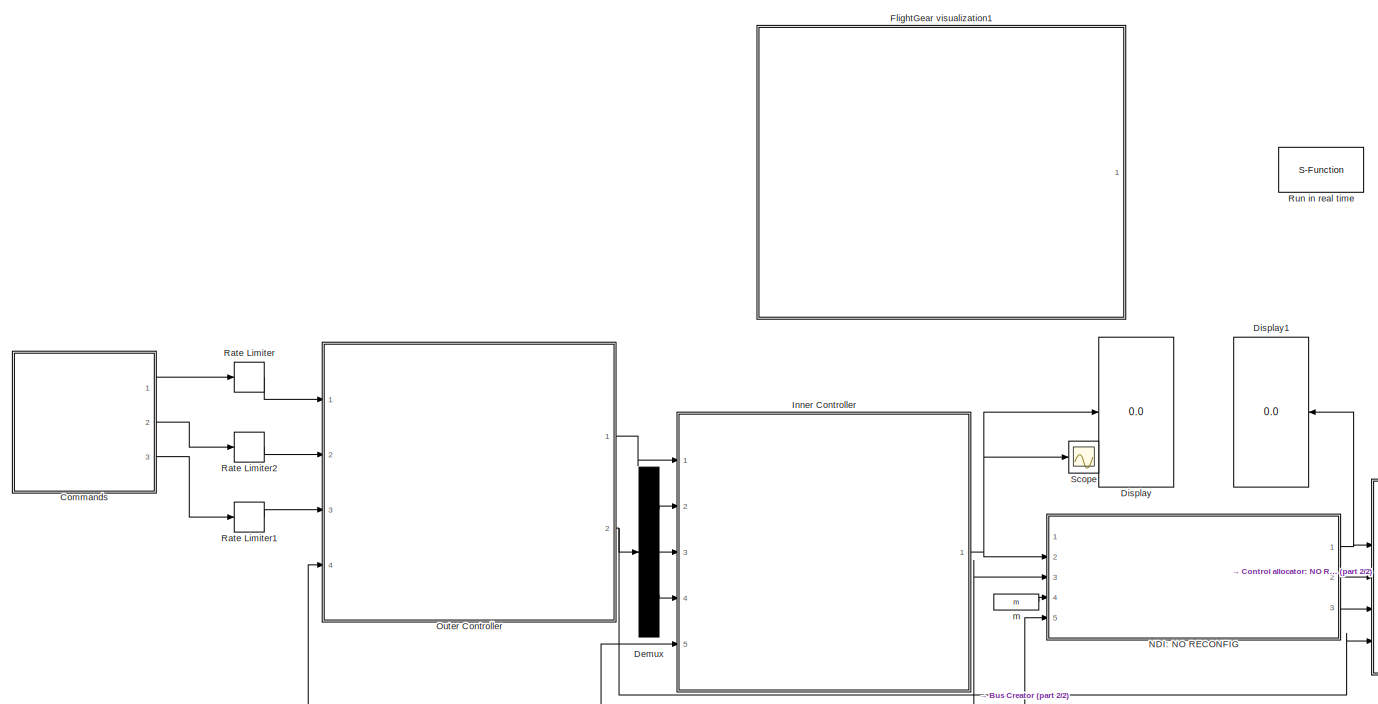
[diagram: root canvas - part 1/2, middle left region]
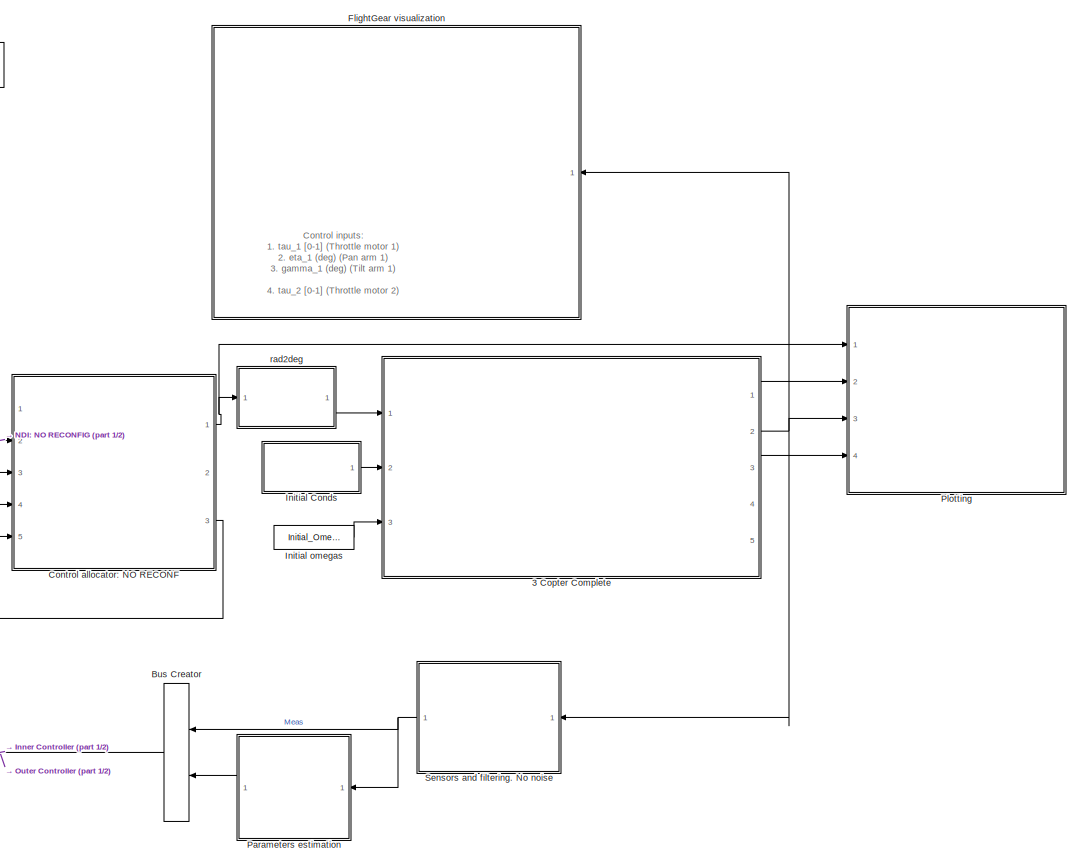
[diagram: root canvas - part 2/2, right side, full height]
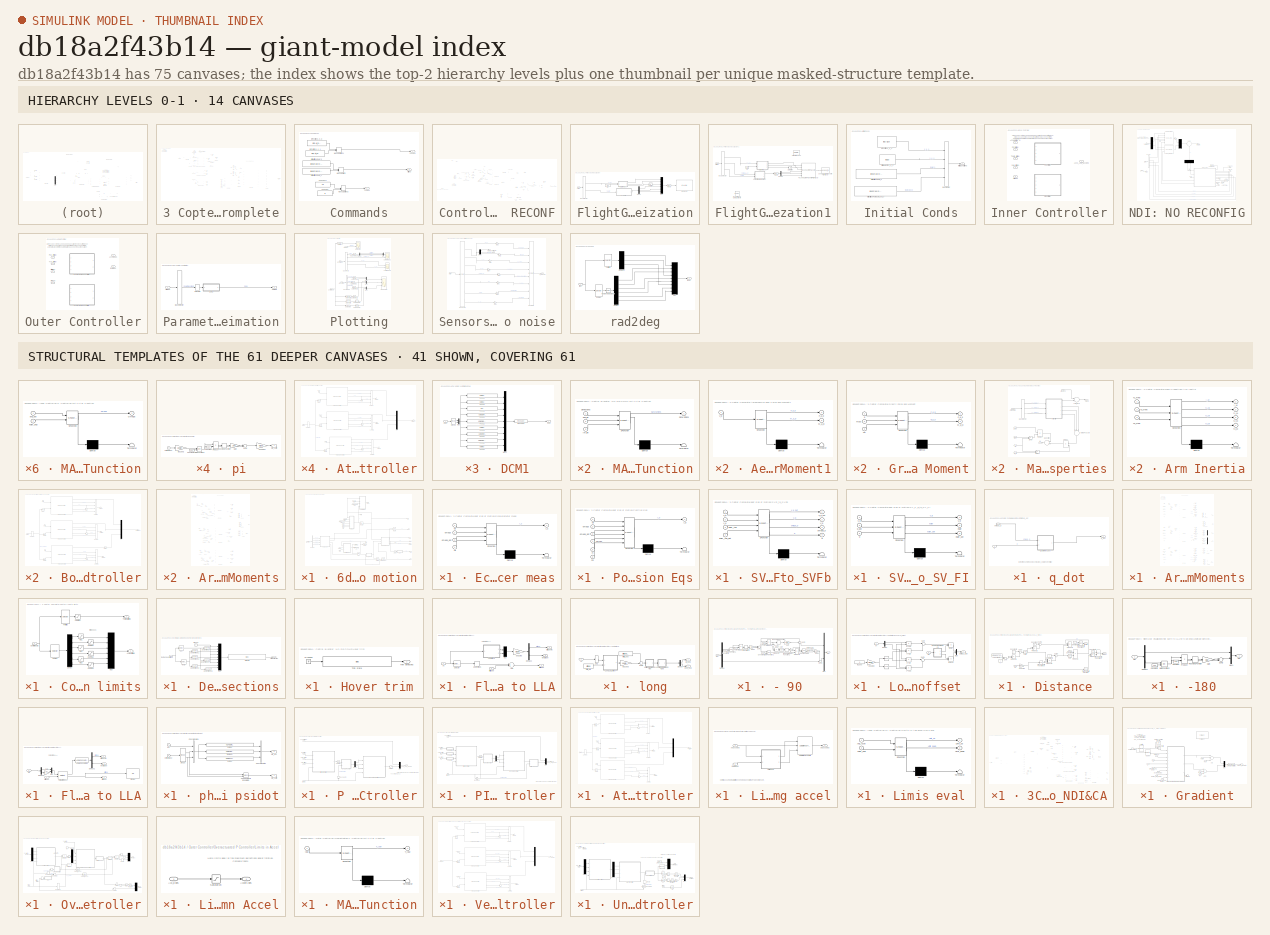
[diagram: thumbnail index - top-2 hierarchy levels (14 canvases) + 41 structural-template representatives of the remaining 61 canvases]
MODEL slx_db18a2f43b14
KIND model
BLOCK [SubSystem] 3 Copter Complete
  FunctionWithSeparateData = off
  MaskHideContents = off
  MinAlgLoopOccurrences = off
  Opaque = off
  Ports = [3, 5]
  PropExecContextOutsideSubsystem = off
  RTWSystemCode = Auto
  RequestExecContextInheritance = off
BLOCK [SubSystem] 3 Copter Complete/6dof Eqs of motion
  FunctionWithSeparateData = off
  MaskHideContents = off
  MinAlgLoopOccurrences = off
  Opaque = off
  Ports = [6, 11]
  PropExecContextOutsideSubsystem = off
  RTWSystemCode = Auto
  RequestExecContextInheritance = off
  TreatAsAtomicUnit = on
BLOCK [Outport] 3 Copter Complete/6dof Eqs of motion/Ab
  IconDisplay = Port number
  Port = 7
BLOCK [Outport] 3 Copter Complete/6dof Eqs of motion/Asensor
  IconDisplay = Port number
  Port = 11
BLOCK [BusSelector] 3 Copter Complete/6dof Eqs of motion/Bus Selector
  OutputSignals = X_e_0,V_e_0,Euler_0,Euler_dot_0
  Ports = [1, 4]
BLOCK [Inport] 3 Copter Complete/6dof Eqs of motion/CG
  IconDisplay = Port number
  Port = 5
BLOCK [Outport] 3 Copter Complete/6dof Eqs of motion/DCM
  IconDisplay = Port number
  Port = 8
BLOCK [SubSystem] 3 Copter Complete/6dof Eqs of motion/DCM1
  FunctionWithSeparateData = off
  MaskHideContents = off
  MinAlgLoopOccurrences = off
  Opaque = off
  Ports = [1, 1]
  PropExecContextOutsideSubsystem = off
  RTWSystemCode = Auto
  RequestExecContextInheritance = off
  TreatAsAtomicUnit = on
BLOCK [Outport] 3 Copter Complete/6dof Eqs of motion/DCM1/DCM
  IconDisplay = Port number
  PortDimensions = [3,3]
BLOCK [Inport] 3 Copter Complete/6dof Eqs of motion/DCM1/Euler
  IconDisplay = Port number
  PortDimensions = 3
BLOCK [Fcn] 3 Copter Complete/6dof Eqs of motion/DCM1/Fcn11
  Expr = u(5)*u(4)
BLOCK [Fcn] 3 Copter Complete/6dof Eqs of motion/DCM1/Fcn12
  Expr = u(5)*u(1)
BLOCK [Fcn] 3 Copter Complete/6dof Eqs of motion/DCM1/Fcn13
  Expr = -u(2)
BLOCK [Fcn] 3 Copter Complete/6dof Eqs of motion/DCM1/Fcn21
  Expr = u(3)*u(2)*u(4) - u(6)*u(1)
BLOCK [Fcn] 3 Copter Complete/6dof Eqs of motion/DCM1/Fcn22
  Expr = u(3)*u(2)*u(1) + u(6)*u(4)
BLOCK [Fcn] 3 Copter Complete/6dof Eqs of motion/DCM1/Fcn23
  Expr = u(3)*u(5)
BLOCK [Fcn] 3 Copter Complete/6dof Eqs of motion/DCM1/Fcn31
  Expr = u(6)*u(2)*u(4) + u(3)*u(1)
BLOCK [Fcn] 3 Copter Complete/6dof Eqs of motion/DCM1/Fcn32
  Expr = u(6)*u(2)*u(1) - u(3)*u(4)
BLOCK [Fcn] 3 Copter Complete/6dof Eqs of motion/DCM1/Fcn33
  Expr = u(6)*u(5)
BLOCK [Mux] 3 Copter Complete/6dof Eqs of motion/DCM1/Mux
  DisplayOption = bar
  Inputs = 2
  Ports = [2, 1]
BLOCK [Mux] 3 Copter Complete/6dof Eqs of motion/DCM1/Mux1
  DisplayOption = bar
  Inputs = 9
  Ports = [9, 1]
BLOCK [Reshape] 3 Copter Complete/6dof Eqs of motion/DCM1/Reshape
  OutputDimensionality = Customize
  OutputDimensions = [3,3]
  Ports = [1, 1]
BLOCK [Trigonometry] 3 Copter Complete/6dof Eqs of motion/DCM1/sincos
  Operator = sincos
  Ports = [1, 2]
BLOCK [SubSystem] 3 Copter Complete/6dof Eqs of motion/Eccelerometer meas
  ErrorFcn = Stateflow.Translate.translate
  FunctionWithSeparateData = off
  MaskHideContents = off
  MinAlgLoopOccurrences = off
  Opaque = off
  PermitHierarchicalResolution = ParametersOnly
  Ports = [4, 1]
  PropExecContextOutsideSubsystem = off
  RTWSystemCode = Auto
  RequestExecContextInheritance = off
  SFBlockType = MATLAB Function
  TreatAsAtomicUnit = on
BLOCK [Demux] 3 Copter Complete/6dof Eqs of motion/Eccelerometer meas/ Demux 
  Outputs = 1
  Ports = [1, 1]
BLOCK [S-Function] 3 Copter Complete/6dof Eqs of motion/Eccelerometer meas/ SFunction 
  EnableBusSupport = on
  FunctionName = sf_sfun
  Parameters = r_sens
  PortCounts = [4 2]
  Ports = [4, 2]
  Tag = Stateflow S-Function Tricopter_Controlled 8
BLOCK [Terminator] 3 Copter Complete/6dof Eqs of motion/Eccelerometer meas/ Terminator 
BLOCK [Outport] 3 Copter Complete/6dof Eqs of motion/Eccelerometer meas/A_s
  IconDisplay = Port number
BLOCK [Inport] 3 Copter Complete/6dof Eqs of motion/Eccelerometer meas/Ab
  IconDisplay = Port number
  Port = 4
BLOCK [Inport] 3 Copter Complete/6dof Eqs of motion/Eccelerometer meas/Vb
  IconDisplay = Port number
BLOCK [Inport] 3 Copter Complete/6dof Eqs of motion/Eccelerometer meas/omega
  IconDisplay = Port number
  Port = 2
BLOCK [Inport] 3 Copter Complete/6dof Eqs of motion/Eccelerometer meas/omega_dot
  IconDisplay = Port number
  Port = 3
BLOCK [Inport] 3 Copter Complete/6dof Eqs of motion/Forces
  IconDisplay = Port number
BLOCK [From] 3 Copter Complete/6dof Eqs of motion/From
  GotoTag = omega
BLOCK [From] 3 Copter Complete/6dof Eqs of motion/From1
  GotoTag = omega_dot
BLOCK [From] 3 Copter Complete/6dof Eqs of motion/From2
  GotoTag = omega
BLOCK [From] 3 Copter Complete/6dof Eqs of motion/From3
  GotoTag = omega_dot
BLOCK [Goto] 3 Copter Complete/6dof Eqs of motion/Goto
  GotoTag = omega
BLOCK [Goto] 3 Copter Complete/6dof Eqs of motion/Goto1
  GotoTag = omega_dot
BLOCK [Inport] 3 Copter Complete/6dof Eqs of motion/I_BAC
  IconDisplay = Port number
  Port = 4
BLOCK [Inport] 3 Copter Complete/6dof Eqs of motion/Initial Conditions
  IconDisplay = Port number
  Port = 6
BLOCK [Inport] 3 Copter Complete/6dof Eqs of motion/Moments
  IconDisplay = Port number
  Port = 2
BLOCK [Reference] 3 Copter Complete/6dof Eqs of motion/Normalize 4D vector  REF=XXCopter/Normalize 4D vector
  Ports = [1, 1]
  SourceBlock = XXCopter/Normalize 4D vector
  SourceType = SubSystem
BLOCK [SubSystem] 3 Copter Complete/6dof Eqs of motion/Position Eqs
  ErrorFcn = Stateflow.Translate.translate
  FunctionWithSeparateData = off
  MaskHideContents = off
  MinAlgLoopOccurrences = off
  Opaque = off
  PermitHierarchicalResolution = ParametersOnly
  Ports = [6, 1]
  PropExecContextOutsideSubsystem = off
  RTWSystemCode = Auto
  RequestExecContextInheritance = off
  SFBlockType = MATLAB Function
  TreatAsAtomicUnit = on
BLOCK [Demux] 3 Copter Complete/6dof Eqs of motion/Position Eqs/ Demux 
  Outputs = 1
  Ports = [1, 1]
BLOCK [S-Function] 3 Copter Complete/6dof Eqs of motion/Position Eqs/ SFunction 
  EnableBusSupport = on
  FunctionName = sf_sfun
  PortCounts = [6 2]
  Ports = [6, 2]
  Tag = Stateflow S-Function Tricopter_Controlled 1
BLOCK [Terminator] 3 Copter Complete/6dof Eqs of motion/Position Eqs/ Terminator 
BLOCK [Outport] 3 Copter Complete/6dof Eqs of motion/Position Eqs/A_b
  IconDisplay = Port number
BLOCK [Inport] 3 Copter Complete/6dof Eqs of motion/Position Eqs/CG
  IconDisplay = Port number
  Port = 6
BLOCK [Inport] 3 Copter Complete/6dof Eqs of motion/Position Eqs/Forces
  IconDisplay = Port number
  Port = 4
BLOCK [Inport] 3 Copter Complete/6dof Eqs of motion/Position Eqs/Vb
  IconDisplay = Port number
BLOCK [Inport] 3 Copter Complete/6dof Eqs of motion/Position Eqs/m
  IconDisplay = Port number
  Port = 5
BLOCK [Inport] 3 Copter Complete/6dof Eqs of motion/Position Eqs/omega
  IconDisplay = Port number
  Port = 2
BLOCK [Inport] 3 Copter Complete/6dof Eqs of motion/Position Eqs/omega_dot
  IconDisplay = Port number
  Port = 3
BLOCK [SubSystem] 3 Copter Complete/6dof Eqs of motion/Rotational eqs
  ErrorFcn = Stateflow.Translate.translate
  FunctionWithSeparateData = off
  MaskHideContents = off
  MinAlgLoopOccurrences = off
  Opaque = off
  PermitHierarchicalResolution = ParametersOnly
  Ports = [3, 1]
  PropExecContextOutsideSubsystem = off
  RTWSystemCode = Auto
  RequestExecContextInheritance = off
  SFBlockType = MATLAB Function
  TreatAsAtomicUnit = on
BLOCK [Demux] 3 Copter Complete/6dof Eqs of motion/Rotational eqs/ Demux 
  Outputs = 1
  Ports = [1, 1]
BLOCK [S-Function] 3 Copter Complete/6dof Eqs of motion/Rotational eqs/ SFunction 
  EnableBusSupport = on
  FunctionName = sf_sfun
  PortCounts = [3 2]
  Ports = [3, 2]
  Tag = Stateflow S-Function Tricopter_Controlled 2
BLOCK [Terminator] 3 Copter Complete/6dof Eqs of motion/Rotational eqs/ Terminator 
BLOCK [Inport] 3 Copter Complete/6dof Eqs of motion/Rotational eqs/I_BAC
  IconDisplay = Port number
  Port = 3
BLOCK [Inport] 3 Copter Complete/6dof Eqs of motion/Rotational eqs/Moments
  IconDisplay = Port number
  Port = 2
BLOCK [Inport] 3 Copter Complete/6dof Eqs of motion/Rotational eqs/omega_b
  IconDisplay = Port number
BLOCK [Outport] 3 Copter Complete/6dof Eqs of motion/Rotational eqs/omega_dot
  IconDisplay = Port number
BLOCK [SubSystem] 3 Copter Complete/6dof Eqs of motion/SVFI_to_SVFb
  ErrorFcn = Stateflow.Translate.translate
  FunctionWithSeparateData = off
  MaskHideContents = off
  MinAlgLoopOccurrences = off
  Opaque = off
  PermitHierarchicalResolution = ParametersOnly
  Ports = [4, 4]
  PropExecContextOutsideSubsystem = off
  RTWSystemCode = Auto
  RequestExecContextInheritance = off
  SFBlockType = MATLAB Function
  TreatAsAtomicUnit = on
BLOCK [Demux] 3 Copter Complete/6dof Eqs of motion/SVFI_to_SVFb/ Demux 
  Outputs = 1
  Ports = [1, 1]
BLOCK [S-Function] 3 Copter Complete/6dof Eqs of motion/SVFI_to_SVFb/ SFunction 
  EnableBusSupport = on
  FunctionName = sf_sfun
  PortCounts = [4 5]
  Ports = [4, 5]
  Tag = Stateflow S-Function Tricopter_Controlled 11
BLOCK [Terminator] 3 Copter Complete/6dof Eqs of motion/SVFI_to_SVFb/ Terminator 
BLOCK [Inport] 3 Copter Complete/6dof Eqs of motion/SVFI_to_SVFb/Euler_Ang
  IconDisplay = Port number
  Port = 3
BLOCK [Inport] 3 Copter Complete/6dof Eqs of motion/SVFI_to_SVFb/Euler_Ang_Dot
  IconDisplay = Port number
  Port = 4
BLOCK [Outport] 3 Copter Complete/6dof Eqs of motion/SVFI_to_SVFb/V_b
  IconDisplay = Port number
  Port = 2
BLOCK [Inport] 3 Copter Complete/6dof Eqs of motion/SVFI_to_SVFb/V_e
  IconDisplay = Port number
  Port = 2
BLOCK [Inport] 3 Copter Complete/6dof Eqs of motion/SVFI_to_SVFb/X_e
  IconDisplay = Port number
BLOCK [Outport] 3 Copter Complete/6dof Eqs of motion/SVFI_to_SVFb/X_e_out
  IconDisplay = Port number
BLOCK [Outport] 3 Copter Complete/6dof Eqs of motion/SVFI_to_SVFb/omega_b
  IconDisplay = Port number
  Port = 3
BLOCK [Outport] 3 Copter Complete/6dof Eqs of motion/SVFI_to_SVFb/q
  IconDisplay = Port number
  Port = 4
BLOCK [SubSystem] 3 Copter Complete/6dof Eqs of motion/SV_F_b_to_SV_FI
  ErrorFcn = Stateflow.Translate.translate
  FunctionWithSeparateData = off
  MaskHideContents = off
  MinAlgLoopOccurrences = off
  Opaque = off
  PermitHierarchicalResolution = ParametersOnly
  Ports = [3, 3]
  PropExecContextOutsideSubsystem = off
  RTWSystemCode = Auto
  RequestExecContextInheritance = off
  SFBlockType = MATLAB Function
  TreatAsAtomicUnit = on
BLOCK [Demux] 3 Copter Complete/6dof Eqs of motion/SV_F_b_to_SV_FI/ Demux 
  Outputs = 1
  Ports = [1, 1]
BLOCK [S-Function] 3 Copter Complete/6dof Eqs of motion/SV_F_b_to_SV_FI/ SFunction 
  EnableBusSupport = on
  FunctionName = sf_sfun
  PortCounts = [3 4]
  Ports = [3, 4]
  Tag = Stateflow S-Function Tricopter_Controlled 12
BLOCK [Terminator] 3 Copter Complete/6dof Eqs of motion/SV_F_b_to_SV_FI/ Terminator 
BLOCK [Inport] 3 Copter Complete/6dof Eqs of motion/SV_F_b_to_SV_FI/V_b
  IconDisplay = Port number
BLOCK [Outport] 3 Copter Complete/6dof Eqs of motion/SV_F_b_to_SV_FI/V_e
  IconDisplay = Port number
BLOCK [Outport] 3 Copter Complete/6dof Eqs of motion/SV_F_b_to_SV_FI/euler
  IconDisplay = Port number
  Port = 2
BLOCK [Outport] 3 Copter Complete/6dof Eqs of motion/SV_F_b_to_SV_FI/euler_dot
  IconDisplay = Port number
  Port = 3
BLOCK [Inport] 3 Copter Complete/6dof Eqs of motion/SV_F_b_to_SV_FI/q
  IconDisplay = Port number
  Port = 3
BLOCK [Inport] 3 Copter Complete/6dof Eqs of motion/SV_F_b_to_SV_FI/q_dot
  IconDisplay = Port number
  Port = 2
BLOCK [Selector] 3 Copter Complete/6dof Eqs of motion/Selector7
  Indices = [3 2 1]
  InputPortWidth = 3
  Ports = [1, 1]
BLOCK [Outport] 3 Copter Complete/6dof Eqs of motion/Vb
  IconDisplay = Port number
  Port = 3
BLOCK [Outport] 3 Copter Complete/6dof Eqs of motion/Ve
  IconDisplay = Port number
  Port = 2
BLOCK [Outport] 3 Copter Complete/6dof Eqs of motion/Xe
  IconDisplay = Port number
BLOCK [Outport] 3 Copter Complete/6dof Eqs of motion/euler
  IconDisplay = Port number
  Port = 9
BLOCK [Outport] 3 Copter Complete/6dof Eqs of motion/euler_dot
  IconDisplay = Port number
  Port = 10
BLOCK [Inport] 3 Copter Complete/6dof Eqs of motion/mass
  IconDisplay = Port number
  Port = 3
BLOCK [Outport] 3 Copter Complete/6dof Eqs of motion/p,q,r
  IconDisplay = Port number
  Port = 4
BLOCK [Integrator] 3 Copter Complete/6dof Eqs of motion/p,q,r 
  InitialCondition = [P_0,Q_0,R_0]
  InitialConditionSource = external
  Ports = [2, 1]
BLOCK [Outport] 3 Copter Complete/6dof Eqs of motion/pdot,qdot,rdot
  IconDisplay = Port number
  Port = 6
BLOCK [Outport] 3 Copter Complete/6dof Eqs of motion/q
  IconDisplay = Port number
  Port = 5
BLOCK [SubSystem] 3 Copter Complete/6dof Eqs of motion/q_dot
  FunctionWithSeparateData = off
  MaskHideContents = off
  MinAlgLoopOccurrences = off
  Opaque = off
  Ports = [2, 1]
  PropExecContextOutsideSubsystem = off
  RTWSystemCode = Auto
  RequestExecContextInheritance = off
  TreatAsAtomicUnit = on
BLOCK [SubSystem] 3 Copter Complete/6dof Eqs of motion/q_dot/Quaternion_dot
  ErrorFcn = Stateflow.Translate.translate
  FunctionWithSeparateData = off
  MaskHideContents = off
  MinAlgLoopOccurrences = off
  Opaque = off
  PermitHierarchicalResolution = ParametersOnly
  Ports = [2, 1]
  PropExecContextOutsideSubsystem = off
  RTWSystemCode = Auto
  RequestExecContextInheritance = off
  SFBlockType = MATLAB Function
  TreatAsAtomicUnit = on
  VariantObject = Variant
BLOCK [Demux] 3 Copter Complete/6dof Eqs of motion/q_dot/Quaternion_dot/ Demux 
  Outputs = 1
  Ports = [1, 1]
BLOCK [S-Function] 3 Copter Complete/6dof Eqs of motion/q_dot/Quaternion_dot/ SFunction 
  EnableBusSupport = on
  FunctionName = sf_sfun
  PortCounts = [2 2]
  Ports = [2, 2]
  Tag = Stateflow S-Function Tricopter_Controlled 3
BLOCK [Terminator] 3 Copter Complete/6dof Eqs of motion/q_dot/Quaternion_dot/ Terminator 
BLOCK [Inport] 3 Copter Complete/6dof Eqs of motion/q_dot/Quaternion_dot/omega_b
  IconDisplay = Port number
BLOCK [Inport] 3 Copter Complete/6dof Eqs of motion/q_dot/Quaternion_dot/q
  IconDisplay = Port number
  Port = 2
BLOCK [Outport] 3 Copter Complete/6dof Eqs of motion/q_dot/Quaternion_dot/q_dot
  IconDisplay = Port number
BLOCK [Inport] 3 Copter Complete/6dof Eqs of motion/q_dot/omega_b
  IconDisplay = Port number
BLOCK [Inport] 3 Copter Complete/6dof Eqs of motion/q_dot/q
  IconDisplay = Port number
  Port = 2
BLOCK [Outport] 3 Copter Complete/6dof Eqs of motion/q_dot/q_dot
  IconDisplay = Port number
BLOCK [Integrator] 3 Copter Complete/6dof Eqs of motion/quaternion
  InitialCondition = [P_0,Q_0,R_0]
  InitialConditionSource = external
  Ports = [2, 1]
BLOCK [Integrator] 3 Copter Complete/6dof Eqs of motion/ub,vb,wb
  InitialCondition = [U_0,V_0,W_0]
  InitialConditionSource = external
  Ports = [2, 1]
BLOCK [Integrator] 3 Copter Complete/6dof Eqs of motion/xe,ye,ze
  InitialCondition = [NORTH_0,EAST_0,-DOWN_0]
  InitialConditionSource = external
  Ports = [2, 1]
BLOCK [Sum] 3 Copter Complete/Add
  InputSameDT = off
  Inputs = +++
  OutDataTypeStr = Inherit: Inherit via internal rule
  Ports = [3, 1]
  SaturateOnIntegerOverflow = off
BLOCK [Sum] 3 Copter Complete/Add1
  InputSameDT = off
  Inputs = +++
  OutDataTypeStr = Inherit: Inherit via internal rule
  Ports = [3, 1]
  SaturateOnIntegerOverflow = off
BLOCK [SubSystem] 3 Copter Complete/Aerodynamics body Force and Moment1
  ErrorFcn = Stateflow.Translate.translate
  FunctionWithSeparateData = off
  MaskHideContents = off
  MinAlgLoopOccurrences = off
  Opaque = off
  PermitHierarchicalResolution = ParametersOnly
  Ports = [1, 2]
  PropExecContextOutsideSubsystem = off
  RTWSystemCode = Auto
  RequestExecContextInheritance = off
  SFBlockType = MATLAB Function
  TreatAsAtomicUnit = on
BLOCK [Demux] 3 Copter Complete/Aerodynamics body Force and Moment1/ Demux 
  Outputs = 1
  Ports = [1, 1]
BLOCK [S-Function] 3 Copter Complete/Aerodynamics body Force and Moment1/ SFunction 
  EnableBusSupport = on
  FunctionName = sf_sfun
  Parameters = A_x,A_y,A_z,C_x,C_y,C_z,rho
  PortCounts = [1 3]
  Ports = [1, 3]
  Tag = Stateflow S-Function Tricopter_Controlled 5
BLOCK [Terminator] 3 Copter Complete/Aerodynamics body Force and Moment1/ Terminator 
BLOCK [Outport] 3 Copter Complete/Aerodynamics body Force and Moment1/F_a_b
  IconDisplay = Port number
BLOCK [Outport] 3 Copter Complete/Aerodynamics body Force and Moment1/M_a_b
  IconDisplay = Port number
  Port = 2
BLOCK [Inport] 3 Copter Complete/Aerodynamics body Force and Moment1/V_b
  IconDisplay = Port number
BLOCK [Outport] 3 Copter Complete/Arms Angles (rad)
  IconDisplay = Port number
  Port = 3
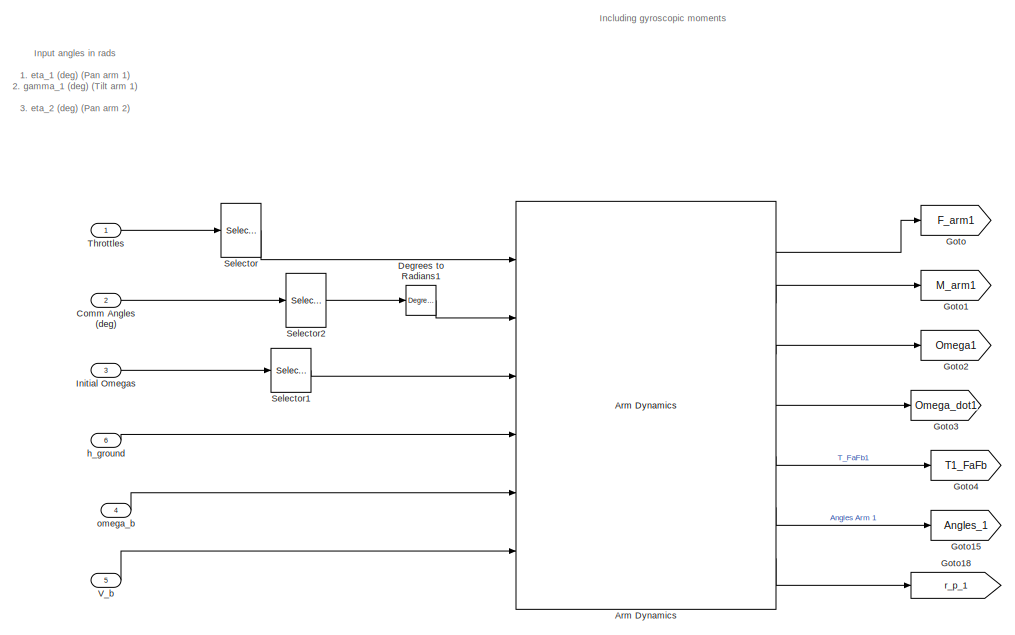
[diagram: 3 Copter Complete/Arms Dynamics: Forces and Moments - part 1/3, top center region]
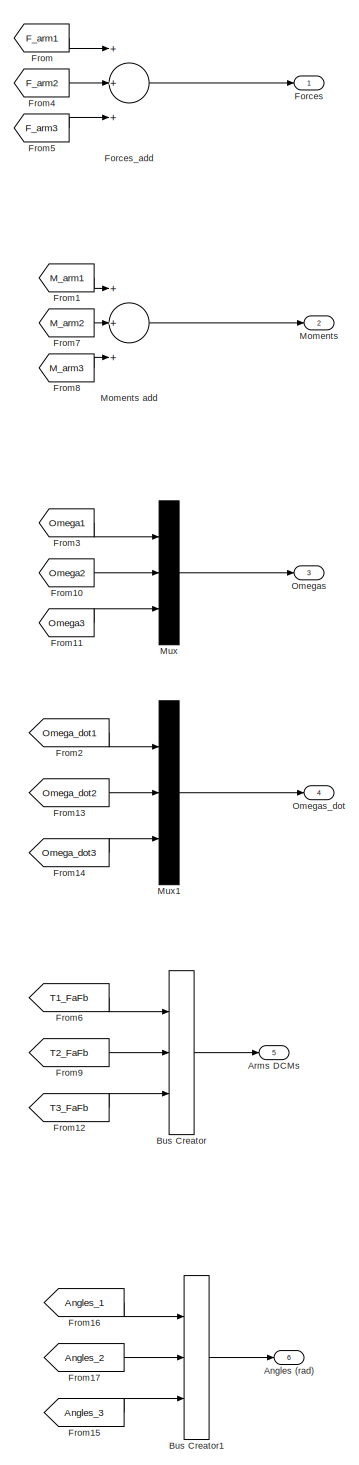
[diagram: 3 Copter Complete/Arms Dynamics: Forces and Moments - part 2/3, right side, full height]
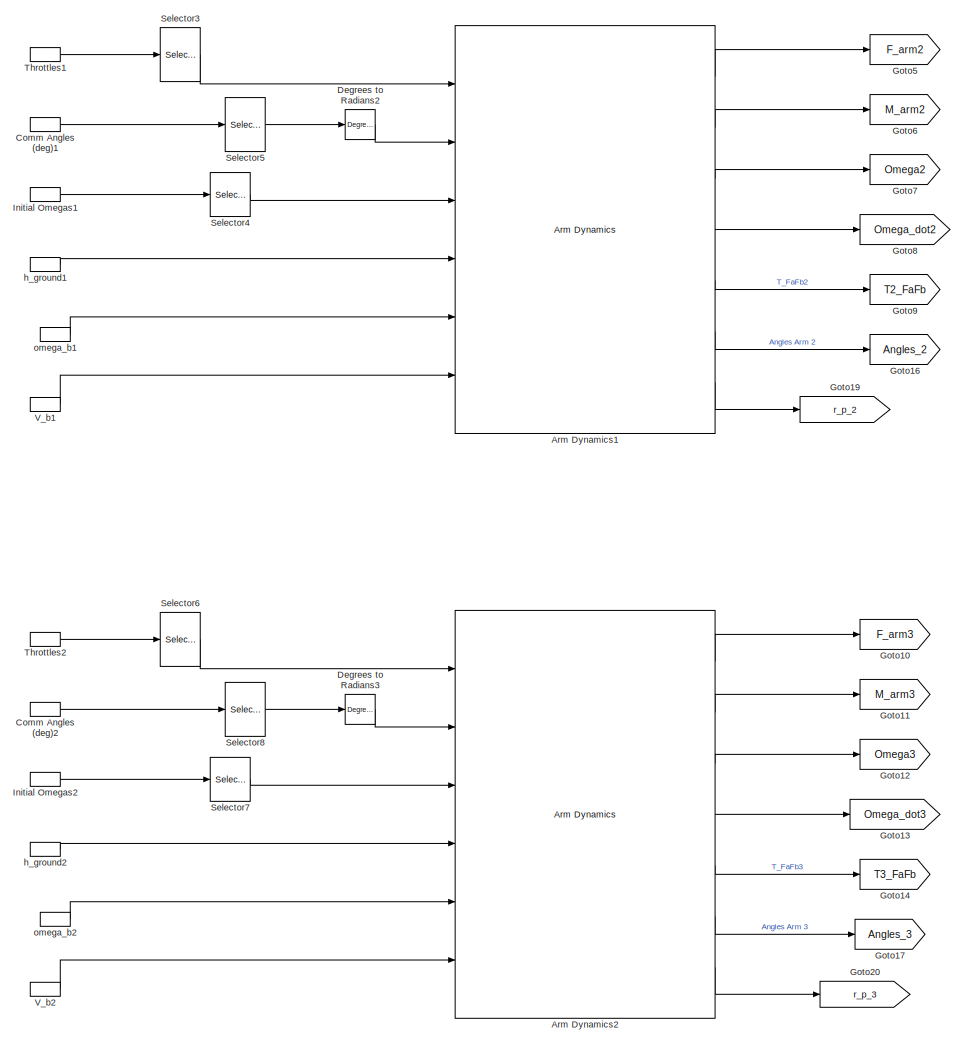
[diagram: 3 Copter Complete/Arms Dynamics: Forces and Moments - part 3/3, bottom center region]
BLOCK [SubSystem] 3 Copter Complete/Arms Dynamics: Forces and Moments
  FunctionWithSeparateData = off
  MaskHideContents = off
  MinAlgLoopOccurrences = off
  Opaque = off
  Ports = [6, 6]
  PropExecContextOutsideSubsystem = off
  RTWSystemCode = Auto
  RequestExecContextInheritance = off
BLOCK [Outport] 3 Copter Complete/Arms Dynamics: Forces and Moments/Angles (rad)
  IconDisplay = Port number
  Port = 6
BLOCK [Reference] 3 Copter Complete/Arms Dynamics: Forces and Moments/Arm Dynamics  REF=XXCopter/Arm Dynamics
  J_FA = J_FA
  J_T = J_T
  Omega_ini = Initial_Omegas(1)
  Ports = [6, 7]
  Rot_sign = Rotation_sign(1)
  SourceBlock = XXCopter/Arm Dynamics
  SourceType = Arm dynamics, kinematics, forces and moments
  Torq_ini = Initial_Torques(1)
  arm_axis = [l_arm;0;0]
  arm_hub_pos = l*[1;0;0]
  arm_num = 1
  c = 0
  eta_dir = [1;0;0]
  gamma_dir = [0;1;0]
  h = h
  init_eta = eta_1
  init_gamma = 0
  omega_n = 30
  tau = Tau_motors
  xi = 1.4
BLOCK [Reference] 3 Copter Complete/Arms Dynamics: Forces and Moments/Arm Dynamics1  REF=XXCopter/Arm Dynamics
  J_FA = J_FA
  J_T = J_T
  Omega_ini = Initial_Omegas(2)
  Ports = [6, 7]
  Rot_sign = Rotation_sign(2)
  SourceBlock = XXCopter/Arm Dynamics
  SourceType = Arm dynamics, kinematics, forces and moments
  Torq_ini = Initial_Torques(2)
  arm_axis = [0;l_arm;0]
  arm_hub_pos = l*[-1/2;sqrt(3)/2;0]
  arm_num = 2
  c = 0
  eta_dir = [0;1;0]
  gamma_dir = [1;0;0]
  h = h
  init_eta = eta_23
  init_gamma = 0
  omega_n = 30
  tau = Tau_motors
  xi = 1.4
BLOCK [Reference] 3 Copter Complete/Arms Dynamics: Forces and Moments/Arm Dynamics2  REF=XXCopter/Arm Dynamics
  J_FA = J_FA
  J_T = J_T
  Omega_ini = Initial_Omegas(3)
  Ports = [6, 7]
  Rot_sign = Rotation_sign(3)
  SourceBlock = XXCopter/Arm Dynamics
  SourceType = Arm dynamics, kinematics, forces and moments
  Torq_ini = Initial_Torques(3)
  arm_axis = [0;-l_arm;0]
  arm_hub_pos = l*[-1/2;-sqrt(3)/2;0]
  arm_num = 3
  c = 0
  eta_dir = [0;1;0]
  gamma_dir = [1;0;0]
  h = h
  init_eta = -eta_23
  init_gamma = 0
  omega_n = 30
  tau = Tau_motors
  xi = 1.4
BLOCK [Outport] 3 Copter Complete/Arms Dynamics: Forces and Moments/Arms DCMs
  IconDisplay = Port number
  Port = 5
BLOCK [BusCreator] 3 Copter Complete/Arms Dynamics: Forces and Moments/Bus Creator
  DisplayOption = bar
  Inputs = 3
  Ports = [3, 1]
BLOCK [BusCreator] 3 Copter Complete/Arms Dynamics: Forces and Moments/Bus Creator1
  DisplayOption = bar
  Inputs = 3
  Ports = [3, 1]
BLOCK [Inport] 3 Copter Complete/Arms Dynamics: Forces and Moments/Comm Angles (deg)
  IconDisplay = Port number
  Port = 2
BLOCK [InportShadow] 3 Copter Complete/Arms Dynamics: Forces and Moments/Comm Angles (deg)1
  IconDisplay = Port number
  Port = 2
BLOCK [InportShadow] 3 Copter Complete/Arms Dynamics: Forces and Moments/Comm Angles (deg)2
  IconDisplay = Port number
  Port = 2
BLOCK [Reference] 3 Copter Complete/Arms Dynamics: Forces and Moments/Degrees to Radians1  REF=simulink_extras/Transformations/Degrees to
Radians
  Ports = [1, 1]
  SourceBlock = simulink_extras/Transformations/Degrees to\nRadians
  SourceType = DegreesToRadians
BLOCK [Reference] 3 Copter Complete/Arms Dynamics: Forces and Moments/Degrees to Radians2  REF=simulink_extras/Transformations/Degrees to
Radians
  Ports = [1, 1]
  SourceBlock = simulink_extras/Transformations/Degrees to\nRadians
  SourceType = DegreesToRadians
BLOCK [Reference] 3 Copter Complete/Arms Dynamics: Forces and Moments/Degrees to Radians3  REF=simulink_extras/Transformations/Degrees to
Radians
  Ports = [1, 1]
  SourceBlock = simulink_extras/Transformations/Degrees to\nRadians
  SourceType = DegreesToRadians
BLOCK [Outport] 3 Copter Complete/Arms Dynamics: Forces and Moments/Forces
  IconDisplay = Port number
BLOCK [Sum] 3 Copter Complete/Arms Dynamics: Forces and Moments/Forces_add
  InputSameDT = off
  Inputs = +++
  OutDataTypeStr = Inherit: Inherit via internal rule
  Ports = [3, 1]
  SaturateOnIntegerOverflow = off
BLOCK [From] 3 Copter Complete/Arms Dynamics: Forces and Moments/From
  GotoTag = F_arm1
BLOCK [From] 3 Copter Complete/Arms Dynamics: Forces and Moments/From1
  GotoTag = M_arm1
BLOCK [From] 3 Copter Complete/Arms Dynamics: Forces and Moments/From10
  GotoTag = Omega2
BLOCK [From] 3 Copter Complete/Arms Dynamics: Forces and Moments/From11
  GotoTag = Omega3
BLOCK [From] 3 Copter Complete/Arms Dynamics: Forces and Moments/From12
  GotoTag = T3_FaFb
BLOCK [From] 3 Copter Complete/Arms Dynamics: Forces and Moments/From13
  GotoTag = Omega_dot2
BLOCK [From] 3 Copter Complete/Arms Dynamics: Forces and Moments/From14
  GotoTag = Omega_dot3
BLOCK [From] 3 Copter Complete/Arms Dynamics: Forces and Moments/From15
  GotoTag = Angles_3
BLOCK [From] 3 Copter Complete/Arms Dynamics: Forces and Moments/From16
  GotoTag = Angles_1
BLOCK [From] 3 Copter Complete/Arms Dynamics: Forces and Moments/From17
  GotoTag = Angles_2
BLOCK [From] 3 Copter Complete/Arms Dynamics: Forces and Moments/From2
  GotoTag = Omega_dot1
BLOCK [From] 3 Copter Complete/Arms Dynamics: Forces and Moments/From3
  GotoTag = Omega1
BLOCK [From] 3 Copter Complete/Arms Dynamics: Forces and Moments/From4
  GotoTag = F_arm2
BLOCK [From] 3 Copter Complete/Arms Dynamics: Forces and Moments/From5
  GotoTag = F_arm3
BLOCK [From] 3 Copter Complete/Arms Dynamics: Forces and Moments/From6
  GotoTag = T1_FaFb
BLOCK [From] 3 Copter Complete/Arms Dynamics: Forces and Moments/From7
  GotoTag = M_arm2
BLOCK [From] 3 Copter Complete/Arms Dynamics: Forces and Moments/From8
  GotoTag = M_arm3
BLOCK [From] 3 Copter Complete/Arms Dynamics: Forces and Moments/From9
  GotoTag = T2_FaFb
BLOCK [Goto] 3 Copter Complete/Arms Dynamics: Forces and Moments/Goto
  GotoTag = F_arm1
BLOCK [Goto] 3 Copter Complete/Arms Dynamics: Forces and Moments/Goto1
  GotoTag = M_arm1
BLOCK [Goto] 3 Copter Complete/Arms Dynamics: Forces and Moments/Goto10
  GotoTag = F_arm3
BLOCK [Goto] 3 Copter Complete/Arms Dynamics: Forces and Moments/Goto11
  GotoTag = M_arm3
BLOCK [Goto] 3 Copter Complete/Arms Dynamics: Forces and Moments/Goto12
  GotoTag = Omega3
BLOCK [Goto] 3 Copter Complete/Arms Dynamics: Forces and Moments/Goto13
  GotoTag = Omega_dot3
BLOCK [Goto] 3 Copter Complete/Arms Dynamics: Forces and Moments/Goto14
  GotoTag = T3_FaFb
BLOCK [Goto] 3 Copter Complete/Arms Dynamics: Forces and Moments/Goto15
  GotoTag = Angles_1
BLOCK [Goto] 3 Copter Complete/Arms Dynamics: Forces and Moments/Goto16
  GotoTag = Angles_2
BLOCK [Goto] 3 Copter Complete/Arms Dynamics: Forces and Moments/Goto17
  GotoTag = Angles_3
BLOCK [Goto] 3 Copter Complete/Arms Dynamics: Forces and Moments/Goto18
  GotoTag = r_p_1
  TagVisibility = global
BLOCK [Goto] 3 Copter Complete/Arms Dynamics: Forces and Moments/Goto19
  GotoTag = r_p_2
  TagVisibility = global
BLOCK [Goto] 3 Copter Complete/Arms Dynamics: Forces and Moments/Goto2
  GotoTag = Omega1
BLOCK [Goto] 3 Copter Complete/Arms Dynamics: Forces and Moments/Goto20
  GotoTag = r_p_3
  TagVisibility = global
BLOCK [Goto] 3 Copter Complete/Arms Dynamics: Forces and Moments/Goto3
  GotoTag = Omega_dot1
BLOCK [Goto] 3 Copter Complete/Arms Dynamics: Forces and Moments/Goto4
  GotoTag = T1_FaFb
BLOCK [Goto] 3 Copter Complete/Arms Dynamics: Forces and Moments/Goto5
  GotoTag = F_arm2
BLOCK [Goto] 3 Copter Complete/Arms Dynamics: Forces and Moments/Goto6
  GotoTag = M_arm2
BLOCK [Goto] 3 Copter Complete/Arms Dynamics: Forces and Moments/Goto7
  GotoTag = Omega2
BLOCK [Goto] 3 Copter Complete/Arms Dynamics: Forces and Moments/Goto8
  GotoTag = Omega_dot2
BLOCK [Goto] 3 Copter Complete/Arms Dynamics: Forces and Moments/Goto9
  GotoTag = T2_FaFb
BLOCK [Inport] 3 Copter Complete/Arms Dynamics: Forces and Moments/Initial Omegas
  IconDisplay = Port number
  Port = 3
BLOCK [InportShadow] 3 Copter Complete/Arms Dynamics: Forces and Moments/Initial Omegas1
  IconDisplay = Port number
  Port = 3
BLOCK [InportShadow] 3 Copter Complete/Arms Dynamics: Forces and Moments/Initial Omegas2
  IconDisplay = Port number
  Port = 3
BLOCK [Outport] 3 Copter Complete/Arms Dynamics: Forces and Moments/Moments
  IconDisplay = Port number
  Port = 2
BLOCK [Sum] 3 Copter Complete/Arms Dynamics: Forces and Moments/Moments add
  InputSameDT = off
  Inputs = +++
  OutDataTypeStr = Inherit: Inherit via internal rule
  Ports = [3, 1]
  SaturateOnIntegerOverflow = off
BLOCK [Mux] 3 Copter Complete/Arms Dynamics: Forces and Moments/Mux
  DisplayOption = bar
  Inputs = 3
  Ports = [3, 1]
BLOCK [Mux] 3 Copter Complete/Arms Dynamics: Forces and Moments/Mux1
  DisplayOption = bar
  Inputs = 3
  Ports = [3, 1]
BLOCK [Outport] 3 Copter Complete/Arms Dynamics: Forces and Moments/Omegas
  IconDisplay = Port number
  Port = 3
BLOCK [Outport] 3 Copter Complete/Arms Dynamics: Forces and Moments/Omegas_dot
  IconDisplay = Port number
  Port = 4
BLOCK [Selector] 3 Copter Complete/Arms Dynamics: Forces and Moments/Selector
  Indices = [1]
  InputPortWidth = 3
  Ports = [1, 1]
BLOCK [Selector] 3 Copter Complete/Arms Dynamics: Forces and Moments/Selector1
  Indices = [1]
  InputPortWidth = 3
  Ports = [1, 1]
BLOCK [Selector] 3 Copter Complete/Arms Dynamics: Forces and Moments/Selector2
  Indices = [1,2]
  InputPortWidth = 6
  Ports = [1, 1]
BLOCK [Selector] 3 Copter Complete/Arms Dynamics: Forces and Moments/Selector3
  Indices = 2
  InputPortWidth = 3
  Ports = [1, 1]
BLOCK [Selector] 3 Copter Complete/Arms Dynamics: Forces and Moments/Selector4
  Indices = 2
  InputPortWidth = 3
  Ports = [1, 1]
BLOCK [Selector] 3 Copter Complete/Arms Dynamics: Forces and Moments/Selector5
  Indices = [3,4]
  InputPortWidth = 6
  Ports = [1, 1]
BLOCK [Selector] 3 Copter Complete/Arms Dynamics: Forces and Moments/Selector6
  Indices = 3
  InputPortWidth = 3
  Ports = [1, 1]
BLOCK [Selector] 3 Copter Complete/Arms Dynamics: Forces and Moments/Selector7
  Indices = 3
  InputPortWidth = 3
  Ports = [1, 1]
BLOCK [Selector] 3 Copter Complete/Arms Dynamics: Forces and Moments/Selector8
  Indices = [5,6]
  InputPortWidth = 6
  Ports = [1, 1]
BLOCK [Inport] 3 Copter Complete/Arms Dynamics: Forces and Moments/Throttles
  IconDisplay = Port number
BLOCK [InportShadow] 3 Copter Complete/Arms Dynamics: Forces and Moments/Throttles1
  IconDisplay = Port number
BLOCK [InportShadow] 3 Copter Complete/Arms Dynamics: Forces and Moments/Throttles2
  IconDisplay = Port number
BLOCK [Inport] 3 Copter Complete/Arms Dynamics: Forces and Moments/V_b
  IconDisplay = Port number
  Port = 5
BLOCK [InportShadow] 3 Copter Complete/Arms Dynamics: Forces and Moments/V_b1
  IconDisplay = Port number
  Port = 5
BLOCK [InportShadow] 3 Copter Complete/Arms Dynamics: Forces and Moments/V_b2
  IconDisplay = Port number
  Port = 5
BLOCK [Inport] 3 Copter Complete/Arms Dynamics: Forces and Moments/h_ground
  IconDisplay = Port number
  Port = 6
BLOCK [InportShadow] 3 Copter Complete/Arms Dynamics: Forces and Moments/h_ground1
  IconDisplay = Port number
  Port = 6
BLOCK [InportShadow] 3 Copter Complete/Arms Dynamics: Forces and Moments/h_ground2
  IconDisplay = Port number
  Port = 6
BLOCK [Inport] 3 Copter Complete/Arms Dynamics: Forces and Moments/omega_b
  IconDisplay = Port number
  Port = 4
BLOCK [InportShadow] 3 Copter Complete/Arms Dynamics: Forces and Moments/omega_b1
  IconDisplay = Port number
  Port = 4
BLOCK [InportShadow] 3 Copter Complete/Arms Dynamics: Forces and Moments/omega_b2
  IconDisplay = Port number
  Port = 4
BLOCK [BusCreator] 3 Copter Complete/Bus Creator
  DisplayOption = bar
  Inputs = 11
  Ports = [11, 1]
BLOCK [BusSelector] 3 Copter Complete/Bus Selector
  OutputSignals = q
  Ports = [1, 1]
BLOCK [BusSelector] 3 Copter Complete/Bus Selector1
  OutputSignals = V_b
  Ports = [1, 1]
BLOCK [BusSelector] 3 Copter Complete/Bus Selector2
  OutputSignals = omega_b,V_b,X_e
  Ports = [1, 3]
BLOCK [Constant] 3 Copter Complete/CG
  Value = CG_0
BLOCK [SubSystem] 3 Copter Complete/Contorl Inputs limits
  FunctionWithSeparateData = off
  MaskHideContents = off
  MinAlgLoopOccurrences = off
  Opaque = off
  Ports = [1, 2]
  PropExecContextOutsideSubsystem = off
  RTWSystemCode = Auto
  RequestExecContextInheritance = off
  TreatAsAtomicUnit = on
BLOCK [Outport] 3 Copter Complete/Contorl Inputs limits/Angles limited
  IconDisplay = Port number
  Port = 2
BLOCK [Inport] 3 Copter Complete/Contorl Inputs limits/Control inputs
  IconDisplay = Port number
BLOCK [Demux] 3 Copter Complete/Contorl Inputs limits/Demux
  DisplayOption = bar
  Outputs = 6
  Ports = [1, 6]
BLOCK [Mux] 3 Copter Complete/Contorl Inputs limits/Mux
  DisplayOption = bar
  Inputs = 6
  Ports = [6, 1]
BLOCK [Saturate] 3 Copter Complete/Contorl Inputs limits/Saturation
  InputPortMap = u0
  LowerLimit = 0
  Ports = [1, 1]
  UpperLimit = 1
BLOCK [Outport] 3 Copter Complete/Contorl Inputs limits/Throtles limited
  IconDisplay = Port number
BLOCK [Selector] 3 Copter Complete/Contorl Inputs limits/Throttles
  Indices = [1,4,7]
  InputPortWidth = 9
  Ports = [1, 1]
BLOCK [Selector] 3 Copter Complete/Contorl Inputs limits/angles 
  Indices = [2,3,5,6,8,9]
  InputPortWidth = 9
  Ports = [1, 1]
BLOCK [Saturate] 3 Copter Complete/Contorl Inputs limits/eta 1
  InputPortMap = u0
  LowerLimit = -180
  Ports = [1, 1]
  UpperLimit = 180
BLOCK [Saturate] 3 Copter Complete/Contorl Inputs limits/eta 2
  InputPortMap = u0
  LowerLimit = -180
  Ports = [1, 1]
  UpperLimit = 180
BLOCK [Saturate] 3 Copter Complete/Contorl Inputs limits/eta 3
  InputPortMap = u0
  LowerLimit = -180
  Ports = [1, 1]
  UpperLimit = 180
BLOCK [Saturate] 3 Copter Complete/Contorl Inputs limits/gamma 2
  InputPortMap = u0
  LowerLimit = -30
  Ports = [1, 1]
  UpperLimit = 90
BLOCK [Saturate] 3 Copter Complete/Contorl Inputs limits/gamma1
  InputPortMap = u0
  LowerLimit = -90
  Ports = [1, 1]
  UpperLimit = 30
BLOCK [Saturate] 3 Copter Complete/Contorl Inputs limits/gamma3
  InputPortMap = u0
  LowerLimit = -90
  Ports = [1, 1]
  UpperLimit = 30
BLOCK [Inport] 3 Copter Complete/Control Inputs
  IconDisplay = Port number
BLOCK [Constant] 3 Copter Complete/Current batrery level (V)
  Value = 14.8
BLOCK [Product] 3 Copter Complete/Equivalent ESC signals
  InputSameDT = off
  Inputs = /*
  OutDataTypeStr = Inherit: Inherit via internal rule
  Ports = [2, 1]
  RndMeth = Floor
  SaturateOnIntegerOverflow = off
BLOCK [Product] 3 Copter Complete/Equivalent Throttle
  InputSameDT = off
  Inputs = **
  OutDataTypeStr = Inherit: Inherit via internal rule
  Ports = [2, 1]
  RndMeth = Floor
  SaturateOnIntegerOverflow = off
BLOCK [Outport] 3 Copter Complete/EquivalentESC throtle
  IconDisplay = Port number
  Port = 4
BLOCK [From] 3 Copter Complete/From2
  GotoTag = F_arm
BLOCK [From] 3 Copter Complete/From3
  GotoTag = F_air
BLOCK [From] 3 Copter Complete/From4
  GotoTag = F_g
BLOCK [From] 3 Copter Complete/From5
  GotoTag = M_arm
BLOCK [From] 3 Copter Complete/From6
  GotoTag = M_air
BLOCK [From] 3 Copter Complete/From7
  GotoTag = M_g
BLOCK [Gain] 3 Copter Complete/Gain
  Gain = -1
  OutDataTypeStr = Inherit: Inherit via internal rule
  ParamDataTypeStr = Inherit: Inherit via internal rule
  SaturateOnIntegerOverflow = off
BLOCK [Outport] 3 Copter Complete/General State Vector
  IconDisplay = Port number
  Port = 2
BLOCK [Goto] 3 Copter Complete/Goto
  GotoTag = Omegas
BLOCK [Goto] 3 Copter Complete/Goto1
  GotoTag = Omegas_dot
BLOCK [Goto] 3 Copter Complete/Goto2
  GotoTag = F_arm
BLOCK [Goto] 3 Copter Complete/Goto3
  GotoTag = M_arm
BLOCK [Goto] 3 Copter Complete/Goto4
  GotoTag = F_air
BLOCK [Goto] 3 Copter Complete/Goto5
  GotoTag = M_air
BLOCK [Goto] 3 Copter Complete/Goto6
  GotoTag = F_g
BLOCK [Goto] 3 Copter Complete/Goto7
  GotoTag = M_g
BLOCK [SubSystem] 3 Copter Complete/Gravity Force and Moment
  ErrorFcn = Stateflow.Translate.translate
  FunctionWithSeparateData = off
  MaskHideContents = off
  MinAlgLoopOccurrences = off
  Opaque = off
  PermitHierarchicalResolution = ParametersOnly
  Ports = [3, 2]
  PropExecContextOutsideSubsystem = off
  RTWSystemCode = Auto
  RequestExecContextInheritance = off
  SFBlockType = MATLAB Function
  TreatAsAtomicUnit = on
BLOCK [Demux] 3 Copter Complete/Gravity Force and Moment/ Demux 
  Outputs = 1
  Ports = [1, 1]
BLOCK [S-Function] 3 Copter Complete/Gravity Force and Moment/ SFunction 
  EnableBusSupport = on
  FunctionName = sf_sfun
  Parameters = g
  PortCounts = [3 3]
  Ports = [3, 3]
  Tag = Stateflow S-Function Tricopter_Controlled 4
BLOCK [Terminator] 3 Copter Complete/Gravity Force and Moment/ Terminator 
BLOCK [Inport] 3 Copter Complete/Gravity Force and Moment/CG
  IconDisplay = Port number
  Port = 3
BLOCK [Outport] 3 Copter Complete/Gravity Force and Moment/F_g_b
  IconDisplay = Port number
BLOCK [Outport] 3 Copter Complete/Gravity Force and Moment/M_g_b
  IconDisplay = Port number
  Port = 2
BLOCK [Inport] 3 Copter Complete/Gravity Force and Moment/mass
  IconDisplay = Port number
  Port = 2
BLOCK [Inport] 3 Copter Complete/Gravity Force and Moment/q
  IconDisplay = Port number
BLOCK [Constant] 3 Copter Complete/I_BAC_0
  Value = I_BAC_0
BLOCK [Inport] 3 Copter Complete/Initial Conditions
  IconDisplay = Port number
  Port = 2
BLOCK [Inport] 3 Copter Complete/Initial Omegas
  IconDisplay = Port number
  Port = 3
BLOCK [Constant] 3 Copter Complete/Mass
  Value = m
BLOCK [SubSystem] 3 Copter Complete/Mass Properties
  FunctionWithSeparateData = off
  MaskHideContents = off
  MinAlgLoopOccurrences = off
  Opaque = off
  Ports = [6, 2]
  PropExecContextOutsideSubsystem = off
  RTWSystemCode = Auto
  RequestExecContextInheritance = off
  TreatAsAtomicUnit = on
BLOCK [SubSystem] 3 Copter Complete/Mass Properties/Arm Inertia
  ErrorFcn = Stateflow.Translate.translate
  FunctionWithSeparateData = off
  MaskHideContents = off
  MinAlgLoopOccurrences = off
  Opaque = off
  PermitHierarchicalResolution = ParametersOnly
  Ports = [3, 4]
  PropExecContextOutsideSubsystem = off
  RTWSystemCode = Auto
  RequestExecContextInheritance = off
  SFBlockType = MATLAB Function
  TreatAsAtomicUnit = on
BLOCK [Demux] 3 Copter Complete/Mass Properties/Arm Inertia/ Demux 
  Outputs = 1
  Ports = [1, 1]
BLOCK [S-Function] 3 Copter Complete/Mass Properties/Arm Inertia/ SFunction 
  EnableBusSupport = on
  FunctionName = sf_sfun
  Parameters = h_M,l,m_M
  PortCounts = [3 5]
  Ports = [3, 5]
  Tag = Stateflow S-Function Tricopter_Controlled 13
BLOCK [Terminator] 3 Copter Complete/Mass Properties/Arm Inertia/ Terminator 
BLOCK [Outport] 3 Copter Complete/Mass Properties/Arm Inertia/I_M
  IconDisplay = Port number
BLOCK [Inport] 3 Copter Complete/Mass Properties/Arm Inertia/T1_FAFb
  IconDisplay = Port number
BLOCK [Inport] 3 Copter Complete/Mass Properties/Arm Inertia/T2_FAFb
  IconDisplay = Port number
  Port = 2
BLOCK [Inport] 3 Copter Complete/Mass Properties/Arm Inertia/T3_FAFb
  IconDisplay = Port number
  Port = 3
BLOCK [Outport] 3 Copter Complete/Mass Properties/Arm Inertia/r1_M
  IconDisplay = Port number
  Port = 2
BLOCK [Outport] 3 Copter Complete/Mass Properties/Arm Inertia/r2_M
  IconDisplay = Port number
  Port = 3
BLOCK [Outport] 3 Copter Complete/Mass Properties/Arm Inertia/r3_M
  IconDisplay = Port number
  Port = 4
BLOCK [Inport] 3 Copter Complete/Mass Properties/Arms DCMs
  IconDisplay = Port number
BLOCK [BusSelector] 3 Copter Complete/Mass Properties/Bus Selector
  OutputSignals = T_FaFb1,T_FaFb2,T_FaFb3
  Ports = [1, 3]
BLOCK [Outport] 3 Copter Complete/Mass Properties/CG
  IconDisplay = Port number
  Port = 2
BLOCK [Sum] 3 Copter Complete/Mass Properties/CG position
  InputSameDT = off
  OutDataTypeStr = Inherit: Inherit via internal rule
  Ports = [2, 1]
  SaturateOnIntegerOverflow = off
BLOCK [Inport] 3 Copter Complete/Mass Properties/CG_0
  IconDisplay = Port number
  Port = 2
BLOCK [Product] 3 Copter Complete/Mass Properties/Divide
  InputSameDT = off
  Inputs = */
  OutDataTypeStr = Inherit: Inherit via internal rule
  Ports = [2, 1]
  RndMeth = Floor
  SaturateOnIntegerOverflow = off
BLOCK [Product] 3 Copter Complete/Mass Properties/Divide1
  InputSameDT = off
  Inputs = **
  OutDataTypeStr = Inherit: Inherit via internal rule
  Ports = [2, 1]
  RndMeth = Floor
  SaturateOnIntegerOverflow = off
BLOCK [Product] 3 Copter Complete/Mass Properties/Divide2
  InputSameDT = off
  Inputs = /*
  OutDataTypeStr = Inherit: Inherit via internal rule
  Ports = [2, 1]
  RndMeth = Floor
  SaturateOnIntegerOverflow = off
BLOCK [Product] 3 Copter Complete/Mass Properties/Divide3
  InputSameDT = off
  Inputs = **
  OutDataTypeStr = Inherit: Inherit via internal rule
  Ports = [2, 1]
  RndMeth = Floor
  SaturateOnIntegerOverflow = off
BLOCK [Outport] 3 Copter Complete/Mass Properties/I_BAC
  IconDisplay = Port number
BLOCK [Inport] 3 Copter Complete/Mass Properties/I_BAC_0
  IconDisplay = Port number
  Port = 6
BLOCK [Sum] 3 Copter Complete/Mass Properties/Motors Pos sum
  InputSameDT = off
  Inputs = +++
  OutDataTypeStr = Inherit: Inherit via internal rule
  Ports = [3, 1]
  SaturateOnIntegerOverflow = off
BLOCK [Sum] 3 Copter Complete/Mass Properties/Total I_BAC
  InputSameDT = off
  OutDataTypeStr = Inherit: Inherit via internal rule
  Ports = [2, 1]
  SaturateOnIntegerOverflow = off
BLOCK [Inport] 3 Copter Complete/Mass Properties/m
  IconDisplay = Port number
  Port = 4
BLOCK [Inport] 3 Copter Complete/Mass Properties/m_0
  IconDisplay = Port number
  Port = 3
BLOCK [Inport] 3 Copter Complete/Mass Properties/m_M
  IconDisplay = Port number
  Port = 5
BLOCK [Constant] 3 Copter Complete/Mass1
  Value = m
BLOCK [Memory] 3 Copter Complete/Memory
  X0 = [0,0,0]
BLOCK [Memory] 3 Copter Complete/Memory1
  X0 = [0,0,0]
BLOCK [Memory] 3 Copter Complete/Memory2
  X0 = CG_0
BLOCK [Memory] 3 Copter Complete/Memory3
  X0 = I_BAC_0
BLOCK [Constant] 3 Copter Complete/Motor Mass
  Value = m_M
BLOCK [Outport] 3 Copter Complete/Omegas (rad//s)
  IconDisplay = Port number
BLOCK [Outport] 3 Copter Complete/Omegas dot
  IconDisplay = Port number
  Port = 5
BLOCK [Constant] 3 Copter Complete/Reference batrery level (V)
  Value = 16
BLOCK [Selector] 3 Copter Complete/Selector
  Indices = 3
  InputPortWidth = 3
  Ports = [1, 1]
BLOCK [Constant] 3 Copter Complete/m_0
  Value = m_0
BLOCK [Constant] 3 Copter Complete/mass
  Value = m
BLOCK [BusCreator] Bus Creator
  DisplayOption = bar
  Inputs = 2
  Ports = [2, 1]
BLOCK [SubSystem] Commands
  FunctionWithSeparateData = off
  MaskHideContents = off
  MinAlgLoopOccurrences = off
  Opaque = off
  Ports = [0, 3]
  PropExecContextOutsideSubsystem = off
  RTWSystemCode = Auto
  RequestExecContextInheritance = off
  TreatAsAtomicUnit = on
BLOCK [Outport] Commands/Atti des
  IconDisplay = Port number
  Port = 3
BLOCK [Constant] Commands/Ini Position X_e_0
  Value = [0;0;-Alt_0-10]
BLOCK [Constant] Commands/Ini Position X_e_1
  Value = [0;0;-Alt_0]
BLOCK [Constant] Commands/Initial Attitude Euler_0
  SampleTime = -1
  Value = [deg2rad(0);deg2rad(0);deg2rad(90)]
BLOCK [Constant] Commands/Initial Attitude Euler_1
  Value = [deg2rad(0);deg2rad(0);deg2rad(0)]
BLOCK [ManualSwitch] Commands/Manual Switch
  CurrentSetting = 0
BLOCK [ManualSwitch] Commands/Manual Switch1
BLOCK [ManualSwitch] Commands/Manual Switch2
  CurrentSetting = 0
BLOCK [Outport] Commands/Pos des
  IconDisplay = Port number
BLOCK [Outport] Commands/TAS des
  IconDisplay = Port number
  Port = 2
BLOCK [Constant] Commands/Veas des
  Value = 0
BLOCK [Constant] Commands/Veas des1
  Value = 10
BLOCK [SubSystem] Control allocator: NO RECONF
  FunctionWithSeparateData = off
  MaskHideContents = off
  MinAlgLoopOccurrences = on
  Opaque = off
  Ports = [5, 3]
  PropExecContextOutsideSubsystem = off
  RTWFcnName = abc
  RTWFcnNameOpts = User specified
  RTWFileName = asas
  RTWFileNameOpts = User specified
  RTWSystemCode = Auto
  RequestExecContextInheritance = off
  VariantObject = Control Allocator: NO RECONFIG
BLOCK [Sum] Control allocator: NO RECONF/Add previous delfections
  IconShape = round
  InputSameDT = off
  Inputs = |++
  OutDataTypeStr = Inherit: Inherit via internal rule
  Ports = [2, 1]
  SaturateOnIntegerOverflow = off
BLOCK [Sum] Control allocator: NO RECONF/Add2
  InputSameDT = off
  OutDataTypeStr = Inherit: Inherit via internal rule
  Ports = [2, 1]
  SaturateOnIntegerOverflow = off
BLOCK [Sum] Control allocator: NO RECONF/Add3
  InputSameDT = off
  Inputs = +-
  OutDataTypeStr = Inherit: Inherit via internal rule
  Ports = [2, 1]
  SaturateOnIntegerOverflow = off
BLOCK [Inport] Control allocator: NO RECONF/B matrix Online
  IconDisplay = Port number
  Port = 3
BLOCK [Reference] Control allocator: NO RECONF/Control allocator Completed   REF=qcatlib/Control allocator Completed  (lib defined in mdl_185632192637, slx_3440b88f227d, +1 more)

  CA_type = QP
  Ports = [10, 3]
  SourceBlock = qcatlib/Control allocator Completed
  SourceType = Control allocator Completed
  T = T_sim
  alg = WLS
  gamma = 1
  iter_max = 100
  k_B = 6
  m_B = 9
  tol = 1e-5
BLOCK [Inport] Control allocator: NO RECONF/Control defl prev
  IconDisplay = Port number
  Port = 4
BLOCK [Constant] Control allocator: NO RECONF/Control positions deviation Weight W1
  Value = diag(1./[1,1,1,1,1,1,1,1,1] )
BLOCK [Constant] Control allocator: NO RECONF/Control rates Weight W2
  Value = diag(1./[17,1,1,17,1,1,17,1,1])
BLOCK [Outport] Control allocator: NO RECONF/Control_Commands
  IconDisplay = Port number
BLOCK [Outport] Control allocator: NO RECONF/Control_def for eval
  IconDisplay = Port number
  Port = 3
BLOCK [Inport] Control allocator: NO RECONF/Des_attitude
  IconDisplay = Port number
  Port = 5
BLOCK [SubSystem] Control allocator: NO RECONF/Desired Deflections
  FunctionWithSeparateData = off
  MaskHideContents = off
  MinAlgLoopOccurrences = off
  Opaque = off
  Ports = [1, 1]
  PropExecContextOutsideSubsystem = off
  RTWSystemCode = Auto
  RequestExecContextInheritance = off
  TreatAsAtomicUnit = on
BLOCK [Inport] Control allocator: NO RECONF/Desired Deflections/Demanded atitude
  IconDisplay = Port number
BLOCK [Ground] Control allocator: NO RECONF/Desired Deflections/Ground
BLOCK [Mux] Control allocator: NO RECONF/Desired Deflections/Mux
  DisplayOption = bar
  Inputs = 9
  Ports = [9, 1]
BLOCK [Outport] Control allocator: NO RECONF/Desired Deflections/Trim deflectins
  IconDisplay = Port number
BLOCK [Bias] Control allocator: NO RECONF/Desired Deflections/Trim state
  Bias = [throtle_1,eta_1,0,throtle_23,eta_23,0,throtle_23,-eta_23,0]'
  SaturateOnIntegerOverflow = off
BLOCK [UnaryMinus] Control allocator: NO RECONF/Desired Deflections/Unary Minus
BLOCK [UnaryMinus] Control allocator: NO RECONF/Desired Deflections/Unary Minus1
BLOCK [UnaryMinus] Control allocator: NO RECONF/Desired Deflections/Unary Minus2
BLOCK [UnaryMinus] Control allocator: NO RECONF/Desired Deflections/Unary Minus3
BLOCK [UnaryMinus] Control allocator: NO RECONF/Desired Deflections/Unary Minus4
BLOCK [UnaryMinus] Control allocator: NO RECONF/Desired Deflections/Unary Minus5
BLOCK [Selector] Control allocator: NO RECONF/Desired Deflections/phi
  InputPortWidth = 3
  Ports = [1, 1]
BLOCK [Selector] Control allocator: NO RECONF/Desired Deflections/theta
  InputPortWidth = 3
  Ports = [1, 1]
BLOCK [Constant] Control allocator: NO RECONF/Enalbe//Disable
BLOCK [Constant] Control allocator: NO RECONF/Error Weight Wv 6dof
  Value = blkdiag(1,0,eye(4))
BLOCK [Constant] Control allocator: NO RECONF/Error Weight Wv overactu
  Value = blkdiag(zeros(2),eye(4))
BLOCK [Inport] Control allocator: NO RECONF/FDI signal
  IconDisplay = Port number
BLOCK [Inport] Control allocator: NO RECONF/Forc_Mom_des
  IconDisplay = Port number
  Port = 2
BLOCK [From] Control allocator: NO RECONF/From2
  Commented = on
  GotoTag = Sup_limit
BLOCK [From] Control allocator: NO RECONF/From3
  Commented = on
  GotoTag = Inf_limit
BLOCK [Gain] Control allocator: NO RECONF/Gain1
  Gain = ones(9,1)
  OutDataTypeStr = Inherit: Inherit via internal rule
  ParamDataTypeStr = Inherit: Inherit via internal rule
  SaturateOnIntegerOverflow = off
BLOCK [Goto] Control allocator: NO RECONF/Goto
  GotoTag = Sup_limit
BLOCK [Goto] Control allocator: NO RECONF/Goto1
  GotoTag = Inf_limit
BLOCK [Goto] Control allocator: NO RECONF/Goto2
  GotoTag = Pos_lims
BLOCK [Ground] Control allocator: NO RECONF/Ground
BLOCK [SubSystem] Control allocator: NO RECONF/Hover trim
  FunctionWithSeparateData = off
  MaskHideContents = off
  MinAlgLoopOccurrences = off
  Opaque = off
  Ports = [0, 1]
  PropExecContextOutsideSubsystem = off
  RTWSystemCode = Auto
  RequestExecContextInheritance = off
  TreatAsAtomicUnit = on
BLOCK [Ground] Control allocator: NO RECONF/Hover trim/Ground1
BLOCK [Outport] Control allocator: NO RECONF/Hover trim/Trim deflectins
  IconDisplay = Port number
BLOCK [Bias] Control allocator: NO RECONF/Hover trim/Trim state
  Bias = [throtle_1,eta_1,0,throtle_23,eta_23,0,throtle_23,-eta_23,0]'
  SaturateOnIntegerOverflow = off
BLOCK [Selector] Control allocator: NO RECONF/Inf
  IndexOptions = Index vector (dialog),Index vector (dialog)
  Indices = [1:9],1
  InputPortWidth = 3
  NumberOfDimensions = 2
  OutputSizes = 1,1
  Ports = [1, 1]
BLOCK [Sum] Control allocator: NO RECONF/Inf lim
  InputSameDT = off
  Inputs = -+
  OutDataTypeStr = Inherit: Inherit via internal rule
  Ports = [2, 1]
  SaturateOnIntegerOverflow = off
BLOCK [Sum] Control allocator: NO RECONF/Inf lim1
  InputSameDT = off
  Inputs = -+
  OutDataTypeStr = Inherit: Inherit via internal rule
  Ports = [2, 1]
  SaturateOnIntegerOverflow = off
BLOCK [Sum] Control allocator: NO RECONF/Inf lim2
  InputSameDT = off
  Inputs = -+
  OutDataTypeStr = Inherit: Inherit via internal rule
  Ports = [2, 1]
  SaturateOnIntegerOverflow = off
BLOCK [Selector] Control allocator: NO RECONF/Inf1
  IndexOptions = Index vector (dialog),Index vector (dialog)
  Indices = [1:9],1
  InputPortWidth = 3
  NumberOfDimensions = 2
  OutputSizes = 1,1
  Ports = [1, 1]
BLOCK [SubSystem] Control allocator: NO RECONF/MATLAB Function
  Commented = on
  ErrorFcn = Stateflow.Translate.translate
  FunctionWithSeparateData = off
  MaskHideContents = off
  MinAlgLoopOccurrences = off
  Opaque = off
  PermitHierarchicalResolution = ParametersOnly
  Ports = [3, 1]
  PropExecContextOutsideSubsystem = off
  RTWSystemCode = Auto
  RequestExecContextInheritance = off
  SFBlockType = MATLAB Function
  TreatAsAtomicUnit = on
BLOCK [Demux] Control allocator: NO RECONF/MATLAB Function/ Demux 
  Outputs = 1
  Ports = [1, 1]
BLOCK [S-Function] Control allocator: NO RECONF/MATLAB Function/ SFunction 
  EnableBusSupport = on
  FunctionName = sf_sfun
  PortCounts = [3 2]
  Ports = [3, 2]
  Tag = Stateflow S-Function Tricopter_Controlled 6
BLOCK [Terminator] Control allocator: NO RECONF/MATLAB Function/ Terminator 
BLOCK [Inport] Control allocator: NO RECONF/MATLAB Function/Deflections
  IconDisplay = Port number
BLOCK [Inport] Control allocator: NO RECONF/MATLAB Function/Inf_lim
  IconDisplay = Port number
  Port = 3
BLOCK [Outport] Control allocator: NO RECONF/MATLAB Function/Saturations
  IconDisplay = Port number
BLOCK [Inport] Control allocator: NO RECONF/MATLAB Function/Sup_lim
  IconDisplay = Port number
  Port = 2
BLOCK [ManualSwitch] Control allocator: NO RECONF/Manual Switch
  CurrentSetting = 0
BLOCK [ManualSwitch] Control allocator: NO RECONF/Manual Switch1
  CurrentSetting = 0
BLOCK [ManualSwitch] Control allocator: NO RECONF/Manual Switch2
  CurrentSetting = 0
BLOCK [Concatenate] Control allocator: NO RECONF/Matrix Concatenate
  ConcatenateDimension = 2
  Mode = Multidimensional array
  Ports = [2, 1]
BLOCK [Display] Control allocator: NO RECONF/Max iters reached
  Decimation = 1
  Ports = [1]
BLOCK [Memory] Control allocator: NO RECONF/Memory
  X0 = [throtle_1,eta_1,0,throtle_23,eta_23,0,throtle_23,-eta_23,0]'
BLOCK [Memory] Control allocator: NO RECONF/Memory1
  Commented = on
  X0 = zeros(7,1)
BLOCK [MinMax] Control allocator: NO RECONF/MinMax
  Function = max
  InputSameDT = off
  Inputs = 2
  Ports = [2, 1]
  SaturateOnIntegerOverflow = off
BLOCK [MinMax] Control allocator: NO RECONF/MinMax1
  InputSameDT = off
  Inputs = 2
  Ports = [2, 1]
  SaturateOnIntegerOverflow = off
BLOCK [MultiPortSwitch] Control allocator: NO RECONF/Multiport Switch
  InputSameDT = off
  Ports = [4, 1]
  SaturateOnIntegerOverflow = off
BLOCK [Constant] Control allocator: NO RECONF/Position limits
  Value = [ [0,-deg2rad(180),-deg2rad(90),0,-deg2rad(180),-deg2rad(30),0,-deg2rad(180),-deg2rad(90)]', [1,deg2rad(180),deg2rad(30),1,deg2rad(180),deg2rad(90),1,deg2rad(180),deg2rad(30)]']
BLOCK [Constant] Control allocator: NO RECONF/Position limits 6dof
  Value = [ [0,-deg2rad(180),-deg2rad(0),0,-deg2rad(180),-deg2rad(0),0,-deg2rad(180),-deg2rad(0)]', [1,deg2rad(180),deg2rad(0),1,deg2rad(180),deg2rad(0),1,deg2rad(180),deg2rad(0)]']
BLOCK [From] Control allocator: NO RECONF/Positions limits
  GotoTag = Pos_lims
BLOCK [Constant] Control allocator: NO RECONF/Rates limits
  Value = [ [-17,-1,-1,-17,-1,-1,-17,-1,-1]', [17,1,1,17,1,1,17,1,1]']*1
BLOCK [Display] Control allocator: NO RECONF/Saturations: +1 Upper saturated -1 Lower saturated 0 No saturation
  Commented = on
  Decimation = 1
  Ports = [1]
BLOCK [Constant] Control allocator: NO RECONF/Select ud
  Value = 2
BLOCK [SignalSpecification] Control allocator: NO RECONF/Signal Specification
  Dimensions = [9,1]
BLOCK [SignalSpecification] Control allocator: NO RECONF/Signal Specification1
  Dimensions = [9,1]
BLOCK [Selector] Control allocator: NO RECONF/Sup
  IndexOptions = Index vector (dialog),Index vector (dialog)
  Indices = [1:9],2
  InputPortWidth = 3
  NumberOfDimensions = 2
  OutputSizes = 1,1
  Ports = [1, 1]
BLOCK [Sum] Control allocator: NO RECONF/Sup lim
  InputSameDT = off
  Inputs = -+
  OutDataTypeStr = Inherit: Inherit via internal rule
  Ports = [2, 1]
  SaturateOnIntegerOverflow = off
BLOCK [Selector] Control allocator: NO RECONF/Sup1
  IndexOptions = Index vector (dialog),Index vector (dialog)
  Indices = [1:9],2
  InputPortWidth = 3
  NumberOfDimensions = 2
  OutputSizes = 1,1
  Ports = [1, 1]
BLOCK [Outport] Control allocator: NO RECONF/Surf_saturated
  IconDisplay = Port number
  Port = 2
BLOCK [Terminator] Control allocator: NO RECONF/Terminator
BLOCK [Constant] Control allocator: NO RECONF/Trim deflections 
  Value = [throtle_1,eta_1,0,throtle_23,eta_23,0,throtle_23,-eta_23,0]'
BLOCK [Constant] Control allocator: NO RECONF/manual Initial saturations
  Value = zeros(9,1)
BLOCK [Constant] Control allocator: NO RECONF/used epsilon (deg)
  Value = epsilon
BLOCK [Demux] Demux
  DisplayOption = bar
  Outputs = 3
  Ports = [1, 3]
BLOCK [Display] Display
  Decimation = 1
  Ports = [1]
BLOCK [Display] Display1
  Decimation = 1
  Ports = [1]
BLOCK [SubSystem] FlightGear visualization
  FunctionWithSeparateData = off
  MaskHideContents = off
  MinAlgLoopOccurrences = off
  Opaque = off
  Ports = [1]
  PropExecContextOutsideSubsystem = off
  RTWSystemCode = Auto
  RequestExecContextInheritance = off
  TreatAsAtomicUnit = on
BLOCK [BusSelector] FlightGear visualization/Bus Selector
  OutputSignals = X_e,euler
  Ports = [1, 2]
BLOCK [Demux] FlightGear visualization/Demux
  DisplayOption = bar
  Outputs = 3
  Ports = [1, 3]
BLOCK [SubSystem] FlightGear visualization/Flat Earth to LLA
  FunctionWithSeparateData = off
  MaskHideContents = off
  MinAlgLoopOccurrences = off
  Opaque = off
  Ports = [2, 3]
  PropExecContextOutsideSubsystem = off
  RTWSystemCode = Auto
  RequestExecContextInheritance = off
BLOCK [Sum] FlightGear visualization/Flat Earth to LLA/Add
  InputSameDT = off
  OutDataTypeStr = Inherit: Inherit via internal rule
  Ports = [2, 1]
  SaturateOnIntegerOverflow = off
BLOCK [Demux] FlightGear visualization/Flat Earth to LLA/Demux2
  Outputs = 2
  Ports = [1, 2]
BLOCK [Mux] FlightGear visualization/Flat Earth to LLA/Mux
  DisplayOption = bar
  Inputs = 2
  Ports = [2, 1]
BLOCK [Selector] FlightGear visualization/Flat Earth to LLA/Selector
  Indices = 3
  InputPortWidth = 3
  Ports = [1, 1]
BLOCK [UnaryMinus] FlightGear visualization/Flat Earth to LLA/Unary Minus
BLOCK [Inport] FlightGear visualization/Flat Earth to LLA/Xe
  IconDisplay = Port number
BLOCK [Outport] FlightGear visualization/Flat Earth to LLA/altitude h
  IconDisplay = Port number
  Port = 3
BLOCK [Inport] FlightGear visualization/Flat Earth to LLA/altitude0
  IconDisplay = Port number
  Port = 2
BLOCK [Gain] FlightGear visualization/Flat Earth to LLA/deg2rad
  Gain = pi/180
BLOCK [Outport] FlightGear visualization/Flat Earth to LLA/latitude mu
  IconDisplay = Port number
BLOCK [Outport] FlightGear visualization/Flat Earth to LLA/longitude l
  IconDisplay = Port number
  Port = 2
BLOCK [SubSystem] FlightGear visualization/Flat Earth to LLA/ne to lat//long
  AncestorBlock = navlibrary/ne to lat//long
  FunctionWithSeparateData = off
  MaskHideContents = off
  MinAlgLoopOccurrences = off
  Opaque = off
  Ports = [1, 2]
  PropExecContextOutsideSubsystem = off
  RTWSystemCode = Auto
  RequestExecContextInheritance = off
BLOCK [Demux] FlightGear visualization/Flat Earth to LLA/ne to lat//long/Demux
  DisplayOption = bar
  Outputs = 2
  Ports = [1, 2]
BLOCK [SubSystem] FlightGear visualization/Flat Earth to LLA/ne to lat//long/Latitude Between +//- 90 
  FunctionWithSeparateData = off
  MaskHideContents = off
  MinAlgLoopOccurrences = off
  Opaque = off
  Ports = [1, 1]
  PropExecContextOutsideSubsystem = off
  RTWSystemCode = Auto
  RequestExecContextInheritance = off
  TreatAsAtomicUnit = on
BLOCK [Constant] FlightGear visualization/Flat Earth to LLA/ne to lat//long/Latitude Between +//- 90 /Constant1
  Value = 180
BLOCK [Constant] FlightGear visualization/Flat Earth to LLA/ne to lat//long/Latitude Between +//- 90 /Constant3
  Value = 90
BLOCK [Constant] FlightGear visualization/Flat Earth to LLA/ne to lat//long/Latitude Between +//- 90 /Constant4
  Value = 180
BLOCK [Constant] FlightGear visualization/Flat Earth to LLA/ne to lat//long/Latitude Between +//- 90 /Constant5
  Value = 360
BLOCK [DataTypeConversion] FlightGear visualization/Flat Earth to LLA/ne to lat//long/Latitude Between +//- 90 /Data Type Conversion
  RndMeth = Floor
  SaturateOnIntegerOverflow = off
BLOCK [Demux] FlightGear visualization/Flat Earth to LLA/ne to lat//long/Latitude Between +//- 90 /Demux
  DisplayOption = bar
  Outputs = 2
  Ports = [1, 2]
BLOCK [Gain] FlightGear visualization/Flat Earth to LLA/ne to lat//long/Latitude Between +//- 90 /Gain
  Gain = 180
  OutDataTypeStr = Inherit: Inherit via internal rule
  ParamDataTypeStr = Inherit: Inherit via internal rule
  SaturateOnIntegerOverflow = off
BLOCK [Gain] FlightGear visualization/Flat Earth to LLA/ne to lat//long/Latitude Between +//- 90 /Gain1
  Gain = 2
  OutDataTypeStr = Inherit: Inherit via internal rule
  ParamDataTypeStr = Inherit: Inherit via internal rule
  SaturateOnIntegerOverflow = off
BLOCK [Gain] FlightGear visualization/Flat Earth to LLA/ne to lat//long/Latitude Between +//- 90 /Gain2
  Gain = 2
  OutDataTypeStr = Inherit: Inherit via internal rule
  ParamDataTypeStr = Inherit: Inherit via internal rule
  SaturateOnIntegerOverflow = off
BLOCK [Gain] FlightGear visualization/Flat Earth to LLA/ne to lat//long/Latitude Between +//- 90 /Gain3
  Gain = 360
  OutDataTypeStr = Inherit: Inherit via internal rule
  ParamDataTypeStr = Inherit: Inherit via internal rule
  SaturateOnIntegerOverflow = off
BLOCK [Gain] FlightGear visualization/Flat Earth to LLA/ne to lat//long/Latitude Between +//- 90 /Gain4
  Gain = 180
  OutDataTypeStr = Inherit: Inherit via internal rule
  ParamDataTypeStr = Inherit: Inherit via internal rule
  SaturateOnIntegerOverflow = off
BLOCK [Logic] FlightGear visualization/Flat Earth to LLA/ne to lat//long/Latitude Between +//- 90 /Logical Operator1
  AllPortsSameDT = off
  OutDataTypeStr = boolean
  Ports = [2, 1]
BLOCK [Math] FlightGear visualization/Flat Earth to LLA/ne to lat//long/Latitude Between +//- 90 /Math Function1
  Operator = rem
  Ports = [2, 1]
BLOCK [Math] FlightGear visualization/Flat Earth to LLA/ne to lat//long/Latitude Between +//- 90 /Math Function2
  Operator = rem
  Ports = [2, 1]
BLOCK [Mux] FlightGear visualization/Flat Earth to LLA/ne to lat//long/Latitude Between +//- 90 /Mux
  DisplayOption = bar
  Inputs = 2
  Ports = [2, 1]
BLOCK [Product] FlightGear visualization/Flat Earth to LLA/ne to lat//long/Latitude Between +//- 90 /Product
  InputSameDT = off
  Inputs = */
  OutDataTypeStr = Inherit: Inherit via internal rule
  Ports = [2, 1]
  SaturateOnIntegerOverflow = off
BLOCK [Product] FlightGear visualization/Flat Earth to LLA/ne to lat//long/Latitude Between +//- 90 /Product1
  InputSameDT = off
  OutDataTypeStr = Inherit: Inherit via internal rule
  Ports = [2, 1]
  SaturateOnIntegerOverflow = off
BLOCK [Product] FlightGear visualization/Flat Earth to LLA/ne to lat//long/Latitude Between +//- 90 /Product2
  InputSameDT = off
  Inputs = */
  OutDataTypeStr = Inherit: Inherit via internal rule
  Ports = [2, 1]
  SaturateOnIntegerOverflow = off
BLOCK [Product] FlightGear visualization/Flat Earth to LLA/ne to lat//long/Latitude Between +//- 90 /Product3
  InputSameDT = off
  OutDataTypeStr = Inherit: Inherit via internal rule
  Ports = [2, 1]
  SaturateOnIntegerOverflow = off
BLOCK [Rounding] FlightGear visualization/Flat Earth to LLA/ne to lat//long/Latitude Between +//- 90 /Rounding Function
  Operator = fix
BLOCK [Rounding] FlightGear visualization/Flat Earth to LLA/ne to lat//long/Latitude Between +//- 90 /Rounding Function1
  Operator = fix
BLOCK [Rounding] FlightGear visualization/Flat Earth to LLA/ne to lat//long/Latitude Between +//- 90 /Rounding Function2
  Operator = fix
BLOCK [Sum] FlightGear visualization/Flat Earth to LLA/ne to lat//long/Latitude Between +//- 90 /Sum1
  IconShape = round
  InputSameDT = off
  Inputs = |-+
  OutDataTypeStr = Inherit: Inherit via internal rule
  Ports = [2, 1]
  SaturateOnIntegerOverflow = off
BLOCK [Sum] FlightGear visualization/Flat Earth to LLA/ne to lat//long/Latitude Between +//- 90 /Sum2
  IconShape = round
  InputSameDT = off
  Inputs = +--
  OutDataTypeStr = Inherit: Inherit via internal rule
  Ports = [3, 1]
  SaturateOnIntegerOverflow = off
BLOCK [Sum] FlightGear visualization/Flat Earth to LLA/ne to lat//long/Latitude Between +//- 90 /Sum3
  IconShape = round
  InputSameDT = off
  Inputs = ++|
  OutDataTypeStr = Inherit: Inherit via internal rule
  Ports = [2, 1]
  SaturateOnIntegerOverflow = off
BLOCK [Inport] FlightGear visualization/Flat Earth to LLA/ne to lat//long/Latitude Between +//- 90 /mu l
  IconDisplay = Port number
BLOCK [Outport] FlightGear visualization/Flat Earth to LLA/ne to lat//long/Latitude Between +//- 90 /mu l 
  IconDisplay = Port number
BLOCK [Sqrt] FlightGear visualization/Flat Earth to LLA/ne to lat//long/Latitude Between +//- 90 /sqrt
  AlgorithmType = Newton-Raphson
BLOCK [SubSystem] FlightGear visualization/Flat Earth to LLA/ne to lat//long/LongLat_offset 
  FunctionWithSeparateData = off
  MaskHideContents = off
  MinAlgLoopOccurrences = off
  Opaque = off
  Ports = [2, 1]
  PropExecContextOutsideSubsystem = off
  RTWSystemCode = Auto
  RequestExecContextInheritance = off
  TreatAsAtomicUnit = on
BLOCK [Trigonometry] FlightGear visualization/Flat Earth to LLA/ne to lat//long/LongLat_offset / 
  Ports = [1, 1]
BLOCK [Trigonometry] FlightGear visualization/Flat Earth to LLA/ne to lat//long/LongLat_offset /  
  Operator = cos
  Ports = [1, 1]
BLOCK [Outport] FlightGear visualization/Flat Earth to LLA/ne to lat//long/LongLat_offset /DeltaLL_rad
  IconDisplay = Port number
BLOCK [Demux] FlightGear visualization/Flat Earth to LLA/ne to lat//long/LongLat_offset /Demux
  DisplayOption = bar
  Outputs = 2
  Ports = [1, 2]
BLOCK [SubSystem] FlightGear visualization/Flat Earth to LLA/ne to lat//long/LongLat_offset /Find Radian//Distance 
  FunctionWithSeparateData = off
  MaskHideContents = off
  MinAlgLoopOccurrences = off
  Opaque = off
  Ports = [1, 2]
  PropExecContextOutsideSubsystem = off
  RTWSystemCode = Auto
  RequestExecContextInheritance = off
  TreatAsAtomicUnit = on
BLOCK [Constant] FlightGear visualization/Flat Earth to LLA/ne to lat//long/LongLat_offset /Find Radian//Distance /Constant
BLOCK [Constant] FlightGear visualization/Flat Earth to LLA/ne to lat//long/LongLat_offset /Find Radian//Distance /Constant1
  Value = 6378137
BLOCK [Constant] FlightGear visualization/Flat Earth to LLA/ne to lat//long/LongLat_offset /Find Radian//Distance /Constant2
BLOCK [Constant] FlightGear visualization/Flat Earth to LLA/ne to lat//long/LongLat_offset /Find Radian//Distance /Constant3
BLOCK [Constant] FlightGear visualization/Flat Earth to LLA/ne to lat//long/LongLat_offset /Find Radian//Distance /Constant4
  Value = 1/298.257223563
BLOCK [Constant] FlightGear visualization/Flat Earth to LLA/ne to lat//long/LongLat_offset /Find Radian//Distance /Constant5
BLOCK [Constant] FlightGear visualization/Flat Earth to LLA/ne to lat//long/LongLat_offset /Find Radian//Distance /Constant6
BLOCK [Product] FlightGear visualization/Flat Earth to LLA/ne to lat//long/LongLat_offset /Find Radian//Distance /Product1
  InputSameDT = off
  Inputs = */
  OutDataTypeStr = Inherit: Inherit via internal rule
  Ports = [2, 1]
  SaturateOnIntegerOverflow = off
BLOCK [Product] FlightGear visualization/Flat Earth to LLA/ne to lat//long/LongLat_offset /Find Radian//Distance /Product2
  InputSameDT = off
  OutDataTypeStr = Inherit: Inherit via internal rule
  Ports = [2, 1]
  SaturateOnIntegerOverflow = off
BLOCK [Product] FlightGear visualization/Flat Earth to LLA/ne to lat//long/LongLat_offset /Find Radian//Distance /Product3
  InputSameDT = off
  Inputs = **/
  OutDataTypeStr = Inherit: Inherit via internal rule
  Ports = [3, 1]
  SaturateOnIntegerOverflow = off
BLOCK [Product] FlightGear visualization/Flat Earth to LLA/ne to lat//long/LongLat_offset /Find Radian//Distance /Product4
  InputSameDT = off
  OutDataTypeStr = Inherit: Inherit via internal rule
  Ports = [2, 1]
  SaturateOnIntegerOverflow = off
BLOCK [Product] FlightGear visualization/Flat Earth to LLA/ne to lat//long/LongLat_offset /Find Radian//Distance /Product5
  InputSameDT = off
  OutDataTypeStr = Inherit: Inherit via internal rule
  Ports = [2, 1]
  SaturateOnIntegerOverflow = off
BLOCK [Product] FlightGear visualization/Flat Earth to LLA/ne to lat//long/LongLat_offset /Find Radian//Distance /Product6
  InputSameDT = off
  Inputs = 4
  OutDataTypeStr = Inherit: Inherit via internal rule
  Ports = [4, 1]
  SaturateOnIntegerOverflow = off
BLOCK [Sum] FlightGear visualization/Flat Earth to LLA/ne to lat//long/LongLat_offset /Find Radian//Distance /Sum
  IconShape = round
  InputSameDT = off
  Inputs = -+
  OutDataTypeStr = Inherit: Inherit via internal rule
  Ports = [2, 1]
  SaturateOnIntegerOverflow = off
BLOCK [Sum] FlightGear visualization/Flat Earth to LLA/ne to lat//long/LongLat_offset /Find Radian//Distance /Sum1
  IconShape = round
  InputSameDT = off
  Inputs = |+-
  OutDataTypeStr = Inherit: Inherit via internal rule
  Ports = [2, 1]
  SaturateOnIntegerOverflow = off
BLOCK [Sum] FlightGear visualization/Flat Earth to LLA/ne to lat//long/LongLat_offset /Find Radian//Distance /Sum2
  IconShape = round
  InputSameDT = off
  Inputs = |+-
  OutDataTypeStr = Inherit: Inherit via internal rule
  Ports = [2, 1]
  SaturateOnIntegerOverflow = off
BLOCK [Sum] FlightGear visualization/Flat Earth to LLA/ne to lat//long/LongLat_offset /Find Radian//Distance /Sum3
  IconShape = round
  InputSameDT = off
  Inputs = |+-
  OutDataTypeStr = Inherit: Inherit via internal rule
  Ports = [2, 1]
  SaturateOnIntegerOverflow = off
BLOCK [Trigonometry] FlightGear visualization/Flat Earth to LLA/ne to lat//long/LongLat_offset /Find Radian//Distance /Trigonometric Function
  Operator = cos
  Ports = [1, 1]
BLOCK [Trigonometry] FlightGear visualization/Flat Earth to LLA/ne to lat//long/LongLat_offset /Find Radian//Distance /Trigonometric Function1
  Operator = atan2
  Ports = [2, 1]
BLOCK [Trigonometry] FlightGear visualization/Flat Earth to LLA/ne to lat//long/LongLat_offset /Find Radian//Distance /Trigonometric Function2
  Operator = atan2
  Ports = [2, 1]
BLOCK [Trigonometry] FlightGear visualization/Flat Earth to LLA/ne to lat//long/LongLat_offset /Find Radian//Distance /Trigonometric Function3
  Ports = [1, 1]
BLOCK [Outport] FlightGear visualization/Flat Earth to LLA/ne to lat//long/LongLat_offset /Find Radian//Distance /dEast
  IconDisplay = Port number
  Port = 2
BLOCK [Outport] FlightGear visualization/Flat Earth to LLA/ne to lat//long/LongLat_offset /Find Radian//Distance /dNorth
  IconDisplay = Port number
BLOCK [Gain] FlightGear visualization/Flat Earth to LLA/ne to lat//long/LongLat_offset /Find Radian//Distance /deg2rad
  Gain = pi/180
BLOCK [Constant] FlightGear visualization/Flat Earth to LLA/ne to lat//long/LongLat_offset /Find Radian//Distance /f
BLOCK [Inport] FlightGear visualization/Flat Earth to LLA/ne to lat//long/LongLat_offset /Find Radian//Distance /mu
  IconDisplay = Port number
BLOCK [Sqrt] FlightGear visualization/Flat Earth to LLA/ne to lat//long/LongLat_offset /Find Radian//Distance /sqrt
  AlgorithmType = Newton-Raphson
BLOCK [Sqrt] FlightGear visualization/Flat Earth to LLA/ne to lat//long/LongLat_offset /Find Radian//Distance /sqrt1
  AlgorithmType = Newton-Raphson
BLOCK [Mux] FlightGear visualization/Flat Earth to LLA/ne to lat//long/LongLat_offset /Mux
  DisplayOption = bar
  Inputs = 2
  Ports = [2, 1]
BLOCK [Sum] FlightGear visualization/Flat Earth to LLA/ne to lat//long/LongLat_offset /Sum
  IconShape = round
  InputSameDT = off
  Inputs = |+-
  OutDataTypeStr = Inherit: Inherit via internal rule
  Ports = [2, 1]
  SaturateOnIntegerOverflow = off
BLOCK [Sum] FlightGear visualization/Flat Earth to LLA/ne to lat//long/LongLat_offset /Sum1
  IconShape = round
  InputSameDT = off
  Inputs = |++
  OutDataTypeStr = Inherit: Inherit via internal rule
  Ports = [2, 1]
  SaturateOnIntegerOverflow = off
BLOCK [Inport] FlightGear visualization/Flat Earth to LLA/ne to lat//long/LongLat_offset /XY
  IconDisplay = Port number
BLOCK [Gain] FlightGear visualization/Flat Earth to LLA/ne to lat//long/LongLat_offset /deg2rad
  Gain = pi/180
BLOCK [Inport] FlightGear visualization/Flat Earth to LLA/ne to lat//long/LongLat_offset /mu
  IconDisplay = Port number
  Port = 2
BLOCK [Product] FlightGear visualization/Flat Earth to LLA/ne to lat//long/LongLat_offset /rad lat
  InputSameDT = off
  OutDataTypeStr = Inherit: Inherit via internal rule
  Ports = [2, 1]
  SaturateOnIntegerOverflow = off
BLOCK [Product] FlightGear visualization/Flat Earth to LLA/ne to lat//long/LongLat_offset /rad long 
  InputSameDT = off
  OutDataTypeStr = Inherit: Inherit via internal rule
  Ports = [2, 1]
  SaturateOnIntegerOverflow = off
BLOCK [Constant] FlightGear visualization/Flat Earth to LLA/ne to lat//long/LongLat_offset /ref_pos
  Value = 0
BLOCK [Product] FlightGear visualization/Flat Earth to LLA/ne to lat//long/LongLat_offset /x*cos
  InputSameDT = off
  OutDataTypeStr = Inherit: Inherit via internal rule
  Ports = [2, 1]
  SaturateOnIntegerOverflow = off
BLOCK [Product] FlightGear visualization/Flat Earth to LLA/ne to lat//long/LongLat_offset /x*sin
  InputSameDT = off
  OutDataTypeStr = Inherit: Inherit via internal rule
  Ports = [2, 1]
  SaturateOnIntegerOverflow = off
BLOCK [Product] FlightGear visualization/Flat Earth to LLA/ne to lat//long/LongLat_offset /y*cos
  InputSameDT = off
  OutDataTypeStr = Inherit: Inherit via internal rule
  Ports = [2, 1]
  SaturateOnIntegerOverflow = off
BLOCK [Product] FlightGear visualization/Flat Earth to LLA/ne to lat//long/LongLat_offset /y*sin
  InputSameDT = off
  OutDataTypeStr = Inherit: Inherit via internal rule
  Ports = [2, 1]
  SaturateOnIntegerOverflow = off
BLOCK [SubSystem] FlightGear visualization/Flat Earth to LLA/ne to lat//long/Longitude Between +//-180 
  FunctionWithSeparateData = off
  MaskHideContents = off
  MinAlgLoopOccurrences = off
  Opaque = off
  Ports = [1, 1]
  PropExecContextOutsideSubsystem = off
  RTWSystemCode = Auto
  RequestExecContextInheritance = off
  TreatAsAtomicUnit = on
BLOCK [Constant] FlightGear visualization/Flat Earth to LLA/ne to lat//long/Longitude Between +//-180 /Constant
  Value = 180
BLOCK [Constant] FlightGear visualization/Flat Earth to LLA/ne to lat//long/Longitude Between +//-180 /Constant2
  Value = 360
BLOCK [Demux] FlightGear visualization/Flat Earth to LLA/ne to lat//long/Longitude Between +//-180 /Demux1
  DisplayOption = bar
  Outputs = 2
  Ports = [1, 2]
BLOCK [Gain] FlightGear visualization/Flat Earth to LLA/ne to lat//long/Longitude Between +//-180 /Gain
  Gain = 360
  OutDataTypeStr = Inherit: Inherit via internal rule
  ParamDataTypeStr = Inherit: Inherit via internal rule
  SaturateOnIntegerOverflow = off
BLOCK [Math] FlightGear visualization/Flat Earth to LLA/ne to lat//long/Longitude Between +//-180 /Math Function2
  Operator = rem
  Ports = [2, 1]
BLOCK [Mux] FlightGear visualization/Flat Earth to LLA/ne to lat//long/Longitude Between +//-180 /Mux1
  DisplayOption = bar
  Inputs = 2
  Ports = [2, 1]
BLOCK [Product] FlightGear visualization/Flat Earth to LLA/ne to lat//long/Longitude Between +//-180 /Product
  InputSameDT = off
  Inputs = */
  OutDataTypeStr = Inherit: Inherit via internal rule
  Ports = [2, 1]
  SaturateOnIntegerOverflow = off
BLOCK [Rounding] FlightGear visualization/Flat Earth to LLA/ne to lat//long/Longitude Between +//-180 /Rounding Function
  Operator = fix
BLOCK [Sum] FlightGear visualization/Flat Earth to LLA/ne to lat//long/Longitude Between +//-180 /Sum2
  IconShape = round
  InputSameDT = off
  Inputs = |-+
  OutDataTypeStr = Inherit: Inherit via internal rule
  Ports = [2, 1]
  SaturateOnIntegerOverflow = off
BLOCK [Inport] FlightGear visualization/Flat Earth to LLA/ne to lat//long/Longitude Between +//-180 /mu l
  IconDisplay = Port number
BLOCK [Outport] FlightGear visualization/Flat Earth to LLA/ne to lat//long/Longitude Between +//-180 /mu l 
  IconDisplay = Port number
BLOCK [Selector] FlightGear visualization/Flat Earth to LLA/ne to lat//long/Sel1
  Indices = [1,2]
  InputPortWidth = 3
  Ports = [1, 1]
BLOCK [Sum] FlightGear visualization/Flat Earth to LLA/ne to lat//long/Sum2
  IconShape = round
  InputSameDT = off
  Inputs = ++|
  OutDataTypeStr = Inherit: Inherit via internal rule
  Ports = [2, 1]
  SaturateOnIntegerOverflow = off
BLOCK [Inport] FlightGear visualization/Flat Earth to LLA/ne to lat//long/Xe
  IconDisplay = Port number
BLOCK [Constant] FlightGear visualization/Flat Earth to LLA/ne to lat//long/initial_latg
  Value = latitude
BLOCK [Constant] FlightGear visualization/Flat Earth to LLA/ne to lat//long/initial_pos
  Value = [latitude,longitude]
BLOCK [Outport] FlightGear visualization/Flat Earth to LLA/ne to lat//long/lat_deg
  IconDisplay = Port number
BLOCK [Outport] FlightGear visualization/Flat Earth to LLA/ne to lat//long/long_deg
  IconDisplay = Port number
  Port = 2
BLOCK [Gain] FlightGear visualization/Flat Earth to LLA/ne to lat//long/rad2deg
  Gain = 180/pi
BLOCK [Mux] FlightGear visualization/Mux
  DisplayOption = bar
  Inputs = 6
  Ports = [6, 1]
BLOCK [Saturate] FlightGear visualization/Saturation
  InputPortMap = u0
  LowerLimit = -1e5
  OutDataTypeStr = double
  Ports = [1, 1]
  UpperLimit = 1e8
BLOCK [S-Function] FlightGear visualization/Send2FG
  EnableBusSupport = off
  FunctionName = sim2fg
  Parameters = 'localhost',5502
  Ports = [1]
BLOCK [Inport] FlightGear visualization/States
  IconDisplay = Port number
BLOCK [DataTypeConversion] FlightGear visualization/cast1
  OutDataTypeStr = double
  RndMeth = Floor
BLOCK [Constant] FlightGear visualization/href
  Value = Alt_0
  VectorParams1D = off
BLOCK [SubSystem] FlightGear visualization/keep pi//pi
  FunctionWithSeparateData = off
  MaskHideContents = off
  MinAlgLoopOccurrences = off
  Opaque = off
  Ports = [1, 1]
  PropExecContextOutsideSubsystem = off
  RTWSystemCode = Auto
  RequestExecContextInheritance = off
BLOCK [Constant] FlightGear visualization/keep pi//pi/Constant
  Value = 180
BLOCK [Constant] FlightGear visualization/keep pi//pi/Constant2
  Value = 360
BLOCK [Gain] FlightGear visualization/keep pi//pi/Gain
  Gain = 360
  OutDataTypeStr = Inherit: Inherit via internal rule
  ParamDataTypeStr = Inherit: Inherit via internal rule
  SaturateOnIntegerOverflow = off
BLOCK [Math] FlightGear visualization/keep pi//pi/Math Function2
  Operator = rem
  Ports = [2, 1]
BLOCK [Product] FlightGear visualization/keep pi//pi/Product
  InputSameDT = off
  Inputs = */
  OutDataTypeStr = Inherit: Inherit via internal rule
  Ports = [2, 1]
  SaturateOnIntegerOverflow = off
BLOCK [Rounding] FlightGear visualization/keep pi//pi/Rounding Function
  Operator = fix
BLOCK [Sum] FlightGear visualization/keep pi//pi/Sum2
  IconShape = round
  InputSameDT = off
  Inputs = |-+
  OutDataTypeStr = Inherit: Inherit via internal rule
  Ports = [2, 1]
  SaturateOnIntegerOverflow = off
BLOCK [Gain] FlightGear visualization/keep pi//pi/deg2rad1
  Gain = pi/180
BLOCK [Inport] FlightGear visualization/keep pi//pi/phi theta psi
  IconDisplay = Port number
BLOCK [Outport] FlightGear visualization/keep pi//pi/ptp_earth
  IconDisplay = Port number
BLOCK [Gain] FlightGear visualization/keep pi//pi/rad2deg
  Gain = 180/pi
BLOCK [SubSystem] FlightGear visualization1
  Commented = on
  FunctionWithSeparateData = off
  MaskHideContents = off
  MinAlgLoopOccurrences = off
  Opaque = off
  Ports = [1]
  PropExecContextOutsideSubsystem = off
  RTWSystemCode = Auto
  RequestExecContextInheritance = off
  TreatAsAtomicUnit = on
BLOCK [BusSelector] FlightGear visualization1/Bus Selector
  OutputSignals = X_e,omega_b,euler
  Ports = [1, 3]
BLOCK [Demux] FlightGear visualization1/Demux
  DisplayOption = bar
  Outputs = 3
  Ports = [1, 3]
BLOCK [SubSystem] FlightGear visualization1/Flat Earth to LLA
  FunctionWithSeparateData = off
  MaskHideContents = off
  MinAlgLoopOccurrences = off
  Opaque = off
  Ports = [2, 3]
  PropExecContextOutsideSubsystem = off
  RTWSystemCode = Auto
  RequestExecContextInheritance = off
BLOCK [Reference] FlightGear visualization1/Flat Earth to LLA/Angle Conversion  REF=aerolibconvert2/Angle Conversion
  IU = deg
  OU = rad
  Ports = [1, 1]
  SourceBlock = aerolibconvert2/Angle Conversion
  SourceType = Angle Conversion
BLOCK [Demux] FlightGear visualization1/Flat Earth to LLA/Demux2
  Outputs = 2
  Ports = [1, 2]
BLOCK [Demux] FlightGear visualization1/Flat Earth to LLA/Demux6
  DisplayOption = bar
  Outputs = [2 1]
  Ports = [1, 2]
BLOCK [Display] FlightGear visualization1/Flat Earth to LLA/Display
  Decimation = 1
  Ports = [1]
BLOCK [Reference] FlightGear visualization1/Flat Earth to LLA/Flat Earth to LLA  REF=aerolibtransform2/Flat Earth to LLA
  F = 1/298.257223563
  LL0 = [latitude longitude]
  Ports = [2, 2]
  R = 6378137
  SourceBlock = aerolibtransform2/Flat Earth to LLA
  SourceType = Flat Earth to LLA
  psi = 0
  ptype = Earth (WGS84)
  units = Metric (MKS)
BLOCK [Gain] FlightGear visualization1/Flat Earth to LLA/Gain
  Gain = -1
  OutDataTypeStr = Inherit: Inherit via internal rule
  ParamDataTypeStr = Inherit: Inherit via internal rule
  SaturateOnIntegerOverflow = off
BLOCK [Mux] FlightGear visualization1/Flat Earth to LLA/Mux
  DisplayOption = bar
  Inputs = 2
  Ports = [2, 1]
BLOCK [Inport] FlightGear visualization1/Flat Earth to LLA/Xe
  IconDisplay = Port number
BLOCK [Outport] FlightGear visualization1/Flat Earth to LLA/altitude h
  IconDisplay = Port number
  Port = 3
BLOCK [Inport] FlightGear visualization1/Flat Earth to LLA/altitude0
  IconDisplay = Port number
  Port = 2
BLOCK [Outport] FlightGear visualization1/Flat Earth to LLA/latitude mu
  IconDisplay = Port number
  Port = 2
BLOCK [Outport] FlightGear visualization1/Flat Earth to LLA/longitude l
  IconDisplay = Port number
BLOCK [Reference] FlightGear visualization1/Generate Run Script (Cranfield Airport)  REF=aerolibfltsims/Generate
Run Script
  AirportId = EGTC
  Architecture = Win64
  DestinationPort = 5502
  FlightGearBaseDirectory = C:\Program Files\FlightGear
  GenerateFile = off
  GeometryModelName = f16
  InitialAltitude = Alt_0*3.2808399
  InitialHeading = 0
  LocalAddress = 127.0.0.1
  OffsetAzimuth = 0
  OffsetDistance = 1
  OriginAddress = 127.0.0.1
  OriginPort = 5505
  OutputFileName = runfg.bat
  Ports = []
  RunwayId = 1
  SourceBlock = aerolibfltsims/Generate\nRun Script
  SourceType = Generate FlightGear Run Script
  dataFlow = Send
BLOCK [Reference] FlightGear visualization1/Pack net_fdm Packet for FlightGear  REF=aerolibfltsims/Pack
net_fdm Packet
for FlightGear
  AttributesFormatString = FG VERSION: %<FlightGearVersion>
  FlightGearVersion = v2.6
  Ports = [6, 1]
  SampleTime = -1
  ShowControlSurfacePositionInputs = off
  ShowEngineFuelInputs = off
  ShowEnvironmentInputs = off
  ShowLandingGearInputs = off
  ShowPositionAttitudeInputs = on
  ShowVelocityAccelerationInputs = off
  SourceBlock = aerolibfltsims/Pack\nnet_fdm Packet\nfor FlightGear
  SourceType = FlightGearPackNetFdm
BLOCK [Saturate] FlightGear visualization1/Saturation
  InputPortMap = u0
  LowerLimit = -1e5
  Ports = [1, 1]
  UpperLimit = 1e8
BLOCK [Reference] FlightGear visualization1/Send net_fdm Packet to FlightGear  REF=aerolibfltsims/Send
net_fdm Packet
to FlightGear
  DestinationIpAddress = 127.0.0.1
  DestinationPort = 5502
  LocalIpPort = -1
  Ports = [1]
  SampleTime = -1
  SourceBlock = aerolibfltsims/Send\nnet_fdm Packet\nto FlightGear
  SourceType = FlightGearSendNetFdm
  varLen = off
BLOCK [Reference] FlightGear visualization1/Simulation Pace  REF=aerolibanimutils/Simulation Pace
  AttributesFormatString = %<SimulationPace> sec/sec
  OutputPaceError = off
  Ports = []
  SampleTime = 4*T_sim
  SimulationPace = 1
  SleepMode = MATLAB Thread
  SourceBlock = aerolibanimutils/Simulation Pace
  SourceType = Simulation Pace
BLOCK [Inport] FlightGear visualization1/States
  IconDisplay = Port number
BLOCK [DataTypeConversion] FlightGear visualization1/cast2
  OutDataTypeStr = single
  RndMeth = Floor
BLOCK [Constant] FlightGear visualization1/href
  Value = Alt_0
  VectorParams1D = off
BLOCK [SubSystem] FlightGear visualization1/phidot thetadot psidot
  FunctionWithSeparateData = off
  MaskHideContents = off
  MinAlgLoopOccurrences = off
  Opaque = off
  Ports = [2, 2]
  PropExecContextOutsideSubsystem = off
  RTWSystemCode = Auto
  RequestExecContextInheritance = off
BLOCK [Concatenate] FlightGear visualization1/phidot thetadot psidot/Concatenate1
  NumInputs = 3
  Ports = [3, 1]
BLOCK [Concatenate] FlightGear visualization1/phidot thetadot psidot/Concatenate2
  NumInputs = 3
  Ports = [3, 1]
BLOCK [Reference] FlightGear visualization1/phidot thetadot psidot/SinCos  REF=aerolibobsolete/SinCos
  Ports = [1, 2]
  SourceBlock = aerolibobsolete/SinCos
  SourceType = SinCos
BLOCK [Trigonometry] FlightGear visualization1/phidot thetadot psidot/keep angles in range [-pi pi]
  Operator = atan2
  Ports = [2, 1]
BLOCK [Inport] FlightGear visualization1/phidot thetadot psidot/phi theta psi
  IconDisplay = Port number
  Port = 2
BLOCK [Fcn] FlightGear visualization1/phidot thetadot psidot/phidot
  Expr = u[1]+(u[2]*u[4]+u[3]*u[7])*(u[5]/u[8])
BLOCK [Inport] FlightGear visualization1/phidot thetadot psidot/pqr
  IconDisplay = Port number
BLOCK [Fcn] FlightGear visualization1/phidot thetadot psidot/psidot
  Expr = (u[2]*u[4]+u[3]*u[7])/u[8]
BLOCK [Outport] FlightGear visualization1/phidot thetadot psidot/ptp_dot
  IconDisplay = Port number
  Port = 2
BLOCK [Outport] FlightGear visualization1/phidot thetadot psidot/ptp_earth
  IconDisplay = Port number
BLOCK [Fcn] FlightGear visualization1/phidot thetadot psidot/thetadot
  Expr = u[2]*u[7]-u[3]*u[4]
BLOCK [SubSystem] Initial Conds
  FunctionWithSeparateData = off
  MaskHideContents = off
  MinAlgLoopOccurrences = off
  Opaque = off
  Ports = [0, 1]
  PropExecContextOutsideSubsystem = off
  RTWSystemCode = Auto
  RequestExecContextInheritance = off
  TreatAsAtomicUnit = on
BLOCK [BusCreator] Initial Conds/Bus Creator
  DisplayOption = bar
  Ports = [4, 1]
BLOCK [Constant] Initial Conds/Ini Position X_e_0
  Value = [0;0;-Alt_0]
BLOCK [Constant] Initial Conds/Initial Attitude Euler_0
  Value = [deg2rad(0);deg2rad(0);deg2rad(0)]
BLOCK [Constant] Initial Conds/Initial Attitude Rate  Euler_dot_0
  Value = [deg2rad(0);deg2rad(0);deg2rad(0)]
BLOCK [Outport] Initial Conds/Initial Conditions
  IconDisplay = Port number
BLOCK [Constant] Initial Conds/Initial Velocity V_e_0
  Value = [0;0;0]
BLOCK [Constant] Initial omegas
  Value = Initial_Omegas
BLOCK [SubSystem] Inner Controller
  FunctionWithSeparateData = off
  MaskHideContents = off
  MinAlgLoopOccurrences = off
  Opaque = off
  OverrideUsingVariant = PI
  Ports = [5, 1]
  PropExecContextOutsideSubsystem = off
  RTWSystemCode = Auto
  RequestExecContextInheritance = off
  Variant = on
BLOCK [Inport] Inner Controller/Accels ref (m//s^2)
  IconDisplay = Port number
BLOCK [Outport] Inner Controller/Accs_Ang_acc des
  IconDisplay = Port number
BLOCK [Inport] Inner Controller/All meas
  IconDisplay = Port number
  Port = 5
BLOCK [SubSystem] Inner Controller/P Controller
  Ports = [5, 1]
  RequestExecContextInheritance = off
  VariantObject = P
BLOCK [Inport] Inner Controller/P Controller/Accels ref (m//s^2)
  IconDisplay = Port number
BLOCK [Outport] Inner Controller/P Controller/Accs_Ang_acc des
  IconDisplay = Port number
BLOCK [Inport] Inner Controller/P Controller/All meas
  IconDisplay = Port number
  Port = 5
BLOCK [SubSystem] Inner Controller/P Controller/Attitude Controller
  Ports = [4, 1]
  RequestExecContextInheritance = off
BLOCK [Inport] Inner Controller/P Controller/Attitude Controller/All_meas
  IconDisplay = Port number
  Port = 4
BLOCK [BusCreator] Inner Controller/P Controller/Attitude Controller/Bus Creator
  DisplayOption = bar
  Ports = [4, 1]
BLOCK [BusCreator] Inner Controller/P Controller/Attitude Controller/Bus Creator1
  DisplayOption = bar
  Ports = [4, 1]
BLOCK [BusCreator] Inner Controller/P Controller/Attitude Controller/Bus Creator2
  DisplayOption = bar
  Ports = [4, 1]
BLOCK [BusSelector] Inner Controller/P Controller/Attitude Controller/Bus Selector
  OutputSignals = Meas.Euler meas (rad)
  Ports = [1, 1]
BLOCK [Outport] Inner Controller/P Controller/Attitude Controller/Euler_dot des (rad//s)
  IconDisplay = Port number
BLOCK [Mux] Inner Controller/P Controller/Attitude Controller/Mux
  DisplayOption = bar
  Inputs = 3
  Ports = [3, 1]
BLOCK [Reference] Inner Controller/P Controller/Attitude Controller/Ref Model and P Controller p  REF=Adaptive_FaultTolerantControl/Ref Model and P Controller
  K_b = 2
  K_f = 1
  Ports = [2, 5]
  SourceBlock = Adaptive_FaultTolerantControl/Ref Model and P Controller
  SourceType = Reference Model and Controller
  tau = 1.5
  y_i = 0
BLOCK [Reference] Inner Controller/P Controller/Attitude Controller/Ref Model and P Controller q  REF=Adaptive_FaultTolerantControl/Ref Model and P Controller
  K_b = 2
  K_f = 1
  Ports = [2, 5]
  SourceBlock = Adaptive_FaultTolerantControl/Ref Model and P Controller
  SourceType = Reference Model and Controller
  tau = 1.5
  y_i = 0
BLOCK [Reference] Inner Controller/P Controller/Attitude Controller/Ref Model and P Controller q1  REF=Adaptive_FaultTolerantControl/Ref Model and P Controller
  K_b = 1
  K_f = 0.5
  Ports = [2, 5]
  SourceBlock = Adaptive_FaultTolerantControl/Ref Model and P Controller
  SourceType = Reference Model and Controller
  tau = 5
  y_i = 0
BLOCK [Selector] Inner Controller/P Controller/Attitude Controller/Selector
  InputPortWidth = 3
  Ports = [1, 1]
BLOCK [Selector] Inner Controller/P Controller/Attitude Controller/Selector1
  Indices = 2
  InputPortWidth = 3
  Ports = [1, 1]
BLOCK [Selector] Inner Controller/P Controller/Attitude Controller/Selector2
  Indices = 3
  InputPortWidth = 3
  Ports = [1, 1]
BLOCK [Sum] Inner Controller/P Controller/Attitude Controller/Sum
  IconShape = round
  InputSameDT = off
  Inputs = +-|
  OutDataTypeStr = Inherit: Inherit via internal rule
  Ports = [2, 1]
  SaturateOnIntegerOverflow = off
BLOCK [Sum] Inner Controller/P Controller/Attitude Controller/Sum1
  IconShape = round
  InputSameDT = off
  Inputs = +-|
  OutDataTypeStr = Inherit: Inherit via internal rule
  Ports = [2, 1]
  SaturateOnIntegerOverflow = off
BLOCK [Sum] Inner Controller/P Controller/Attitude Controller/Sum2
  IconShape = round
  InputSameDT = off
  Inputs = +-|
  OutDataTypeStr = Inherit: Inherit via internal rule
  Ports = [2, 1]
  SaturateOnIntegerOverflow = off
BLOCK [Terminator] Inner Controller/P Controller/Attitude Controller/Terminator1
BLOCK [Terminator] Inner Controller/P Controller/Attitude Controller/Terminator2
BLOCK [Terminator] Inner Controller/P Controller/Attitude Controller/Terminator3
BLOCK [Inport] Inner Controller/P Controller/Attitude Controller/phi_ref
  IconDisplay = Port number
BLOCK [Inport] Inner Controller/P Controller/Attitude Controller/psi_ref
  IconDisplay = Port number
  Port = 3
BLOCK [Inport] Inner Controller/P Controller/Attitude Controller/theta_ref
  IconDisplay = Port number
  Port = 2
BLOCK [SubSystem] Inner Controller/P Controller/Body Rates Controller
  Ports = [4, 1]
  RequestExecContextInheritance = off
BLOCK [Inport] Inner Controller/P Controller/Body Rates Controller/All_meas
  IconDisplay = Port number
  Port = 4
BLOCK [Outport] Inner Controller/P Controller/Body Rates Controller/Angular acc des (rad//s^2)
  IconDisplay = Port number
BLOCK [BusCreator] Inner Controller/P Controller/Body Rates Controller/Bus Creator
  DisplayOption = bar
  Ports = [4, 1]
BLOCK [BusCreator] Inner Controller/P Controller/Body Rates Controller/Bus Creator1
  DisplayOption = bar
  Ports = [4, 1]
BLOCK [BusCreator] Inner Controller/P Controller/Body Rates Controller/Bus Creator2
  DisplayOption = bar
  Ports = [4, 1]
BLOCK [BusSelector] Inner Controller/P Controller/Body Rates Controller/Bus Selector
  OutputSignals = Meas.omega_b meas (rad/s)
  Ports = [1, 1]
BLOCK [Mux] Inner Controller/P Controller/Body Rates Controller/Mux
  DisplayOption = bar
  Inputs = 3
  Ports = [3, 1]
BLOCK [Reference] Inner Controller/P Controller/Body Rates Controller/Ref Model and P Controller p  REF=Adaptive_FaultTolerantControl/Ref Model and P Controller
  K_b = 5
  K_f = 1
  Ports = [2, 5]
  SourceBlock = Adaptive_FaultTolerantControl/Ref Model and P Controller
  SourceType = Reference Model and Controller
  tau = 0.7
  y_i = 0
BLOCK [Reference] Inner Controller/P Controller/Body Rates Controller/Ref Model and P Controller q  REF=Adaptive_FaultTolerantControl/Ref Model and P Controller
  K_b = 5
  K_f = 1
  Ports = [2, 5]
  SourceBlock = Adaptive_FaultTolerantControl/Ref Model and P Controller
  SourceType = Reference Model and Controller
  tau = 0.7
  y_i = 0
BLOCK [Reference] Inner Controller/P Controller/Body Rates Controller/Ref Model and P Controller r  REF=Adaptive_FaultTolerantControl/Ref Model and P Controller
  K_b = 3
  K_f = 1
  Ports = [2, 5]
  SourceBlock = Adaptive_FaultTolerantControl/Ref Model and P Controller
  SourceType = Reference Model and Controller
  tau = 1.5
  y_i = 0
BLOCK [Saturate] Inner Controller/P Controller/Body Rates Controller/Saturation
  InputPortMap = u0
  LowerLimit = -0.1
  Ports = [1, 1]
  UpperLimit = 0.1
BLOCK [Selector] Inner Controller/P Controller/Body Rates Controller/Selector
  InputPortWidth = 3
  Ports = [1, 1]
BLOCK [Selector] Inner Controller/P Controller/Body Rates Controller/Selector1
  Indices = 2
  InputPortWidth = 3
  Ports = [1, 1]
BLOCK [Selector] Inner Controller/P Controller/Body Rates Controller/Selector2
  Indices = 3
  InputPortWidth = 3
  Ports = [1, 1]
BLOCK [Sum] Inner Controller/P Controller/Body Rates Controller/Sum
  IconShape = round
  InputSameDT = off
  Inputs = +-|
  OutDataTypeStr = Inherit: Inherit via internal rule
  Ports = [2, 1]
  SaturateOnIntegerOverflow = off
BLOCK [Sum] Inner Controller/P Controller/Body Rates Controller/Sum1
  IconShape = round
  InputSameDT = off
  Inputs = +-|
  OutDataTypeStr = Inherit: Inherit via internal rule
  Ports = [2, 1]
  SaturateOnIntegerOverflow = off
BLOCK [Sum] Inner Controller/P Controller/Body Rates Controller/Sum2
  IconShape = round
  InputSameDT = off
  Inputs = +-|
  OutDataTypeStr = Inherit: Inherit via internal rule
  Ports = [2, 1]
  SaturateOnIntegerOverflow = off
BLOCK [Terminator] Inner Controller/P Controller/Body Rates Controller/Terminator1
BLOCK [Terminator] Inner Controller/P Controller/Body Rates Controller/Terminator2
BLOCK [Terminator] Inner Controller/P Controller/Body Rates Controller/Terminator3
BLOCK [Inport] Inner Controller/P Controller/Body Rates Controller/p_ref
  IconDisplay = Port number
BLOCK [Inport] Inner Controller/P Controller/Body Rates Controller/q_ref
  IconDisplay = Port number
  Port = 2
BLOCK [Inport] Inner Controller/P Controller/Body Rates Controller/r_ref
  IconDisplay = Port number
  Port = 3
BLOCK [BusSelector] Inner Controller/P Controller/Bus Selector
  OutputSignals = Meas.Euler meas (rad)
  Ports = [1, 1]
BLOCK [Demux] Inner Controller/P Controller/Demux
  DisplayOption = bar
  Outputs = 3
  Ports = [1, 3]
BLOCK [SubSystem] Inner Controller/P Controller/MATLAB Function
  ErrorFcn = Stateflow.Translate.translate
  PermitHierarchicalResolution = ParametersOnly
  Ports = [2, 1]
  RequestExecContextInheritance = off
  SFBlockType = MATLAB Function
  TreatAsAtomicUnit = on
BLOCK [Demux] Inner Controller/P Controller/MATLAB Function/ Demux 
  Outputs = 1
  Ports = [1, 1]
BLOCK [S-Function] Inner Controller/P Controller/MATLAB Function/ SFunction 
  EnableBusSupport = on
  FunctionName = sf_sfun
  PortCounts = [2 2]
  Ports = [2, 2]
  Tag = Stateflow S-Function Tricopter_Controlled 7
BLOCK [Terminator] Inner Controller/P Controller/MATLAB Function/ Terminator 
BLOCK [Outport] Inner Controller/P Controller/MATLAB Function/Omega
  IconDisplay = Port number
BLOCK [Inport] Inner Controller/P Controller/MATLAB Function/ang_dot
  IconDisplay = Port number
BLOCK [Inport] Inner Controller/P Controller/MATLAB Function/euler_ang
  IconDisplay = Port number
  Port = 2
BLOCK [Mux] Inner Controller/P Controller/Mux
  DisplayOption = bar
  Inputs = 2
  Ports = [2, 1]
BLOCK [Inport] Inner Controller/P Controller/Phi_ref (rad)
  IconDisplay = Port number
  Port = 2
BLOCK [Saturate] Inner Controller/P Controller/Saturation
  InputPortMap = u0
  LowerLimit = -[0.4,0.4,0.1]'
  Ports = [1, 1]
  UpperLimit = [0.4,0.4,0.1]'
BLOCK [Saturate] Inner Controller/P Controller/Saturation1
  InputPortMap = u0
  LowerLimit = -deg2rad(45)/5*[2,2,1]'
  Ports = [1, 1]
  UpperLimit = deg2rad(45)/5*[2,2,1]'
BLOCK [Inport] Inner Controller/P Controller/Theta_ref (rad)
  IconDisplay = Port number
  Port = 3
BLOCK [Inport] Inner Controller/P Controller/Yaw_ref (rad)
  IconDisplay = Port number
  Port = 4
BLOCK [SubSystem] Inner Controller/PI Controller
  FunctionWithSeparateData = off
  MaskHideContents = off
  MinAlgLoopOccurrences = off
  Opaque = off
  Ports = [5, 1]
  PropExecContextOutsideSubsystem = off
  RTWSystemCode = Auto
  RequestExecContextInheritance = off
  VariantObject = PI
BLOCK [Inport] Inner Controller/PI Controller/Accels ref (m//s^2)
  IconDisplay = Port number
BLOCK [Outport] Inner Controller/PI Controller/Accs_Ang_acc des
  IconDisplay = Port number
BLOCK [Inport] Inner Controller/PI Controller/All meas
  IconDisplay = Port number
  Port = 5
BLOCK [SubSystem] Inner Controller/PI Controller/Attitude Controller
  FunctionWithSeparateData = off
  MaskHideContents = off
  MinAlgLoopOccurrences = off
  Opaque = off
  Ports = [4, 1]
  PropExecContextOutsideSubsystem = off
  RTWSystemCode = Auto
  RequestExecContextInheritance = off
BLOCK [Inport] Inner Controller/PI Controller/Attitude Controller/All_meas
  IconDisplay = Port number
  Port = 4
BLOCK [BusCreator] Inner Controller/PI Controller/Attitude Controller/Bus Creator
  DisplayOption = bar
  Ports = [4, 1]
BLOCK [BusCreator] Inner Controller/PI Controller/Attitude Controller/Bus Creator1
  DisplayOption = bar
  Ports = [4, 1]
BLOCK [BusCreator] Inner Controller/PI Controller/Attitude Controller/Bus Creator2
  DisplayOption = bar
  Ports = [4, 1]
BLOCK [BusSelector] Inner Controller/PI Controller/Attitude Controller/Bus Selector
  OutputSignals = Meas.Euler meas (rad)
  Ports = [1, 1]
BLOCK [Outport] Inner Controller/PI Controller/Attitude Controller/Euler_dot des (rad//s)
  IconDisplay = Port number
BLOCK [Mux] Inner Controller/PI Controller/Attitude Controller/Mux
  DisplayOption = bar
  Inputs = 3
  Ports = [3, 1]
BLOCK [Reference] Inner Controller/PI Controller/Attitude Controller/Ref Model and PI Controller  REF=Adaptive_FaultTolerantControl/Ref Model and PI Controller
  Con_way = pro
  K_a = 1
  K_b = 1.5
  K_f = 0
  Ports = [3, 4]
  SourceBlock = Adaptive_FaultTolerantControl/Ref Model and PI Controller
  SourceType = Reference Model and Controller
  Z1 = -30
  delta = 0
  f_c = 1
  f_i = 0.1
  omega_n = 4
  tau = 5
  xi = 0.5
  y_i = 0
BLOCK [Reference] Inner Controller/PI Controller/Attitude Controller/Ref Model and PI Controller1  REF=Adaptive_FaultTolerantControl/Ref Model and PI Controller
  Con_way = pro
  K_a = 1
  K_b = 3
  K_f = 0
  Ports = [3, 4]
  SourceBlock = Adaptive_FaultTolerantControl/Ref Model and PI Controller
  SourceType = Reference Model and Controller
  Z1 = -30
  delta = 0
  f_c = 1
  f_i = 0.1
  omega_n = 4
  tau = 2
  xi = 0.5
  y_i = 0
BLOCK [Reference] Inner Controller/PI Controller/Attitude Controller/Ref Model and PI Controller2  REF=Adaptive_FaultTolerantControl/Ref Model and PI Controller
  Con_way = pro
  K_a = 1
  K_b = 3
  K_f = 0
  Ports = [3, 4]
  SourceBlock = Adaptive_FaultTolerantControl/Ref Model and PI Controller
  SourceType = Reference Model and Controller
  Z1 = -30
  delta = 0
  f_c = 1
  f_i = 0.1
  omega_n = 4
  tau = 2
  xi = 0.5
  y_i = 0
BLOCK [Selector] Inner Controller/PI Controller/Attitude Controller/Selector
  InputPortWidth = 3
  Ports = [1, 1]
BLOCK [Selector] Inner Controller/PI Controller/Attitude Controller/Selector1
  Indices = 2
  InputPortWidth = 3
  Ports = [1, 1]
BLOCK [Selector] Inner Controller/PI Controller/Attitude Controller/Selector2
  Indices = 3
  InputPortWidth = 3
  Ports = [1, 1]
BLOCK [Sum] Inner Controller/PI Controller/Attitude Controller/Sum
  IconShape = round
  InputSameDT = off
  Inputs = +-|
  OutDataTypeStr = Inherit: Inherit via internal rule
  Ports = [2, 1]
  SaturateOnIntegerOverflow = off
BLOCK [Sum] Inner Controller/PI Controller/Attitude Controller/Sum1
  IconShape = round
  InputSameDT = off
  Inputs = +-|
  OutDataTypeStr = Inherit: Inherit via internal rule
  Ports = [2, 1]
  SaturateOnIntegerOverflow = off
BLOCK [Sum] Inner Controller/PI Controller/Attitude Controller/Sum2
  IconShape = round
  InputSameDT = off
  Inputs = +-|
  OutDataTypeStr = Inherit: Inherit via internal rule
  Ports = [2, 1]
  SaturateOnIntegerOverflow = off
BLOCK [Terminator] Inner Controller/PI Controller/Attitude Controller/Terminator1
BLOCK [Terminator] Inner Controller/PI Controller/Attitude Controller/Terminator2
BLOCK [Terminator] Inner Controller/PI Controller/Attitude Controller/Terminator3
BLOCK [Inport] Inner Controller/PI Controller/Attitude Controller/phi_ref
  IconDisplay = Port number
BLOCK [Inport] Inner Controller/PI Controller/Attitude Controller/psi_ref
  IconDisplay = Port number
  Port = 3
BLOCK [Inport] Inner Controller/PI Controller/Attitude Controller/theta_ref
  IconDisplay = Port number
  Port = 2
BLOCK [SubSystem] Inner Controller/PI Controller/Body Rates Controller
  FunctionWithSeparateData = off
  MaskHideContents = off
  MinAlgLoopOccurrences = off
  Opaque = off
  Ports = [4, 1]
  PropExecContextOutsideSubsystem = off
  RTWSystemCode = Auto
  RequestExecContextInheritance = off
BLOCK [Inport] Inner Controller/PI Controller/Body Rates Controller/All_meas
  IconDisplay = Port number
  Port = 4
BLOCK [Outport] Inner Controller/PI Controller/Body Rates Controller/Angular acc des (rad//s^2)
  IconDisplay = Port number
BLOCK [BusCreator] Inner Controller/PI Controller/Body Rates Controller/Bus Creator
  DisplayOption = bar
  Ports = [4, 1]
BLOCK [BusCreator] Inner Controller/PI Controller/Body Rates Controller/Bus Creator1
  DisplayOption = bar
  Ports = [4, 1]
BLOCK [BusCreator] Inner Controller/PI Controller/Body Rates Controller/Bus Creator2
  DisplayOption = bar
  Ports = [4, 1]
BLOCK [BusSelector] Inner Controller/PI Controller/Body Rates Controller/Bus Selector
  OutputSignals = Meas.omega_b meas (rad/s)
  Ports = [1, 1]
BLOCK [Mux] Inner Controller/PI Controller/Body Rates Controller/Mux
  DisplayOption = bar
  Inputs = 3
  Ports = [3, 1]
BLOCK [Reference] Inner Controller/PI Controller/Body Rates Controller/Ref Model and P Controller p  REF=Adaptive_FaultTolerantControl/Ref Model and P Controller
  K_b = 2
  K_f = 0.7
  Ports = [2, 5]
  SourceBlock = Adaptive_FaultTolerantControl/Ref Model and P Controller
  SourceType = Reference Model and Controller
  tau = 0.7
  y_i = 0
BLOCK [Reference] Inner Controller/PI Controller/Body Rates Controller/Ref Model and P Controller q  REF=Adaptive_FaultTolerantControl/Ref Model and P Controller
  K_b = 2
  K_f = 0.7
  Ports = [2, 5]
  SourceBlock = Adaptive_FaultTolerantControl/Ref Model and P Controller
  SourceType = Reference Model and Controller
  tau = 0.7
  y_i = 0
BLOCK [Reference] Inner Controller/PI Controller/Body Rates Controller/Ref Model and P Controller r  REF=Adaptive_FaultTolerantControl/Ref Model and P Controller
  K_b = 1.5
  K_f = 0.5
  Ports = [2, 5]
  SourceBlock = Adaptive_FaultTolerantControl/Ref Model and P Controller
  SourceType = Reference Model and Controller
  tau = 1
  y_i = 0
BLOCK [Saturate] Inner Controller/PI Controller/Body Rates Controller/Saturation
  InputPortMap = u0
  LowerLimit = -0.1
  Ports = [1, 1]
  UpperLimit = 0.1
BLOCK [Selector] Inner Controller/PI Controller/Body Rates Controller/Selector
  InputPortWidth = 3
  Ports = [1, 1]
BLOCK [Selector] Inner Controller/PI Controller/Body Rates Controller/Selector1
  Indices = 2
  InputPortWidth = 3
  Ports = [1, 1]
BLOCK [Selector] Inner Controller/PI Controller/Body Rates Controller/Selector2
  Indices = 3
  InputPortWidth = 3
  Ports = [1, 1]
BLOCK [Sum] Inner Controller/PI Controller/Body Rates Controller/Sum
  IconShape = round
  InputSameDT = off
  Inputs = +-|
  OutDataTypeStr = Inherit: Inherit via internal rule
  Ports = [2, 1]
  SaturateOnIntegerOverflow = off
BLOCK [Sum] Inner Controller/PI Controller/Body Rates Controller/Sum1
  IconShape = round
  InputSameDT = off
  Inputs = +-|
  OutDataTypeStr = Inherit: Inherit via internal rule
  Ports = [2, 1]
  SaturateOnIntegerOverflow = off
BLOCK [Sum] Inner Controller/PI Controller/Body Rates Controller/Sum2
  IconShape = round
  InputSameDT = off
  Inputs = +-|
  OutDataTypeStr = Inherit: Inherit via internal rule
  Ports = [2, 1]
  SaturateOnIntegerOverflow = off
BLOCK [Terminator] Inner Controller/PI Controller/Body Rates Controller/Terminator1
BLOCK [Terminator] Inner Controller/PI Controller/Body Rates Controller/Terminator2
BLOCK [Terminator] Inner Controller/PI Controller/Body Rates Controller/Terminator3
BLOCK [Inport] Inner Controller/PI Controller/Body Rates Controller/p_ref
  IconDisplay = Port number
BLOCK [Inport] Inner Controller/PI Controller/Body Rates Controller/q_ref
  IconDisplay = Port number
  Port = 2
BLOCK [Inport] Inner Controller/PI Controller/Body Rates Controller/r_ref
  IconDisplay = Port number
  Port = 3
BLOCK [BusSelector] Inner Controller/PI Controller/Bus Selector
  OutputSignals = Meas.Euler meas (rad)
  Ports = [1, 1]
BLOCK [Demux] Inner Controller/PI Controller/Demux
  DisplayOption = bar
  Outputs = 3
  Ports = [1, 3]
BLOCK [SubSystem] Inner Controller/PI Controller/Limits in Ang accel
  FunctionWithSeparateData = off
  MaskHideContents = off
  MinAlgLoopOccurrences = off
  Opaque = off
  Ports = [2, 1]
  PropExecContextOutsideSubsystem = off
  RTWSystemCode = Auto
  RequestExecContextInheritance = off
  TreatAsAtomicUnit = on
BLOCK [Inport] Inner Controller/PI Controller/Limits in Ang accel/Ang Ace des
  IconDisplay = Port number
BLOCK [Inport] Inner Controller/PI Controller/Limits in Ang accel/Euler meas
  IconDisplay = Port number
  Port = 2
BLOCK [SubSystem] Inner Controller/PI Controller/Limits in Ang accel/Limis eval
  ErrorFcn = Stateflow.Translate.translate
  FunctionWithSeparateData = off
  MaskHideContents = off
  MinAlgLoopOccurrences = off
  Opaque = off
  PermitHierarchicalResolution = ParametersOnly
  Ports = [2, 2]
  PropExecContextOutsideSubsystem = off
  RTWSystemCode = Auto
  RequestExecContextInheritance = off
  SFBlockType = MATLAB Function
  TreatAsAtomicUnit = on
BLOCK [Demux] Inner Controller/PI Controller/Limits in Ang accel/Limis eval/ Demux 
  Outputs = 1
  Ports = [1, 1]
BLOCK [S-Function] Inner Controller/PI Controller/Limits in Ang accel/Limis eval/ SFunction 
  EnableBusSupport = on
  FunctionName = sf_sfun
  Parameters = A_l_max_x,Ix,Iy,Iz,g,l,m
  PortCounts = [2 3]
  Ports = [2, 3]
  Tag = Stateflow S-Function Tricopter_Controlled 19
BLOCK [Terminator] Inner Controller/PI Controller/Limits in Ang accel/Limis eval/ Terminator 
BLOCK [Inport] Inner Controller/PI Controller/Limits in Ang accel/Limis eval/Ang_Accel
  IconDisplay = Port number
BLOCK [Outport] Inner Controller/PI Controller/Limits in Ang accel/Limis eval/Limit_down
  IconDisplay = Port number
  Port = 2
BLOCK [Outport] Inner Controller/PI Controller/Limits in Ang accel/Limis eval/Limit_up
  IconDisplay = Port number
BLOCK [Inport] Inner Controller/PI Controller/Limits in Ang accel/Limis eval/euler_ang
  IconDisplay = Port number
  Port = 2
BLOCK [Reference] Inner Controller/PI Controller/Limits in Ang accel/Saturation Dynamic  REF=simulink/Discontinuities/Saturation
Dynamic
  DoSatur = off
  LockScale = off
  OutDataType = fixdt(1, 16)
  OutDataTypeStr = Inherit: Same as second input
  OutMax = []
  OutMin = []
  OutScaling = 2^-10
  OutputDataTypeScalingMode = Same as second input
  Ports = [3, 1]
  RndMeth = Floor
  SourceBlock = simulink/Discontinuities/Saturation\nDynamic
  SourceType = Saturation Dynamic
BLOCK [Outport] Inner Controller/PI Controller/Limits in Ang accel/ang Ace des
  IconDisplay = Port number
BLOCK [SubSystem] Inner Controller/PI Controller/MATLAB Function
  ErrorFcn = Stateflow.Translate.translate
  FunctionWithSeparateData = off
  MaskHideContents = off
  MinAlgLoopOccurrences = off
  Opaque = off
  PermitHierarchicalResolution = ParametersOnly
  Ports = [2, 1]
  PropExecContextOutsideSubsystem = off
  RTWSystemCode = Auto
  RequestExecContextInheritance = off
  SFBlockType = MATLAB Function
  TreatAsAtomicUnit = on
BLOCK [Demux] Inner Controller/PI Controller/MATLAB Function/ Demux 
  Outputs = 1
  Ports = [1, 1]
BLOCK [S-Function] Inner Controller/PI Controller/MATLAB Function/ SFunction 
  EnableBusSupport = on
  FunctionName = sf_sfun
  PortCounts = [2 2]
  Ports = [2, 2]
  Tag = Stateflow S-Function Tricopter_Controlled 18
BLOCK [Terminator] Inner Controller/PI Controller/MATLAB Function/ Terminator 
BLOCK [Outport] Inner Controller/PI Controller/MATLAB Function/Omega
  IconDisplay = Port number
BLOCK [Inport] Inner Controller/PI Controller/MATLAB Function/ang_dot
  IconDisplay = Port number
BLOCK [Inport] Inner Controller/PI Controller/MATLAB Function/euler_ang
  IconDisplay = Port number
  Port = 2
BLOCK [Mux] Inner Controller/PI Controller/Mux
  DisplayOption = bar
  Inputs = 2
  Ports = [2, 1]
BLOCK [Inport] Inner Controller/PI Controller/Phi_ref (rad)
  IconDisplay = Port number
  Port = 2
BLOCK [Saturate] Inner Controller/PI Controller/Saturation1
  InputPortMap = u0
  LowerLimit = -deg2rad(45)*[1,1,0.5]'
  Ports = [1, 1]
  UpperLimit = deg2rad(45)*[1,1,0.5]'
BLOCK [Inport] Inner Controller/PI Controller/Theta_ref (rad)
  IconDisplay = Port number
  Port = 3
BLOCK [Inport] Inner Controller/PI Controller/Yaw_ref (rad)
  IconDisplay = Port number
  Port = 4
BLOCK [SubSystem] Inner Controller/PI Controller/keep -pi//pi1
  FunctionWithSeparateData = off
  MaskHideContents = off
  MinAlgLoopOccurrences = off
  Opaque = off
  Ports = [1, 1]
  PropExecContextOutsideSubsystem = off
  RTWSystemCode = Auto
  RequestExecContextInheritance = off
BLOCK [Constant] Inner Controller/PI Controller/keep -pi//pi1/Constant
  Value = 180
BLOCK [Constant] Inner Controller/PI Controller/keep -pi//pi1/Constant2
  Value = 360
BLOCK [Gain] Inner Controller/PI Controller/keep -pi//pi1/Gain
  Gain = 360
  OutDataTypeStr = Inherit: Inherit via internal rule
  ParamDataTypeStr = Inherit: Inherit via internal rule
  SaturateOnIntegerOverflow = off
BLOCK [Math] Inner Controller/PI Controller/keep -pi//pi1/Math Function2
  Operator = rem
  Ports = [2, 1]
BLOCK [Product] Inner Controller/PI Controller/keep -pi//pi1/Product
  InputSameDT = off
  Inputs = */
  OutDataTypeStr = Inherit: Inherit via internal rule
  Ports = [2, 1]
  SaturateOnIntegerOverflow = off
BLOCK [Rounding] Inner Controller/PI Controller/keep -pi//pi1/Rounding Function
  Operator = fix
BLOCK [Sum] Inner Controller/PI Controller/keep -pi//pi1/Sum2
  IconShape = round
  InputSameDT = off
  Inputs = |-+
  OutDataTypeStr = Inherit: Inherit via internal rule
  Ports = [2, 1]
  SaturateOnIntegerOverflow = off
BLOCK [Gain] Inner Controller/PI Controller/keep -pi//pi1/deg2rad1
  Gain = pi/180
BLOCK [Inport] Inner Controller/PI Controller/keep -pi//pi1/in (rad)
  IconDisplay = Port number
BLOCK [Outport] Inner Controller/PI Controller/keep -pi//pi1/out (rad)
  IconDisplay = Port number
BLOCK [Gain] Inner Controller/PI Controller/keep -pi//pi1/rad2deg
  Gain = 180/pi
BLOCK [SubSystem] Inner Controller/PI Controller/keep -pi//pi2
  FunctionWithSeparateData = off
  MaskHideContents = off
  MinAlgLoopOccurrences = off
  Opaque = off
  Ports = [1, 1]
  PropExecContextOutsideSubsystem = off
  RTWSystemCode = Auto
  RequestExecContextInheritance = off
BLOCK [Constant] Inner Controller/PI Controller/keep -pi//pi2/Constant
  Value = 180
BLOCK [Constant] Inner Controller/PI Controller/keep -pi//pi2/Constant2
  Value = 360
BLOCK [Gain] Inner Controller/PI Controller/keep -pi//pi2/Gain
  Gain = 360
  OutDataTypeStr = Inherit: Inherit via internal rule
  ParamDataTypeStr = Inherit: Inherit via internal rule
  SaturateOnIntegerOverflow = off
BLOCK [Math] Inner Controller/PI Controller/keep -pi//pi2/Math Function2
  Operator = rem
  Ports = [2, 1]
BLOCK [Product] Inner Controller/PI Controller/keep -pi//pi2/Product
  InputSameDT = off
  Inputs = */
  OutDataTypeStr = Inherit: Inherit via internal rule
  Ports = [2, 1]
  SaturateOnIntegerOverflow = off
BLOCK [Rounding] Inner Controller/PI Controller/keep -pi//pi2/Rounding Function
  Operator = fix
BLOCK [Sum] Inner Controller/PI Controller/keep -pi//pi2/Sum2
  IconShape = round
  InputSameDT = off
  Inputs = |-+
  OutDataTypeStr = Inherit: Inherit via internal rule
  Ports = [2, 1]
  SaturateOnIntegerOverflow = off
BLOCK [Gain] Inner Controller/PI Controller/keep -pi//pi2/deg2rad1
  Gain = pi/180
BLOCK [Inport] Inner Controller/PI Controller/keep -pi//pi2/in (rad)
  IconDisplay = Port number
BLOCK [Outport] Inner Controller/PI Controller/keep -pi//pi2/out (rad)
  IconDisplay = Port number
BLOCK [Gain] Inner Controller/PI Controller/keep -pi//pi2/rad2deg
  Gain = 180/pi
BLOCK [SubSystem] Inner Controller/PI Controller/keep -pi//pi3
  FunctionWithSeparateData = off
  MaskHideContents = off
  MinAlgLoopOccurrences = off
  Opaque = off
  Ports = [1, 1]
  PropExecContextOutsideSubsystem = off
  RTWSystemCode = Auto
  RequestExecContextInheritance = off
BLOCK [Constant] Inner Controller/PI Controller/keep -pi//pi3/Constant
  Value = 180
BLOCK [Constant] Inner Controller/PI Controller/keep -pi//pi3/Constant2
  Value = 360
BLOCK [Gain] Inner Controller/PI Controller/keep -pi//pi3/Gain
  Gain = 360
  OutDataTypeStr = Inherit: Inherit via internal rule
  ParamDataTypeStr = Inherit: Inherit via internal rule
  SaturateOnIntegerOverflow = off
BLOCK [Math] Inner Controller/PI Controller/keep -pi//pi3/Math Function2
  Operator = rem
  Ports = [2, 1]
BLOCK [Product] Inner Controller/PI Controller/keep -pi//pi3/Product
  InputSameDT = off
  Inputs = */
  OutDataTypeStr = Inherit: Inherit via internal rule
  Ports = [2, 1]
  SaturateOnIntegerOverflow = off
BLOCK [Rounding] Inner Controller/PI Controller/keep -pi//pi3/Rounding Function
  Operator = fix
BLOCK [Sum] Inner Controller/PI Controller/keep -pi//pi3/Sum2
  IconShape = round
  InputSameDT = off
  Inputs = |-+
  OutDataTypeStr = Inherit: Inherit via internal rule
  Ports = [2, 1]
  SaturateOnIntegerOverflow = off
BLOCK [Gain] Inner Controller/PI Controller/keep -pi//pi3/deg2rad1
  Gain = pi/180
BLOCK [Inport] Inner Controller/PI Controller/keep -pi//pi3/in (rad)
  IconDisplay = Port number
BLOCK [Outport] Inner Controller/PI Controller/keep -pi//pi3/out (rad)
  IconDisplay = Port number
BLOCK [Gain] Inner Controller/PI Controller/keep -pi//pi3/rad2deg
  Gain = 180/pi
BLOCK [Inport] Inner Controller/Phi_ref (rad)
  IconDisplay = Port number
  Port = 2
BLOCK [Inport] Inner Controller/Theta_ref (rad)
  IconDisplay = Port number
  Port = 3
BLOCK [Inport] Inner Controller/Yaw_ref (rad)
  IconDisplay = Port number
  Port = 4
BLOCK [SubSystem] NDI: NO RECONFIG
  FunctionWithSeparateData = off
  MaskHideContents = off
  MinAlgLoopOccurrences = off
  Opaque = off
  Ports = [5, 3]
  PropExecContextOutsideSubsystem = off
  RTWFcnName = abc
  RTWFcnNameOpts = User specified
  RTWFileName = asas
  RTWFileNameOpts = User specified
  RTWSystemCode = Auto
  RequestExecContextInheritance = off
  VariantObject = NDI: NO RECONFIG
BLOCK [SubSystem] NDI: NO RECONFIG/3Copter_4_NDI&CA
  AncestorBlock = XXCopter_Control/3Copter_4_NDI&CA
  FunctionWithSeparateData = off
  MaskHideContents = off
  MinAlgLoopOccurrences = off
  Opaque = off
  Ports = [11, 5]
  PropExecContextOutsideSubsystem = off
  RTWSystemCode = Auto
  RequestExecContextInheritance = off
  TreatAsAtomicUnit = on
BLOCK [Inport] NDI: NO RECONFIG/3Copter_4_NDI&CA/ m
  IconDisplay = Port number
  Port = 11
BLOCK [Sum] NDI: NO RECONFIG/3Copter_4_NDI&CA/Add
  InputSameDT = off
  Inputs = +++
  OutDataTypeStr = Inherit: Inherit via internal rule
  Ports = [3, 1]
  SaturateOnIntegerOverflow = off
BLOCK [Sum] NDI: NO RECONFIG/3Copter_4_NDI&CA/Add1
  InputSameDT = off
  Inputs = +++
  OutDataTypeStr = Inherit: Inherit via internal rule
  Ports = [3, 1]
  SaturateOnIntegerOverflow = off
BLOCK [SubSystem] NDI: NO RECONFIG/3Copter_4_NDI&CA/Aerodynamics body Force and Moment1
  ErrorFcn = Stateflow.Translate.translate
  FunctionWithSeparateData = off
  MaskHideContents = off
  MinAlgLoopOccurrences = off
  Opaque = off
  PermitHierarchicalResolution = ParametersOnly
  Ports = [1, 2]
  PropExecContextOutsideSubsystem = off
  RTWSystemCode = Auto
  RequestExecContextInheritance = off
  SFBlockType = MATLAB Function
  TreatAsAtomicUnit = on
BLOCK [Demux] NDI: NO RECONFIG/3Copter_4_NDI&CA/Aerodynamics body Force and Moment1/ Demux 
  Outputs = 1
  Ports = [1, 1]
BLOCK [S-Function] NDI: NO RECONFIG/3Copter_4_NDI&CA/Aerodynamics body Force and Moment1/ SFunction 
  EnableBusSupport = on
  FunctionName = sf_sfun
  Parameters = A_x,A_y,A_z,C_x,C_y,C_z,rho
  PortCounts = [1 3]
  Ports = [1, 3]
  Tag = Stateflow S-Function Tricopter_Controlled 9
BLOCK [Terminator] NDI: NO RECONFIG/3Copter_4_NDI&CA/Aerodynamics body Force and Moment1/ Terminator 
BLOCK [Outport] NDI: NO RECONFIG/3Copter_4_NDI&CA/Aerodynamics body Force and Moment1/F_a_b
  IconDisplay = Port number
BLOCK [Outport] NDI: NO RECONFIG/3Copter_4_NDI&CA/Aerodynamics body Force and Moment1/M_a_b
  IconDisplay = Port number
  Port = 2
BLOCK [Inport] NDI: NO RECONFIG/3Copter_4_NDI&CA/Aerodynamics body Force and Moment1/V_b
  IconDisplay = Port number
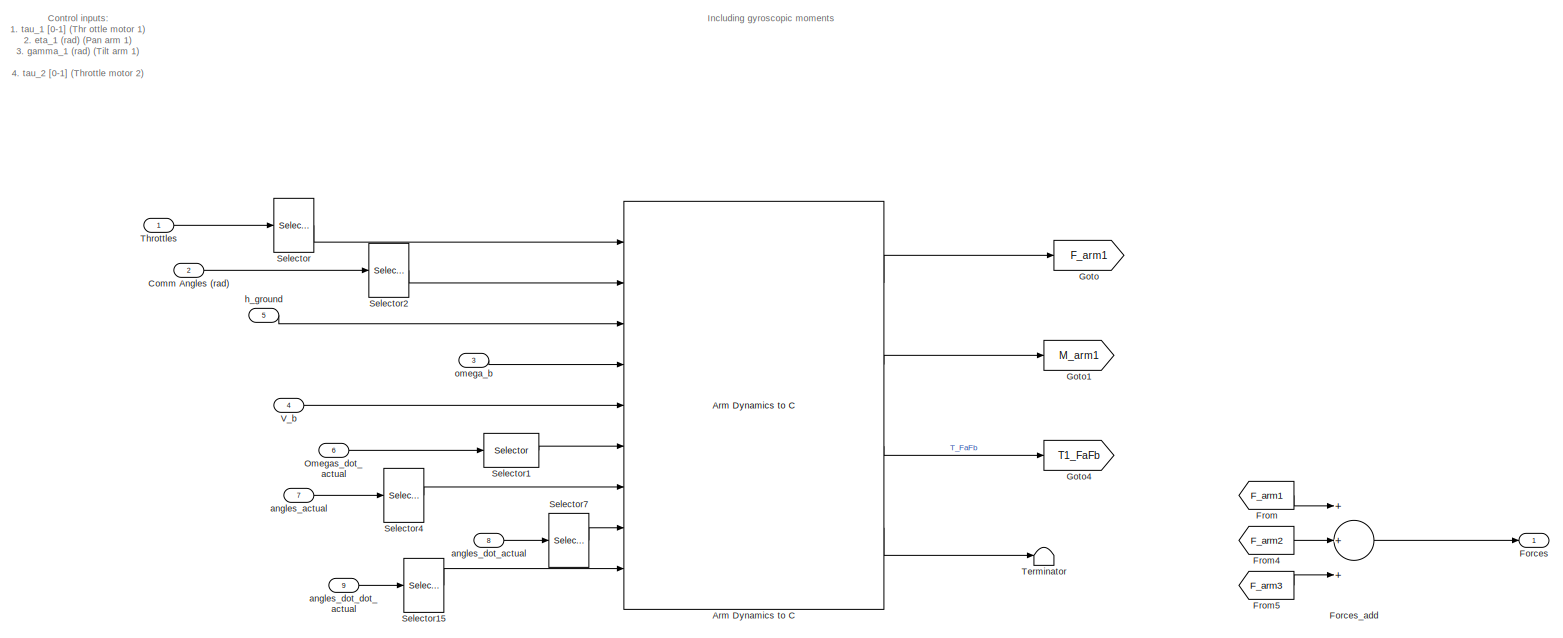
[diagram: NDI: NO RECONFIG/3Copter_4_NDI&CA/Arms Dynamics: Forces and Moments - part 1/3, full width, top band]
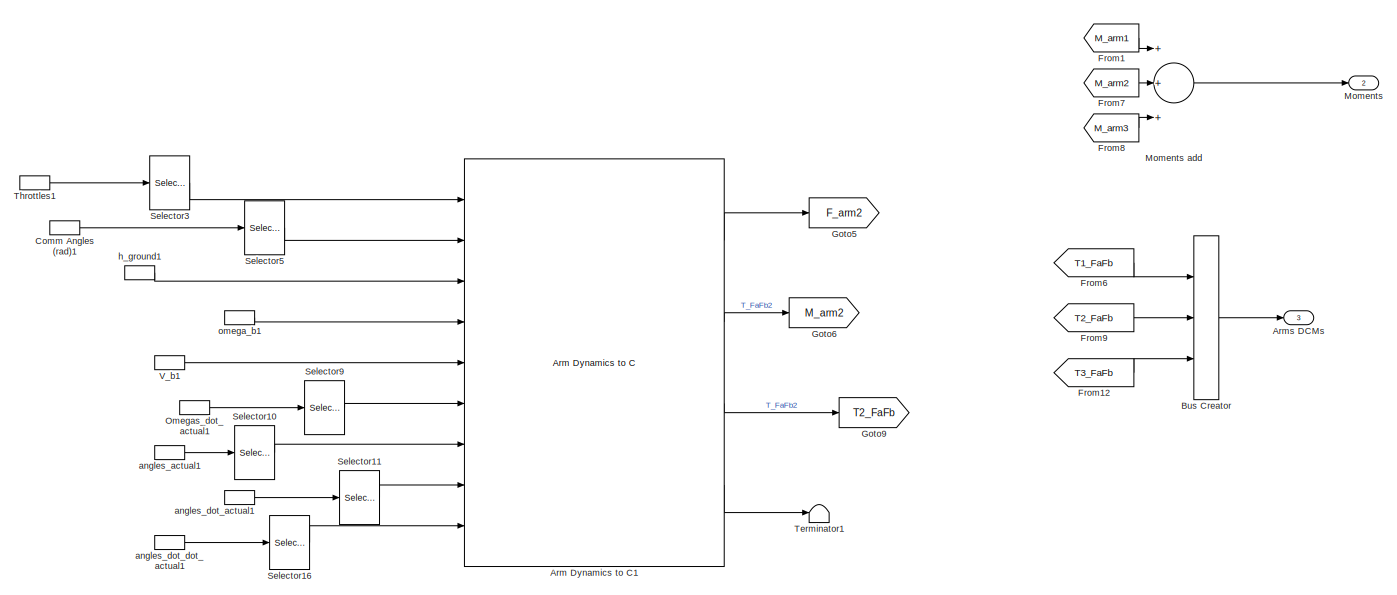
[diagram: NDI: NO RECONFIG/3Copter_4_NDI&CA/Arms Dynamics: Forces and Moments - part 2/3, full width, middle band]
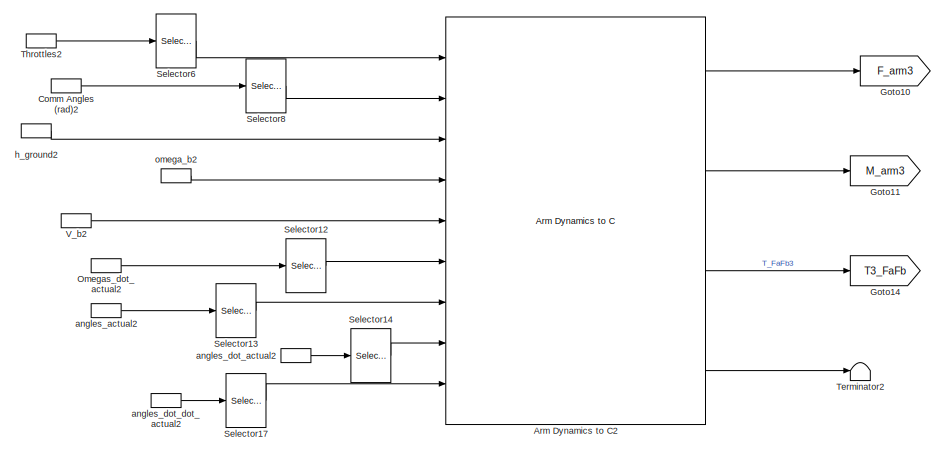
[diagram: NDI: NO RECONFIG/3Copter_4_NDI&CA/Arms Dynamics: Forces and Moments - part 3/3, bottom center region]
BLOCK [SubSystem] NDI: NO RECONFIG/3Copter_4_NDI&CA/Arms Dynamics: Forces and Moments
  FunctionWithSeparateData = off
  MaskHideContents = off
  MinAlgLoopOccurrences = off
  Opaque = off
  Ports = [9, 3]
  PropExecContextOutsideSubsystem = off
  RTWSystemCode = Auto
  RequestExecContextInheritance = off
  TreatAsAtomicUnit = on
BLOCK [Reference] NDI: NO RECONFIG/3Copter_4_NDI&CA/Arms Dynamics: Forces and Moments/Arm Dynamics  to C  REF=XXCopter_C/Arm Dynamics  to C
  Arm_axis = [l_arm;0;0]
  J_FA = J_FA
  J_T = J_T
  Ports = [9, 4]
  Rot_sign = Rotation_sign(1)
  SourceBlock = XXCopter_C/Arm Dynamics  to C
  SourceType = Arm dynamics, kinematics, forces and moments
  arm_hub_pos = l*[1;0;0]
  arm_num = 1
  eta_dir = [1;0;0]
  eta_inf_lim = deg2rad(-180)
  eta_sup_lim = deg2rad(180)
  gamma_dir = [0;1;0]
  gamma_inf_lim = deg2rad(-90)
  gamma_sup_lim = deg2rad(30)
  h = h
  omega_n = 30
  switch_val = direct_feedforward
  xi = 1.4
BLOCK [Reference] NDI: NO RECONFIG/3Copter_4_NDI&CA/Arms Dynamics: Forces and Moments/Arm Dynamics  to C1  REF=XXCopter_C/Arm Dynamics  to C
  Arm_axis = [0;l_arm;0]
  J_FA = J_FA
  J_T = J_T
  Ports = [9, 4]
  Rot_sign = Rotation_sign(2)
  SourceBlock = XXCopter_C/Arm Dynamics  to C
  SourceType = Arm dynamics, kinematics, forces and moments
  arm_hub_pos = l*[-1/2;sqrt(3)/2;0]
  arm_num = 2
  eta_dir = [0;1;0]
  eta_inf_lim = deg2rad(-180)
  eta_sup_lim = deg2rad(180)
  gamma_dir = [1;0;0]
  gamma_inf_lim = deg2rad(-30)
  gamma_sup_lim = deg2rad(90)
  h = h
  omega_n = 30
  switch_val = direct_feedforward
  xi = 1.4
BLOCK [Reference] NDI: NO RECONFIG/3Copter_4_NDI&CA/Arms Dynamics: Forces and Moments/Arm Dynamics  to C2  REF=XXCopter_C/Arm Dynamics  to C
  Arm_axis = [0;-l_arm;0]
  J_FA = J_FA
  J_T = J_T
  Ports = [9, 4]
  Rot_sign = Rotation_sign(3)
  SourceBlock = XXCopter_C/Arm Dynamics  to C
  SourceType = Arm dynamics, kinematics, forces and moments
  arm_hub_pos = l*[-1/2;-sqrt(3)/2;0]
  arm_num = 3
  eta_dir = [0;1;0]
  eta_inf_lim = deg2rad(-180)
  eta_sup_lim = deg2rad(180)
  gamma_dir = [1;0;0]
  gamma_inf_lim = deg2rad(-90)
  gamma_sup_lim = deg2rad(30)
  h = h
  omega_n = 30
  switch_val = direct_feedforward
  xi = 1.4
BLOCK [Outport] NDI: NO RECONFIG/3Copter_4_NDI&CA/Arms Dynamics: Forces and Moments/Arms DCMs
  IconDisplay = Port number
  Port = 3
BLOCK [BusCreator] NDI: NO RECONFIG/3Copter_4_NDI&CA/Arms Dynamics: Forces and Moments/Bus Creator
  DisplayOption = bar
  Inputs = 3
  Ports = [3, 1]
BLOCK [Inport] NDI: NO RECONFIG/3Copter_4_NDI&CA/Arms Dynamics: Forces and Moments/Comm Angles (rad)
  IconDisplay = Port number
  Port = 2
BLOCK [InportShadow] NDI: NO RECONFIG/3Copter_4_NDI&CA/Arms Dynamics: Forces and Moments/Comm Angles (rad)1
  IconDisplay = Port number
  Port = 2
BLOCK [InportShadow] NDI: NO RECONFIG/3Copter_4_NDI&CA/Arms Dynamics: Forces and Moments/Comm Angles (rad)2
  IconDisplay = Port number
  Port = 2
BLOCK [Outport] NDI: NO RECONFIG/3Copter_4_NDI&CA/Arms Dynamics: Forces and Moments/Forces
  IconDisplay = Port number
BLOCK [Sum] NDI: NO RECONFIG/3Copter_4_NDI&CA/Arms Dynamics: Forces and Moments/Forces_add
  InputSameDT = off
  Inputs = +++
  OutDataTypeStr = Inherit: Inherit via internal rule
  Ports = [3, 1]
  SaturateOnIntegerOverflow = off
BLOCK [From] NDI: NO RECONFIG/3Copter_4_NDI&CA/Arms Dynamics: Forces and Moments/From
  GotoTag = F_arm1
BLOCK [From] NDI: NO RECONFIG/3Copter_4_NDI&CA/Arms Dynamics: Forces and Moments/From1
  GotoTag = M_arm1
BLOCK [From] NDI: NO RECONFIG/3Copter_4_NDI&CA/Arms Dynamics: Forces and Moments/From12
  GotoTag = T3_FaFb
BLOCK [From] NDI: NO RECONFIG/3Copter_4_NDI&CA/Arms Dynamics: Forces and Moments/From4
  GotoTag = F_arm2
BLOCK [From] NDI: NO RECONFIG/3Copter_4_NDI&CA/Arms Dynamics: Forces and Moments/From5
  GotoTag = F_arm3
BLOCK [From] NDI: NO RECONFIG/3Copter_4_NDI&CA/Arms Dynamics: Forces and Moments/From6
  GotoTag = T1_FaFb
BLOCK [From] NDI: NO RECONFIG/3Copter_4_NDI&CA/Arms Dynamics: Forces and Moments/From7
  GotoTag = M_arm2
BLOCK [From] NDI: NO RECONFIG/3Copter_4_NDI&CA/Arms Dynamics: Forces and Moments/From8
  GotoTag = M_arm3
BLOCK [From] NDI: NO RECONFIG/3Copter_4_NDI&CA/Arms Dynamics: Forces and Moments/From9
  GotoTag = T2_FaFb
BLOCK [Goto] NDI: NO RECONFIG/3Copter_4_NDI&CA/Arms Dynamics: Forces and Moments/Goto
  GotoTag = F_arm1
BLOCK [Goto] NDI: NO RECONFIG/3Copter_4_NDI&CA/Arms Dynamics: Forces and Moments/Goto1
  GotoTag = M_arm1
BLOCK [Goto] NDI: NO RECONFIG/3Copter_4_NDI&CA/Arms Dynamics: Forces and Moments/Goto10
  GotoTag = F_arm3
BLOCK [Goto] NDI: NO RECONFIG/3Copter_4_NDI&CA/Arms Dynamics: Forces and Moments/Goto11
  GotoTag = M_arm3
BLOCK [Goto] NDI: NO RECONFIG/3Copter_4_NDI&CA/Arms Dynamics: Forces and Moments/Goto14
  GotoTag = T3_FaFb
BLOCK [Goto] NDI: NO RECONFIG/3Copter_4_NDI&CA/Arms Dynamics: Forces and Moments/Goto4
  GotoTag = T1_FaFb
BLOCK [Goto] NDI: NO RECONFIG/3Copter_4_NDI&CA/Arms Dynamics: Forces and Moments/Goto5
  GotoTag = F_arm2
BLOCK [Goto] NDI: NO RECONFIG/3Copter_4_NDI&CA/Arms Dynamics: Forces and Moments/Goto6
  GotoTag = M_arm2
BLOCK [Goto] NDI: NO RECONFIG/3Copter_4_NDI&CA/Arms Dynamics: Forces and Moments/Goto9
  GotoTag = T2_FaFb
BLOCK [Outport] NDI: NO RECONFIG/3Copter_4_NDI&CA/Arms Dynamics: Forces and Moments/Moments
  IconDisplay = Port number
  Port = 2
BLOCK [Sum] NDI: NO RECONFIG/3Copter_4_NDI&CA/Arms Dynamics: Forces and Moments/Moments add
  InputSameDT = off
  Inputs = +++
  OutDataTypeStr = Inherit: Inherit via internal rule
  Ports = [3, 1]
  SaturateOnIntegerOverflow = off
BLOCK [Inport] NDI: NO RECONFIG/3Copter_4_NDI&CA/Arms Dynamics: Forces and Moments/Omegas_dot_actual
  IconDisplay = Port number
  Port = 6
BLOCK [InportShadow] NDI: NO RECONFIG/3Copter_4_NDI&CA/Arms Dynamics: Forces and Moments/Omegas_dot_actual1
  IconDisplay = Port number
  Port = 6
BLOCK [InportShadow] NDI: NO RECONFIG/3Copter_4_NDI&CA/Arms Dynamics: Forces and Moments/Omegas_dot_actual2
  IconDisplay = Port number
  Port = 6
BLOCK [Selector] NDI: NO RECONFIG/3Copter_4_NDI&CA/Arms Dynamics: Forces and Moments/Selector
  IndexMode = Zero-based
  Indices = 0
  InputPortWidth = 3
  Ports = [1, 1]
BLOCK [Selector] NDI: NO RECONFIG/3Copter_4_NDI&CA/Arms Dynamics: Forces and Moments/Selector1
  IndexMode = Zero-based
  Indices = 0
  InputPortWidth = 3
  Ports = [1, 1]
BLOCK [Selector] NDI: NO RECONFIG/3Copter_4_NDI&CA/Arms Dynamics: Forces and Moments/Selector10
  IndexMode = Zero-based
  Indices = [2,3]
  InputPortWidth = 6
  Ports = [1, 1]
BLOCK [Selector] NDI: NO RECONFIG/3Copter_4_NDI&CA/Arms Dynamics: Forces and Moments/Selector11
  IndexMode = Zero-based
  Indices = [2,3]
  InputPortWidth = 6
  Ports = [1, 1]
BLOCK [Selector] NDI: NO RECONFIG/3Copter_4_NDI&CA/Arms Dynamics: Forces and Moments/Selector12
  IndexMode = Zero-based
  Indices = 2
  InputPortWidth = 3
  Ports = [1, 1]
BLOCK [Selector] NDI: NO RECONFIG/3Copter_4_NDI&CA/Arms Dynamics: Forces and Moments/Selector13
  IndexMode = Zero-based
  Indices = [4,5]
  InputPortWidth = 6
  Ports = [1, 1]
BLOCK [Selector] NDI: NO RECONFIG/3Copter_4_NDI&CA/Arms Dynamics: Forces and Moments/Selector14
  IndexMode = Zero-based
  Indices = [4,5]
  InputPortWidth = 6
  Ports = [1, 1]
BLOCK [Selector] NDI: NO RECONFIG/3Copter_4_NDI&CA/Arms Dynamics: Forces and Moments/Selector15
  IndexMode = Zero-based
  Indices = [0,1]
  InputPortWidth = 6
  Ports = [1, 1]
BLOCK [Selector] NDI: NO RECONFIG/3Copter_4_NDI&CA/Arms Dynamics: Forces and Moments/Selector16
  IndexMode = Zero-based
  Indices = [2,3]
  InputPortWidth = 6
  Ports = [1, 1]
BLOCK [Selector] NDI: NO RECONFIG/3Copter_4_NDI&CA/Arms Dynamics: Forces and Moments/Selector17
  IndexMode = Zero-based
  Indices = [4,5]
  InputPortWidth = 6
  Ports = [1, 1]
BLOCK [Selector] NDI: NO RECONFIG/3Copter_4_NDI&CA/Arms Dynamics: Forces and Moments/Selector2
  IndexMode = Zero-based
  Indices = [0,1]
  InputPortWidth = 6
  Ports = [1, 1]
BLOCK [Selector] NDI: NO RECONFIG/3Copter_4_NDI&CA/Arms Dynamics: Forces and Moments/Selector3
  IndexMode = Zero-based
  InputPortWidth = 3
  Ports = [1, 1]
BLOCK [Selector] NDI: NO RECONFIG/3Copter_4_NDI&CA/Arms Dynamics: Forces and Moments/Selector4
  IndexMode = Zero-based
  Indices = [0,1]
  InputPortWidth = 6
  Ports = [1, 1]
BLOCK [Selector] NDI: NO RECONFIG/3Copter_4_NDI&CA/Arms Dynamics: Forces and Moments/Selector5
  IndexMode = Zero-based
  Indices = [2,3]
  InputPortWidth = 6
  Ports = [1, 1]
BLOCK [Selector] NDI: NO RECONFIG/3Copter_4_NDI&CA/Arms Dynamics: Forces and Moments/Selector6
  IndexMode = Zero-based
  Indices = 2
  InputPortWidth = 3
  Ports = [1, 1]
BLOCK [Selector] NDI: NO RECONFIG/3Copter_4_NDI&CA/Arms Dynamics: Forces and Moments/Selector7
  IndexMode = Zero-based
  Indices = [0,1]
  InputPortWidth = 6
  Ports = [1, 1]
BLOCK [Selector] NDI: NO RECONFIG/3Copter_4_NDI&CA/Arms Dynamics: Forces and Moments/Selector8
  IndexMode = Zero-based
  Indices = [4,5]
  InputPortWidth = 6
  Ports = [1, 1]
BLOCK [Selector] NDI: NO RECONFIG/3Copter_4_NDI&CA/Arms Dynamics: Forces and Moments/Selector9
  IndexMode = Zero-based
  InputPortWidth = 3
  Ports = [1, 1]
BLOCK [Terminator] NDI: NO RECONFIG/3Copter_4_NDI&CA/Arms Dynamics: Forces and Moments/Terminator
BLOCK [Terminator] NDI: NO RECONFIG/3Copter_4_NDI&CA/Arms Dynamics: Forces and Moments/Terminator1
BLOCK [Terminator] NDI: NO RECONFIG/3Copter_4_NDI&CA/Arms Dynamics: Forces and Moments/Terminator2
BLOCK [Inport] NDI: NO RECONFIG/3Copter_4_NDI&CA/Arms Dynamics: Forces and Moments/Throttles
  IconDisplay = Port number
BLOCK [InportShadow] NDI: NO RECONFIG/3Copter_4_NDI&CA/Arms Dynamics: Forces and Moments/Throttles1
  IconDisplay = Port number
BLOCK [InportShadow] NDI: NO RECONFIG/3Copter_4_NDI&CA/Arms Dynamics: Forces and Moments/Throttles2
  IconDisplay = Port number
BLOCK [Inport] NDI: NO RECONFIG/3Copter_4_NDI&CA/Arms Dynamics: Forces and Moments/V_b
  IconDisplay = Port number
  Port = 4
BLOCK [InportShadow] NDI: NO RECONFIG/3Copter_4_NDI&CA/Arms Dynamics: Forces and Moments/V_b1
  IconDisplay = Port number
  Port = 4
BLOCK [InportShadow] NDI: NO RECONFIG/3Copter_4_NDI&CA/Arms Dynamics: Forces and Moments/V_b2
  IconDisplay = Port number
  Port = 4
BLOCK [Inport] NDI: NO RECONFIG/3Copter_4_NDI&CA/Arms Dynamics: Forces and Moments/angles_actual
  IconDisplay = Port number
  Port = 7
BLOCK [InportShadow] NDI: NO RECONFIG/3Copter_4_NDI&CA/Arms Dynamics: Forces and Moments/angles_actual1
  IconDisplay = Port number
  Port = 7
BLOCK [InportShadow] NDI: NO RECONFIG/3Copter_4_NDI&CA/Arms Dynamics: Forces and Moments/angles_actual2
  IconDisplay = Port number
  Port = 7
BLOCK [Inport] NDI: NO RECONFIG/3Copter_4_NDI&CA/Arms Dynamics: Forces and Moments/angles_dot_actual
  IconDisplay = Port number
  Port = 8
BLOCK [InportShadow] NDI: NO RECONFIG/3Copter_4_NDI&CA/Arms Dynamics: Forces and Moments/angles_dot_actual1
  IconDisplay = Port number
  Port = 8
BLOCK [InportShadow] NDI: NO RECONFIG/3Copter_4_NDI&CA/Arms Dynamics: Forces and Moments/angles_dot_actual2
  IconDisplay = Port number
  Port = 8
BLOCK [Inport] NDI: NO RECONFIG/3Copter_4_NDI&CA/Arms Dynamics: Forces and Moments/angles_dot_dot_actual
  IconDisplay = Port number
  Port = 9
BLOCK [InportShadow] NDI: NO RECONFIG/3Copter_4_NDI&CA/Arms Dynamics: Forces and Moments/angles_dot_dot_actual1
  IconDisplay = Port number
  Port = 9
BLOCK [InportShadow] NDI: NO RECONFIG/3Copter_4_NDI&CA/Arms Dynamics: Forces and Moments/angles_dot_dot_actual2
  IconDisplay = Port number
  Port = 9
BLOCK [Inport] NDI: NO RECONFIG/3Copter_4_NDI&CA/Arms Dynamics: Forces and Moments/h_ground
  IconDisplay = Port number
  Port = 5
BLOCK [InportShadow] NDI: NO RECONFIG/3Copter_4_NDI&CA/Arms Dynamics: Forces and Moments/h_ground1
  IconDisplay = Port number
  Port = 5
BLOCK [InportShadow] NDI: NO RECONFIG/3Copter_4_NDI&CA/Arms Dynamics: Forces and Moments/h_ground2
  IconDisplay = Port number
  Port = 5
BLOCK [Inport] NDI: NO RECONFIG/3Copter_4_NDI&CA/Arms Dynamics: Forces and Moments/omega_b
  IconDisplay = Port number
  Port = 3
BLOCK [InportShadow] NDI: NO RECONFIG/3Copter_4_NDI&CA/Arms Dynamics: Forces and Moments/omega_b1
  IconDisplay = Port number
  Port = 3
BLOCK [InportShadow] NDI: NO RECONFIG/3Copter_4_NDI&CA/Arms Dynamics: Forces and Moments/omega_b2
  IconDisplay = Port number
  Port = 3
BLOCK [Outport] NDI: NO RECONFIG/3Copter_4_NDI&CA/CA_grad
  IconDisplay = Port number
  Port = 3
BLOCK [Constant] NDI: NO RECONFIG/3Copter_4_NDI&CA/CG
  Value = CG_0
BLOCK [Outport] NDI: NO RECONFIG/3Copter_4_NDI&CA/CG 
  IconDisplay = Port number
  Port = 5
BLOCK [Inport] NDI: NO RECONFIG/3Copter_4_NDI&CA/Control Inputs (rad)
  IconDisplay = Port number
  Port = 2
BLOCK [Product] NDI: NO RECONFIG/3Copter_4_NDI&CA/Equivalent Throttle
  InputSameDT = off
  Inputs = **
  OutDataTypeStr = Inherit: Inherit via internal rule
  Ports = [2, 1]
  RndMeth = Floor
  SaturateOnIntegerOverflow = off
BLOCK [Outport] NDI: NO RECONFIG/3Copter_4_NDI&CA/Forces
  IconDisplay = Port number
BLOCK [From] NDI: NO RECONFIG/3Copter_4_NDI&CA/From11
  GotoTag = M_air
BLOCK [From] NDI: NO RECONFIG/3Copter_4_NDI&CA/From12
  GotoTag = M_g
BLOCK [From] NDI: NO RECONFIG/3Copter_4_NDI&CA/From2
  GotoTag = F_arm
BLOCK [From] NDI: NO RECONFIG/3Copter_4_NDI&CA/From3
  GotoTag = F_air
BLOCK [From] NDI: NO RECONFIG/3Copter_4_NDI&CA/From4
  GotoTag = F_g
BLOCK [From] NDI: NO RECONFIG/3Copter_4_NDI&CA/From5
  GotoTag = M_arm
BLOCK [From] NDI: NO RECONFIG/3Copter_4_NDI&CA/From6
  GotoTag = M_air
BLOCK [From] NDI: NO RECONFIG/3Copter_4_NDI&CA/From7
  GotoTag = M_g
BLOCK [From] NDI: NO RECONFIG/3Copter_4_NDI&CA/From8
  GotoTag = F_air
BLOCK [From] NDI: NO RECONFIG/3Copter_4_NDI&CA/From9
  GotoTag = F_g
BLOCK [SubSystem] NDI: NO RECONFIG/3Copter_4_NDI&CA/Get gradient
  ErrorFcn = Stateflow.Translate.translate
  FunctionWithSeparateData = off
  MaskHideContents = off
  MinAlgLoopOccurrences = off
  Opaque = off
  PermitHierarchicalResolution = ParametersOnly
  Ports = [2, 1]
  PropExecContextOutsideSubsystem = off
  RTWSystemCode = Auto
  RequestExecContextInheritance = off
  SFBlockType = MATLAB Function
  TreatAsAtomicUnit = on
BLOCK [Demux] NDI: NO RECONFIG/3Copter_4_NDI&CA/Get gradient/ Demux 
  Outputs = 1
  Ports = [1, 1]
BLOCK [S-Function] NDI: NO RECONFIG/3Copter_4_NDI&CA/Get gradient/ SFunction 
  EnableBusSupport = on
  FunctionName = sf_sfun
  PortCounts = [2 2]
  Ports = [2, 2]
  Tag = Stateflow S-Function Tricopter_Controlled 10
BLOCK [Terminator] NDI: NO RECONFIG/3Copter_4_NDI&CA/Get gradient/ Terminator 
BLOCK [Outport] NDI: NO RECONFIG/3Copter_4_NDI&CA/Get gradient/CA_Grad
  IconDisplay = Port number
BLOCK [Inport] NDI: NO RECONFIG/3Copter_4_NDI&CA/Get gradient/Perturb_evaluations
  IconDisplay = Port number
  Port = 2
BLOCK [Inport] NDI: NO RECONFIG/3Copter_4_NDI&CA/Get gradient/epsilon
  IconDisplay = Port number
BLOCK [Goto] NDI: NO RECONFIG/3Copter_4_NDI&CA/Goto2
  GotoTag = F_arm
BLOCK [Goto] NDI: NO RECONFIG/3Copter_4_NDI&CA/Goto3
  GotoTag = M_arm
BLOCK [Goto] NDI: NO RECONFIG/3Copter_4_NDI&CA/Goto4
  GotoTag = F_air
BLOCK [Goto] NDI: NO RECONFIG/3Copter_4_NDI&CA/Goto5
  GotoTag = M_air
BLOCK [Goto] NDI: NO RECONFIG/3Copter_4_NDI&CA/Goto6
  GotoTag = F_g
BLOCK [Goto] NDI: NO RECONFIG/3Copter_4_NDI&CA/Goto7
  GotoTag = M_g
BLOCK [SubSystem] NDI: NO RECONFIG/3Copter_4_NDI&CA/Gradient
  FunctionWithSeparateData = off
  MaskHideContents = off
  MinAlgLoopOccurrences = off
  Opaque = off
  Ports = [12, 1]
  PropExecContextOutsideSubsystem = off
  RTWSystemCode = Auto
  RequestExecContextInheritance = off
  TreatAsAtomicUnit = on
BLOCK [Sum] NDI: NO RECONFIG/3Copter_4_NDI&CA/Gradient/Add
  InputSameDT = off
  Inputs = +++
  OutDataTypeStr = Inherit: Inherit via internal rule
  Ports = [3, 1]
  SaturateOnIntegerOverflow = off
BLOCK [Sum] NDI: NO RECONFIG/3Copter_4_NDI&CA/Gradient/Add1
  InputSameDT = off
  Inputs = +++
  OutDataTypeStr = Inherit: Inherit via internal rule
  Ports = [3, 1]
  SaturateOnIntegerOverflow = off
BLOCK [SubSystem] NDI: NO RECONFIG/3Copter_4_NDI&CA/Gradient/Arms Dynamics: Forces and Moments
  FunctionWithSeparateData = off
  MaskHideContents = off
  MinAlgLoopOccurrences = off
  Opaque = off
  Ports = [9, 3]
  PropExecContextOutsideSubsystem = off
  RTWSystemCode = Auto
  RequestExecContextInheritance = off
  TreatAsAtomicUnit = on
BLOCK [Reference] NDI: NO RECONFIG/3Copter_4_NDI&CA/Gradient/Arms Dynamics: Forces and Moments/Arm Dynamics  to C  REF=XXCopter_C/Arm Dynamics  to C
  Arm_axis = [l_arm;0;0]
  J_FA = J_FA
  J_T = J_T
  Ports = [9, 4]
  Rot_sign = Rotation_sign(1)
  SourceBlock = XXCopter_C/Arm Dynamics  to C
  SourceType = Arm dynamics, kinematics, forces and moments
  arm_hub_pos = l*[1;0;0]
  arm_num = 1
  eta_dir = [1;0;0]
  eta_inf_lim = deg2rad(-180)
  eta_sup_lim = deg2rad(180)
  gamma_dir = [0;1;0]
  gamma_inf_lim = deg2rad(-90)
  gamma_sup_lim = deg2rad(30)
  h = h
  omega_n = 30
  switch_val = direct_feedforward
  xi = 1.4
BLOCK [Reference] NDI: NO RECONFIG/3Copter_4_NDI&CA/Gradient/Arms Dynamics: Forces and Moments/Arm Dynamics  to C1  REF=XXCopter_C/Arm Dynamics  to C
  Arm_axis = [0;l_arm;0]
  J_FA = J_FA
  J_T = J_T
  Ports = [9, 4]
  Rot_sign = Rotation_sign(2)
  SourceBlock = XXCopter_C/Arm Dynamics  to C
  SourceType = Arm dynamics, kinematics, forces and moments
  arm_hub_pos = l*[-1/2;sqrt(3)/2;0]
  arm_num = 2
  eta_dir = [0;1;0]
  eta_inf_lim = deg2rad(-180)
  eta_sup_lim = deg2rad(180)
  gamma_dir = [1;0;0]
  gamma_inf_lim = deg2rad(-30)
  gamma_sup_lim = deg2rad(90)
  h = h
  omega_n = 30
  switch_val = direct_feedforward
  xi = 1.4
BLOCK [Reference] NDI: NO RECONFIG/3Copter_4_NDI&CA/Gradient/Arms Dynamics: Forces and Moments/Arm Dynamics  to C2  REF=XXCopter_C/Arm Dynamics  to C
  Arm_axis = [0;-l_arm;0]
  J_FA = J_FA
  J_T = J_T
  Ports = [9, 4]
  Rot_sign = Rotation_sign(3)
  SourceBlock = XXCopter_C/Arm Dynamics  to C
  SourceType = Arm dynamics, kinematics, forces and moments
  arm_hub_pos = l*[-1/2;-sqrt(3)/2;0]
  arm_num = 3
  eta_dir = [0;1;0]
  eta_inf_lim = deg2rad(-180)
  eta_sup_lim = deg2rad(180)
  gamma_dir = [1;0;0]
  gamma_inf_lim = deg2rad(-90)
  gamma_sup_lim = deg2rad(30)
  h = h
  omega_n = 30
  switch_val = direct_feedforward
  xi = 1.4
BLOCK [Outport] NDI: NO RECONFIG/3Copter_4_NDI&CA/Gradient/Arms Dynamics: Forces and Moments/Arms DCMs
  IconDisplay = Port number
  Port = 3
BLOCK [BusCreator] NDI: NO RECONFIG/3Copter_4_NDI&CA/Gradient/Arms Dynamics: Forces and Moments/Bus Creator
  DisplayOption = bar
  Inputs = 3
  Ports = [3, 1]
BLOCK [Inport] NDI: NO RECONFIG/3Copter_4_NDI&CA/Gradient/Arms Dynamics: Forces and Moments/Comm Angles (rad)
  IconDisplay = Port number
  Port = 2
BLOCK [InportShadow] NDI: NO RECONFIG/3Copter_4_NDI&CA/Gradient/Arms Dynamics: Forces and Moments/Comm Angles (rad)1
  IconDisplay = Port number
  Port = 2
BLOCK [InportShadow] NDI: NO RECONFIG/3Copter_4_NDI&CA/Gradient/Arms Dynamics: Forces and Moments/Comm Angles (rad)2
  IconDisplay = Port number
  Port = 2
BLOCK [Outport] NDI: NO RECONFIG/3Copter_4_NDI&CA/Gradient/Arms Dynamics: Forces and Moments/Forces
  IconDisplay = Port number
BLOCK [Sum] NDI: NO RECONFIG/3Copter_4_NDI&CA/Gradient/Arms Dynamics: Forces and Moments/Forces_add
  InputSameDT = off
  Inputs = +++
  OutDataTypeStr = Inherit: Inherit via internal rule
  Ports = [3, 1]
  SaturateOnIntegerOverflow = off
BLOCK [From] NDI: NO RECONFIG/3Copter_4_NDI&CA/Gradient/Arms Dynamics: Forces and Moments/From
  GotoTag = F_arm1
BLOCK [From] NDI: NO RECONFIG/3Copter_4_NDI&CA/Gradient/Arms Dynamics: Forces and Moments/From1
  GotoTag = M_arm1
BLOCK [From] NDI: NO RECONFIG/3Copter_4_NDI&CA/Gradient/Arms Dynamics: Forces and Moments/From12
  GotoTag = T3_FaFb
BLOCK [From] NDI: NO RECONFIG/3Copter_4_NDI&CA/Gradient/Arms Dynamics: Forces and Moments/From4
  GotoTag = F_arm2
BLOCK [From] NDI: NO RECONFIG/3Copter_4_NDI&CA/Gradient/Arms Dynamics: Forces and Moments/From5
  GotoTag = F_arm3
BLOCK [From] NDI: NO RECONFIG/3Copter_4_NDI&CA/Gradient/Arms Dynamics: Forces and Moments/From6
  GotoTag = T1_FaFb
BLOCK [From] NDI: NO RECONFIG/3Copter_4_NDI&CA/Gradient/Arms Dynamics: Forces and Moments/From7
  GotoTag = M_arm2
BLOCK [From] NDI: NO RECONFIG/3Copter_4_NDI&CA/Gradient/Arms Dynamics: Forces and Moments/From8
  GotoTag = M_arm3
BLOCK [From] NDI: NO RECONFIG/3Copter_4_NDI&CA/Gradient/Arms Dynamics: Forces and Moments/From9
  GotoTag = T2_FaFb
BLOCK [Goto] NDI: NO RECONFIG/3Copter_4_NDI&CA/Gradient/Arms Dynamics: Forces and Moments/Goto
  GotoTag = F_arm1
BLOCK [Goto] NDI: NO RECONFIG/3Copter_4_NDI&CA/Gradient/Arms Dynamics: Forces and Moments/Goto1
  GotoTag = M_arm1
BLOCK [Goto] NDI: NO RECONFIG/3Copter_4_NDI&CA/Gradient/Arms Dynamics: Forces and Moments/Goto10
  GotoTag = F_arm3
BLOCK [Goto] NDI: NO RECONFIG/3Copter_4_NDI&CA/Gradient/Arms Dynamics: Forces and Moments/Goto11
  GotoTag = M_arm3
BLOCK [Goto] NDI: NO RECONFIG/3Copter_4_NDI&CA/Gradient/Arms Dynamics: Forces and Moments/Goto14
  GotoTag = T3_FaFb
BLOCK [Goto] NDI: NO RECONFIG/3Copter_4_NDI&CA/Gradient/Arms Dynamics: Forces and Moments/Goto4
  GotoTag = T1_FaFb
BLOCK [Goto] NDI: NO RECONFIG/3Copter_4_NDI&CA/Gradient/Arms Dynamics: Forces and Moments/Goto5
  GotoTag = F_arm2
BLOCK [Goto] NDI: NO RECONFIG/3Copter_4_NDI&CA/Gradient/Arms Dynamics: Forces and Moments/Goto6
  GotoTag = M_arm2
BLOCK [Goto] NDI: NO RECONFIG/3Copter_4_NDI&CA/Gradient/Arms Dynamics: Forces and Moments/Goto9
  GotoTag = T2_FaFb
BLOCK [Outport] NDI: NO RECONFIG/3Copter_4_NDI&CA/Gradient/Arms Dynamics: Forces and Moments/Moments
  IconDisplay = Port number
  Port = 2
BLOCK [Sum] NDI: NO RECONFIG/3Copter_4_NDI&CA/Gradient/Arms Dynamics: Forces and Moments/Moments add
  InputSameDT = off
  Inputs = +++
  OutDataTypeStr = Inherit: Inherit via internal rule
  Ports = [3, 1]
  SaturateOnIntegerOverflow = off
BLOCK [Inport] NDI: NO RECONFIG/3Copter_4_NDI&CA/Gradient/Arms Dynamics: Forces and Moments/Omegas_dot_actual
  IconDisplay = Port number
  Port = 6
BLOCK [InportShadow] NDI: NO RECONFIG/3Copter_4_NDI&CA/Gradient/Arms Dynamics: Forces and Moments/Omegas_dot_actual1
  IconDisplay = Port number
  Port = 6
BLOCK [InportShadow] NDI: NO RECONFIG/3Copter_4_NDI&CA/Gradient/Arms Dynamics: Forces and Moments/Omegas_dot_actual2
  IconDisplay = Port number
  Port = 6
BLOCK [Selector] NDI: NO RECONFIG/3Copter_4_NDI&CA/Gradient/Arms Dynamics: Forces and Moments/Selector
  IndexMode = Zero-based
  Indices = 0
  InputPortWidth = 3
  Ports = [1, 1]
BLOCK [Selector] NDI: NO RECONFIG/3Copter_4_NDI&CA/Gradient/Arms Dynamics: Forces and Moments/Selector1
  IndexMode = Zero-based
  Indices = 0
  InputPortWidth = 3
  Ports = [1, 1]
BLOCK [Selector] NDI: NO RECONFIG/3Copter_4_NDI&CA/Gradient/Arms Dynamics: Forces and Moments/Selector10
  IndexMode = Zero-based
  Indices = [2,3]
  InputPortWidth = 6
  Ports = [1, 1]
BLOCK [Selector] NDI: NO RECONFIG/3Copter_4_NDI&CA/Gradient/Arms Dynamics: Forces and Moments/Selector11
  IndexMode = Zero-based
  Indices = [2,3]
  InputPortWidth = 6
  Ports = [1, 1]
BLOCK [Selector] NDI: NO RECONFIG/3Copter_4_NDI&CA/Gradient/Arms Dynamics: Forces and Moments/Selector12
  IndexMode = Zero-based
  Indices = 2
  InputPortWidth = 3
  Ports = [1, 1]
BLOCK [Selector] NDI: NO RECONFIG/3Copter_4_NDI&CA/Gradient/Arms Dynamics: Forces and Moments/Selector13
  IndexMode = Zero-based
  Indices = [4,5]
  InputPortWidth = 6
  Ports = [1, 1]
BLOCK [Selector] NDI: NO RECONFIG/3Copter_4_NDI&CA/Gradient/Arms Dynamics: Forces and Moments/Selector14
  IndexMode = Zero-based
  Indices = [4,5]
  InputPortWidth = 6
  Ports = [1, 1]
BLOCK [Selector] NDI: NO RECONFIG/3Copter_4_NDI&CA/Gradient/Arms Dynamics: Forces and Moments/Selector15
  IndexMode = Zero-based
  Indices = [0,1]
  InputPortWidth = 6
  Ports = [1, 1]
BLOCK [Selector] NDI: NO RECONFIG/3Copter_4_NDI&CA/Gradient/Arms Dynamics: Forces and Moments/Selector16
  IndexMode = Zero-based
  Indices = [2,3]
  InputPortWidth = 6
  Ports = [1, 1]
BLOCK [Selector] NDI: NO RECONFIG/3Copter_4_NDI&CA/Gradient/Arms Dynamics: Forces and Moments/Selector17
  IndexMode = Zero-based
  Indices = [4,5]
  InputPortWidth = 6
  Ports = [1, 1]
BLOCK [Selector] NDI: NO RECONFIG/3Copter_4_NDI&CA/Gradient/Arms Dynamics: Forces and Moments/Selector2
  IndexMode = Zero-based
  Indices = [0,1]
  InputPortWidth = 6
  Ports = [1, 1]
BLOCK [Selector] NDI: NO RECONFIG/3Copter_4_NDI&CA/Gradient/Arms Dynamics: Forces and Moments/Selector3
  IndexMode = Zero-based
  InputPortWidth = 3
  Ports = [1, 1]
BLOCK [Selector] NDI: NO RECONFIG/3Copter_4_NDI&CA/Gradient/Arms Dynamics: Forces and Moments/Selector4
  IndexMode = Zero-based
  Indices = [0,1]
  InputPortWidth = 6
  Ports = [1, 1]
BLOCK [Selector] NDI: NO RECONFIG/3Copter_4_NDI&CA/Gradient/Arms Dynamics: Forces and Moments/Selector5
  IndexMode = Zero-based
  Indices = [2,3]
  InputPortWidth = 6
  Ports = [1, 1]
BLOCK [Selector] NDI: NO RECONFIG/3Copter_4_NDI&CA/Gradient/Arms Dynamics: Forces and Moments/Selector6
  IndexMode = Zero-based
  Indices = 2
  InputPortWidth = 3
  Ports = [1, 1]
BLOCK [Selector] NDI: NO RECONFIG/3Copter_4_NDI&CA/Gradient/Arms Dynamics: Forces and Moments/Selector7
  IndexMode = Zero-based
  Indices = [0,1]
  InputPortWidth = 6
  Ports = [1, 1]
BLOCK [Selector] NDI: NO RECONFIG/3Copter_4_NDI&CA/Gradient/Arms Dynamics: Forces and Moments/Selector8
  IndexMode = Zero-based
  Indices = [4,5]
  InputPortWidth = 6
  Ports = [1, 1]
BLOCK [Selector] NDI: NO RECONFIG/3Copter_4_NDI&CA/Gradient/Arms Dynamics: Forces and Moments/Selector9
  IndexMode = Zero-based
  InputPortWidth = 3
  Ports = [1, 1]
BLOCK [Terminator] NDI: NO RECONFIG/3Copter_4_NDI&CA/Gradient/Arms Dynamics: Forces and Moments/Terminator
BLOCK [Terminator] NDI: NO RECONFIG/3Copter_4_NDI&CA/Gradient/Arms Dynamics: Forces and Moments/Terminator1
BLOCK [Terminator] NDI: NO RECONFIG/3Copter_4_NDI&CA/Gradient/Arms Dynamics: Forces and Moments/Terminator2
BLOCK [Inport] NDI: NO RECONFIG/3Copter_4_NDI&CA/Gradient/Arms Dynamics: Forces and Moments/Throttles
  IconDisplay = Port number
BLOCK [InportShadow] NDI: NO RECONFIG/3Copter_4_NDI&CA/Gradient/Arms Dynamics: Forces and Moments/Throttles1
  IconDisplay = Port number
BLOCK [InportShadow] NDI: NO RECONFIG/3Copter_4_NDI&CA/Gradient/Arms Dynamics: Forces and Moments/Throttles2
  IconDisplay = Port number
BLOCK [Inport] NDI: NO RECONFIG/3Copter_4_NDI&CA/Gradient/Arms Dynamics: Forces and Moments/V_b
  IconDisplay = Port number
  Port = 4
BLOCK [InportShadow] NDI: NO RECONFIG/3Copter_4_NDI&CA/Gradient/Arms Dynamics: Forces and Moments/V_b1
  IconDisplay = Port number
  Port = 4
BLOCK [InportShadow] NDI: NO RECONFIG/3Copter_4_NDI&CA/Gradient/Arms Dynamics: Forces and Moments/V_b2
  IconDisplay = Port number
  Port = 4
BLOCK [Inport] NDI: NO RECONFIG/3Copter_4_NDI&CA/Gradient/Arms Dynamics: Forces and Moments/angles_actual
  IconDisplay = Port number
  Port = 7
BLOCK [InportShadow] NDI: NO RECONFIG/3Copter_4_NDI&CA/Gradient/Arms Dynamics: Forces and Moments/angles_actual1
  IconDisplay = Port number
  Port = 7
BLOCK [InportShadow] NDI: NO RECONFIG/3Copter_4_NDI&CA/Gradient/Arms Dynamics: Forces and Moments/angles_actual2
  IconDisplay = Port number
  Port = 7
BLOCK [Inport] NDI: NO RECONFIG/3Copter_4_NDI&CA/Gradient/Arms Dynamics: Forces and Moments/angles_dot_actual
  IconDisplay = Port number
  Port = 8
BLOCK [InportShadow] NDI: NO RECONFIG/3Copter_4_NDI&CA/Gradient/Arms Dynamics: Forces and Moments/angles_dot_actual1
  IconDisplay = Port number
  Port = 8
BLOCK [InportShadow] NDI: NO RECONFIG/3Copter_4_NDI&CA/Gradient/Arms Dynamics: Forces and Moments/angles_dot_actual2
  IconDisplay = Port number
  Port = 8
BLOCK [Inport] NDI: NO RECONFIG/3Copter_4_NDI&CA/Gradient/Arms Dynamics: Forces and Moments/angles_dot_dot_actual
  IconDisplay = Port number
  Port = 9
BLOCK [InportShadow] NDI: NO RECONFIG/3Copter_4_NDI&CA/Gradient/Arms Dynamics: Forces and Moments/angles_dot_dot_actual1
  IconDisplay = Port number
  Port = 9
BLOCK [InportShadow] NDI: NO RECONFIG/3Copter_4_NDI&CA/Gradient/Arms Dynamics: Forces and Moments/angles_dot_dot_actual2
  IconDisplay = Port number
  Port = 9
BLOCK [Inport] NDI: NO RECONFIG/3Copter_4_NDI&CA/Gradient/Arms Dynamics: Forces and Moments/h_ground
  IconDisplay = Port number
  Port = 5
BLOCK [InportShadow] NDI: NO RECONFIG/3Copter_4_NDI&CA/Gradient/Arms Dynamics: Forces and Moments/h_ground1
  IconDisplay = Port number
  Port = 5
BLOCK [InportShadow] NDI: NO RECONFIG/3Copter_4_NDI&CA/Gradient/Arms Dynamics: Forces and Moments/h_ground2
  IconDisplay = Port number
  Port = 5
BLOCK [Inport] NDI: NO RECONFIG/3Copter_4_NDI&CA/Gradient/Arms Dynamics: Forces and Moments/omega_b
  IconDisplay = Port number
  Port = 3
BLOCK [InportShadow] NDI: NO RECONFIG/3Copter_4_NDI&CA/Gradient/Arms Dynamics: Forces and Moments/omega_b1
  IconDisplay = Port number
  Port = 3
BLOCK [InportShadow] NDI: NO RECONFIG/3Copter_4_NDI&CA/Gradient/Arms Dynamics: Forces and Moments/omega_b2
  IconDisplay = Port number
  Port = 3
BLOCK [Inport] NDI: NO RECONFIG/3Copter_4_NDI&CA/Gradient/Control Inputs(rad) 
  IconDisplay = Port number
  Partition = on
  PartitionDimension = 1
  PartitionWidth = 9
BLOCK [Product] NDI: NO RECONFIG/3Copter_4_NDI&CA/Gradient/Equivalent Throttle
  InputSameDT = off
  Inputs = **
  OutDataTypeStr = Inherit: Inherit via internal rule
  Ports = [2, 1]
  RndMeth = Floor
  SaturateOnIntegerOverflow = off
BLOCK [Inport] NDI: NO RECONFIG/3Copter_4_NDI&CA/Gradient/F_air
  IconDisplay = Port number
  Partition = off
  Port = 9
BLOCK [Inport] NDI: NO RECONFIG/3Copter_4_NDI&CA/Gradient/F_g
  IconDisplay = Port number
  Partition = off
  Port = 11
BLOCK [ForEach] NDI: NO RECONFIG/3Copter_4_NDI&CA/Gradient/For Each
  DisableCoverage = on
  IndexMode = One-based
  Ports = []
BLOCK [Outport] NDI: NO RECONFIG/3Copter_4_NDI&CA/Gradient/Forces_Moments
  ConcatenationDimension = 2
  IconDisplay = Port number
BLOCK [Inport] NDI: NO RECONFIG/3Copter_4_NDI&CA/Gradient/M_air
  IconDisplay = Port number
  Partition = off
  Port = 10
BLOCK [Inport] NDI: NO RECONFIG/3Copter_4_NDI&CA/Gradient/M_g
  IconDisplay = Port number
  Partition = off
  Port = 12
BLOCK [Mux] NDI: NO RECONFIG/3Copter_4_NDI&CA/Gradient/Mux
  DisplayOption = bar
  Inputs = [3,3]
  Ports = [2, 1]
BLOCK [Inport] NDI: NO RECONFIG/3Copter_4_NDI&CA/Gradient/Omegas_dot_actual
  IconDisplay = Port number
  Partition = off
  Port = 5
BLOCK [Constant] NDI: NO RECONFIG/3Copter_4_NDI&CA/Gradient/Reference batrery level (V)
  Value = 16
BLOCK [SignalSpecification] NDI: NO RECONFIG/3Copter_4_NDI&CA/Gradient/Signal Specification
  Dimensions = [6,1]
BLOCK [Terminator] NDI: NO RECONFIG/3Copter_4_NDI&CA/Gradient/Terminator
BLOCK [Selector] NDI: NO RECONFIG/3Copter_4_NDI&CA/Gradient/Throttles
  IndexMode = Zero-based
  Indices = [0,3,6]
  InputPortWidth = 9
  Ports = [1, 1]
BLOCK [Inport] NDI: NO RECONFIG/3Copter_4_NDI&CA/Gradient/Vb
  IconDisplay = Port number
  Partition = off
  Port = 3
BLOCK [Selector] NDI: NO RECONFIG/3Copter_4_NDI&CA/Gradient/angles 
  IndexMode = Zero-based
  Indices = [1,2,4,5,7,8]
  InputPortWidth = 9
  Ports = [1, 1]
BLOCK [Inport] NDI: NO RECONFIG/3Copter_4_NDI&CA/Gradient/angles_actual
  IconDisplay = Port number
  Partition = off
  Port = 6
BLOCK [Inport] NDI: NO RECONFIG/3Copter_4_NDI&CA/Gradient/angles_dot_actual
  IconDisplay = Port number
  Partition = off
  Port = 7
BLOCK [Inport] NDI: NO RECONFIG/3Copter_4_NDI&CA/Gradient/angles_dot_dot_actual
  IconDisplay = Port number
  Partition = off
  Port = 8
BLOCK [Inport] NDI: NO RECONFIG/3Copter_4_NDI&CA/Gradient/h
  IconDisplay = Port number
  Partition = off
  Port = 2
BLOCK [Inport] NDI: NO RECONFIG/3Copter_4_NDI&CA/Gradient/omega_b
  IconDisplay = Port number
  Partition = off
  Port = 4
BLOCK [SubSystem] NDI: NO RECONFIG/3Copter_4_NDI&CA/Gravity Force and Moment
  ErrorFcn = Stateflow.Translate.translate
  FunctionWithSeparateData = off
  MaskHideContents = off
  MinAlgLoopOccurrences = off
  Opaque = off
  PermitHierarchicalResolution = ParametersOnly
  Ports = [3, 2]
  PropExecContextOutsideSubsystem = off
  RTWSystemCode = Auto
  RequestExecContextInheritance = off
  SFBlockType = MATLAB Function
  TreatAsAtomicUnit = on
BLOCK [Demux] NDI: NO RECONFIG/3Copter_4_NDI&CA/Gravity Force and Moment/ Demux 
  Outputs = 1
  Ports = [1, 1]
BLOCK [S-Function] NDI: NO RECONFIG/3Copter_4_NDI&CA/Gravity Force and Moment/ SFunction 
  EnableBusSupport = on
  FunctionName = sf_sfun
  Parameters = g
  PortCounts = [3 3]
  Ports = [3, 3]
  Tag = Stateflow S-Function Tricopter_Controlled 17
BLOCK [Terminator] NDI: NO RECONFIG/3Copter_4_NDI&CA/Gravity Force and Moment/ Terminator 
BLOCK [Inport] NDI: NO RECONFIG/3Copter_4_NDI&CA/Gravity Force and Moment/CG
  IconDisplay = Port number
  Port = 3
BLOCK [Outport] NDI: NO RECONFIG/3Copter_4_NDI&CA/Gravity Force and Moment/F_g_b
  IconDisplay = Port number
BLOCK [Outport] NDI: NO RECONFIG/3Copter_4_NDI&CA/Gravity Force and Moment/M_g_b
  IconDisplay = Port number
  Port = 2
BLOCK [Inport] NDI: NO RECONFIG/3Copter_4_NDI&CA/Gravity Force and Moment/mass
  IconDisplay = Port number
  Port = 2
BLOCK [Inport] NDI: NO RECONFIG/3Copter_4_NDI&CA/Gravity Force and Moment/q
  IconDisplay = Port number
BLOCK [Outport] NDI: NO RECONFIG/3Copter_4_NDI&CA/I_BAC
  IconDisplay = Port number
  Port = 4
BLOCK [Constant] NDI: NO RECONFIG/3Copter_4_NDI&CA/I_BAC_0
  Value = I_BAC_0
BLOCK [SubSystem] NDI: NO RECONFIG/3Copter_4_NDI&CA/Mass Properties
  FunctionWithSeparateData = off
  MaskHideContents = off
  MinAlgLoopOccurrences = off
  Opaque = off
  Ports = [6, 2]
  PropExecContextOutsideSubsystem = off
  RTWSystemCode = Auto
  RequestExecContextInheritance = off
  TreatAsAtomicUnit = on
BLOCK [SubSystem] NDI: NO RECONFIG/3Copter_4_NDI&CA/Mass Properties/Arm Inertia
  ErrorFcn = Stateflow.Translate.translate
  FunctionWithSeparateData = off
  MaskHideContents = off
  MinAlgLoopOccurrences = off
  Opaque = off
  PermitHierarchicalResolution = ParametersOnly
  Ports = [3, 4]
  PropExecContextOutsideSubsystem = off
  RTWSystemCode = Auto
  RequestExecContextInheritance = off
  SFBlockType = MATLAB Function
  TreatAsAtomicUnit = on
BLOCK [Demux] NDI: NO RECONFIG/3Copter_4_NDI&CA/Mass Properties/Arm Inertia/ Demux 
  Outputs = 1
  Ports = [1, 1]
BLOCK [S-Function] NDI: NO RECONFIG/3Copter_4_NDI&CA/Mass Properties/Arm Inertia/ SFunction 
  EnableBusSupport = on
  FunctionName = sf_sfun
  Parameters = h_M,l,m_M
  PortCounts = [3 5]
  Ports = [3, 5]
  Tag = Stateflow S-Function Tricopter_Controlled 14
BLOCK [Terminator] NDI: NO RECONFIG/3Copter_4_NDI&CA/Mass Properties/Arm Inertia/ Terminator 
BLOCK [Outport] NDI: NO RECONFIG/3Copter_4_NDI&CA/Mass Properties/Arm Inertia/I_M
  IconDisplay = Port number
BLOCK [Inport] NDI: NO RECONFIG/3Copter_4_NDI&CA/Mass Properties/Arm Inertia/T1_FAFb
  IconDisplay = Port number
BLOCK [Inport] NDI: NO RECONFIG/3Copter_4_NDI&CA/Mass Properties/Arm Inertia/T2_FAFb
  IconDisplay = Port number
  Port = 2
BLOCK [Inport] NDI: NO RECONFIG/3Copter_4_NDI&CA/Mass Properties/Arm Inertia/T3_FAFb
  IconDisplay = Port number
  Port = 3
BLOCK [Outport] NDI: NO RECONFIG/3Copter_4_NDI&CA/Mass Properties/Arm Inertia/r1_M
  IconDisplay = Port number
  Port = 2
BLOCK [Outport] NDI: NO RECONFIG/3Copter_4_NDI&CA/Mass Properties/Arm Inertia/r2_M
  IconDisplay = Port number
  Port = 3
BLOCK [Outport] NDI: NO RECONFIG/3Copter_4_NDI&CA/Mass Properties/Arm Inertia/r3_M
  IconDisplay = Port number
  Port = 4
BLOCK [Inport] NDI: NO RECONFIG/3Copter_4_NDI&CA/Mass Properties/Arms DCMs
  IconDisplay = Port number
BLOCK [BusSelector] NDI: NO RECONFIG/3Copter_4_NDI&CA/Mass Properties/Bus Selector
  OutputSignals = T_FaFb,T_FaFb2,T_FaFb3
  Ports = [1, 3]
BLOCK [Outport] NDI: NO RECONFIG/3Copter_4_NDI&CA/Mass Properties/CG
  IconDisplay = Port number
  Port = 2
BLOCK [Sum] NDI: NO RECONFIG/3Copter_4_NDI&CA/Mass Properties/CG position
  InputSameDT = off
  OutDataTypeStr = Inherit: Inherit via internal rule
  Ports = [2, 1]
  SaturateOnIntegerOverflow = off
BLOCK [Inport] NDI: NO RECONFIG/3Copter_4_NDI&CA/Mass Properties/CG_0
  IconDisplay = Port number
  Port = 2
BLOCK [Product] NDI: NO RECONFIG/3Copter_4_NDI&CA/Mass Properties/Divide
  InputSameDT = off
  Inputs = */
  OutDataTypeStr = Inherit: Inherit via internal rule
  Ports = [2, 1]
  RndMeth = Floor
  SaturateOnIntegerOverflow = off
BLOCK [Product] NDI: NO RECONFIG/3Copter_4_NDI&CA/Mass Properties/Divide1
  InputSameDT = off
  Inputs = **
  OutDataTypeStr = Inherit: Inherit via internal rule
  Ports = [2, 1]
  RndMeth = Floor
  SaturateOnIntegerOverflow = off
BLOCK [Product] NDI: NO RECONFIG/3Copter_4_NDI&CA/Mass Properties/Divide2
  InputSameDT = off
  Inputs = /*
  OutDataTypeStr = Inherit: Inherit via internal rule
  Ports = [2, 1]
  RndMeth = Floor
  SaturateOnIntegerOverflow = off
BLOCK [Product] NDI: NO RECONFIG/3Copter_4_NDI&CA/Mass Properties/Divide3
  InputSameDT = off
  Inputs = **
  OutDataTypeStr = Inherit: Inherit via internal rule
  Ports = [2, 1]
  RndMeth = Floor
  SaturateOnIntegerOverflow = off
BLOCK [Outport] NDI: NO RECONFIG/3Copter_4_NDI&CA/Mass Properties/I_BAC
  IconDisplay = Port number
BLOCK [Inport] NDI: NO RECONFIG/3Copter_4_NDI&CA/Mass Properties/I_BAC_0
  IconDisplay = Port number
  Port = 6
BLOCK [Sum] NDI: NO RECONFIG/3Copter_4_NDI&CA/Mass Properties/Motors Pos sum
  InputSameDT = off
  Inputs = +++
  OutDataTypeStr = Inherit: Inherit via internal rule
  Ports = [3, 1]
  SaturateOnIntegerOverflow = off
BLOCK [Sum] NDI: NO RECONFIG/3Copter_4_NDI&CA/Mass Properties/Total I_BAC
  InputSameDT = off
  OutDataTypeStr = Inherit: Inherit via internal rule
  Ports = [2, 1]
  SaturateOnIntegerOverflow = off
BLOCK [Inport] NDI: NO RECONFIG/3Copter_4_NDI&CA/Mass Properties/m
  IconDisplay = Port number
  Port = 4
BLOCK [Inport] NDI: NO RECONFIG/3Copter_4_NDI&CA/Mass Properties/m_0
  IconDisplay = Port number
  Port = 3
BLOCK [Inport] NDI: NO RECONFIG/3Copter_4_NDI&CA/Mass Properties/m_M
  IconDisplay = Port number
  Port = 5
BLOCK [Outport] NDI: NO RECONFIG/3Copter_4_NDI&CA/Moments
  IconDisplay = Port number
  Port = 2
BLOCK [Constant] NDI: NO RECONFIG/3Copter_4_NDI&CA/Motor Mass
  Value = m_M
BLOCK [Reference] NDI: NO RECONFIG/3Copter_4_NDI&CA/Normalize 4D vector  REF=XXCopter/Normalize 4D vector
  Ports = [1, 1]
  SourceBlock = XXCopter/Normalize 4D vector
  SourceType = SubSystem
BLOCK [Inport] NDI: NO RECONFIG/3Copter_4_NDI&CA/Omegas_dot_actual
  IconDisplay = Port number
  Port = 7
BLOCK [SubSystem] NDI: NO RECONFIG/3Copter_4_NDI&CA/Perturbations
  ErrorFcn = Stateflow.Translate.translate
  FunctionWithSeparateData = off
  MaskHideContents = off
  MinAlgLoopOccurrences = off
  Opaque = off
  PermitHierarchicalResolution = ParametersOnly
  Ports = [2, 1]
  PropExecContextOutsideSubsystem = off
  RTWSystemCode = Auto
  RequestExecContextInheritance = off
  SFBlockType = MATLAB Function
  TreatAsAtomicUnit = on
BLOCK [Demux] NDI: NO RECONFIG/3Copter_4_NDI&CA/Perturbations/ Demux 
  Outputs = 1
  Ports = [1, 1]
BLOCK [S-Function] NDI: NO RECONFIG/3Copter_4_NDI&CA/Perturbations/ SFunction 
  EnableBusSupport = on
  FunctionName = sf_sfun
  PortCounts = [2 2]
  Ports = [2, 2]
  Tag = Stateflow S-Function Tricopter_Controlled 15
BLOCK [Terminator] NDI: NO RECONFIG/3Copter_4_NDI&CA/Perturbations/ Terminator 
BLOCK [Inport] NDI: NO RECONFIG/3Copter_4_NDI&CA/Perturbations/Ctrl_input
  IconDisplay = Port number
  Port = 2
BLOCK [Outport] NDI: NO RECONFIG/3Copter_4_NDI&CA/Perturbations/Pert_Ctrl
  IconDisplay = Port number
BLOCK [Inport] NDI: NO RECONFIG/3Copter_4_NDI&CA/Perturbations/epsilon
  IconDisplay = Port number
BLOCK [Constant] NDI: NO RECONFIG/3Copter_4_NDI&CA/Reference batrery level (V)
  Value = 16
BLOCK [Selector] NDI: NO RECONFIG/3Copter_4_NDI&CA/Throttles
  IndexMode = Zero-based
  Indices = [0,3,6]
  InputPortWidth = 9
  Ports = [1, 1]
BLOCK [Inport] NDI: NO RECONFIG/3Copter_4_NDI&CA/Vb
  IconDisplay = Port number
  Port = 4
BLOCK [Selector] NDI: NO RECONFIG/3Copter_4_NDI&CA/angles 
  IndexMode = Zero-based
  Indices = [1,2,4,5,7,8]
  InputPortWidth = 9
  Ports = [1, 1]
BLOCK [Inport] NDI: NO RECONFIG/3Copter_4_NDI&CA/angles_actual
  IconDisplay = Port number
  Port = 8
BLOCK [Inport] NDI: NO RECONFIG/3Copter_4_NDI&CA/angles_dot_actual
  IconDisplay = Port number
  Port = 9
BLOCK [Inport] NDI: NO RECONFIG/3Copter_4_NDI&CA/angles_dot_dot_actual
  IconDisplay = Port number
  Port = 10
BLOCK [Inport] NDI: NO RECONFIG/3Copter_4_NDI&CA/epsilon (rad or unitary) 
  IconDisplay = Port number
BLOCK [Inport] NDI: NO RECONFIG/3Copter_4_NDI&CA/h
  IconDisplay = Port number
  Port = 3
BLOCK [InportShadow] NDI: NO RECONFIG/3Copter_4_NDI&CA/m2
  IconDisplay = Port number
  Port = 11
BLOCK [Constant] NDI: NO RECONFIG/3Copter_4_NDI&CA/m_0
  Value = m_0
BLOCK [Inport] NDI: NO RECONFIG/3Copter_4_NDI&CA/omega_b
  IconDisplay = Port number
  Port = 6
BLOCK [Inport] NDI: NO RECONFIG/3Copter_4_NDI&CA/q
  IconDisplay = Port number
  Port = 5
BLOCK [Inport] NDI: NO RECONFIG/All_meas
  IconDisplay = Port number
  Port = 5
BLOCK [Outport] NDI: NO RECONFIG/B online
  IconDisplay = Port number
  Port = 2
BLOCK [BusSelector] NDI: NO RECONFIG/Bus Selector
  OutputSignals = Meas.omega_b meas (rad/s),Meas.q_meas,Meas.V_b_meas,Meas.Alt meas (m)
  Ports = [1, 4]
BLOCK [Outport] NDI: NO RECONFIG/Control_defl eval (rad)
  IconDisplay = Port number
  Port = 3
BLOCK [Inport] NDI: NO RECONFIG/Control_defl for eval
  IconDisplay = Port number
  Port = 3
BLOCK [Demux] NDI: NO RECONFIG/Demux
  DisplayOption = bar
  Outputs = [3,3]
  Ports = [1, 2]
BLOCK [Derivative] NDI: NO RECONFIG/Derivative1
  CoefficientInTFapproximation = 500
BLOCK [Inport] NDI: NO RECONFIG/Est reconf
  IconDisplay = Port number
BLOCK [Gain] NDI: NO RECONFIG/Gain
  Gain = [1,0,1]
  OutDataTypeStr = Inherit: Inherit via internal rule
  ParamDataTypeStr = Inherit: Inherit via internal rule
  SaturateOnIntegerOverflow = off
BLOCK [Gain] NDI: NO RECONFIG/Gain1
  Gain = [1,0,1]'
  OutDataTypeStr = Inherit: Inherit via internal rule
  ParamDataTypeStr = Inherit: Inherit via internal rule
  SaturateOnIntegerOverflow = off
BLOCK [Ground] NDI: NO RECONFIG/Ground
BLOCK [Ground] NDI: NO RECONFIG/Ground1
BLOCK [Sum] NDI: NO RECONFIG/Inversion
  IconShape = round
  InputSameDT = off
  Inputs = |+-
  OutDataTypeStr = Inherit: Inherit via internal rule
  Ports = [2, 1]
  SaturateOnIntegerOverflow = off
BLOCK [Mux] NDI: NO RECONFIG/Mux
  DisplayOption = bar
  Inputs = [3,3]
  Ports = [2, 1]
BLOCK [Mux] NDI: NO RECONFIG/Mux2
  DisplayOption = bar
  Inputs = [3,3]
  Ports = [2, 1]
BLOCK [Reference] NDI: NO RECONFIG/Rot eqs_ Get moments  REF=XXCopter_Control/Rot eqs_ Get moments
  Ports = [3, 1]
  SourceBlock = XXCopter_Control/Rot eqs_ Get moments
  SourceType = SubSystem
BLOCK [Terminator] NDI: NO RECONFIG/Terminator
BLOCK [Reference] NDI: NO RECONFIG/Transl Eqs_ Get forces  REF=XXCopter_Control/Transl Eqs_ Get forces
  Ports = [6, 1]
  SourceBlock = XXCopter_Control/Transl Eqs_ Get forces
  SourceType = SubSystem
BLOCK [Outport] NDI: NO RECONFIG/Virtual Control Commands
  IconDisplay = Port number
BLOCK [Selector] NDI: NO RECONFIG/angles 
  IndexMode = Zero-based
  Indices = [1,2,4,5,7,8]
  InputPortWidth = 9
  Ports = [1, 1]
BLOCK [Constant] NDI: NO RECONFIG/epsilon (rad or unitary)
  Value = epsilon
BLOCK [Inport] NDI: NO RECONFIG/m
  IconDisplay = Port number
  Port = 4
BLOCK [InportShadow] NDI: NO RECONFIG/m1
  IconDisplay = Port number
  Port = 4
BLOCK [Inport] NDI: NO RECONFIG/pseudo_control (m//s^2;rad//s^2)
  IconDisplay = Port number
  Port = 2
BLOCK [SubSystem] Outer Controller
  FunctionWithSeparateData = off
  MaskHideContents = off
  MinAlgLoopOccurrences = off
  Opaque = off
  OverrideUsingVariant = Overactuated P Controller
  Ports = [4, 2]
  PropExecContextOutsideSubsystem = off
  RTWSystemCode = Auto
  RequestExecContextInheritance = off
  Variant = on
BLOCK [Outport] Outer Controller/Accels des
  IconDisplay = Port number
BLOCK [Inport] Outer Controller/All meas
  IconDisplay = Port number
  Port = 4
BLOCK [Inport] Outer Controller/Atti ref (rad)
  IconDisplay = Port number
  Port = 3
BLOCK [Outport] Outer Controller/Euler des
  IconDisplay = Port number
  Port = 2
BLOCK [SubSystem] Outer Controller/Overactuated P Controller
  FunctionWithSeparateData = off
  MaskHideContents = off
  MinAlgLoopOccurrences = off
  Opaque = off
  Ports = [4, 2]
  PropExecContextOutsideSubsystem = off
  RTWSystemCode = Auto
  RequestExecContextInheritance = off
  VariantObject = Overactuated P Controller
BLOCK [Constant] Outer Controller/Overactuated P Controller/0
  Value = 0
BLOCK [Outport] Outer Controller/Overactuated P Controller/Accels des
  IconDisplay = Port number
BLOCK [Inport] Outer Controller/Overactuated P Controller/All meas
  IconDisplay = Port number
  Port = 4
BLOCK [Inport] Outer Controller/Overactuated P Controller/Atti ref (rad)
  IconDisplay = Port number
  Port = 3
BLOCK [BusSelector] Outer Controller/Overactuated P Controller/Bus Selector
  OutputSignals = Meas.V_e_meas
  Ports = [1, 1]
BLOCK [BusSelector] Outer Controller/Overactuated P Controller/Bus Selector1
  OutputSignals = Meas.Euler meas (rad),DCM
  Ports = [1, 2]
BLOCK [SubSystem] Outer Controller/Overactuated P Controller/DCM1
  FunctionWithSeparateData = off
  MaskHideContents = off
  MinAlgLoopOccurrences = off
  Opaque = off
  Ports = [1, 1]
  PropExecContextOutsideSubsystem = off
  RTWSystemCode = Auto
  RequestExecContextInheritance = off
  TreatAsAtomicUnit = on
BLOCK [Outport] Outer Controller/Overactuated P Controller/DCM1/DCM
  IconDisplay = Port number
  PortDimensions = [3,3]
BLOCK [Inport] Outer Controller/Overactuated P Controller/DCM1/Euler
  IconDisplay = Port number
  PortDimensions = 3
BLOCK [Fcn] Outer Controller/Overactuated P Controller/DCM1/Fcn11
  Expr = u(5)*u(4)
BLOCK [Fcn] Outer Controller/Overactuated P Controller/DCM1/Fcn12
  Expr = u(5)*u(1)
BLOCK [Fcn] Outer Controller/Overactuated P Controller/DCM1/Fcn13
  Expr = -u(2)
BLOCK [Fcn] Outer Controller/Overactuated P Controller/DCM1/Fcn21
  Expr = u(3)*u(2)*u(4) - u(6)*u(1)
BLOCK [Fcn] Outer Controller/Overactuated P Controller/DCM1/Fcn22
  Expr = u(3)*u(2)*u(1) + u(6)*u(4)
BLOCK [Fcn] Outer Controller/Overactuated P Controller/DCM1/Fcn23
  Expr = u(3)*u(5)
BLOCK [Fcn] Outer Controller/Overactuated P Controller/DCM1/Fcn31
  Expr = u(6)*u(2)*u(4) + u(3)*u(1)
BLOCK [Fcn] Outer Controller/Overactuated P Controller/DCM1/Fcn32
  Expr = u(6)*u(2)*u(1) - u(3)*u(4)
BLOCK [Fcn] Outer Controller/Overactuated P Controller/DCM1/Fcn33
  Expr = u(6)*u(5)
BLOCK [Mux] Outer Controller/Overactuated P Controller/DCM1/Mux
  DisplayOption = bar
  Inputs = 2
  Ports = [2, 1]
BLOCK [Mux] Outer Controller/Overactuated P Controller/DCM1/Mux1
  DisplayOption = bar
  Inputs = 9
  Ports = [9, 1]
BLOCK [Reshape] Outer Controller/Overactuated P Controller/DCM1/Reshape
  OutputDimensionality = Customize
  OutputDimensions = [3,3]
  Ports = [1, 1]
BLOCK [Trigonometry] Outer Controller/Overactuated P Controller/DCM1/sincos
  Operator = sincos
  Ports = [1, 2]
BLOCK [Demux] Outer Controller/Overactuated P Controller/Demux1
  DisplayOption = bar
  Outputs = 3
  Ports = [1, 3]
BLOCK [Demux] Outer Controller/Overactuated P Controller/Demux2
  DisplayOption = bar
  Outputs = 3
  Ports = [1, 3]
BLOCK [Product] Outer Controller/Overactuated P Controller/Divide
  InputSameDT = off
  Inputs = */
  OutDataTypeStr = Inherit: Inherit via internal rule
  Ports = [2, 1]
  RndMeth = Floor
  SaturateOnIntegerOverflow = off
BLOCK [Outport] Outer Controller/Overactuated P Controller/Euler des
  IconDisplay = Port number
  Port = 2
BLOCK [SubSystem] Outer Controller/Overactuated P Controller/Limits in Accel
  FunctionWithSeparateData = off
  MaskHideContents = off
  MinAlgLoopOccurrences = off
  Opaque = off
  Ports = [1, 1]
  PropExecContextOutsideSubsystem = off
  RTWSystemCode = Auto
  RequestExecContextInheritance = off
  TreatAsAtomicUnit = on
BLOCK [Inport] Outer Controller/Overactuated P Controller/Limits in Accel/Acc_b des
  IconDisplay = Port number
BLOCK [Outport] Outer Controller/Overactuated P Controller/Limits in Accel/Accels des
  IconDisplay = Port number
BLOCK [Saturate] Outer Controller/Overactuated P Controller/Limits in Accel/Saturation
  InputPortMap = u0
  LowerLimit = -[A_l_max_x,2,A_z_max-g]
  Ports = [1, 1]
  UpperLimit = [A_l_max_x,2,g]
BLOCK [SubSystem] Outer Controller/Overactuated P Controller/MATLAB Function
  ErrorFcn = Stateflow.Translate.translate
  FunctionWithSeparateData = off
  MaskHideContents = off
  MinAlgLoopOccurrences = off
  Opaque = off
  PermitHierarchicalResolution = ParametersOnly
  Ports = [1, 1]
  PropExecContextOutsideSubsystem = off
  RTWSystemCode = Auto
  RequestExecContextInheritance = off
  SFBlockType = MATLAB Function
  TreatAsAtomicUnit = on
BLOCK [Demux] Outer Controller/Overactuated P Controller/MATLAB Function/ Demux 
  Outputs = 1
  Ports = [1, 1]
BLOCK [S-Function] Outer Controller/Overactuated P Controller/MATLAB Function/ SFunction 
  EnableBusSupport = on
  FunctionName = sf_sfun
  PortCounts = [1 2]
  Ports = [1, 2]
  Tag = Stateflow S-Function Tricopter_Controlled 26
BLOCK [Terminator] Outer Controller/Overactuated P Controller/MATLAB Function/ Terminator 
BLOCK [Outport] Outer Controller/Overactuated P Controller/MATLAB Function/T_yaw
  IconDisplay = Port number
BLOCK [Inport] Outer Controller/Overactuated P Controller/MATLAB Function/yaw
  IconDisplay = Port number
BLOCK [ManualSwitch] Outer Controller/Overactuated P Controller/Manual Switch
BLOCK [Product] Outer Controller/Overactuated P Controller/Matrix Multiply1
  InputSameDT = off
  Multiplication = Matrix(*)
  OutDataTypeStr = Inherit: Inherit via internal rule
  Ports = [2, 1]
  RndMeth = Floor
  SaturateOnIntegerOverflow = off
BLOCK [Product] Outer Controller/Overactuated P Controller/Matrix Multiply2
  InputSameDT = off
  Multiplication = Matrix(*)
  OutDataTypeStr = Inherit: Inherit via internal rule
  Ports = [2, 1]
  RndMeth = Floor
  SaturateOnIntegerOverflow = off
BLOCK [Product] Outer Controller/Overactuated P Controller/Matrix Multiply3
  InputSameDT = off
  Multiplication = Matrix(*)
  OutDataTypeStr = Inherit: Inherit via internal rule
  Ports = [2, 1]
  RndMeth = Floor
  SaturateOnIntegerOverflow = off
BLOCK [Product] Outer Controller/Overactuated P Controller/Matrix Multiply4
  InputSameDT = off
  Multiplication = Matrix(*)
  OutDataTypeStr = Inherit: Inherit via internal rule
  Ports = [2, 1]
  RndMeth = Floor
  SaturateOnIntegerOverflow = off
BLOCK [Mux] Outer Controller/Overactuated P Controller/Mux
  DisplayOption = bar
  Inputs = 2
  Ports = [2, 1]
BLOCK [Mux] Outer Controller/Overactuated P Controller/Mux1
  DisplayOption = bar
  Inputs = 3
  Ports = [3, 1]
BLOCK [PermuteDimensions] Outer Controller/Overactuated P Controller/Permute Dimensions
BLOCK [PermuteDimensions] Outer Controller/Overactuated P Controller/Permute Dimensions1
BLOCK [Inport] Outer Controller/Overactuated P Controller/Pos_ref (rad)
  IconDisplay = Port number
BLOCK [SubSystem] Outer Controller/Overactuated P Controller/Position Controller
  FunctionWithSeparateData = off
  MaskHideContents = off
  MinAlgLoopOccurrences = off
  Opaque = off
  Ports = [4, 1]
  PropExecContextOutsideSubsystem = off
  RTWSystemCode = Auto
  RequestExecContextInheritance = off
BLOCK [Inport] Outer Controller/Overactuated P Controller/Position Controller/All_meas
  IconDisplay = Port number
  Port = 4
BLOCK [BusCreator] Outer Controller/Overactuated P Controller/Position Controller/Bus Creator
  DisplayOption = bar
  Ports = [4, 1]
BLOCK [BusCreator] Outer Controller/Overactuated P Controller/Position Controller/Bus Creator1
  DisplayOption = bar
  Ports = [4, 1]
BLOCK [BusCreator] Outer Controller/Overactuated P Controller/Position Controller/Bus Creator2
  DisplayOption = bar
  Ports = [4, 1]
BLOCK [BusSelector] Outer Controller/Overactuated P Controller/Position Controller/Bus Selector
  OutputSignals = Meas.Pos meas (m)
  Ports = [1, 1]
BLOCK [Mux] Outer Controller/Overactuated P Controller/Position Controller/Mux
  DisplayOption = bar
  Inputs = 3
  Ports = [3, 1]
BLOCK [Reference] Outer Controller/Overactuated P Controller/Position Controller/Ref Model and P Controller p  REF=Adaptive_FaultTolerantControl/Ref Model and P Controller
  K_b = 1
  K_f = 0
  Ports = [2, 5]
  SourceBlock = Adaptive_FaultTolerantControl/Ref Model and P Controller
  SourceType = Reference Model and Controller
  tau = 7
  y_i = 0
BLOCK [Reference] Outer Controller/Overactuated P Controller/Position Controller/Ref Model and P Controller q  REF=Adaptive_FaultTolerantControl/Ref Model and P Controller
  K_b = 1
  K_f = 0
  Ports = [2, 5]
  SourceBlock = Adaptive_FaultTolerantControl/Ref Model and P Controller
  SourceType = Reference Model and Controller
  tau = 7
  y_i = 0
BLOCK [Reference] Outer Controller/Overactuated P Controller/Position Controller/Ref Model and P Controller r  REF=Adaptive_FaultTolerantControl/Ref Model and P Controller
  K_b = 2
  K_f = 0
  Ports = [2, 5]
  SourceBlock = Adaptive_FaultTolerantControl/Ref Model and P Controller
  SourceType = Reference Model and Controller
  tau = 5
  y_i = -Alt_0
BLOCK [Selector] Outer Controller/Overactuated P Controller/Position Controller/Selector
  InputPortWidth = 3
  Ports = [1, 1]
BLOCK [Selector] Outer Controller/Overactuated P Controller/Position Controller/Selector1
  Indices = 2
  InputPortWidth = 3
  Ports = [1, 1]
BLOCK [Selector] Outer Controller/Overactuated P Controller/Position Controller/Selector2
  Indices = 3
  InputPortWidth = 3
  Ports = [1, 1]
BLOCK [Sum] Outer Controller/Overactuated P Controller/Position Controller/Sum
  IconShape = round
  InputSameDT = off
  Inputs = +-|
  OutDataTypeStr = Inherit: Inherit via internal rule
  Ports = [2, 1]
  SaturateOnIntegerOverflow = off
BLOCK [Sum] Outer Controller/Overactuated P Controller/Position Controller/Sum1
  IconShape = round
  InputSameDT = off
  Inputs = +-|
  OutDataTypeStr = Inherit: Inherit via internal rule
  Ports = [2, 1]
  SaturateOnIntegerOverflow = off
BLOCK [Sum] Outer Controller/Overactuated P Controller/Position Controller/Sum2
  IconShape = round
  InputSameDT = off
  Inputs = +-|
  OutDataTypeStr = Inherit: Inherit via internal rule
  Ports = [2, 1]
  SaturateOnIntegerOverflow = off
BLOCK [Terminator] Outer Controller/Overactuated P Controller/Position Controller/Terminator1
BLOCK [Terminator] Outer Controller/Overactuated P Controller/Position Controller/Terminator2
BLOCK [Terminator] Outer Controller/Overactuated P Controller/Position Controller/Terminator3
BLOCK [Outport] Outer Controller/Overactuated P Controller/Position Controller/Ve des (m//s)
  IconDisplay = Port number
BLOCK [Inport] Outer Controller/Overactuated P Controller/Position Controller/X_e_x_ref
  IconDisplay = Port number
BLOCK [Inport] Outer Controller/Overactuated P Controller/Position Controller/X_e_y_ref
  IconDisplay = Port number
  Port = 2
BLOCK [Inport] Outer Controller/Overactuated P Controller/Position Controller/X_e_z_ref
  IconDisplay = Port number
  Port = 3
BLOCK [Saturate] Outer Controller/Overactuated P Controller/Saturation1
  InputPortMap = u0
  LowerLimit = -[10,10,v_i0*2]
  Ports = [1, 1]
  UpperLimit = [10,10,v_i0]
BLOCK [Selector] Outer Controller/Overactuated P Controller/Selector1
  Indices = 3
  InputPortWidth = 3
  Ports = [1, 1]
BLOCK [Selector] Outer Controller/Overactuated P Controller/Selector2
  Indices = 2
  InputPortWidth = 3
  Ports = [1, 1]
BLOCK [Selector] Outer Controller/Overactuated P Controller/Selector3
  Indices = [2,3]
  InputPortWidth = 3
  Ports = [1, 1]
BLOCK [Selector] Outer Controller/Overactuated P Controller/Selector4
  InputPortWidth = 3
  Ports = [1, 1]
BLOCK [Selector] Outer Controller/Overactuated P Controller/Selector5
  Indices = 3
  InputPortWidth = 3
  Ports = [1, 1]
BLOCK [Selector] Outer Controller/Overactuated P Controller/Selector7
  Indices = [3 2 1]
  InputPortWidth = 3
  Ports = [1, 1]
BLOCK [Inport] Outer Controller/Overactuated P Controller/TAS_ref (rad)
  IconDisplay = Port number
  Port = 2
BLOCK [Trigonometry] Outer Controller/Overactuated P Controller/Trigonometric Function
  Operator = atan
  Ports = [1, 1]
BLOCK [SubSystem] Outer Controller/Overactuated P Controller/Velocity in yaw axes Controller
  FunctionWithSeparateData = off
  MaskHideContents = off
  MinAlgLoopOccurrences = off
  Opaque = off
  Ports = [4, 1]
  PropExecContextOutsideSubsystem = off
  RTWSystemCode = Auto
  RequestExecContextInheritance = off
BLOCK [Outport] Outer Controller/Overactuated P Controller/Velocity in yaw axes Controller/Acc_yaw des (m//s)
  IconDisplay = Port number
BLOCK [BusCreator] Outer Controller/Overactuated P Controller/Velocity in yaw axes Controller/Bus Creator
  DisplayOption = bar
  Ports = [4, 1]
BLOCK [BusCreator] Outer Controller/Overactuated P Controller/Velocity in yaw axes Controller/Bus Creator1
  DisplayOption = bar
  Ports = [4, 1]
BLOCK [BusCreator] Outer Controller/Overactuated P Controller/Velocity in yaw axes Controller/Bus Creator2
  DisplayOption = bar
  Ports = [4, 1]
BLOCK [Mux] Outer Controller/Overactuated P Controller/Velocity in yaw axes Controller/Mux
  DisplayOption = bar
  Inputs = 3
  Ports = [3, 1]
BLOCK [Reference] Outer Controller/Overactuated P Controller/Velocity in yaw axes Controller/Ref Model and P Controller p  REF=Adaptive_FaultTolerantControl/Ref Model and P Controller
  K_b = 0.5
  K_f = 1
  Ports = [2, 5]
  SourceBlock = Adaptive_FaultTolerantControl/Ref Model and P Controller
  SourceType = Reference Model and Controller
  tau = 20
  y_i = 0
BLOCK [Reference] Outer Controller/Overactuated P Controller/Velocity in yaw axes Controller/Ref Model and P Controller q  REF=Adaptive_FaultTolerantControl/Ref Model and P Controller
  K_b = 0.8
  K_f = 0.5
  Ports = [2, 5]
  SourceBlock = Adaptive_FaultTolerantControl/Ref Model and P Controller
  SourceType = Reference Model and Controller
  tau = 5
  y_i = 0
BLOCK [Reference] Outer Controller/Overactuated P Controller/Velocity in yaw axes Controller/Ref Model and P Controller r  REF=Adaptive_FaultTolerantControl/Ref Model and P Controller
  K_b = 1
  K_f = 1
  Ports = [2, 5]
  SourceBlock = Adaptive_FaultTolerantControl/Ref Model and P Controller
  SourceType = Reference Model and Controller
  tau = 2
  y_i = 0
BLOCK [Selector] Outer Controller/Overactuated P Controller/Velocity in yaw axes Controller/Selector
  InputPortWidth = 3
  Ports = [1, 1]
BLOCK [Selector] Outer Controller/Overactuated P Controller/Velocity in yaw axes Controller/Selector1
  Indices = 2
  InputPortWidth = 3
  Ports = [1, 1]
BLOCK [Selector] Outer Controller/Overactuated P Controller/Velocity in yaw axes Controller/Selector2
  Indices = 3
  InputPortWidth = 3
  Ports = [1, 1]
BLOCK [Sum] Outer Controller/Overactuated P Controller/Velocity in yaw axes Controller/Sum
  IconShape = round
  InputSameDT = off
  Inputs = +-|
  OutDataTypeStr = Inherit: Inherit via internal rule
  Ports = [2, 1]
  SaturateOnIntegerOverflow = off
BLOCK [Sum] Outer Controller/Overactuated P Controller/Velocity in yaw axes Controller/Sum1
  IconShape = round
  InputSameDT = off
  Inputs = +-|
  OutDataTypeStr = Inherit: Inherit via internal rule
  Ports = [2, 1]
  SaturateOnIntegerOverflow = off
BLOCK [Sum] Outer Controller/Overactuated P Controller/Velocity in yaw axes Controller/Sum2
  IconShape = round
  InputSameDT = off
  Inputs = +-|
  OutDataTypeStr = Inherit: Inherit via internal rule
  Ports = [2, 1]
  SaturateOnIntegerOverflow = off
BLOCK [Terminator] Outer Controller/Overactuated P Controller/Velocity in yaw axes Controller/Terminator1
BLOCK [Terminator] Outer Controller/Overactuated P Controller/Velocity in yaw axes Controller/Terminator2
BLOCK [Terminator] Outer Controller/Overactuated P Controller/Velocity in yaw axes Controller/Terminator3
BLOCK [Inport] Outer Controller/Overactuated P Controller/Velocity in yaw axes Controller/V_yaw_meas
  IconDisplay = Port number
  Port = 4
BLOCK [Inport] Outer Controller/Overactuated P Controller/Velocity in yaw axes Controller/Vyaw_x_ref
  IconDisplay = Port number
BLOCK [Inport] Outer Controller/Overactuated P Controller/Velocity in yaw axes Controller/Vyaw_y_ref
  IconDisplay = Port number
  Port = 2
BLOCK [Inport] Outer Controller/Overactuated P Controller/Velocity in yaw axes Controller/Vyaw_z_ref
  IconDisplay = Port number
  Port = 3
BLOCK [Constant] Outer Controller/Overactuated P Controller/g
  Value = g
BLOCK [Constant] Outer Controller/Overactuated P Controller/g1
  Value = 0
BLOCK [Inport] Outer Controller/Pos_ref (rad)
  IconDisplay = Port number
BLOCK [Inport] Outer Controller/TAS_ref (rad)
  IconDisplay = Port number
  Port = 2
BLOCK [SubSystem] Outer Controller/Underactuated P Controller
  Ports = [4, 2]
  RequestExecContextInheritance = off
  VariantObject = Underactuated P Controller
BLOCK [Reference] Outer Controller/Underactuated P Controller/3D vec norm  REF=XXCopter_C/3D vec norm
  Ports = [1, 1]
  SourceBlock = XXCopter_C/3D vec norm
  SourceType = SubSystem
BLOCK [Selector] Outer Controller/Underactuated P Controller/A_x
  InputPortWidth = 3
  Ports = [1, 1]
BLOCK [Selector] Outer Controller/Underactuated P Controller/A_y
  Indices = 2
  InputPortWidth = 3
  Ports = [1, 1]
BLOCK [Outport] Outer Controller/Underactuated P Controller/Accels des
  IconDisplay = Port number
BLOCK [Inport] Outer Controller/Underactuated P Controller/All meas
  IconDisplay = Port number
  Port = 4
BLOCK [Inport] Outer Controller/Underactuated P Controller/Atti ref (rad)
  IconDisplay = Port number
  Port = 3
BLOCK [BusSelector] Outer Controller/Underactuated P Controller/Bus Selector1
  OutputSignals = Meas.Euler meas (rad)
  Ports = [1, 1]
BLOCK [Demux] Outer Controller/Underactuated P Controller/Demux1
  DisplayOption = bar
  Outputs = 3
  Ports = [1, 3]
BLOCK [Demux] Outer Controller/Underactuated P Controller/Demux2
  DisplayOption = bar
  Outputs = 3
  Ports = [1, 3]
BLOCK [Product] Outer Controller/Underactuated P Controller/Divide
  InputSameDT = off
  Inputs = */
  OutDataTypeStr = Inherit: Inherit via internal rule
  Ports = [2, 1]
  RndMeth = Floor
  SaturateOnIntegerOverflow = off
BLOCK [Product] Outer Controller/Underactuated P Controller/Divide1
  InputSameDT = off
  Inputs = /*
  OutDataTypeStr = Inherit: Inherit via internal rule
  Ports = [2, 1]
  RndMeth = Floor
  SaturateOnIntegerOverflow = off
BLOCK [Outport] Outer Controller/Underactuated P Controller/Euler des
  IconDisplay = Port number
  Port = 2
BLOCK [Gain] Outer Controller/Underactuated P Controller/Gain
  Gain = -1
  OutDataTypeStr = Inherit: Inherit via internal rule
  ParamDataTypeStr = Inherit: Inherit via internal rule
  SaturateOnIntegerOverflow = off
BLOCK [Mux] Outer Controller/Underactuated P Controller/Mux1
  DisplayOption = bar
  Inputs = 2
  Ports = [2, 1]
BLOCK [Mux] Outer Controller/Underactuated P Controller/Mux2
  DisplayOption = bar
  Inputs = 3
  Ports = [3, 1]
BLOCK [Inport] Outer Controller/Underactuated P Controller/Pos_ref (rad)
  IconDisplay = Port number
BLOCK [SubSystem] Outer Controller/Underactuated P Controller/Position Controller
  Ports = [4, 1]
  RequestExecContextInheritance = off
BLOCK [Inport] Outer Controller/Underactuated P Controller/Position Controller/All_meas
  IconDisplay = Port number
  Port = 4
BLOCK [BusCreator] Outer Controller/Underactuated P Controller/Position Controller/Bus Creator
  DisplayOption = bar
  Ports = [4, 1]
BLOCK [BusCreator] Outer Controller/Underactuated P Controller/Position Controller/Bus Creator1
  DisplayOption = bar
  Ports = [4, 1]
BLOCK [BusCreator] Outer Controller/Underactuated P Controller/Position Controller/Bus Creator2
  DisplayOption = bar
  Ports = [4, 1]
BLOCK [BusSelector] Outer Controller/Underactuated P Controller/Position Controller/Bus Selector
  OutputSignals = Meas.Pos meas (m)
  Ports = [1, 1]
BLOCK [Mux] Outer Controller/Underactuated P Controller/Position Controller/Mux
  DisplayOption = bar
  Inputs = 3
  Ports = [3, 1]
BLOCK [Reference] Outer Controller/Underactuated P Controller/Position Controller/Ref Model and P Controller p  REF=Adaptive_FaultTolerantControl/Ref Model and P Controller
  K_b = 1
  K_f = 0.5
  Ports = [2, 5]
  SourceBlock = Adaptive_FaultTolerantControl/Ref Model and P Controller
  SourceType = Reference Model and Controller
  tau = 5
  y_i = 0
BLOCK [Reference] Outer Controller/Underactuated P Controller/Position Controller/Ref Model and P Controller q  REF=Adaptive_FaultTolerantControl/Ref Model and P Controller
  K_b = 1
  K_f = 0.5
  Ports = [2, 5]
  SourceBlock = Adaptive_FaultTolerantControl/Ref Model and P Controller
  SourceType = Reference Model and Controller
  tau = 5
  y_i = 0
BLOCK [Reference] Outer Controller/Underactuated P Controller/Position Controller/Ref Model and P Controller r  REF=Adaptive_FaultTolerantControl/Ref Model and P Controller
  K_b = 2
  K_f = 0.5
  Ports = [2, 5]
  SourceBlock = Adaptive_FaultTolerantControl/Ref Model and P Controller
  SourceType = Reference Model and Controller
  tau = 5
  y_i = -Alt_0
BLOCK [Selector] Outer Controller/Underactuated P Controller/Position Controller/Selector
  InputPortWidth = 3
  Ports = [1, 1]
BLOCK [Selector] Outer Controller/Underactuated P Controller/Position Controller/Selector1
  Indices = 2
  InputPortWidth = 3
  Ports = [1, 1]
BLOCK [Selector] Outer Controller/Underactuated P Controller/Position Controller/Selector2
  Indices = 3
  InputPortWidth = 3
  Ports = [1, 1]
BLOCK [Sum] Outer Controller/Underactuated P Controller/Position Controller/Sum
  IconShape = round
  InputSameDT = off
  Inputs = +-|
  OutDataTypeStr = Inherit: Inherit via internal rule
  Ports = [2, 1]
  SaturateOnIntegerOverflow = off
BLOCK [Sum] Outer Controller/Underactuated P Controller/Position Controller/Sum1
  IconShape = round
  InputSameDT = off
  Inputs = +-|
  OutDataTypeStr = Inherit: Inherit via internal rule
  Ports = [2, 1]
  SaturateOnIntegerOverflow = off
BLOCK [Sum] Outer Controller/Underactuated P Controller/Position Controller/Sum2
  IconShape = round
  InputSameDT = off
  Inputs = +-|
  OutDataTypeStr = Inherit: Inherit via internal rule
  Ports = [2, 1]
  SaturateOnIntegerOverflow = off
BLOCK [Terminator] Outer Controller/Underactuated P Controller/Position Controller/Terminator1
BLOCK [Terminator] Outer Controller/Underactuated P Controller/Position Controller/Terminator2
BLOCK [Terminator] Outer Controller/Underactuated P Controller/Position Controller/Terminator3
BLOCK [Outport] Outer Controller/Underactuated P Controller/Position Controller/Ve des (m//s)
  IconDisplay = Port number
BLOCK [Inport] Outer Controller/Underactuated P Controller/Position Controller/X_e_x_ref
  IconDisplay = Port number
BLOCK [Inport] Outer Controller/Underactuated P Controller/Position Controller/X_e_y_ref
  IconDisplay = Port number
  Port = 2
BLOCK [Inport] Outer Controller/Underactuated P Controller/Position Controller/X_e_z_ref
  IconDisplay = Port number
  Port = 3
BLOCK [Selector] Outer Controller/Underactuated P Controller/Selector
  Indices = 3
  InputPortWidth = 3
  Ports = [1, 1]
BLOCK [Inport] Outer Controller/Underactuated P Controller/TAS_ref (rad)
  IconDisplay = Port number
  Port = 2
BLOCK [Terminator] Outer Controller/Underactuated P Controller/Terminator
BLOCK [Trigonometry] Outer Controller/Underactuated P Controller/Trigonometric Function
  Operator = atan
  Ports = [1, 1]
BLOCK [Trigonometry] Outer Controller/Underactuated P Controller/Trigonometric Function1
  Operator = atan
  Ports = [1, 1]
BLOCK [SubSystem] Outer Controller/Underactuated P Controller/Velocity Controller
  Ports = [4, 1]
  RequestExecContextInheritance = off
BLOCK [Outport] Outer Controller/Underactuated P Controller/Velocity Controller/Acc_e des (m//s)
  IconDisplay = Port number
BLOCK [Inport] Outer Controller/Underactuated P Controller/Velocity Controller/All_meas
  IconDisplay = Port number
  Port = 4
BLOCK [BusCreator] Outer Controller/Underactuated P Controller/Velocity Controller/Bus Creator
  DisplayOption = bar
  Ports = [4, 1]
BLOCK [BusCreator] Outer Controller/Underactuated P Controller/Velocity Controller/Bus Creator1
  DisplayOption = bar
  Ports = [4, 1]
BLOCK [BusCreator] Outer Controller/Underactuated P Controller/Velocity Controller/Bus Creator2
  DisplayOption = bar
  Ports = [4, 1]
BLOCK [BusSelector] Outer Controller/Underactuated P Controller/Velocity Controller/Bus Selector
  OutputSignals = Meas.V_e_meas
  Ports = [1, 1]
BLOCK [Mux] Outer Controller/Underactuated P Controller/Velocity Controller/Mux
  DisplayOption = bar
  Inputs = 3
  Ports = [3, 1]
BLOCK [Reference] Outer Controller/Underactuated P Controller/Velocity Controller/Ref Model and P Controller p  REF=Adaptive_FaultTolerantControl/Ref Model and P Controller
  K_b = 1
  K_f = 0.5
  Ports = [2, 5]
  SourceBlock = Adaptive_FaultTolerantControl/Ref Model and P Controller
  SourceType = Reference Model and Controller
  tau = 2
  y_i = 0
BLOCK [Reference] Outer Controller/Underactuated P Controller/Velocity Controller/Ref Model and P Controller q  REF=Adaptive_FaultTolerantControl/Ref Model and P Controller
  K_b = 1
  K_f = 0.5
  Ports = [2, 5]
  SourceBlock = Adaptive_FaultTolerantControl/Ref Model and P Controller
  SourceType = Reference Model and Controller
  tau = 2
  y_i = 0
BLOCK [Reference] Outer Controller/Underactuated P Controller/Velocity Controller/Ref Model and P Controller r  REF=Adaptive_FaultTolerantControl/Ref Model and P Controller
  K_b = 1
  K_f = 0.5
  Ports = [2, 5]
  SourceBlock = Adaptive_FaultTolerantControl/Ref Model and P Controller
  SourceType = Reference Model and Controller
  tau = 2
  y_i = 0
BLOCK [Selector] Outer Controller/Underactuated P Controller/Velocity Controller/Selector
  InputPortWidth = 3
  Ports = [1, 1]
BLOCK [Selector] Outer Controller/Underactuated P Controller/Velocity Controller/Selector1
  Indices = 2
  InputPortWidth = 3
  Ports = [1, 1]
BLOCK [Selector] Outer Controller/Underactuated P Controller/Velocity Controller/Selector2
  Indices = 3
  InputPortWidth = 3
  Ports = [1, 1]
BLOCK [Sum] Outer Controller/Underactuated P Controller/Velocity Controller/Sum
  IconShape = round
  InputSameDT = off
  Inputs = +-|
  OutDataTypeStr = Inherit: Inherit via internal rule
  Ports = [2, 1]
  SaturateOnIntegerOverflow = off
BLOCK [Sum] Outer Controller/Underactuated P Controller/Velocity Controller/Sum1
  IconShape = round
  InputSameDT = off
  Inputs = +-|
  OutDataTypeStr = Inherit: Inherit via internal rule
  Ports = [2, 1]
  SaturateOnIntegerOverflow = off
BLOCK [Sum] Outer Controller/Underactuated P Controller/Velocity Controller/Sum2
  IconShape = round
  InputSameDT = off
  Inputs = +-|
  OutDataTypeStr = Inherit: Inherit via internal rule
  Ports = [2, 1]
  SaturateOnIntegerOverflow = off
BLOCK [Terminator] Outer Controller/Underactuated P Controller/Velocity Controller/Terminator1
BLOCK [Terminator] Outer Controller/Underactuated P Controller/Velocity Controller/Terminator2
BLOCK [Terminator] Outer Controller/Underactuated P Controller/Velocity Controller/Terminator3
BLOCK [Inport] Outer Controller/Underactuated P Controller/Velocity Controller/Ve_x_ref
  IconDisplay = Port number
BLOCK [Inport] Outer Controller/Underactuated P Controller/Velocity Controller/Ve_y_ref
  IconDisplay = Port number
  Port = 2
BLOCK [Inport] Outer Controller/Underactuated P Controller/Velocity Controller/Ve_z_ref
  IconDisplay = Port number
  Port = 3
BLOCK [SubSystem] Outer Controller/Underactuated P Controller/Yaw rotate
  ErrorFcn = Stateflow.Translate.translate
  PermitHierarchicalResolution = ParametersOnly
  Ports = [2, 1]
  RequestExecContextInheritance = off
  SFBlockType = MATLAB Function
  TreatAsAtomicUnit = on
BLOCK [Demux] Outer Controller/Underactuated P Controller/Yaw rotate/ Demux 
  Outputs = 1
  Ports = [1, 1]
BLOCK [S-Function] Outer Controller/Underactuated P Controller/Yaw rotate/ SFunction 
  EnableBusSupport = on
  FunctionName = sf_sfun
  PortCounts = [2 2]
  Ports = [2, 2]
  Tag = Stateflow S-Function Tricopter_Controlled 16
BLOCK [Terminator] Outer Controller/Underactuated P Controller/Yaw rotate/ Terminator 
BLOCK [Inport] Outer Controller/Underactuated P Controller/Yaw rotate/Acc_e
  IconDisplay = Port number
BLOCK [Outport] Outer Controller/Underactuated P Controller/Yaw rotate/Acc_yaw
  IconDisplay = Port number
BLOCK [Inport] Outer Controller/Underactuated P Controller/Yaw rotate/yaw
  IconDisplay = Port number
  Port = 2
BLOCK [Constant] Outer Controller/Underactuated P Controller/Zero in accels
  Value = [0,0]
BLOCK [Constant] Outer Controller/Underactuated P Controller/g
  Value = g
BLOCK [Selector] Outer Controller/Underactuated P Controller/yaw
  Indices = 3
  InputPortWidth = 3
  Ports = [1, 1]
BLOCK [SubSystem] Parameters estimation
  FunctionWithSeparateData = off
  MaskHideContents = off
  MinAlgLoopOccurrences = off
  Opaque = off
  Ports = [1, 1]
  PropExecContextOutsideSubsystem = off
  RTWSystemCode = Auto
  RequestExecContextInheritance = off
  TreatAsAtomicUnit = on
BLOCK [Inport] Parameters estimation/All meas
  IconDisplay = Port number
BLOCK [BusSelector] Parameters estimation/Bus Selector
  OutputSignals = Euler meas (rad)
  Ports = [1, 1]
BLOCK [SubSystem] Parameters estimation/DCM1
  FunctionWithSeparateData = off
  MaskHideContents = off
  MinAlgLoopOccurrences = off
  Opaque = off
  Ports = [1, 1]
  PropExecContextOutsideSubsystem = off
  RTWSystemCode = Auto
  RequestExecContextInheritance = off
  TreatAsAtomicUnit = on
BLOCK [Outport] Parameters estimation/DCM1/DCM
  IconDisplay = Port number
  PortDimensions = [3,3]
BLOCK [Inport] Parameters estimation/DCM1/Euler
  IconDisplay = Port number
  PortDimensions = 3
BLOCK [Fcn] Parameters estimation/DCM1/Fcn11
  Expr = u(5)*u(4)
BLOCK [Fcn] Parameters estimation/DCM1/Fcn12
  Expr = u(5)*u(1)
BLOCK [Fcn] Parameters estimation/DCM1/Fcn13
  Expr = -u(2)
BLOCK [Fcn] Parameters estimation/DCM1/Fcn21
  Expr = u(3)*u(2)*u(4) - u(6)*u(1)
BLOCK [Fcn] Parameters estimation/DCM1/Fcn22
  Expr = u(3)*u(2)*u(1) + u(6)*u(4)
BLOCK [Fcn] Parameters estimation/DCM1/Fcn23
  Expr = u(3)*u(5)
BLOCK [Fcn] Parameters estimation/DCM1/Fcn31
  Expr = u(6)*u(2)*u(4) + u(3)*u(1)
BLOCK [Fcn] Parameters estimation/DCM1/Fcn32
  Expr = u(6)*u(2)*u(1) - u(3)*u(4)
BLOCK [Fcn] Parameters estimation/DCM1/Fcn33
  Expr = u(6)*u(5)
BLOCK [Mux] Parameters estimation/DCM1/Mux
  DisplayOption = bar
  Inputs = 2
  Ports = [2, 1]
BLOCK [Mux] Parameters estimation/DCM1/Mux1
  DisplayOption = bar
  Inputs = 9
  Ports = [9, 1]
BLOCK [Reshape] Parameters estimation/DCM1/Reshape
  OutputDimensionality = Customize
  OutputDimensions = [3,3]
  Ports = [1, 1]
BLOCK [Trigonometry] Parameters estimation/DCM1/sincos
  Operator = sincos
  Ports = [1, 2]
BLOCK [Outport] Parameters estimation/Params
  IconDisplay = Port number
BLOCK [Selector] Parameters estimation/Selector7
  Indices = [3 2 1]
  InputPortWidth = 3
  Ports = [1, 1]
BLOCK [SubSystem] Plotting
  FunctionWithSeparateData = off
  MaskHideContents = off
  MinAlgLoopOccurrences = off
  Opaque = off
  Ports = [4]
  PropExecContextOutsideSubsystem = off
  RTWSystemCode = Auto
  RequestExecContextInheritance = off
BLOCK [Reference] Plotting/Actual ang arm 1  REF=simulink_extras/Transformations/Radians
to Degrees
  Ports = [1, 1]
  SourceBlock = simulink_extras/Transformations/Radians\nto Degrees
  SourceType = RadiansToDegrees
BLOCK [Reference] Plotting/Actual ang arm2  REF=simulink_extras/Transformations/Radians
to Degrees
  Ports = [1, 1]
  SourceBlock = simulink_extras/Transformations/Radians\nto Degrees
  SourceType = RadiansToDegrees
BLOCK [Reference] Plotting/Actual ang arm3  REF=simulink_extras/Transformations/Radians
to Degrees
  Ports = [1, 1]
  SourceBlock = simulink_extras/Transformations/Radians\nto Degrees
  SourceType = RadiansToDegrees
BLOCK [Inport] Plotting/Arms Angles
  IconDisplay = Port number
  Port = 4
BLOCK [Scope] Plotting/Arms dynamics
  DataFormat = StructureWithTime
  Floating = off
  LegendLocations = 0.52377     0.91108     0.21497     0.14509\n 0.7247      0.6276     0.21317     0.14509\n0.59865    0.087831     0.21317     0.14509
  NumInputPorts = 3
  Ports = [3]
  SampleTime = 0
  SaveName = ScopeData2
  ShowLegends = on
  TimeRange = 50
  YMax = 0~1~1.5
  YMin = -2.5~-6.5~-6.5
BLOCK [BusSelector] Plotting/Bus Selector
  OutputSignals = euler,omega_b,X_e,V_e,DCM
  Ports = [1, 5]
BLOCK [BusSelector] Plotting/Bus Selector1
  OutputSignals = Angles Arm 1,Angles Arm 2,Angles Arm 3
  Ports = [1, 3]
BLOCK [Reference] Plotting/Comm ang arm1  REF=simulink_extras/Transformations/Radians
to Degrees
  Ports = [1, 1]
  SourceBlock = simulink_extras/Transformations/Radians\nto Degrees
  SourceType = RadiansToDegrees
BLOCK [Reference] Plotting/Comm ang arm2  REF=simulink_extras/Transformations/Radians
to Degrees
  Ports = [1, 1]
  SourceBlock = simulink_extras/Transformations/Radians\nto Degrees
  SourceType = RadiansToDegrees
BLOCK [Reference] Plotting/Comm ang arm3  REF=simulink_extras/Transformations/Radians
to Degrees
  Ports = [1, 1]
  SourceBlock = simulink_extras/Transformations/Radians\nto Degrees
  SourceType = RadiansToDegrees
BLOCK [Inport] Plotting/Control inputs
  IconDisplay = Port number
BLOCK [Demux] Plotting/Demux
  DisplayOption = bar
  Outputs = 3
  Ports = [1, 3]
BLOCK [Scope] Plotting/Euler omega_b
  DataFormat = StructureWithTime
  Floating = off
  LegendLocations = 0.79419     0.67435      0.1512     0.17144\n0.76891     0.25798     0.17648     0.17144
  LimitDataPoints = off
  NumInputPorts = 2
  Ports = [2]
  SampleTime = 0
  ShowLegends = on
  TimeRange = 50
  YMax = 10~0.1
  YMin = -5~-0.1
BLOCK [Inport] Plotting/General bus
  IconDisplay = Port number
  Port = 3
BLOCK [Mux] Plotting/Mux
  DisplayOption = bar
  Inputs = 3
  Ports = [3, 1]
BLOCK [Mux] Plotting/Mux1
  DisplayOption = bar
  Inputs = 2
  Ports = [2, 1]
BLOCK [Mux] Plotting/Mux2
  DisplayOption = bar
  Inputs = 2
  Ports = [2, 1]
BLOCK [Mux] Plotting/Mux3
  DisplayOption = bar
  Inputs = 2
  Ports = [2, 1]
BLOCK [Inport] Plotting/Omegas
  IconDisplay = Port number
  Port = 2
BLOCK [Scope] Plotting/Position Velocity
  DataFormat = StructureWithTime
  Floating = off
  LegendLocations = 0.80637     0.69997     0.13902     0.15795\n0.80637     0.27702     0.13902     0.15795
  LimitDataPoints = off
  NumInputPorts = 2
  Ports = [2]
  SampleTime = 0
  SaveName = ScopeData8
  ShowLegends = on
  TimeRange = 50
  YMax = 100~10
  YMin = -200~-5
BLOCK [Reference] Plotting/Radians to Degrees  REF=simulink_extras/Transformations/Radians
to Degrees
  Ports = [1, 1]
  SourceBlock = simulink_extras/Transformations/Radians\nto Degrees
  SourceType = RadiansToDegrees
BLOCK [Scope] Plotting/Rotors states
  DataFormat = StructureWithTime
  Floating = off
  LegendLocations = 0.81743     0.46082     0.14423     0.15952\n0.82811     0.16777     0.15206     0.15952
  NumInputPorts = 2
  Ports = [2]
  SampleTime = 0
  SaveName = ScopeData1
  ShowLegends = on
  TimeRange = 50
  YMax = 1~800
  YMin = 0.4~500
BLOCK [Selector] Plotting/angles arm 2
  Indices = [5,6]
  InputPortWidth = 9
  Ports = [1, 1]
BLOCK [Selector] Plotting/angles arm 3
  Indices = [8,9]
  InputPortWidth = 9
  Ports = [1, 1]
BLOCK [Selector] Plotting/angles arm2 
  Indices = [2,3]
  InputPortWidth = 9
  Ports = [1, 1]
BLOCK [Selector] Plotting/throtles
  Indices = [1,4,7]
  InputPortWidth = 9
  Ports = [1, 1]
BLOCK [RateLimiter] Rate Limiter
  FallingSlewLimit = -5
  RisingSlewLimit = 5
  SampleTimeMode = inherited
BLOCK [RateLimiter] Rate Limiter1
  FallingSlewLimit = -0.2
  RisingSlewLimit = 0.2
  SampleTimeMode = inherited
BLOCK [RateLimiter] Rate Limiter2
  FallingSlewLimit = -10
  RisingSlewLimit = 10
  SampleTimeMode = inherited
BLOCK [S-Function] Run in real time
  EnableBusSupport = off
  FunctionName = simrunrt
  Parameters = 1
  Ports = []
BLOCK [Scope] Scope
  Floating = off
  NumInputPorts = 1
  Ports = [1]
  SaveName = ScopeData3
  ShowLegends = off
  YMax = 8
  YMin = -2
BLOCK [SubSystem] Sensors and filtering. No noise
  FunctionWithSeparateData = off
  MaskHideContents = off
  MinAlgLoopOccurrences = off
  Opaque = off
  Ports = [1, 1]
  PropExecContextOutsideSubsystem = off
  RTWSystemCode = Auto
  RequestExecContextInheritance = off
  VariantObject = No noise
BLOCK [Outport] Sensors and filtering. No noise/All_measures
  IconDisplay = Port number
BLOCK [BusCreator] Sensors and filtering. No noise/Bus Creator
  DisplayOption = bar
  Inputs = 8
  Ports = [8, 1]
BLOCK [BusSelector] Sensors and filtering. No noise/Bus Selector2
  OutputSignals = X_e,V_b,V_e,omega_b,q,euler,A_s
  Ports = [1, 7]
BLOCK [Demux] Sensors and filtering. No noise/Demux
  DisplayOption = bar
  Outputs = 3
  Ports = [1, 3]
BLOCK [Gain] Sensors and filtering. No noise/Gain1
  OutDataTypeStr = Inherit: Inherit via internal rule
  ParamDataTypeStr = Inherit: Inherit via internal rule
  SaturateOnIntegerOverflow = off
BLOCK [Gain] Sensors and filtering. No noise/Gain2
  OutDataTypeStr = Inherit: Inherit via internal rule
  ParamDataTypeStr = Inherit: Inherit via internal rule
  SaturateOnIntegerOverflow = off
BLOCK [Gain] Sensors and filtering. No noise/Gain3
  OutDataTypeStr = Inherit: Inherit via internal rule
  ParamDataTypeStr = Inherit: Inherit via internal rule
  SaturateOnIntegerOverflow = off
BLOCK [Gain] Sensors and filtering. No noise/Gain4
  OutDataTypeStr = Inherit: Inherit via internal rule
  ParamDataTypeStr = Inherit: Inherit via internal rule
  SaturateOnIntegerOverflow = off
BLOCK [Gain] Sensors and filtering. No noise/Gain5
  OutDataTypeStr = Inherit: Inherit via internal rule
  ParamDataTypeStr = Inherit: Inherit via internal rule
  SaturateOnIntegerOverflow = off
BLOCK [Gain] Sensors and filtering. No noise/Gain6
  OutDataTypeStr = Inherit: Inherit via internal rule
  ParamDataTypeStr = Inherit: Inherit via internal rule
  SaturateOnIntegerOverflow = off
BLOCK [Gain] Sensors and filtering. No noise/Gain7
  OutDataTypeStr = Inherit: Inherit via internal rule
  ParamDataTypeStr = Inherit: Inherit via internal rule
  SaturateOnIntegerOverflow = off
BLOCK [Gain] Sensors and filtering. No noise/Gain8
  Gain = -1
  OutDataTypeStr = Inherit: Inherit via internal rule
  ParamDataTypeStr = Inherit: Inherit via internal rule
  SaturateOnIntegerOverflow = off
BLOCK [Terminator] Sensors and filtering. No noise/Terminator
BLOCK [Terminator] Sensors and filtering. No noise/Terminator1
BLOCK [Inport] Sensors and filtering. No noise/state
  IconDisplay = Port number
BLOCK [Constant] m
  Value = m
BLOCK [SubSystem] rad2deg
  FunctionWithSeparateData = off
  MaskHideContents = off
  MinAlgLoopOccurrences = off
  Opaque = off
  Ports = [1, 1]
  PropExecContextOutsideSubsystem = off
  RTWSystemCode = Auto
  RequestExecContextInheritance = off
  TreatAsAtomicUnit = on
BLOCK [Outport] rad2deg/(deg)
  IconDisplay = Port number
BLOCK [Inport] rad2deg/(rad)
  IconDisplay = Port number
BLOCK [Demux] rad2deg/Demux
  DisplayOption = bar
  Outputs = 6
  Ports = [1, 6]
BLOCK [Demux] rad2deg/Demux1
  DisplayOption = bar
  Outputs = 3
  Ports = [1, 3]
BLOCK [Mux] rad2deg/Mux
  DisplayOption = bar
  Inputs = 9
  Ports = [9, 1]
BLOCK [Reference] rad2deg/Radians to Degrees  REF=simulink_extras/Transformations/Radians
to Degrees
  Ports = [1, 1]
  SourceBlock = simulink_extras/Transformations/Radians\nto Degrees
  SourceType = RadiansToDegrees
BLOCK [Selector] rad2deg/Throttles
  Indices = [1,4,7]
  InputPortWidth = 9
  Ports = [1, 1]
BLOCK [Selector] rad2deg/angles 
  Indices = [2,3,5,6,8,9]
  InputPortWidth = 9
  Ports = [1, 1]
ANNOTATION (root): Control inputs: 1. tau_1 [0-1] (Throttle motor 1) 2. eta_1 (deg) (Pan arm 1) 3. gamma_1 (deg) (Tilt arm 1) 4. tau_2 [0-1] (Throttle motor 2) 5. eta_2 (deg) (Pan arm 2) 6. gamma_2 (deg) (Tilt arm 2) 7. tau_3 [0-1] (Throttle motor 3) 8. eta_3 (deg) (Pan arm 3) 9. gamma_3 (deg) (Tilt arm 3)
ANNOTATION 3 Copter Complete: Control inputs: 1. tau_1 [0-1] (Thr ottle motor 1) 2. eta_1 (deg) (Pan arm 1) 3. gamma_1 (deg) (Tilt arm 1) 4. tau_2 [0-1] (Throttle motor 2) 5. eta_2 (deg) (Pan arm 2) 6. gamma_2 (deg) (Tilt arm 2) 7. tau_3 [0-1] (Throttle motor 3) 8. eta_3 (deg) (Pan arm 3) 9. gamma_3 (deg) (Tilt arm 3)
ANNOTATION 3 Copter Complete: Omegas=Angular rate of proppellers
ANNOTATION 3 Copter Complete/6dof Eqs of motion: In rads!
ANNOTATION 3 Copter Complete/6dof Eqs of motion/q_dot: Both of these methods to compute q_dot are very similar
ANNOTATION 3 Copter Complete/Arms Dynamics: Forces and Moments: Including gyroscopic moments
ANNOTATION 3 Copter Complete/Arms Dynamics: Forces and Moments: Input angles in rads 1. eta_1 (deg) (Pan arm 1) 2. gamma_1 (deg) (Tilt arm 1) 3. eta_2 (deg) (Pan arm 2) 4. gamma_2 (deg) (Tilt arm 2) 5. eta_3 (deg) (Pan arm 3) 6. gamma_3 (deg) (Tilt arm 3)
ANNOTATION 3 Copter Complete/Contorl Inputs limits: limits in degs
ANNOTATION Control allocator: NO RECONF: Control inputs: 1. tau_1 [0-1] (Thr ottle motor 1) 2. eta_1 (rad) (Pan arm 1) 3. gamma_1 (rad) (Tilt arm 1) 4. tau_2 [0-1] (Throttle motor 2) 5. eta_2 (rad) (Pan arm 2) 6. gamma_2 (rad) (Tilt arm 2) 7. tau_3 [0-1] (Throttle motor 3) 8. eta_3 (rad) (Pan arm 3) 9. gamma_3 (rad) (Tilt arm 3)
ANNOTATION Control allocator: NO RECONF: Displacing arroud the evaluated deflection
ANNOTATION Control allocator: NO RECONF: There is the possibility to linearize and control arround the trim deflection
ANNOTATION Control allocator: NO RECONF: Wrap the actual deflections with the EPSILON used for linearization
ANNOTATION FlightGear visualization/Flat Earth to LLA: Flat Earth to LLA
ANNOTATION FlightGear visualization/Flat Earth to LLA/ne to lat//long/LongLat_offset /Find Radian//Distance : R
ANNOTATION FlightGear visualization1/Flat Earth to LLA: Flat Earth to LLA
ANNOTATION Inner Controller: 1) Only subsystems can be added as variant choices at this level 2) Blocks cannot be connected at this level as connectivity is automatically determined at simulation, based on the active variant
ANNOTATION Inner Controller/P Controller: Limits here for the maximum asymetrical thortle deflection
ANNOTATION Inner Controller/P Controller: These limits are wrong?
ANNOTATION Inner Controller/PI Controller: Limits here for the maximum asymetrical thortle deflection
ANNOTATION Inner Controller/PI Controller/Limits in Ang accel: Here it is assumed that at all time every prop is generating m*g/3 newtons of force . It is conservative?
ANNOTATION NDI: NO RECONFIG: Pseudo control inputs: 1. Desired angular accelerations (rad/s^2) 2. Desired accelerations (m/s^2) in body axes
ANNOTATION NDI: NO RECONFIG: Rejection for the angular accelerations
ANNOTATION NDI: NO RECONFIG/3Copter_4_NDI&CA: COUPLING TO SOLVE!!!
ANNOTATION NDI: NO RECONFIG/3Copter_4_NDI&CA: Control inputs: 1. tau_1 [0-1] (Thr ottle motor 1) 2. eta_1 (rad) (Pan arm 1) 3. gamma_1 (rad) (Tilt arm 1) 4. tau_2 [0-1] (Throttle motor 2) 5. eta_2 (rad) (Pan arm 2) 6. gamma_2 (rad) (Tilt arm 2) 7. tau_3 [0-1] (Throttle motor 3) 8. eta_3 (rad) (Pan arm 3) 9. gamma_3 (rad) (Tilt arm 3)
ANNOTATION NDI: NO RECONFIG/3Copter_4_NDI&CA/Arms Dynamics: Forces and Moments: Control inputs: 1. tau_1 [0-1] (Thr ottle motor 1) 2. eta_1 (rad) (Pan arm 1) 3. gamma_1 (rad) (Tilt arm 1) 4. tau_2 [0-1] (Throttle motor 2) 5. eta_2 (rad) (Pan arm 2) 6. gamma_2 (rad) (Tilt arm 2) 7. tau_3 [0-1] (Throttle motor 3) 8. eta_3 (rad) (Pan arm 3) 9. gamma_3 (rad) (Tilt arm 3)
ANNOTATION NDI: NO RECONFIG/3Copter_4_NDI&CA/Arms Dynamics: Forces and Moments: Including gyroscopic moments
ANNOTATION NDI: NO RECONFIG/3Copter_4_NDI&CA/Gradient: Control inputs: 1. tau_1 [0-1] (Thr ottle motor 1) 2. eta_1 (rad) (Pan arm 1) 3. gamma_1 (rad) (Tilt arm 1) 4. tau_2 [0-1] (Throttle motor 2) 5. eta_2 (rad) (Pan arm 2) 6. gamma_2 (rad) (Tilt arm 2) 7. tau_3 [0-1] (Throttle motor 3) 8. eta_3 (rad) (Pan arm 3) 9. gamma_3 (rad) (Tilt arm 3)
ANNOTATION NDI: NO RECONFIG/3Copter_4_NDI&CA/Gradient/Arms Dynamics: Forces and Moments: Control inputs: 1. tau_1 [0-1] (Thr ottle motor 1) 2. eta_1 (rad) (Pan arm 1) 3. gamma_1 (rad) (Tilt arm 1) 4. tau_2 [0-1] (Throttle motor 2) 5. eta_2 (rad) (Pan arm 2) 6. gamma_2 (rad) (Tilt arm 2) 7. tau_3 [0-1] (Throttle motor 3) 8. eta_3 (rad) (Pan arm 3) 9. gamma_3 (rad) (Tilt arm 3)
ANNOTATION NDI: NO RECONFIG/3Copter_4_NDI&CA/Gradient/Arms Dynamics: Forces and Moments: Including gyroscopic moments
ANNOTATION Outer Controller: 1) Only subsystems can be added as variant choices at this level 2) Blocks cannot be connected at this level as connectivity is automatically determined at simulation, based on the active variant
ANNOTATION Outer Controller/Overactuated P Controller: Speed limit in earth axes
ANNOTATION Outer Controller/Overactuated P Controller/Limits in Accel: Here limits apply by the maximum delfections and/or throtles. Compute them!
ANNOTATION Outer Controller/Underactuated P Controller: Limiter here i Acceleration magnitude!!!!!!!
ANNOTATION Outer Controller/Underactuated P Controller: This can be considered as a Guidance module!!!!!!!!!
LINE 3 Copter Complete/6dof Eqs of motion/Bus Selector:1 -> 3 Copter Complete/6dof Eqs of motion/SVFI_to_SVFb:1
LINE 3 Copter Complete/6dof Eqs of motion/Bus Selector:2 -> 3 Copter Complete/6dof Eqs of motion/SVFI_to_SVFb:2
LINE 3 Copter Complete/6dof Eqs of motion/Bus Selector:3 -> 3 Copter Complete/6dof Eqs of motion/SVFI_to_SVFb:3
LINE 3 Copter Complete/6dof Eqs of motion/Bus Selector:4 -> 3 Copter Complete/6dof Eqs of motion/SVFI_to_SVFb:4
LINE 3 Copter Complete/6dof Eqs of motion/CG:1 -> 3 Copter Complete/6dof Eqs of motion/Position Eqs:6
LINE 3 Copter Complete/6dof Eqs of motion/DCM1/Euler:1 -> 3 Copter Complete/6dof Eqs of motion/DCM1/sincos:1
LINE 3 Copter Complete/6dof Eqs of motion/DCM1/Fcn11:1 -> 3 Copter Complete/6dof Eqs of motion/DCM1/Mux1:1
LINE 3 Copter Complete/6dof Eqs of motion/DCM1/Fcn12:1 -> 3 Copter Complete/6dof Eqs of motion/DCM1/Mux1:2
LINE 3 Copter Complete/6dof Eqs of motion/DCM1/Fcn13:1 -> 3 Copter Complete/6dof Eqs of motion/DCM1/Mux1:3
LINE 3 Copter Complete/6dof Eqs of motion/DCM1/Fcn21:1 -> 3 Copter Complete/6dof Eqs of motion/DCM1/Mux1:4
LINE 3 Copter Complete/6dof Eqs of motion/DCM1/Fcn22:1 -> 3 Copter Complete/6dof Eqs of motion/DCM1/Mux1:5
LINE 3 Copter Complete/6dof Eqs of motion/DCM1/Fcn23:1 -> 3 Copter Complete/6dof Eqs of motion/DCM1/Mux1:6
LINE 3 Copter Complete/6dof Eqs of motion/DCM1/Fcn31:1 -> 3 Copter Complete/6dof Eqs of motion/DCM1/Mux1:7
LINE 3 Copter Complete/6dof Eqs of motion/DCM1/Fcn32:1 -> 3 Copter Complete/6dof Eqs of motion/DCM1/Mux1:8
LINE 3 Copter Complete/6dof Eqs of motion/DCM1/Fcn33:1 -> 3 Copter Complete/6dof Eqs of motion/DCM1/Mux1:9
LINE 3 Copter Complete/6dof Eqs of motion/DCM1/Mux1:1 -> 3 Copter Complete/6dof Eqs of motion/DCM1/Reshape:1
NET 3 Copter Complete/6dof Eqs of motion/DCM1/Mux:1 -> 3 Copter Complete/6dof Eqs of motion/DCM1/Fcn11:1, 3 Copter Complete/6dof Eqs of motion/DCM1/Fcn12:1, 3 Copter Complete/6dof Eqs of motion/DCM1/Fcn13:1, 3 Copter Complete/6dof Eqs of motion/DCM1/Fcn21:1, 3 Copter Complete/6dof Eqs of motion/DCM1/Fcn22:1, 3 Copter Complete/6dof Eqs of motion/DCM1/Fcn23:1, 3 Copter Complete/6dof Eqs of motion/DCM1/Fcn31:1, 3 Copter Complete/6dof Eqs of motion/DCM1/Fcn32:1, 3 Copter Complete/6dof Eqs of motion/DCM1/Fcn33:1
LINE 3 Copter Complete/6dof Eqs of motion/DCM1/Reshape:1 -> 3 Copter Complete/6dof Eqs of motion/DCM1/DCM:1
LINE 3 Copter Complete/6dof Eqs of motion/DCM1/sincos:1 -> 3 Copter Complete/6dof Eqs of motion/DCM1/Mux:1
LINE 3 Copter Complete/6dof Eqs of motion/DCM1/sincos:2 -> 3 Copter Complete/6dof Eqs of motion/DCM1/Mux:2
LINE 3 Copter Complete/6dof Eqs of motion/DCM1:1 -> 3 Copter Complete/6dof Eqs of motion/DCM:1
LINE 3 Copter Complete/6dof Eqs of motion/Eccelerometer meas:1 -> 3 Copter Complete/6dof Eqs of motion/Asensor:1
LINE 3 Copter Complete/6dof Eqs of motion/Forces:1 -> 3 Copter Complete/6dof Eqs of motion/Position Eqs:4
LINE 3 Copter Complete/6dof Eqs of motion/From1:1 -> 3 Copter Complete/6dof Eqs of motion/Position Eqs:3
LINE 3 Copter Complete/6dof Eqs of motion/From2:1 -> 3 Copter Complete/6dof Eqs of motion/Eccelerometer meas:2
LINE 3 Copter Complete/6dof Eqs of motion/From3:1 -> 3 Copter Complete/6dof Eqs of motion/Eccelerometer meas:3
LINE 3 Copter Complete/6dof Eqs of motion/From:1 -> 3 Copter Complete/6dof Eqs of motion/Position Eqs:2
LINE 3 Copter Complete/6dof Eqs of motion/I_BAC:1 -> 3 Copter Complete/6dof Eqs of motion/Rotational eqs:3
LINE 3 Copter Complete/6dof Eqs of motion/Initial Conditions:1 -> 3 Copter Complete/6dof Eqs of motion/Bus Selector:1
LINE 3 Copter Complete/6dof Eqs of motion/Moments:1 -> 3 Copter Complete/6dof Eqs of motion/Rotational eqs:2
NET 3 Copter Complete/6dof Eqs of motion/Normalize 4D vector:1 -> 3 Copter Complete/6dof Eqs of motion/SV_F_b_to_SV_FI:3, 3 Copter Complete/6dof Eqs of motion/q:1
NET 3 Copter Complete/6dof Eqs of motion/Position Eqs:1 -> 3 Copter Complete/6dof Eqs of motion/Ab:1, 3 Copter Complete/6dof Eqs of motion/Eccelerometer meas:4, 3 Copter Complete/6dof Eqs of motion/ub,vb,wb:1
NET 3 Copter Complete/6dof Eqs of motion/Rotational eqs:1 -> 3 Copter Complete/6dof Eqs of motion/Goto1:1, 3 Copter Complete/6dof Eqs of motion/p,q,r :1, 3 Copter Complete/6dof Eqs of motion/pdot,qdot,rdot:1
LINE 3 Copter Complete/6dof Eqs of motion/SVFI_to_SVFb:1 -> 3 Copter Complete/6dof Eqs of motion/xe,ye,ze:2
LINE 3 Copter Complete/6dof Eqs of motion/SVFI_to_SVFb:2 -> 3 Copter Complete/6dof Eqs of motion/ub,vb,wb:2
LINE 3 Copter Complete/6dof Eqs of motion/SVFI_to_SVFb:3 -> 3 Copter Complete/6dof Eqs of motion/p,q,r :2
LINE 3 Copter Complete/6dof Eqs of motion/SVFI_to_SVFb:4 -> 3 Copter Complete/6dof Eqs of motion/quaternion:2
NET 3 Copter Complete/6dof Eqs of motion/SV_F_b_to_SV_FI:1 -> 3 Copter Complete/6dof Eqs of motion/Ve:1, 3 Copter Complete/6dof Eqs of motion/xe,ye,ze:1
NET 3 Copter Complete/6dof Eqs of motion/SV_F_b_to_SV_FI:2 -> 3 Copter Complete/6dof Eqs of motion/Selector7:1, 3 Copter Complete/6dof Eqs of motion/euler:1
LINE 3 Copter Complete/6dof Eqs of motion/SV_F_b_to_SV_FI:3 -> 3 Copter Complete/6dof Eqs of motion/euler_dot:1
LINE 3 Copter Complete/6dof Eqs of motion/Selector7:1 -> 3 Copter Complete/6dof Eqs of motion/DCM1:1
LINE 3 Copter Complete/6dof Eqs of motion/mass:1 -> 3 Copter Complete/6dof Eqs of motion/Position Eqs:5
NET 3 Copter Complete/6dof Eqs of motion/p,q,r :1 -> 3 Copter Complete/6dof Eqs of motion/Goto:1, 3 Copter Complete/6dof Eqs of motion/Rotational eqs:1, 3 Copter Complete/6dof Eqs of motion/p,q,r:1, 3 Copter Complete/6dof Eqs of motion/q_dot:1
LINE 3 Copter Complete/6dof Eqs of motion/q_dot/Quaternion_dot:1 -> 3 Copter Complete/6dof Eqs of motion/q_dot/q_dot:1
LINE 3 Copter Complete/6dof Eqs of motion/q_dot/omega_b:1 -> 3 Copter Complete/6dof Eqs of motion/q_dot/Quaternion_dot:1
LINE 3 Copter Complete/6dof Eqs of motion/q_dot/q:1 -> 3 Copter Complete/6dof Eqs of motion/q_dot/Quaternion_dot:2
NET 3 Copter Complete/6dof Eqs of motion/q_dot:1 -> 3 Copter Complete/6dof Eqs of motion/SV_F_b_to_SV_FI:2, 3 Copter Complete/6dof Eqs of motion/quaternion:1
NET 3 Copter Complete/6dof Eqs of motion/quaternion:1 -> 3 Copter Complete/6dof Eqs of motion/Normalize 4D vector:1, 3 Copter Complete/6dof Eqs of motion/q_dot:2
NET 3 Copter Complete/6dof Eqs of motion/ub,vb,wb:1 -> 3 Copter Complete/6dof Eqs of motion/Eccelerometer meas:1, 3 Copter Complete/6dof Eqs of motion/Position Eqs:1, 3 Copter Complete/6dof Eqs of motion/SV_F_b_to_SV_FI:1, 3 Copter Complete/6dof Eqs of motion/Vb:1
LINE 3 Copter Complete/6dof Eqs of motion/xe,ye,ze:1 -> 3 Copter Complete/6dof Eqs of motion/Xe:1
LINE 3 Copter Complete/6dof Eqs of motion:1 -> 3 Copter Complete/Bus Creator:1
LINE 3 Copter Complete/6dof Eqs of motion:10 -> 3 Copter Complete/Bus Creator:10
LINE 3 Copter Complete/6dof Eqs of motion:11 -> 3 Copter Complete/Bus Creator:11
LINE 3 Copter Complete/6dof Eqs of motion:2 -> 3 Copter Complete/Bus Creator:2
LINE 3 Copter Complete/6dof Eqs of motion:3 -> 3 Copter Complete/Bus Creator:3
LINE 3 Copter Complete/6dof Eqs of motion:4 -> 3 Copter Complete/Bus Creator:4
LINE 3 Copter Complete/6dof Eqs of motion:5 -> 3 Copter Complete/Bus Creator:5
LINE 3 Copter Complete/6dof Eqs of motion:6 -> 3 Copter Complete/Bus Creator:6
LINE 3 Copter Complete/6dof Eqs of motion:7 -> 3 Copter Complete/Bus Creator:7
LINE 3 Copter Complete/6dof Eqs of motion:8 -> 3 Copter Complete/Bus Creator:8
LINE 3 Copter Complete/6dof Eqs of motion:9 -> 3 Copter Complete/Bus Creator:9
LINE 3 Copter Complete/Add1:1 -> 3 Copter Complete/Memory1:1
LINE 3 Copter Complete/Add:1 -> 3 Copter Complete/Memory:1
LINE 3 Copter Complete/Aerodynamics body Force and Moment1:1 -> 3 Copter Complete/Goto4:1
LINE 3 Copter Complete/Aerodynamics body Force and Moment1:2 -> 3 Copter Complete/Goto5:1
LINE 3 Copter Complete/Arms Dynamics: Forces and Moments/Arm Dynamics1:1 -> 3 Copter Complete/Arms Dynamics: Forces and Moments/Goto5:1
LINE 3 Copter Complete/Arms Dynamics: Forces and Moments/Arm Dynamics1:2 -> 3 Copter Complete/Arms Dynamics: Forces and Moments/Goto6:1
LINE 3 Copter Complete/Arms Dynamics: Forces and Moments/Arm Dynamics1:3 -> 3 Copter Complete/Arms Dynamics: Forces and Moments/Goto7:1
LINE 3 Copter Complete/Arms Dynamics: Forces and Moments/Arm Dynamics1:4 -> 3 Copter Complete/Arms Dynamics: Forces and Moments/Goto8:1
LINE 3 Copter Complete/Arms Dynamics: Forces and Moments/Arm Dynamics1:5 -> 3 Copter Complete/Arms Dynamics: Forces and Moments/Goto9:1
LINE 3 Copter Complete/Arms Dynamics: Forces and Moments/Arm Dynamics1:6 -> 3 Copter Complete/Arms Dynamics: Forces and Moments/Goto16:1
LINE 3 Copter Complete/Arms Dynamics: Forces and Moments/Arm Dynamics1:7 -> 3 Copter Complete/Arms Dynamics: Forces and Moments/Goto19:1
LINE 3 Copter Complete/Arms Dynamics: Forces and Moments/Arm Dynamics2:1 -> 3 Copter Complete/Arms Dynamics: Forces and Moments/Goto10:1
LINE 3 Copter Complete/Arms Dynamics: Forces and Moments/Arm Dynamics2:2 -> 3 Copter Complete/Arms Dynamics: Forces and Moments/Goto11:1
LINE 3 Copter Complete/Arms Dynamics: Forces and Moments/Arm Dynamics2:3 -> 3 Copter Complete/Arms Dynamics: Forces and Moments/Goto12:1
LINE 3 Copter Complete/Arms Dynamics: Forces and Moments/Arm Dynamics2:4 -> 3 Copter Complete/Arms Dynamics: Forces and Moments/Goto13:1
LINE 3 Copter Complete/Arms Dynamics: Forces and Moments/Arm Dynamics2:5 -> 3 Copter Complete/Arms Dynamics: Forces and Moments/Goto14:1
LINE 3 Copter Complete/Arms Dynamics: Forces and Moments/Arm Dynamics2:6 -> 3 Copter Complete/Arms Dynamics: Forces and Moments/Goto17:1
LINE 3 Copter Complete/Arms Dynamics: Forces and Moments/Arm Dynamics2:7 -> 3 Copter Complete/Arms Dynamics: Forces and Moments/Goto20:1
LINE 3 Copter Complete/Arms Dynamics: Forces and Moments/Arm Dynamics:1 -> 3 Copter Complete/Arms Dynamics: Forces and Moments/Goto:1
LINE 3 Copter Complete/Arms Dynamics: Forces and Moments/Arm Dynamics:2 -> 3 Copter Complete/Arms Dynamics: Forces and Moments/Goto1:1
LINE 3 Copter Complete/Arms Dynamics: Forces and Moments/Arm Dynamics:3 -> 3 Copter Complete/Arms Dynamics: Forces and Moments/Goto2:1
LINE 3 Copter Complete/Arms Dynamics: Forces and Moments/Arm Dynamics:4 -> 3 Copter Complete/Arms Dynamics: Forces and Moments/Goto3:1
LINE 3 Copter Complete/Arms Dynamics: Forces and Moments/Arm Dynamics:5 -> 3 Copter Complete/Arms Dynamics: Forces and Moments/Goto4:1
LINE 3 Copter Complete/Arms Dynamics: Forces and Moments/Arm Dynamics:6 -> 3 Copter Complete/Arms Dynamics: Forces and Moments/Goto15:1
LINE 3 Copter Complete/Arms Dynamics: Forces and Moments/Arm Dynamics:7 -> 3 Copter Complete/Arms Dynamics: Forces and Moments/Goto18:1
LINE 3 Copter Complete/Arms Dynamics: Forces and Moments/Bus Creator1:1 -> 3 Copter Complete/Arms Dynamics: Forces and Moments/Angles (rad):1
LINE 3 Copter Complete/Arms Dynamics: Forces and Moments/Bus Creator:1 -> 3 Copter Complete/Arms Dynamics: Forces and Moments/Arms DCMs:1
LINE 3 Copter Complete/Arms Dynamics: Forces and Moments/Comm Angles (deg)1:1 -> 3 Copter Complete/Arms Dynamics: Forces and Moments/Selector5:1
LINE 3 Copter Complete/Arms Dynamics: Forces and Moments/Comm Angles (deg)2:1 -> 3 Copter Complete/Arms Dynamics: Forces and Moments/Selector8:1
LINE 3 Copter Complete/Arms Dynamics: Forces and Moments/Comm Angles (deg):1 -> 3 Copter Complete/Arms Dynamics: Forces and Moments/Selector2:1
LINE 3 Copter Complete/Arms Dynamics: Forces and Moments/Degrees to Radians1:1 -> 3 Copter Complete/Arms Dynamics: Forces and Moments/Arm Dynamics:2
LINE 3 Copter Complete/Arms Dynamics: Forces and Moments/Degrees to Radians2:1 -> 3 Copter Complete/Arms Dynamics: Forces and Moments/Arm Dynamics1:2
LINE 3 Copter Complete/Arms Dynamics: Forces and Moments/Degrees to Radians3:1 -> 3 Copter Complete/Arms Dynamics: Forces and Moments/Arm Dynamics2:2
LINE 3 Copter Complete/Arms Dynamics: Forces and Moments/Forces_add:1 -> 3 Copter Complete/Arms Dynamics: Forces and Moments/Forces:1
LINE 3 Copter Complete/Arms Dynamics: Forces and Moments/From10:1 -> 3 Copter Complete/Arms Dynamics: Forces and Moments/Mux:2
LINE 3 Copter Complete/Arms Dynamics: Forces and Moments/From11:1 -> 3 Copter Complete/Arms Dynamics: Forces and Moments/Mux:3
LINE 3 Copter Complete/Arms Dynamics: Forces and Moments/From12:1 -> 3 Copter Complete/Arms Dynamics: Forces and Moments/Bus Creator:3
LINE 3 Copter Complete/Arms Dynamics: Forces and Moments/From13:1 -> 3 Copter Complete/Arms Dynamics: Forces and Moments/Mux1:2
LINE 3 Copter Complete/Arms Dynamics: Forces and Moments/From14:1 -> 3 Copter Complete/Arms Dynamics: Forces and Moments/Mux1:3
LINE 3 Copter Complete/Arms Dynamics: Forces and Moments/From15:1 -> 3 Copter Complete/Arms Dynamics: Forces and Moments/Bus Creator1:3
LINE 3 Copter Complete/Arms Dynamics: Forces and Moments/From16:1 -> 3 Copter Complete/Arms Dynamics: Forces and Moments/Bus Creator1:1
LINE 3 Copter Complete/Arms Dynamics: Forces and Moments/From17:1 -> 3 Copter Complete/Arms Dynamics: Forces and Moments/Bus Creator1:2
LINE 3 Copter Complete/Arms Dynamics: Forces and Moments/From1:1 -> 3 Copter Complete/Arms Dynamics: Forces and Moments/Moments add:1
LINE 3 Copter Complete/Arms Dynamics: Forces and Moments/From2:1 -> 3 Copter Complete/Arms Dynamics: Forces and Moments/Mux1:1
LINE 3 Copter Complete/Arms Dynamics: Forces and Moments/From3:1 -> 3 Copter Complete/Arms Dynamics: Forces and Moments/Mux:1
LINE 3 Copter Complete/Arms Dynamics: Forces and Moments/From4:1 -> 3 Copter Complete/Arms Dynamics: Forces and Moments/Forces_add:2
LINE 3 Copter Complete/Arms Dynamics: Forces and Moments/From5:1 -> 3 Copter Complete/Arms Dynamics: Forces and Moments/Forces_add:3
LINE 3 Copter Complete/Arms Dynamics: Forces and Moments/From6:1 -> 3 Copter Complete/Arms Dynamics: Forces and Moments/Bus Creator:1
LINE 3 Copter Complete/Arms Dynamics: Forces and Moments/From7:1 -> 3 Copter Complete/Arms Dynamics: Forces and Moments/Moments add:2
LINE 3 Copter Complete/Arms Dynamics: Forces and Moments/From8:1 -> 3 Copter Complete/Arms Dynamics: Forces and Moments/Moments add:3
LINE 3 Copter Complete/Arms Dynamics: Forces and Moments/From9:1 -> 3 Copter Complete/Arms Dynamics: Forces and Moments/Bus Creator:2
LINE 3 Copter Complete/Arms Dynamics: Forces and Moments/From:1 -> 3 Copter Complete/Arms Dynamics: Forces and Moments/Forces_add:1
LINE 3 Copter Complete/Arms Dynamics: Forces and Moments/Initial Omegas1:1 -> 3 Copter Complete/Arms Dynamics: Forces and Moments/Selector4:1
LINE 3 Copter Complete/Arms Dynamics: Forces and Moments/Initial Omegas2:1 -> 3 Copter Complete/Arms Dynamics: Forces and Moments/Selector7:1
LINE 3 Copter Complete/Arms Dynamics: Forces and Moments/Initial Omegas:1 -> 3 Copter Complete/Arms Dynamics: Forces and Moments/Selector1:1
LINE 3 Copter Complete/Arms Dynamics: Forces and Moments/Moments add:1 -> 3 Copter Complete/Arms Dynamics: Forces and Moments/Moments:1
LINE 3 Copter Complete/Arms Dynamics: Forces and Moments/Mux1:1 -> 3 Copter Complete/Arms Dynamics: Forces and Moments/Omegas_dot:1
LINE 3 Copter Complete/Arms Dynamics: Forces and Moments/Mux:1 -> 3 Copter Complete/Arms Dynamics: Forces and Moments/Omegas:1
LINE 3 Copter Complete/Arms Dynamics: Forces and Moments/Selector1:1 -> 3 Copter Complete/Arms Dynamics: Forces and Moments/Arm Dynamics:3
LINE 3 Copter Complete/Arms Dynamics: Forces and Moments/Selector2:1 -> 3 Copter Complete/Arms Dynamics: Forces and Moments/Degrees to Radians1:1
LINE 3 Copter Complete/Arms Dynamics: Forces and Moments/Selector3:1 -> 3 Copter Complete/Arms Dynamics: Forces and Moments/Arm Dynamics1:1
LINE 3 Copter Complete/Arms Dynamics: Forces and Moments/Selector4:1 -> 3 Copter Complete/Arms Dynamics: Forces and Moments/Arm Dynamics1:3
LINE 3 Copter Complete/Arms Dynamics: Forces and Moments/Selector5:1 -> 3 Copter Complete/Arms Dynamics: Forces and Moments/Degrees to Radians2:1
LINE 3 Copter Complete/Arms Dynamics: Forces and Moments/Selector6:1 -> 3 Copter Complete/Arms Dynamics: Forces and Moments/Arm Dynamics2:1
LINE 3 Copter Complete/Arms Dynamics: Forces and Moments/Selector7:1 -> 3 Copter Complete/Arms Dynamics: Forces and Moments/Arm Dynamics2:3
LINE 3 Copter Complete/Arms Dynamics: Forces and Moments/Selector8:1 -> 3 Copter Complete/Arms Dynamics: Forces and Moments/Degrees to Radians3:1
LINE 3 Copter Complete/Arms Dynamics: Forces and Moments/Selector:1 -> 3 Copter Complete/Arms Dynamics: Forces and Moments/Arm Dynamics:1
LINE 3 Copter Complete/Arms Dynamics: Forces and Moments/Throttles1:1 -> 3 Copter Complete/Arms Dynamics: Forces and Moments/Selector3:1
LINE 3 Copter Complete/Arms Dynamics: Forces and Moments/Throttles2:1 -> 3 Copter Complete/Arms Dynamics: Forces and Moments/Selector6:1
LINE 3 Copter Complete/Arms Dynamics: Forces and Moments/Throttles:1 -> 3 Copter Complete/Arms Dynamics: Forces and Moments/Selector:1
LINE 3 Copter Complete/Arms Dynamics: Forces and Moments/V_b1:1 -> 3 Copter Complete/Arms Dynamics: Forces and Moments/Arm Dynamics1:6
LINE 3 Copter Complete/Arms Dynamics: Forces and Moments/V_b2:1 -> 3 Copter Complete/Arms Dynamics: Forces and Moments/Arm Dynamics2:6
LINE 3 Copter Complete/Arms Dynamics: Forces and Moments/V_b:1 -> 3 Copter Complete/Arms Dynamics: Forces and Moments/Arm Dynamics:6
LINE 3 Copter Complete/Arms Dynamics: Forces and Moments/h_ground1:1 -> 3 Copter Complete/Arms Dynamics: Forces and Moments/Arm Dynamics1:4
LINE 3 Copter Complete/Arms Dynamics: Forces and Moments/h_ground2:1 -> 3 Copter Complete/Arms Dynamics: Forces and Moments/Arm Dynamics2:4
LINE 3 Copter Complete/Arms Dynamics: Forces and Moments/h_ground:1 -> 3 Copter Complete/Arms Dynamics: Forces and Moments/Arm Dynamics:4
LINE 3 Copter Complete/Arms Dynamics: Forces and Moments/omega_b1:1 -> 3 Copter Complete/Arms Dynamics: Forces and Moments/Arm Dynamics1:5
LINE 3 Copter Complete/Arms Dynamics: Forces and Moments/omega_b2:1 -> 3 Copter Complete/Arms Dynamics: Forces and Moments/Arm Dynamics2:5
LINE 3 Copter Complete/Arms Dynamics: Forces and Moments/omega_b:1 -> 3 Copter Complete/Arms Dynamics: Forces and Moments/Arm Dynamics:5
LINE 3 Copter Complete/Arms Dynamics: Forces and Moments:1 -> 3 Copter Complete/Goto2:1
LINE 3 Copter Complete/Arms Dynamics: Forces and Moments:2 -> 3 Copter Complete/Goto3:1
NET 3 Copter Complete/Arms Dynamics: Forces and Moments:3 -> 3 Copter Complete/Goto:1, 3 Copter Complete/Omegas (rad//s):1
NET 3 Copter Complete/Arms Dynamics: Forces and Moments:4 -> 3 Copter Complete/Goto1:1, 3 Copter Complete/Omegas dot:1
LINE 3 Copter Complete/Arms Dynamics: Forces and Moments:5 -> 3 Copter Complete/Mass Properties:1
LINE 3 Copter Complete/Arms Dynamics: Forces and Moments:6 -> 3 Copter Complete/Arms Angles (rad):1
NET 3 Copter Complete/Bus Creator:1 -> 3 Copter Complete/Bus Selector1:1, 3 Copter Complete/Bus Selector2:1, 3 Copter Complete/Bus Selector:1, 3 Copter Complete/General State Vector:1
LINE 3 Copter Complete/Bus Selector1:1 -> 3 Copter Complete/Aerodynamics body Force and Moment1:1
LINE 3 Copter Complete/Bus Selector2:1 -> 3 Copter Complete/Arms Dynamics: Forces and Moments:4
LINE 3 Copter Complete/Bus Selector2:2 -> 3 Copter Complete/Arms Dynamics: Forces and Moments:5
LINE 3 Copter Complete/Bus Selector2:3 -> 3 Copter Complete/Selector:1
LINE 3 Copter Complete/Bus Selector:1 -> 3 Copter Complete/Gravity Force and Moment:1
LINE 3 Copter Complete/CG:1 -> 3 Copter Complete/Mass Properties:2
NET 3 Copter Complete/Contorl Inputs limits/Control inputs:1 -> 3 Copter Complete/Contorl Inputs limits/Throttles:1, 3 Copter Complete/Contorl Inputs limits/angles :1
LINE 3 Copter Complete/Contorl Inputs limits/Demux:1 -> 3 Copter Complete/Contorl Inputs limits/eta 1:1
LINE 3 Copter Complete/Contorl Inputs limits/Demux:2 -> 3 Copter Complete/Contorl Inputs limits/gamma1:1
LINE 3 Copter Complete/Contorl Inputs limits/Demux:3 -> 3 Copter Complete/Contorl Inputs limits/eta 2:1
LINE 3 Copter Complete/Contorl Inputs limits/Demux:4 -> 3 Copter Complete/Contorl Inputs limits/gamma 2:1
LINE 3 Copter Complete/Contorl Inputs limits/Demux:5 -> 3 Copter Complete/Contorl Inputs limits/eta 3:1
LINE 3 Copter Complete/Contorl Inputs limits/Demux:6 -> 3 Copter Complete/Contorl Inputs limits/gamma3:1
LINE 3 Copter Complete/Contorl Inputs limits/Mux:1 -> 3 Copter Complete/Contorl Inputs limits/Angles limited:1
LINE 3 Copter Complete/Contorl Inputs limits/Saturation:1 -> 3 Copter Complete/Contorl Inputs limits/Throtles limited:1
LINE 3 Copter Complete/Contorl Inputs limits/Throttles:1 -> 3 Copter Complete/Contorl Inputs limits/Saturation:1
LINE 3 Copter Complete/Contorl Inputs limits/angles :1 -> 3 Copter Complete/Contorl Inputs limits/Demux:1
LINE 3 Copter Complete/Contorl Inputs limits/eta 1:1 -> 3 Copter Complete/Contorl Inputs limits/Mux:1
LINE 3 Copter Complete/Contorl Inputs limits/eta 2:1 -> 3 Copter Complete/Contorl Inputs limits/Mux:3
LINE 3 Copter Complete/Contorl Inputs limits/eta 3:1 -> 3 Copter Complete/Contorl Inputs limits/Mux:5
LINE 3 Copter Complete/Contorl Inputs limits/gamma 2:1 -> 3 Copter Complete/Contorl Inputs limits/Mux:4
LINE 3 Copter Complete/Contorl Inputs limits/gamma1:1 -> 3 Copter Complete/Contorl Inputs limits/Mux:2
LINE 3 Copter Complete/Contorl Inputs limits/gamma3:1 -> 3 Copter Complete/Contorl Inputs limits/Mux:6
LINE 3 Copter Complete/Contorl Inputs limits:1 -> 3 Copter Complete/Equivalent Throttle:2
LINE 3 Copter Complete/Contorl Inputs limits:2 -> 3 Copter Complete/Arms Dynamics: Forces and Moments:2
LINE 3 Copter Complete/Control Inputs:1 -> 3 Copter Complete/Contorl Inputs limits:1
LINE 3 Copter Complete/Current batrery level (V):1 -> 3 Copter Complete/Equivalent ESC signals:1
LINE 3 Copter Complete/Equivalent ESC signals:1 -> 3 Copter Complete/EquivalentESC throtle:1
NET 3 Copter Complete/Equivalent Throttle:1 -> 3 Copter Complete/Arms Dynamics: Forces and Moments:1, 3 Copter Complete/Equivalent ESC signals:2
LINE 3 Copter Complete/From2:1 -> 3 Copter Complete/Add:1
LINE 3 Copter Complete/From3:1 -> 3 Copter Complete/Add:2
LINE 3 Copter Complete/From4:1 -> 3 Copter Complete/Add:3
LINE 3 Copter Complete/From5:1 -> 3 Copter Complete/Add1:1
LINE 3 Copter Complete/From6:1 -> 3 Copter Complete/Add1:2
LINE 3 Copter Complete/From7:1 -> 3 Copter Complete/Add1:3
LINE 3 Copter Complete/Gain:1 -> 3 Copter Complete/Arms Dynamics: Forces and Moments:6
LINE 3 Copter Complete/Gravity Force and Moment:1 -> 3 Copter Complete/Goto6:1
LINE 3 Copter Complete/Gravity Force and Moment:2 -> 3 Copter Complete/Goto7:1
LINE 3 Copter Complete/I_BAC_0:1 -> 3 Copter Complete/Mass Properties:6
LINE 3 Copter Complete/Initial Conditions:1 -> 3 Copter Complete/6dof Eqs of motion:6
LINE 3 Copter Complete/Initial Omegas:1 -> 3 Copter Complete/Arms Dynamics: Forces and Moments:3
LINE 3 Copter Complete/Mass Properties/Arm Inertia:1 -> 3 Copter Complete/Mass Properties/Total I_BAC:2
LINE 3 Copter Complete/Mass Properties/Arm Inertia:2 -> 3 Copter Complete/Mass Properties/Motors Pos sum:3
LINE 3 Copter Complete/Mass Properties/Arm Inertia:3 -> 3 Copter Complete/Mass Properties/Motors Pos sum:2
LINE 3 Copter Complete/Mass Properties/Arm Inertia:4 -> 3 Copter Complete/Mass Properties/Motors Pos sum:1
LINE 3 Copter Complete/Mass Properties/Arms DCMs:1 -> 3 Copter Complete/Mass Properties/Bus Selector:1
LINE 3 Copter Complete/Mass Properties/Bus Selector:1 -> 3 Copter Complete/Mass Properties/Arm Inertia:1
LINE 3 Copter Complete/Mass Properties/Bus Selector:2 -> 3 Copter Complete/Mass Properties/Arm Inertia:2
LINE 3 Copter Complete/Mass Properties/Bus Selector:3 -> 3 Copter Complete/Mass Properties/Arm Inertia:3
LINE 3 Copter Complete/Mass Properties/CG position:1 -> 3 Copter Complete/Mass Properties/CG:1
LINE 3 Copter Complete/Mass Properties/CG_0:1 -> 3 Copter Complete/Mass Properties/Divide1:1
LINE 3 Copter Complete/Mass Properties/Divide1:1 -> 3 Copter Complete/Mass Properties/CG position:1
LINE 3 Copter Complete/Mass Properties/Divide2:1 -> 3 Copter Complete/Mass Properties/Divide3:2
LINE 3 Copter Complete/Mass Properties/Divide3:1 -> 3 Copter Complete/Mass Properties/CG position:2
LINE 3 Copter Complete/Mass Properties/Divide:1 -> 3 Copter Complete/Mass Properties/Divide1:2
LINE 3 Copter Complete/Mass Properties/I_BAC_0:1 -> 3 Copter Complete/Mass Properties/Total I_BAC:1
LINE 3 Copter Complete/Mass Properties/Motors Pos sum:1 -> 3 Copter Complete/Mass Properties/Divide3:1
LINE 3 Copter Complete/Mass Properties/Total I_BAC:1 -> 3 Copter Complete/Mass Properties/I_BAC:1
NET 3 Copter Complete/Mass Properties/m:1 -> 3 Copter Complete/Mass Properties/Divide2:1, 3 Copter Complete/Mass Properties/Divide:2
LINE 3 Copter Complete/Mass Properties/m_0:1 -> 3 Copter Complete/Mass Properties/Divide:1
LINE 3 Copter Complete/Mass Properties/m_M:1 -> 3 Copter Complete/Mass Properties/Divide2:2
LINE 3 Copter Complete/Mass Properties:1 -> 3 Copter Complete/Memory3:1
NET 3 Copter Complete/Mass Properties:2 -> 3 Copter Complete/Gravity Force and Moment:3, 3 Copter Complete/Memory2:1
LINE 3 Copter Complete/Mass1:1 -> 3 Copter Complete/Gravity Force and Moment:2
LINE 3 Copter Complete/Mass:1 -> 3 Copter Complete/6dof Eqs of motion:3
LINE 3 Copter Complete/Memory1:1 -> 3 Copter Complete/6dof Eqs of motion:2
LINE 3 Copter Complete/Memory2:1 -> 3 Copter Complete/6dof Eqs of motion:5
LINE 3 Copter Complete/Memory3:1 -> 3 Copter Complete/6dof Eqs of motion:4
LINE 3 Copter Complete/Memory:1 -> 3 Copter Complete/6dof Eqs of motion:1
LINE 3 Copter Complete/Motor Mass:1 -> 3 Copter Complete/Mass Properties:5
LINE 3 Copter Complete/Reference batrery level (V):1 -> 3 Copter Complete/Equivalent Throttle:1
LINE 3 Copter Complete/Selector:1 -> 3 Copter Complete/Gain:1
LINE 3 Copter Complete/m_0:1 -> 3 Copter Complete/Mass Properties:3
LINE 3 Copter Complete/mass:1 -> 3 Copter Complete/Mass Properties:4
LINE 3 Copter Complete:1 -> Plotting:2
NET 3 Copter Complete:2 -> FlightGear visualization:1, Plotting:3, Sensors and filtering. No noise:1
LINE 3 Copter Complete:3 -> Plotting:4
NET Bus Creator:1 -> Inner Controller:5, NDI: NO RECONFIG:5, Outer Controller:4
LINE Commands/Ini Position X_e_0:1 -> Commands/Manual Switch1:1
LINE Commands/Ini Position X_e_1:1 -> Commands/Manual Switch1:2
LINE Commands/Initial Attitude Euler_0:1 -> Commands/Manual Switch:1
LINE Commands/Initial Attitude Euler_1:1 -> Commands/Manual Switch:2
LINE Commands/Manual Switch1:1 -> Commands/Pos des:1
LINE Commands/Manual Switch2:1 -> Commands/TAS des:1
LINE Commands/Manual Switch:1 -> Commands/Atti des:1
LINE Commands/Veas des1:1 -> Commands/Manual Switch2:1
LINE Commands/Veas des:1 -> Commands/Manual Switch2:2
LINE Commands:1 -> Rate Limiter:1
LINE Commands:2 -> Rate Limiter2:1
LINE Commands:3 -> Rate Limiter1:1
LINE Control allocator: NO RECONF/Add previous delfections:1 -> Control allocator: NO RECONF/Memory:1
LINE Control allocator: NO RECONF/Add2:1 -> Control allocator: NO RECONF/MinMax:2
LINE Control allocator: NO RECONF/Add3:1 -> Control allocator: NO RECONF/MinMax1:2
LINE Control allocator: NO RECONF/B matrix Online:1 -> Control allocator: NO RECONF/Control allocator Completed :3
LINE Control allocator: NO RECONF/Control allocator Completed :1 -> Control allocator: NO RECONF/Signal Specification:1
LINE Control allocator: NO RECONF/Control allocator Completed :3 -> Control allocator: NO RECONF/Max iters reached:1
NET Control allocator: NO RECONF/Control defl prev:1 -> Control allocator: NO RECONF/Inf lim1:1, Control allocator: NO RECONF/Inf lim2:1, Control allocator: NO RECONF/Inf lim:1, Control allocator: NO RECONF/Signal Specification1:1, Control allocator: NO RECONF/Sup lim:1
LINE Control allocator: NO RECONF/Control positions deviation Weight W1:1 -> Control allocator: NO RECONF/Control allocator Completed :7
LINE Control allocator: NO RECONF/Control rates Weight W2:1 -> Control allocator: NO RECONF/Control allocator Completed :8
LINE Control allocator: NO RECONF/Des_attitude:1 -> Control allocator: NO RECONF/Desired Deflections:1
NET Control allocator: NO RECONF/Desired Deflections/Demanded atitude:1 -> Control allocator: NO RECONF/Desired Deflections/phi:1, Control allocator: NO RECONF/Desired Deflections/theta:1
NET Control allocator: NO RECONF/Desired Deflections/Ground:1 -> Control allocator: NO RECONF/Desired Deflections/Mux:1, Control allocator: NO RECONF/Desired Deflections/Mux:4, Control allocator: NO RECONF/Desired Deflections/Mux:7
LINE Control allocator: NO RECONF/Desired Deflections/Mux:1 -> Control allocator: NO RECONF/Desired Deflections/Trim state:1
LINE Control allocator: NO RECONF/Desired Deflections/Trim state:1 -> Control allocator: NO RECONF/Desired Deflections/Trim deflectins:1
LINE Control allocator: NO RECONF/Desired Deflections/Unary Minus1:1 -> Control allocator: NO RECONF/Desired Deflections/Mux:3
LINE Control allocator: NO RECONF/Desired Deflections/Unary Minus2:1 -> Control allocator: NO RECONF/Desired Deflections/Mux:5
LINE Control allocator: NO RECONF/Desired Deflections/Unary Minus3:1 -> Control allocator: NO RECONF/Desired Deflections/Mux:8
LINE Control allocator: NO RECONF/Desired Deflections/Unary Minus4:1 -> Control allocator: NO RECONF/Desired Deflections/Mux:6
LINE Control allocator: NO RECONF/Desired Deflections/Unary Minus5:1 -> Control allocator: NO RECONF/Desired Deflections/Mux:9
LINE Control allocator: NO RECONF/Desired Deflections/Unary Minus:1 -> Control allocator: NO RECONF/Desired Deflections/Mux:2
NET Control allocator: NO RECONF/Desired Deflections/phi:1 -> Control allocator: NO RECONF/Desired Deflections/Unary Minus4:1, Control allocator: NO RECONF/Desired Deflections/Unary Minus5:1, Control allocator: NO RECONF/Desired Deflections/Unary Minus:1
NET Control allocator: NO RECONF/Desired Deflections/theta:1 -> Control allocator: NO RECONF/Desired Deflections/Unary Minus1:1, Control allocator: NO RECONF/Desired Deflections/Unary Minus2:1, Control allocator: NO RECONF/Desired Deflections/Unary Minus3:1
LINE Control allocator: NO RECONF/Desired Deflections:1 -> Control allocator: NO RECONF/Inf lim1:2
LINE Control allocator: NO RECONF/Enalbe//Disable:1 -> Control allocator: NO RECONF/Control allocator Completed :10
LINE Control allocator: NO RECONF/Error Weight Wv 6dof:1 -> Control allocator: NO RECONF/Manual Switch1:2
LINE Control allocator: NO RECONF/Error Weight Wv overactu:1 -> Control allocator: NO RECONF/Manual Switch1:1
LINE Control allocator: NO RECONF/FDI signal:1 -> Control allocator: NO RECONF/Terminator:1
LINE Control allocator: NO RECONF/Forc_Mom_des:1 -> Control allocator: NO RECONF/Control allocator Completed :1
LINE Control allocator: NO RECONF/From2:1 -> Control allocator: NO RECONF/MATLAB Function:2
LINE Control allocator: NO RECONF/From3:1 -> Control allocator: NO RECONF/MATLAB Function:3
NET Control allocator: NO RECONF/Gain1:1 -> Control allocator: NO RECONF/Add2:1, Control allocator: NO RECONF/Add3:2
LINE Control allocator: NO RECONF/Ground:1 -> Control allocator: NO RECONF/Multiport Switch:4
LINE Control allocator: NO RECONF/Hover trim/Ground1:1 -> Control allocator: NO RECONF/Hover trim/Trim state:1
LINE Control allocator: NO RECONF/Hover trim/Trim state:1 -> Control allocator: NO RECONF/Hover trim/Trim deflectins:1
LINE Control allocator: NO RECONF/Hover trim:1 -> Control allocator: NO RECONF/Inf lim2:2
LINE Control allocator: NO RECONF/Inf lim1:1 -> Control allocator: NO RECONF/Multiport Switch:2
LINE Control allocator: NO RECONF/Inf lim2:1 -> Control allocator: NO RECONF/Multiport Switch:3
NET Control allocator: NO RECONF/Inf lim:1 -> Control allocator: NO RECONF/Goto1:1, Control allocator: NO RECONF/Matrix Concatenate:1
LINE Control allocator: NO RECONF/Inf1:1 -> Control allocator: NO RECONF/Add2:2
LINE Control allocator: NO RECONF/Inf:1 -> Control allocator: NO RECONF/Inf lim:2
NET Control allocator: NO RECONF/MATLAB Function:1 -> Control allocator: NO RECONF/Memory1:1, Control allocator: NO RECONF/Saturations: +1 Upper saturated -1 Lower saturated 0 No saturation:1
LINE Control allocator: NO RECONF/Manual Switch1:1 -> Control allocator: NO RECONF/Control allocator Completed :6
NET Control allocator: NO RECONF/Manual Switch2:1 -> Control allocator: NO RECONF/Goto2:1, Control allocator: NO RECONF/Inf:1, Control allocator: NO RECONF/Sup:1
LINE Control allocator: NO RECONF/Manual Switch:1 -> Control allocator: NO RECONF/Control_def for eval:1
LINE Control allocator: NO RECONF/Matrix Concatenate:1 -> Control allocator: NO RECONF/Control allocator Completed :4
LINE Control allocator: NO RECONF/Memory1:1 -> Control allocator: NO RECONF/Surf_saturated:1
NET Control allocator: NO RECONF/Memory:1 -> Control allocator: NO RECONF/Control_Commands:1, Control allocator: NO RECONF/MinMax1:1
LINE Control allocator: NO RECONF/MinMax1:1 -> Control allocator: NO RECONF/MinMax:1
LINE Control allocator: NO RECONF/MinMax:1 -> Control allocator: NO RECONF/Manual Switch:2
LINE Control allocator: NO RECONF/Multiport Switch:1 -> Control allocator: NO RECONF/Control allocator Completed :2
LINE Control allocator: NO RECONF/Position limits 6dof:1 -> Control allocator: NO RECONF/Manual Switch2:2
LINE Control allocator: NO RECONF/Position limits:1 -> Control allocator: NO RECONF/Manual Switch2:1
NET Control allocator: NO RECONF/Positions limits:1 -> Control allocator: NO RECONF/Inf1:1, Control allocator: NO RECONF/Sup1:1
LINE Control allocator: NO RECONF/Rates limits:1 -> Control allocator: NO RECONF/Control allocator Completed :5
LINE Control allocator: NO RECONF/Select ud:1 -> Control allocator: NO RECONF/Multiport Switch:1
LINE Control allocator: NO RECONF/Signal Specification1:1 -> Control allocator: NO RECONF/Add previous delfections:2
NET Control allocator: NO RECONF/Signal Specification:1 -> Control allocator: NO RECONF/Add previous delfections:1, Control allocator: NO RECONF/MATLAB Function:1
NET Control allocator: NO RECONF/Sup lim:1 -> Control allocator: NO RECONF/Goto:1, Control allocator: NO RECONF/Matrix Concatenate:2
LINE Control allocator: NO RECONF/Sup1:1 -> Control allocator: NO RECONF/Add3:1
LINE Control allocator: NO RECONF/Sup:1 -> Control allocator: NO RECONF/Sup lim:2
LINE Control allocator: NO RECONF/Trim deflections :1 -> Control allocator: NO RECONF/Manual Switch:1
LINE Control allocator: NO RECONF/manual Initial saturations:1 -> Control allocator: NO RECONF/Control allocator Completed :9
LINE Control allocator: NO RECONF/used epsilon (deg):1 -> Control allocator: NO RECONF/Gain1:1
NET Control allocator: NO RECONF:1 -> Plotting:1, rad2deg:1
LINE Control allocator: NO RECONF:3 -> NDI: NO RECONFIG:3
LINE Demux:1 -> Inner Controller:2
LINE Demux:2 -> Inner Controller:3
LINE Demux:3 -> Inner Controller:4
LINE FlightGear visualization/Bus Selector:1 -> FlightGear visualization/Flat Earth to LLA:1
LINE FlightGear visualization/Bus Selector:2 -> FlightGear visualization/keep pi//pi:1
LINE FlightGear visualization/Demux:1 -> FlightGear visualization/Mux:4
LINE FlightGear visualization/Demux:2 -> FlightGear visualization/Mux:5
LINE FlightGear visualization/Demux:3 -> FlightGear visualization/Mux:6
LINE FlightGear visualization/Flat Earth to LLA/Add:1 -> FlightGear visualization/Flat Earth to LLA/altitude h:1
LINE FlightGear visualization/Flat Earth to LLA/Demux2:1 -> FlightGear visualization/Flat Earth to LLA/latitude mu:1
LINE FlightGear visualization/Flat Earth to LLA/Demux2:2 -> FlightGear visualization/Flat Earth to LLA/longitude l:1
LINE FlightGear visualization/Flat Earth to LLA/Mux:1 -> FlightGear visualization/Flat Earth to LLA/deg2rad:1
LINE FlightGear visualization/Flat Earth to LLA/Selector:1 -> FlightGear visualization/Flat Earth to LLA/Unary Minus:1
LINE FlightGear visualization/Flat Earth to LLA/Unary Minus:1 -> FlightGear visualization/Flat Earth to LLA/Add:1
NET FlightGear visualization/Flat Earth to LLA/Xe:1 -> FlightGear visualization/Flat Earth to LLA/Selector:1, FlightGear visualization/Flat Earth to LLA/ne to lat//long:1
LINE FlightGear visualization/Flat Earth to LLA/altitude0:1 -> FlightGear visualization/Flat Earth to LLA/Add:2
LINE FlightGear visualization/Flat Earth to LLA/deg2rad:1 -> FlightGear visualization/Flat Earth to LLA/Demux2:1
LINE FlightGear visualization/Flat Earth to LLA/ne to lat//long:1 -> FlightGear visualization/Flat Earth to LLA/Mux:1
LINE FlightGear visualization/Flat Earth to LLA/ne to lat//long:2 -> FlightGear visualization/Flat Earth to LLA/Mux:2
LINE FlightGear visualization/Flat Earth to LLA:1 -> FlightGear visualization/Mux:1
LINE FlightGear visualization/Flat Earth to LLA:2 -> FlightGear visualization/Mux:2
LINE FlightGear visualization/Flat Earth to LLA:3 -> FlightGear visualization/Saturation:1
LINE FlightGear visualization/Mux:1 -> FlightGear visualization/cast1:1
LINE FlightGear visualization/Saturation:1 -> FlightGear visualization/Mux:3
LINE FlightGear visualization/States:1 -> FlightGear visualization/Bus Selector:1
LINE FlightGear visualization/cast1:1 -> FlightGear visualization/Send2FG:1
LINE FlightGear visualization/href:1 -> FlightGear visualization/Flat Earth to LLA:2
LINE FlightGear visualization/keep pi//pi/Constant2:1 -> FlightGear visualization/keep pi//pi/Math Function2:2
LINE FlightGear visualization/keep pi//pi/Constant:1 -> FlightGear visualization/keep pi//pi/Product:2
LINE FlightGear visualization/keep pi//pi/Gain:1 -> FlightGear visualization/keep pi//pi/Sum2:1
NET FlightGear visualization/keep pi//pi/Math Function2:1 -> FlightGear visualization/keep pi//pi/Product:1, FlightGear visualization/keep pi//pi/Sum2:2
LINE FlightGear visualization/keep pi//pi/Product:1 -> FlightGear visualization/keep pi//pi/Rounding Function:1
LINE FlightGear visualization/keep pi//pi/Rounding Function:1 -> FlightGear visualization/keep pi//pi/Gain:1
LINE FlightGear visualization/keep pi//pi/Sum2:1 -> FlightGear visualization/keep pi//pi/deg2rad1:1
LINE FlightGear visualization/keep pi//pi/deg2rad1:1 -> FlightGear visualization/keep pi//pi/ptp_earth:1
LINE FlightGear visualization/keep pi//pi/phi theta psi:1 -> FlightGear visualization/keep pi//pi/rad2deg:1
LINE FlightGear visualization/keep pi//pi/rad2deg:1 -> FlightGear visualization/keep pi//pi/Math Function2:1
LINE FlightGear visualization/keep pi//pi:1 -> FlightGear visualization/Demux:1
LINE FlightGear visualization1/Bus Selector:1 -> FlightGear visualization1/Flat Earth to LLA:1
LINE FlightGear visualization1/Bus Selector:2 -> FlightGear visualization1/phidot thetadot psidot:1
LINE FlightGear visualization1/Bus Selector:3 -> FlightGear visualization1/phidot thetadot psidot:2
LINE FlightGear visualization1/Demux:1 -> FlightGear visualization1/Pack net_fdm Packet for FlightGear:4
LINE FlightGear visualization1/Demux:2 -> FlightGear visualization1/Pack net_fdm Packet for FlightGear:5
LINE FlightGear visualization1/Demux:3 -> FlightGear visualization1/Pack net_fdm Packet for FlightGear:6
LINE FlightGear visualization1/Flat Earth to LLA/Angle Conversion:1 -> FlightGear visualization1/Flat Earth to LLA/Demux2:1
LINE FlightGear visualization1/Flat Earth to LLA/Demux2:1 -> FlightGear visualization1/Flat Earth to LLA/latitude mu:1
LINE FlightGear visualization1/Flat Earth to LLA/Demux2:2 -> FlightGear visualization1/Flat Earth to LLA/longitude l:1
LINE FlightGear visualization1/Flat Earth to LLA/Demux6:1 -> FlightGear visualization1/Flat Earth to LLA/Mux:1
LINE FlightGear visualization1/Flat Earth to LLA/Demux6:2 -> FlightGear visualization1/Flat Earth to LLA/Gain:1
LINE FlightGear visualization1/Flat Earth to LLA/Flat Earth to LLA:1 -> FlightGear visualization1/Flat Earth to LLA/Angle Conversion:1
NET FlightGear visualization1/Flat Earth to LLA/Flat Earth to LLA:2 -> FlightGear visualization1/Flat Earth to LLA/Display:1, FlightGear visualization1/Flat Earth to LLA/altitude h:1
LINE FlightGear visualization1/Flat Earth to LLA/Gain:1 -> FlightGear visualization1/Flat Earth to LLA/Mux:2
LINE FlightGear visualization1/Flat Earth to LLA/Mux:1 -> FlightGear visualization1/Flat Earth to LLA/Flat Earth to LLA:1
LINE FlightGear visualization1/Flat Earth to LLA/Xe:1 -> FlightGear visualization1/Flat Earth to LLA/Demux6:1
LINE FlightGear visualization1/Flat Earth to LLA/altitude0:1 -> FlightGear visualization1/Flat Earth to LLA/Flat Earth to LLA:2
LINE FlightGear visualization1/Flat Earth to LLA:1 -> FlightGear visualization1/Pack net_fdm Packet for FlightGear:1
LINE FlightGear visualization1/Flat Earth to LLA:2 -> FlightGear visualization1/Pack net_fdm Packet for FlightGear:2
LINE FlightGear visualization1/Flat Earth to LLA:3 -> FlightGear visualization1/Saturation:1
LINE FlightGear visualization1/Pack net_fdm Packet for FlightGear:1 -> FlightGear visualization1/Send net_fdm Packet to FlightGear:1
LINE FlightGear visualization1/Saturation:1 -> FlightGear visualization1/Pack net_fdm Packet for FlightGear:3
LINE FlightGear visualization1/States:1 -> FlightGear visualization1/Bus Selector:1
LINE FlightGear visualization1/cast2:1 -> FlightGear visualization1/Demux:1
LINE FlightGear visualization1/href:1 -> FlightGear visualization1/Flat Earth to LLA:2
NET FlightGear visualization1/phidot thetadot psidot/Concatenate1:1 -> FlightGear visualization1/phidot thetadot psidot/phidot:1, FlightGear visualization1/phidot thetadot psidot/psidot:1, FlightGear visualization1/phidot thetadot psidot/thetadot:1
LINE FlightGear visualization1/phidot thetadot psidot/Concatenate2:1 -> FlightGear visualization1/phidot thetadot psidot/ptp_dot:1
NET FlightGear visualization1/phidot thetadot psidot/SinCos:1 -> FlightGear visualization1/phidot thetadot psidot/Concatenate1:2, FlightGear visualization1/phidot thetadot psidot/keep angles in range [-pi pi]:1
NET FlightGear visualization1/phidot thetadot psidot/SinCos:2 -> FlightGear visualization1/phidot thetadot psidot/Concatenate1:3, FlightGear visualization1/phidot thetadot psidot/keep angles in range [-pi pi]:2
LINE FlightGear visualization1/phidot thetadot psidot/keep angles in range [-pi pi]:1 -> FlightGear visualization1/phidot thetadot psidot/ptp_earth:1
LINE FlightGear visualization1/phidot thetadot psidot/phi theta psi:1 -> FlightGear visualization1/phidot thetadot psidot/SinCos:1
LINE FlightGear visualization1/phidot thetadot psidot/phidot:1 -> FlightGear visualization1/phidot thetadot psidot/Concatenate2:1
LINE FlightGear visualization1/phidot thetadot psidot/pqr:1 -> FlightGear visualization1/phidot thetadot psidot/Concatenate1:1
LINE FlightGear visualization1/phidot thetadot psidot/psidot:1 -> FlightGear visualization1/phidot thetadot psidot/Concatenate2:3
LINE FlightGear visualization1/phidot thetadot psidot/thetadot:1 -> FlightGear visualization1/phidot thetadot psidot/Concatenate2:2
LINE FlightGear visualization1/phidot thetadot psidot:1 -> FlightGear visualization1/cast2:1
LINE Initial Conds/Bus Creator:1 -> Initial Conds/Initial Conditions:1
LINE Initial Conds/Ini Position X_e_0:1 -> Initial Conds/Bus Creator:1
LINE Initial Conds/Initial Attitude Euler_0:1 -> Initial Conds/Bus Creator:3
LINE Initial Conds/Initial Attitude Rate  Euler_dot_0:1 -> Initial Conds/Bus Creator:4
LINE Initial Conds/Initial Velocity V_e_0:1 -> Initial Conds/Bus Creator:2
LINE Initial Conds:1 -> 3 Copter Complete:2
LINE Initial omegas:1 -> 3 Copter Complete:3
LINE Inner Controller/P Controller/Accels ref (m//s^2):1 -> Inner Controller/P Controller/Mux:1
NET Inner Controller/P Controller/All meas:1 -> Inner Controller/P Controller/Attitude Controller:4, Inner Controller/P Controller/Body Rates Controller:4, Inner Controller/P Controller/Bus Selector:1
LINE Inner Controller/P Controller/Attitude Controller/All_meas:1 -> Inner Controller/P Controller/Attitude Controller/Bus Selector:1
LINE Inner Controller/P Controller/Attitude Controller/Bus Creator1:1 -> Inner Controller/P Controller/Attitude Controller/Terminator1:1
LINE Inner Controller/P Controller/Attitude Controller/Bus Creator2:1 -> Inner Controller/P Controller/Attitude Controller/Terminator3:1
LINE Inner Controller/P Controller/Attitude Controller/Bus Creator:1 -> Inner Controller/P Controller/Attitude Controller/Terminator2:1
NET Inner Controller/P Controller/Attitude Controller/Bus Selector:1 -> Inner Controller/P Controller/Attitude Controller/Selector1:1, Inner Controller/P Controller/Attitude Controller/Selector2:1, Inner Controller/P Controller/Attitude Controller/Selector:1
LINE Inner Controller/P Controller/Attitude Controller/Mux:1 -> Inner Controller/P Controller/Attitude Controller/Euler_dot des (rad//s):1
LINE Inner Controller/P Controller/Attitude Controller/Ref Model and P Controller p:1 -> Inner Controller/P Controller/Attitude Controller/Mux:1
LINE Inner Controller/P Controller/Attitude Controller/Ref Model and P Controller p:2 -> Inner Controller/P Controller/Attitude Controller/Bus Creator:1
NET Inner Controller/P Controller/Attitude Controller/Ref Model and P Controller p:3 -> Inner Controller/P Controller/Attitude Controller/Bus Creator:2, Inner Controller/P Controller/Attitude Controller/Sum:1
LINE Inner Controller/P Controller/Attitude Controller/Ref Model and P Controller p:4 -> Inner Controller/P Controller/Attitude Controller/Sum:2
LINE Inner Controller/P Controller/Attitude Controller/Ref Model and P Controller p:5 -> Inner Controller/P Controller/Attitude Controller/Bus Creator:4
LINE Inner Controller/P Controller/Attitude Controller/Ref Model and P Controller q1:1 -> Inner Controller/P Controller/Attitude Controller/Mux:3
LINE Inner Controller/P Controller/Attitude Controller/Ref Model and P Controller q1:2 -> Inner Controller/P Controller/Attitude Controller/Bus Creator2:1
NET Inner Controller/P Controller/Attitude Controller/Ref Model and P Controller q1:3 -> Inner Controller/P Controller/Attitude Controller/Bus Creator2:2, Inner Controller/P Controller/Attitude Controller/Sum2:1
LINE Inner Controller/P Controller/Attitude Controller/Ref Model and P Controller q1:4 -> Inner Controller/P Controller/Attitude Controller/Sum2:2
LINE Inner Controller/P Controller/Attitude Controller/Ref Model and P Controller q1:5 -> Inner Controller/P Controller/Attitude Controller/Bus Creator2:4
LINE Inner Controller/P Controller/Attitude Controller/Ref Model and P Controller q:1 -> Inner Controller/P Controller/Attitude Controller/Mux:2
LINE Inner Controller/P Controller/Attitude Controller/Ref Model and P Controller q:2 -> Inner Controller/P Controller/Attitude Controller/Bus Creator1:1
NET Inner Controller/P Controller/Attitude Controller/Ref Model and P Controller q:3 -> Inner Controller/P Controller/Attitude Controller/Bus Creator1:2, Inner Controller/P Controller/Attitude Controller/Sum1:1
LINE Inner Controller/P Controller/Attitude Controller/Ref Model and P Controller q:4 -> Inner Controller/P Controller/Attitude Controller/Sum1:2
LINE Inner Controller/P Controller/Attitude Controller/Ref Model and P Controller q:5 -> Inner Controller/P Controller/Attitude Controller/Bus Creator1:4
LINE Inner Controller/P Controller/Attitude Controller/Selector1:1 -> Inner Controller/P Controller/Attitude Controller/Ref Model and P Controller q:2
LINE Inner Controller/P Controller/Attitude Controller/Selector2:1 -> Inner Controller/P Controller/Attitude Controller/Ref Model and P Controller q1:2
LINE Inner Controller/P Controller/Attitude Controller/Selector:1 -> Inner Controller/P Controller/Attitude Controller/Ref Model and P Controller p:2
LINE Inner Controller/P Controller/Attitude Controller/Sum1:1 -> Inner Controller/P Controller/Attitude Controller/Bus Creator1:3
LINE Inner Controller/P Controller/Attitude Controller/Sum2:1 -> Inner Controller/P Controller/Attitude Controller/Bus Creator2:3
LINE Inner Controller/P Controller/Attitude Controller/Sum:1 -> Inner Controller/P Controller/Attitude Controller/Bus Creator:3
LINE Inner Controller/P Controller/Attitude Controller/phi_ref:1 -> Inner Controller/P Controller/Attitude Controller/Ref Model and P Controller p:1
LINE Inner Controller/P Controller/Attitude Controller/psi_ref:1 -> Inner Controller/P Controller/Attitude Controller/Ref Model and P Controller q1:1
LINE Inner Controller/P Controller/Attitude Controller/theta_ref:1 -> Inner Controller/P Controller/Attitude Controller/Ref Model and P Controller q:1
LINE Inner Controller/P Controller/Attitude Controller:1 -> Inner Controller/P Controller/Saturation1:1
LINE Inner Controller/P Controller/Body Rates Controller/All_meas:1 -> Inner Controller/P Controller/Body Rates Controller/Bus Selector:1
LINE Inner Controller/P Controller/Body Rates Controller/Bus Creator1:1 -> Inner Controller/P Controller/Body Rates Controller/Terminator1:1
LINE Inner Controller/P Controller/Body Rates Controller/Bus Creator2:1 -> Inner Controller/P Controller/Body Rates Controller/Terminator3:1
LINE Inner Controller/P Controller/Body Rates Controller/Bus Creator:1 -> Inner Controller/P Controller/Body Rates Controller/Terminator2:1
NET Inner Controller/P Controller/Body Rates Controller/Bus Selector:1 -> Inner Controller/P Controller/Body Rates Controller/Selector1:1, Inner Controller/P Controller/Body Rates Controller/Selector2:1, Inner Controller/P Controller/Body Rates Controller/Selector:1
LINE Inner Controller/P Controller/Body Rates Controller/Mux:1 -> Inner Controller/P Controller/Body Rates Controller/Angular acc des (rad//s^2):1
LINE Inner Controller/P Controller/Body Rates Controller/Ref Model and P Controller p:1 -> Inner Controller/P Controller/Body Rates Controller/Mux:1
LINE Inner Controller/P Controller/Body Rates Controller/Ref Model and P Controller p:2 -> Inner Controller/P Controller/Body Rates Controller/Bus Creator:1
NET Inner Controller/P Controller/Body Rates Controller/Ref Model and P Controller p:3 -> Inner Controller/P Controller/Body Rates Controller/Bus Creator:2, Inner Controller/P Controller/Body Rates Controller/Sum:1
LINE Inner Controller/P Controller/Body Rates Controller/Ref Model and P Controller p:4 -> Inner Controller/P Controller/Body Rates Controller/Sum:2
LINE Inner Controller/P Controller/Body Rates Controller/Ref Model and P Controller p:5 -> Inner Controller/P Controller/Body Rates Controller/Bus Creator:4
LINE Inner Controller/P Controller/Body Rates Controller/Ref Model and P Controller q:1 -> Inner Controller/P Controller/Body Rates Controller/Mux:2
LINE Inner Controller/P Controller/Body Rates Controller/Ref Model and P Controller q:2 -> Inner Controller/P Controller/Body Rates Controller/Bus Creator1:1
NET Inner Controller/P Controller/Body Rates Controller/Ref Model and P Controller q:3 -> Inner Controller/P Controller/Body Rates Controller/Bus Creator1:2, Inner Controller/P Controller/Body Rates Controller/Sum1:1
LINE Inner Controller/P Controller/Body Rates Controller/Ref Model and P Controller q:4 -> Inner Controller/P Controller/Body Rates Controller/Sum1:2
LINE Inner Controller/P Controller/Body Rates Controller/Ref Model and P Controller q:5 -> Inner Controller/P Controller/Body Rates Controller/Bus Creator1:4
LINE Inner Controller/P Controller/Body Rates Controller/Ref Model and P Controller r:1 -> Inner Controller/P Controller/Body Rates Controller/Saturation:1
LINE Inner Controller/P Controller/Body Rates Controller/Ref Model and P Controller r:2 -> Inner Controller/P Controller/Body Rates Controller/Bus Creator2:1
NET Inner Controller/P Controller/Body Rates Controller/Ref Model and P Controller r:3 -> Inner Controller/P Controller/Body Rates Controller/Bus Creator2:2, Inner Controller/P Controller/Body Rates Controller/Sum2:1
LINE Inner Controller/P Controller/Body Rates Controller/Ref Model and P Controller r:4 -> Inner Controller/P Controller/Body Rates Controller/Sum2:2
LINE Inner Controller/P Controller/Body Rates Controller/Ref Model and P Controller r:5 -> Inner Controller/P Controller/Body Rates Controller/Bus Creator2:4
LINE Inner Controller/P Controller/Body Rates Controller/Saturation:1 -> Inner Controller/P Controller/Body Rates Controller/Mux:3
LINE Inner Controller/P Controller/Body Rates Controller/Selector1:1 -> Inner Controller/P Controller/Body Rates Controller/Ref Model and P Controller q:2
LINE Inner Controller/P Controller/Body Rates Controller/Selector2:1 -> Inner Controller/P Controller/Body Rates Controller/Ref Model and P Controller r:2
LINE Inner Controller/P Controller/Body Rates Controller/Selector:1 -> Inner Controller/P Controller/Body Rates Controller/Ref Model and P Controller p:2
LINE Inner Controller/P Controller/Body Rates Controller/Sum1:1 -> Inner Controller/P Controller/Body Rates Controller/Bus Creator1:3
LINE Inner Controller/P Controller/Body Rates Controller/Sum2:1 -> Inner Controller/P Controller/Body Rates Controller/Bus Creator2:3
LINE Inner Controller/P Controller/Body Rates Controller/Sum:1 -> Inner Controller/P Controller/Body Rates Controller/Bus Creator:3
LINE Inner Controller/P Controller/Body Rates Controller/p_ref:1 -> Inner Controller/P Controller/Body Rates Controller/Ref Model and P Controller p:1
LINE Inner Controller/P Controller/Body Rates Controller/q_ref:1 -> Inner Controller/P Controller/Body Rates Controller/Ref Model and P Controller q:1
LINE Inner Controller/P Controller/Body Rates Controller/r_ref:1 -> Inner Controller/P Controller/Body Rates Controller/Ref Model and P Controller r:1
LINE Inner Controller/P Controller/Body Rates Controller:1 -> Inner Controller/P Controller/Saturation:1
LINE Inner Controller/P Controller/Bus Selector:1 -> Inner Controller/P Controller/MATLAB Function:2
LINE Inner Controller/P Controller/Demux:1 -> Inner Controller/P Controller/Body Rates Controller:1
LINE Inner Controller/P Controller/Demux:2 -> Inner Controller/P Controller/Body Rates Controller:2
LINE Inner Controller/P Controller/Demux:3 -> Inner Controller/P Controller/Body Rates Controller:3
LINE Inner Controller/P Controller/MATLAB Function:1 -> Inner Controller/P Controller/Demux:1
LINE Inner Controller/P Controller/Mux:1 -> Inner Controller/P Controller/Accs_Ang_acc des:1
LINE Inner Controller/P Controller/Phi_ref (rad):1 -> Inner Controller/P Controller/Attitude Controller:1
LINE Inner Controller/P Controller/Saturation1:1 -> Inner Controller/P Controller/MATLAB Function:1
LINE Inner Controller/P Controller/Saturation:1 -> Inner Controller/P Controller/Mux:2
LINE Inner Controller/P Controller/Theta_ref (rad):1 -> Inner Controller/P Controller/Attitude Controller:2
LINE Inner Controller/P Controller/Yaw_ref (rad):1 -> Inner Controller/P Controller/Attitude Controller:3
LINE Inner Controller/PI Controller/Accels ref (m//s^2):1 -> Inner Controller/PI Controller/Mux:1
NET Inner Controller/PI Controller/All meas:1 -> Inner Controller/PI Controller/Attitude Controller:4, Inner Controller/PI Controller/Body Rates Controller:4, Inner Controller/PI Controller/Bus Selector:1
LINE Inner Controller/PI Controller/Attitude Controller/All_meas:1 -> Inner Controller/PI Controller/Attitude Controller/Bus Selector:1
LINE Inner Controller/PI Controller/Attitude Controller/Bus Creator1:1 -> Inner Controller/PI Controller/Attitude Controller/Terminator1:1
LINE Inner Controller/PI Controller/Attitude Controller/Bus Creator2:1 -> Inner Controller/PI Controller/Attitude Controller/Terminator3:1
LINE Inner Controller/PI Controller/Attitude Controller/Bus Creator:1 -> Inner Controller/PI Controller/Attitude Controller/Terminator2:1
NET Inner Controller/PI Controller/Attitude Controller/Bus Selector:1 -> Inner Controller/PI Controller/Attitude Controller/Selector1:1, Inner Controller/PI Controller/Attitude Controller/Selector2:1, Inner Controller/PI Controller/Attitude Controller/Selector:1
LINE Inner Controller/PI Controller/Attitude Controller/Mux:1 -> Inner Controller/PI Controller/Attitude Controller/Euler_dot des (rad//s):1
LINE Inner Controller/PI Controller/Attitude Controller/Ref Model and PI Controller1:1 -> Inner Controller/PI Controller/Attitude Controller/Mux:2
LINE Inner Controller/PI Controller/Attitude Controller/Ref Model and PI Controller1:2 -> Inner Controller/PI Controller/Attitude Controller/Bus Creator1:1
NET Inner Controller/PI Controller/Attitude Controller/Ref Model and PI Controller1:3 -> Inner Controller/PI Controller/Attitude Controller/Bus Creator1:2, Inner Controller/PI Controller/Attitude Controller/Sum1:1
LINE Inner Controller/PI Controller/Attitude Controller/Ref Model and PI Controller1:4 -> Inner Controller/PI Controller/Attitude Controller/Sum1:2
LINE Inner Controller/PI Controller/Attitude Controller/Ref Model and PI Controller2:1 -> Inner Controller/PI Controller/Attitude Controller/Mux:1
LINE Inner Controller/PI Controller/Attitude Controller/Ref Model and PI Controller2:2 -> Inner Controller/PI Controller/Attitude Controller/Bus Creator:1
NET Inner Controller/PI Controller/Attitude Controller/Ref Model and PI Controller2:3 -> Inner Controller/PI Controller/Attitude Controller/Bus Creator:2, Inner Controller/PI Controller/Attitude Controller/Sum:1
LINE Inner Controller/PI Controller/Attitude Controller/Ref Model and PI Controller2:4 -> Inner Controller/PI Controller/Attitude Controller/Sum:2
LINE Inner Controller/PI Controller/Attitude Controller/Ref Model and PI Controller:1 -> Inner Controller/PI Controller/Attitude Controller/Mux:3
LINE Inner Controller/PI Controller/Attitude Controller/Ref Model and PI Controller:2 -> Inner Controller/PI Controller/Attitude Controller/Bus Creator2:1
NET Inner Controller/PI Controller/Attitude Controller/Ref Model and PI Controller:3 -> Inner Controller/PI Controller/Attitude Controller/Bus Creator2:2, Inner Controller/PI Controller/Attitude Controller/Sum2:1
LINE Inner Controller/PI Controller/Attitude Controller/Ref Model and PI Controller:4 -> Inner Controller/PI Controller/Attitude Controller/Sum2:2
LINE Inner Controller/PI Controller/Attitude Controller/Selector1:1 -> Inner Controller/PI Controller/Attitude Controller/Ref Model and PI Controller1:2
LINE Inner Controller/PI Controller/Attitude Controller/Selector2:1 -> Inner Controller/PI Controller/Attitude Controller/Ref Model and PI Controller:2
LINE Inner Controller/PI Controller/Attitude Controller/Selector:1 -> Inner Controller/PI Controller/Attitude Controller/Ref Model and PI Controller2:2
LINE Inner Controller/PI Controller/Attitude Controller/Sum1:1 -> Inner Controller/PI Controller/Attitude Controller/Bus Creator1:3
LINE Inner Controller/PI Controller/Attitude Controller/Sum2:1 -> Inner Controller/PI Controller/Attitude Controller/Bus Creator2:3
LINE Inner Controller/PI Controller/Attitude Controller/Sum:1 -> Inner Controller/PI Controller/Attitude Controller/Bus Creator:3
LINE Inner Controller/PI Controller/Attitude Controller/phi_ref:1 -> Inner Controller/PI Controller/Attitude Controller/Ref Model and PI Controller2:1
LINE Inner Controller/PI Controller/Attitude Controller/psi_ref:1 -> Inner Controller/PI Controller/Attitude Controller/Ref Model and PI Controller:1
LINE Inner Controller/PI Controller/Attitude Controller/theta_ref:1 -> Inner Controller/PI Controller/Attitude Controller/Ref Model and PI Controller1:1
LINE Inner Controller/PI Controller/Attitude Controller:1 -> Inner Controller/PI Controller/Saturation1:1
LINE Inner Controller/PI Controller/Body Rates Controller/All_meas:1 -> Inner Controller/PI Controller/Body Rates Controller/Bus Selector:1
LINE Inner Controller/PI Controller/Body Rates Controller/Bus Creator1:1 -> Inner Controller/PI Controller/Body Rates Controller/Terminator1:1
LINE Inner Controller/PI Controller/Body Rates Controller/Bus Creator2:1 -> Inner Controller/PI Controller/Body Rates Controller/Terminator3:1
LINE Inner Controller/PI Controller/Body Rates Controller/Bus Creator:1 -> Inner Controller/PI Controller/Body Rates Controller/Terminator2:1
NET Inner Controller/PI Controller/Body Rates Controller/Bus Selector:1 -> Inner Controller/PI Controller/Body Rates Controller/Selector1:1, Inner Controller/PI Controller/Body Rates Controller/Selector2:1, Inner Controller/PI Controller/Body Rates Controller/Selector:1
LINE Inner Controller/PI Controller/Body Rates Controller/Mux:1 -> Inner Controller/PI Controller/Body Rates Controller/Angular acc des (rad//s^2):1
LINE Inner Controller/PI Controller/Body Rates Controller/Ref Model and P Controller p:1 -> Inner Controller/PI Controller/Body Rates Controller/Mux:1
LINE Inner Controller/PI Controller/Body Rates Controller/Ref Model and P Controller p:2 -> Inner Controller/PI Controller/Body Rates Controller/Bus Creator:1
NET Inner Controller/PI Controller/Body Rates Controller/Ref Model and P Controller p:3 -> Inner Controller/PI Controller/Body Rates Controller/Bus Creator:2, Inner Controller/PI Controller/Body Rates Controller/Sum:1
LINE Inner Controller/PI Controller/Body Rates Controller/Ref Model and P Controller p:4 -> Inner Controller/PI Controller/Body Rates Controller/Sum:2
LINE Inner Controller/PI Controller/Body Rates Controller/Ref Model and P Controller p:5 -> Inner Controller/PI Controller/Body Rates Controller/Bus Creator:4
LINE Inner Controller/PI Controller/Body Rates Controller/Ref Model and P Controller q:1 -> Inner Controller/PI Controller/Body Rates Controller/Mux:2
LINE Inner Controller/PI Controller/Body Rates Controller/Ref Model and P Controller q:2 -> Inner Controller/PI Controller/Body Rates Controller/Bus Creator1:1
NET Inner Controller/PI Controller/Body Rates Controller/Ref Model and P Controller q:3 -> Inner Controller/PI Controller/Body Rates Controller/Bus Creator1:2, Inner Controller/PI Controller/Body Rates Controller/Sum1:1
LINE Inner Controller/PI Controller/Body Rates Controller/Ref Model and P Controller q:4 -> Inner Controller/PI Controller/Body Rates Controller/Sum1:2
LINE Inner Controller/PI Controller/Body Rates Controller/Ref Model and P Controller q:5 -> Inner Controller/PI Controller/Body Rates Controller/Bus Creator1:4
LINE Inner Controller/PI Controller/Body Rates Controller/Ref Model and P Controller r:1 -> Inner Controller/PI Controller/Body Rates Controller/Saturation:1
LINE Inner Controller/PI Controller/Body Rates Controller/Ref Model and P Controller r:2 -> Inner Controller/PI Controller/Body Rates Controller/Bus Creator2:1
NET Inner Controller/PI Controller/Body Rates Controller/Ref Model and P Controller r:3 -> Inner Controller/PI Controller/Body Rates Controller/Bus Creator2:2, Inner Controller/PI Controller/Body Rates Controller/Sum2:1
LINE Inner Controller/PI Controller/Body Rates Controller/Ref Model and P Controller r:4 -> Inner Controller/PI Controller/Body Rates Controller/Sum2:2
LINE Inner Controller/PI Controller/Body Rates Controller/Ref Model and P Controller r:5 -> Inner Controller/PI Controller/Body Rates Controller/Bus Creator2:4
LINE Inner Controller/PI Controller/Body Rates Controller/Saturation:1 -> Inner Controller/PI Controller/Body Rates Controller/Mux:3
LINE Inner Controller/PI Controller/Body Rates Controller/Selector1:1 -> Inner Controller/PI Controller/Body Rates Controller/Ref Model and P Controller q:2
LINE Inner Controller/PI Controller/Body Rates Controller/Selector2:1 -> Inner Controller/PI Controller/Body Rates Controller/Ref Model and P Controller r:2
LINE Inner Controller/PI Controller/Body Rates Controller/Selector:1 -> Inner Controller/PI Controller/Body Rates Controller/Ref Model and P Controller p:2
LINE Inner Controller/PI Controller/Body Rates Controller/Sum1:1 -> Inner Controller/PI Controller/Body Rates Controller/Bus Creator1:3
LINE Inner Controller/PI Controller/Body Rates Controller/Sum2:1 -> Inner Controller/PI Controller/Body Rates Controller/Bus Creator2:3
LINE Inner Controller/PI Controller/Body Rates Controller/Sum:1 -> Inner Controller/PI Controller/Body Rates Controller/Bus Creator:3
LINE Inner Controller/PI Controller/Body Rates Controller/p_ref:1 -> Inner Controller/PI Controller/Body Rates Controller/Ref Model and P Controller p:1
LINE Inner Controller/PI Controller/Body Rates Controller/q_ref:1 -> Inner Controller/PI Controller/Body Rates Controller/Ref Model and P Controller q:1
LINE Inner Controller/PI Controller/Body Rates Controller/r_ref:1 -> Inner Controller/PI Controller/Body Rates Controller/Ref Model and P Controller r:1
LINE Inner Controller/PI Controller/Body Rates Controller:1 -> Inner Controller/PI Controller/Limits in Ang accel:1
NET Inner Controller/PI Controller/Bus Selector:1 -> Inner Controller/PI Controller/Limits in Ang accel:2, Inner Controller/PI Controller/MATLAB Function:2
LINE Inner Controller/PI Controller/Demux:1 -> Inner Controller/PI Controller/Body Rates Controller:1
LINE Inner Controller/PI Controller/Demux:2 -> Inner Controller/PI Controller/Body Rates Controller:2
LINE Inner Controller/PI Controller/Demux:3 -> Inner Controller/PI Controller/Body Rates Controller:3
NET Inner Controller/PI Controller/Limits in Ang accel/Ang Ace des:1 -> Inner Controller/PI Controller/Limits in Ang accel/Limis eval:1, Inner Controller/PI Controller/Limits in Ang accel/Saturation Dynamic:2
LINE Inner Controller/PI Controller/Limits in Ang accel/Euler meas:1 -> Inner Controller/PI Controller/Limits in Ang accel/Limis eval:2
LINE Inner Controller/PI Controller/Limits in Ang accel/Limis eval:1 -> Inner Controller/PI Controller/Limits in Ang accel/Saturation Dynamic:1
LINE Inner Controller/PI Controller/Limits in Ang accel/Limis eval:2 -> Inner Controller/PI Controller/Limits in Ang accel/Saturation Dynamic:3
LINE Inner Controller/PI Controller/Limits in Ang accel/Saturation Dynamic:1 -> Inner Controller/PI Controller/Limits in Ang accel/ang Ace des:1
LINE Inner Controller/PI Controller/Limits in Ang accel:1 -> Inner Controller/PI Controller/Mux:2
LINE Inner Controller/PI Controller/MATLAB Function:1 -> Inner Controller/PI Controller/Demux:1
LINE Inner Controller/PI Controller/Mux:1 -> Inner Controller/PI Controller/Accs_Ang_acc des:1
LINE Inner Controller/PI Controller/Phi_ref (rad):1 -> Inner Controller/PI Controller/keep -pi//pi1:1
LINE Inner Controller/PI Controller/Saturation1:1 -> Inner Controller/PI Controller/MATLAB Function:1
LINE Inner Controller/PI Controller/Theta_ref (rad):1 -> Inner Controller/PI Controller/keep -pi//pi2:1
LINE Inner Controller/PI Controller/Yaw_ref (rad):1 -> Inner Controller/PI Controller/keep -pi//pi3:1
LINE Inner Controller/PI Controller/keep -pi//pi1/Constant2:1 -> Inner Controller/PI Controller/keep -pi//pi1/Math Function2:2
LINE Inner Controller/PI Controller/keep -pi//pi1/Constant:1 -> Inner Controller/PI Controller/keep -pi//pi1/Product:2
LINE Inner Controller/PI Controller/keep -pi//pi1/Gain:1 -> Inner Controller/PI Controller/keep -pi//pi1/Sum2:1
NET Inner Controller/PI Controller/keep -pi//pi1/Math Function2:1 -> Inner Controller/PI Controller/keep -pi//pi1/Product:1, Inner Controller/PI Controller/keep -pi//pi1/Sum2:2
LINE Inner Controller/PI Controller/keep -pi//pi1/Product:1 -> Inner Controller/PI Controller/keep -pi//pi1/Rounding Function:1
LINE Inner Controller/PI Controller/keep -pi//pi1/Rounding Function:1 -> Inner Controller/PI Controller/keep -pi//pi1/Gain:1
LINE Inner Controller/PI Controller/keep -pi//pi1/Sum2:1 -> Inner Controller/PI Controller/keep -pi//pi1/deg2rad1:1
LINE Inner Controller/PI Controller/keep -pi//pi1/deg2rad1:1 -> Inner Controller/PI Controller/keep -pi//pi1/out (rad):1
LINE Inner Controller/PI Controller/keep -pi//pi1/in (rad):1 -> Inner Controller/PI Controller/keep -pi//pi1/rad2deg:1
LINE Inner Controller/PI Controller/keep -pi//pi1/rad2deg:1 -> Inner Controller/PI Controller/keep -pi//pi1/Math Function2:1
LINE Inner Controller/PI Controller/keep -pi//pi1:1 -> Inner Controller/PI Controller/Attitude Controller:1
LINE Inner Controller/PI Controller/keep -pi//pi2/Constant2:1 -> Inner Controller/PI Controller/keep -pi//pi2/Math Function2:2
LINE Inner Controller/PI Controller/keep -pi//pi2/Constant:1 -> Inner Controller/PI Controller/keep -pi//pi2/Product:2
LINE Inner Controller/PI Controller/keep -pi//pi2/Gain:1 -> Inner Controller/PI Controller/keep -pi//pi2/Sum2:1
NET Inner Controller/PI Controller/keep -pi//pi2/Math Function2:1 -> Inner Controller/PI Controller/keep -pi//pi2/Product:1, Inner Controller/PI Controller/keep -pi//pi2/Sum2:2
LINE Inner Controller/PI Controller/keep -pi//pi2/Product:1 -> Inner Controller/PI Controller/keep -pi//pi2/Rounding Function:1
LINE Inner Controller/PI Controller/keep -pi//pi2/Rounding Function:1 -> Inner Controller/PI Controller/keep -pi//pi2/Gain:1
LINE Inner Controller/PI Controller/keep -pi//pi2/Sum2:1 -> Inner Controller/PI Controller/keep -pi//pi2/deg2rad1:1
LINE Inner Controller/PI Controller/keep -pi//pi2/deg2rad1:1 -> Inner Controller/PI Controller/keep -pi//pi2/out (rad):1
LINE Inner Controller/PI Controller/keep -pi//pi2/in (rad):1 -> Inner Controller/PI Controller/keep -pi//pi2/rad2deg:1
LINE Inner Controller/PI Controller/keep -pi//pi2/rad2deg:1 -> Inner Controller/PI Controller/keep -pi//pi2/Math Function2:1
LINE Inner Controller/PI Controller/keep -pi//pi2:1 -> Inner Controller/PI Controller/Attitude Controller:2
LINE Inner Controller/PI Controller/keep -pi//pi3/Constant2:1 -> Inner Controller/PI Controller/keep -pi//pi3/Math Function2:2
LINE Inner Controller/PI Controller/keep -pi//pi3/Constant:1 -> Inner Controller/PI Controller/keep -pi//pi3/Product:2
LINE Inner Controller/PI Controller/keep -pi//pi3/Gain:1 -> Inner Controller/PI Controller/keep -pi//pi3/Sum2:1
NET Inner Controller/PI Controller/keep -pi//pi3/Math Function2:1 -> Inner Controller/PI Controller/keep -pi//pi3/Product:1, Inner Controller/PI Controller/keep -pi//pi3/Sum2:2
LINE Inner Controller/PI Controller/keep -pi//pi3/Product:1 -> Inner Controller/PI Controller/keep -pi//pi3/Rounding Function:1
LINE Inner Controller/PI Controller/keep -pi//pi3/Rounding Function:1 -> Inner Controller/PI Controller/keep -pi//pi3/Gain:1
LINE Inner Controller/PI Controller/keep -pi//pi3/Sum2:1 -> Inner Controller/PI Controller/keep -pi//pi3/deg2rad1:1
LINE Inner Controller/PI Controller/keep -pi//pi3/deg2rad1:1 -> Inner Controller/PI Controller/keep -pi//pi3/out (rad):1
LINE Inner Controller/PI Controller/keep -pi//pi3/in (rad):1 -> Inner Controller/PI Controller/keep -pi//pi3/rad2deg:1
LINE Inner Controller/PI Controller/keep -pi//pi3/rad2deg:1 -> Inner Controller/PI Controller/keep -pi//pi3/Math Function2:1
LINE Inner Controller/PI Controller/keep -pi//pi3:1 -> Inner Controller/PI Controller/Attitude Controller:3
NET Inner Controller:1 -> Display:1, NDI: NO RECONFIG:2, Scope:1
LINE NDI: NO RECONFIG/3Copter_4_NDI&CA:1 -> NDI: NO RECONFIG/Gain:1
LINE NDI: NO RECONFIG/3Copter_4_NDI&CA:2 -> NDI: NO RECONFIG/Mux2:2
LINE NDI: NO RECONFIG/3Copter_4_NDI&CA:3 -> NDI: NO RECONFIG/B online:1
LINE NDI: NO RECONFIG/3Copter_4_NDI&CA:4 -> NDI: NO RECONFIG/Rot eqs_ Get moments:3
LINE NDI: NO RECONFIG/3Copter_4_NDI&CA:5 -> NDI: NO RECONFIG/Transl Eqs_ Get forces:6
LINE NDI: NO RECONFIG/All_meas:1 -> NDI: NO RECONFIG/Bus Selector:1
NET NDI: NO RECONFIG/Bus Selector:1 -> NDI: NO RECONFIG/3Copter_4_NDI&CA:6, NDI: NO RECONFIG/Rot eqs_ Get moments:1, NDI: NO RECONFIG/Transl Eqs_ Get forces:3
LINE NDI: NO RECONFIG/Bus Selector:2 -> NDI: NO RECONFIG/3Copter_4_NDI&CA:5
NET NDI: NO RECONFIG/Bus Selector:3 -> NDI: NO RECONFIG/3Copter_4_NDI&CA:4, NDI: NO RECONFIG/Transl Eqs_ Get forces:2
LINE NDI: NO RECONFIG/Bus Selector:4 -> NDI: NO RECONFIG/3Copter_4_NDI&CA:3
NET NDI: NO RECONFIG/Control_defl for eval:1 -> NDI: NO RECONFIG/3Copter_4_NDI&CA:2, NDI: NO RECONFIG/Control_defl eval (rad):1, NDI: NO RECONFIG/angles :1
LINE NDI: NO RECONFIG/Demux:1 -> NDI: NO RECONFIG/Transl Eqs_ Get forces:1
NET NDI: NO RECONFIG/Demux:2 -> NDI: NO RECONFIG/Rot eqs_ Get moments:2, NDI: NO RECONFIG/Transl Eqs_ Get forces:4
LINE NDI: NO RECONFIG/Derivative1:1 -> NDI: NO RECONFIG/3Copter_4_NDI&CA:9
LINE NDI: NO RECONFIG/Est reconf:1 -> NDI: NO RECONFIG/Terminator:1
LINE NDI: NO RECONFIG/Gain1:1 -> NDI: NO RECONFIG/Mux:1
LINE NDI: NO RECONFIG/Gain:1 -> NDI: NO RECONFIG/Mux2:1
LINE NDI: NO RECONFIG/Ground1:1 -> NDI: NO RECONFIG/3Copter_4_NDI&CA:10
LINE NDI: NO RECONFIG/Ground:1 -> NDI: NO RECONFIG/3Copter_4_NDI&CA:7
LINE NDI: NO RECONFIG/Inversion:1 -> NDI: NO RECONFIG/Virtual Control Commands:1
LINE NDI: NO RECONFIG/Mux2:1 -> NDI: NO RECONFIG/Inversion:2
LINE NDI: NO RECONFIG/Mux:1 -> NDI: NO RECONFIG/Inversion:1
LINE NDI: NO RECONFIG/Rot eqs_ Get moments:1 -> NDI: NO RECONFIG/Mux:2
LINE NDI: NO RECONFIG/Transl Eqs_ Get forces:1 -> NDI: NO RECONFIG/Gain1:1
NET NDI: NO RECONFIG/angles :1 -> NDI: NO RECONFIG/3Copter_4_NDI&CA:8, NDI: NO RECONFIG/Derivative1:1
LINE NDI: NO RECONFIG/epsilon (rad or unitary):1 -> NDI: NO RECONFIG/3Copter_4_NDI&CA:1
LINE NDI: NO RECONFIG/m1:1 -> NDI: NO RECONFIG/Transl Eqs_ Get forces:5
LINE NDI: NO RECONFIG/m:1 -> NDI: NO RECONFIG/3Copter_4_NDI&CA:11
LINE NDI: NO RECONFIG/pseudo_control (m//s^2;rad//s^2):1 -> NDI: NO RECONFIG/Demux:1
NET NDI: NO RECONFIG:1 -> Control allocator: NO RECONF:2, Display1:1
LINE NDI: NO RECONFIG:2 -> Control allocator: NO RECONF:3
LINE NDI: NO RECONFIG:3 -> Control allocator: NO RECONF:4
LINE Outer Controller/Overactuated P Controller/0:1 -> Outer Controller/Overactuated P Controller/Mux1:2
NET Outer Controller/Overactuated P Controller/All meas:1 -> Outer Controller/Overactuated P Controller/Bus Selector1:1, Outer Controller/Overactuated P Controller/Bus Selector:1, Outer Controller/Overactuated P Controller/Position Controller:4
NET Outer Controller/Overactuated P Controller/Atti ref (rad):1 -> Outer Controller/Overactuated P Controller/Selector3:1, Outer Controller/Overactuated P Controller/Selector7:1
LINE Outer Controller/Overactuated P Controller/Bus Selector1:1 -> Outer Controller/Overactuated P Controller/Selector1:1
LINE Outer Controller/Overactuated P Controller/Bus Selector1:2 -> Outer Controller/Overactuated P Controller/Manual Switch:1
LINE Outer Controller/Overactuated P Controller/Bus Selector:1 -> Outer Controller/Overactuated P Controller/Matrix Multiply4:2
LINE Outer Controller/Overactuated P Controller/DCM1/Euler:1 -> Outer Controller/Overactuated P Controller/DCM1/sincos:1
LINE Outer Controller/Overactuated P Controller/DCM1/Fcn11:1 -> Outer Controller/Overactuated P Controller/DCM1/Mux1:1
LINE Outer Controller/Overactuated P Controller/DCM1/Fcn12:1 -> Outer Controller/Overactuated P Controller/DCM1/Mux1:2
LINE Outer Controller/Overactuated P Controller/DCM1/Fcn13:1 -> Outer Controller/Overactuated P Controller/DCM1/Mux1:3
LINE Outer Controller/Overactuated P Controller/DCM1/Fcn21:1 -> Outer Controller/Overactuated P Controller/DCM1/Mux1:4
LINE Outer Controller/Overactuated P Controller/DCM1/Fcn22:1 -> Outer Controller/Overactuated P Controller/DCM1/Mux1:5
LINE Outer Controller/Overactuated P Controller/DCM1/Fcn23:1 -> Outer Controller/Overactuated P Controller/DCM1/Mux1:6
LINE Outer Controller/Overactuated P Controller/DCM1/Fcn31:1 -> Outer Controller/Overactuated P Controller/DCM1/Mux1:7
LINE Outer Controller/Overactuated P Controller/DCM1/Fcn32:1 -> Outer Controller/Overactuated P Controller/DCM1/Mux1:8
LINE Outer Controller/Overactuated P Controller/DCM1/Fcn33:1 -> Outer Controller/Overactuated P Controller/DCM1/Mux1:9
LINE Outer Controller/Overactuated P Controller/DCM1/Mux1:1 -> Outer Controller/Overactuated P Controller/DCM1/Reshape:1
NET Outer Controller/Overactuated P Controller/DCM1/Mux:1 -> Outer Controller/Overactuated P Controller/DCM1/Fcn11:1, Outer Controller/Overactuated P Controller/DCM1/Fcn12:1, Outer Controller/Overactuated P Controller/DCM1/Fcn13:1, Outer Controller/Overactuated P Controller/DCM1/Fcn21:1, Outer Controller/Overactuated P Controller/DCM1/Fcn22:1, Outer Controller/Overactuated P Controller/DCM1/Fcn23:1, Outer Controller/Overactuated P Controller/DCM1/Fcn31:1, Outer Controller/Overactuated P Controller/DCM1/Fcn32:1, Outer Controller/Overactuated P Controller/DCM1/Fcn33:1
LINE Outer Controller/Overactuated P Controller/DCM1/Reshape:1 -> Outer Controller/Overactuated P Controller/DCM1/DCM:1
LINE Outer Controller/Overactuated P Controller/DCM1/sincos:1 -> Outer Controller/Overactuated P Controller/DCM1/Mux:1
LINE Outer Controller/Overactuated P Controller/DCM1/sincos:2 -> Outer Controller/Overactuated P Controller/DCM1/Mux:2
LINE Outer Controller/Overactuated P Controller/DCM1:1 -> Outer Controller/Overactuated P Controller/Manual Switch:2
LINE Outer Controller/Overactuated P Controller/Demux1:1 -> Outer Controller/Overactuated P Controller/Position Controller:1
LINE Outer Controller/Overactuated P Controller/Demux1:2 -> Outer Controller/Overactuated P Controller/Position Controller:2
LINE Outer Controller/Overactuated P Controller/Demux1:3 -> Outer Controller/Overactuated P Controller/Position Controller:3
LINE Outer Controller/Overactuated P Controller/Demux2:3 -> Outer Controller/Overactuated P Controller/Velocity in yaw axes Controller:3
LINE Outer Controller/Overactuated P Controller/Divide:1 -> Outer Controller/Overactuated P Controller/Trigonometric Function:1
LINE Outer Controller/Overactuated P Controller/Limits in Accel/Acc_b des:1 -> Outer Controller/Overactuated P Controller/Limits in Accel/Saturation:1
LINE Outer Controller/Overactuated P Controller/Limits in Accel/Saturation:1 -> Outer Controller/Overactuated P Controller/Limits in Accel/Accels des:1
NET Outer Controller/Overactuated P Controller/Limits in Accel:1 -> Outer Controller/Overactuated P Controller/Matrix Multiply3:2, Outer Controller/Overactuated P Controller/Selector2:1
NET Outer Controller/Overactuated P Controller/MATLAB Function:1 -> Outer Controller/Overactuated P Controller/Matrix Multiply2:1, Outer Controller/Overactuated P Controller/Matrix Multiply4:1, Outer Controller/Overactuated P Controller/Permute Dimensions1:1
LINE Outer Controller/Overactuated P Controller/Manual Switch:1 -> Outer Controller/Overactuated P Controller/Permute Dimensions:1
NET Outer Controller/Overactuated P Controller/Matrix Multiply1:1 -> Outer Controller/Overactuated P Controller/Selector4:1, Outer Controller/Overactuated P Controller/Selector5:1
LINE Outer Controller/Overactuated P Controller/Matrix Multiply2:1 -> Outer Controller/Overactuated P Controller/Saturation1:1
LINE Outer Controller/Overactuated P Controller/Matrix Multiply3:1 -> Outer Controller/Overactuated P Controller/Matrix Multiply1:2
LINE Outer Controller/Overactuated P Controller/Matrix Multiply4:1 -> Outer Controller/Overactuated P Controller/Velocity in yaw axes Controller:4
LINE Outer Controller/Overactuated P Controller/Mux1:1 -> Outer Controller/Overactuated P Controller/Accels des:1
LINE Outer Controller/Overactuated P Controller/Mux:1 -> Outer Controller/Overactuated P Controller/Euler des:1
LINE Outer Controller/Overactuated P Controller/Permute Dimensions1:1 -> Outer Controller/Overactuated P Controller/Matrix Multiply3:1
LINE Outer Controller/Overactuated P Controller/Permute Dimensions:1 -> Outer Controller/Overactuated P Controller/Matrix Multiply1:1
LINE Outer Controller/Overactuated P Controller/Pos_ref (rad):1 -> Outer Controller/Overactuated P Controller/Demux1:1
LINE Outer Controller/Overactuated P Controller/Position Controller/All_meas:1 -> Outer Controller/Overactuated P Controller/Position Controller/Bus Selector:1
LINE Outer Controller/Overactuated P Controller/Position Controller/Bus Creator1:1 -> Outer Controller/Overactuated P Controller/Position Controller/Terminator1:1
LINE Outer Controller/Overactuated P Controller/Position Controller/Bus Creator2:1 -> Outer Controller/Overactuated P Controller/Position Controller/Terminator3:1
LINE Outer Controller/Overactuated P Controller/Position Controller/Bus Creator:1 -> Outer Controller/Overactuated P Controller/Position Controller/Terminator2:1
NET Outer Controller/Overactuated P Controller/Position Controller/Bus Selector:1 -> Outer Controller/Overactuated P Controller/Position Controller/Selector1:1, Outer Controller/Overactuated P Controller/Position Controller/Selector2:1, Outer Controller/Overactuated P Controller/Position Controller/Selector:1
LINE Outer Controller/Overactuated P Controller/Position Controller/Mux:1 -> Outer Controller/Overactuated P Controller/Position Controller/Ve des (m//s):1
LINE Outer Controller/Overactuated P Controller/Position Controller/Ref Model and P Controller p:1 -> Outer Controller/Overactuated P Controller/Position Controller/Mux:1
LINE Outer Controller/Overactuated P Controller/Position Controller/Ref Model and P Controller p:2 -> Outer Controller/Overactuated P Controller/Position Controller/Bus Creator:1
NET Outer Controller/Overactuated P Controller/Position Controller/Ref Model and P Controller p:3 -> Outer Controller/Overactuated P Controller/Position Controller/Bus Creator:2, Outer Controller/Overactuated P Controller/Position Controller/Sum:1
LINE Outer Controller/Overactuated P Controller/Position Controller/Ref Model and P Controller p:4 -> Outer Controller/Overactuated P Controller/Position Controller/Sum:2
LINE Outer Controller/Overactuated P Controller/Position Controller/Ref Model and P Controller p:5 -> Outer Controller/Overactuated P Controller/Position Controller/Bus Creator:4
LINE Outer Controller/Overactuated P Controller/Position Controller/Ref Model and P Controller q:1 -> Outer Controller/Overactuated P Controller/Position Controller/Mux:2
LINE Outer Controller/Overactuated P Controller/Position Controller/Ref Model and P Controller q:2 -> Outer Controller/Overactuated P Controller/Position Controller/Bus Creator1:1
NET Outer Controller/Overactuated P Controller/Position Controller/Ref Model and P Controller q:3 -> Outer Controller/Overactuated P Controller/Position Controller/Bus Creator1:2, Outer Controller/Overactuated P Controller/Position Controller/Sum1:1
LINE Outer Controller/Overactuated P Controller/Position Controller/Ref Model and P Controller q:4 -> Outer Controller/Overactuated P Controller/Position Controller/Sum1:2
LINE Outer Controller/Overactuated P Controller/Position Controller/Ref Model and P Controller q:5 -> Outer Controller/Overactuated P Controller/Position Controller/Bus Creator1:4
LINE Outer Controller/Overactuated P Controller/Position Controller/Ref Model and P Controller r:1 -> Outer Controller/Overactuated P Controller/Position Controller/Mux:3
LINE Outer Controller/Overactuated P Controller/Position Controller/Ref Model and P Controller r:2 -> Outer Controller/Overactuated P Controller/Position Controller/Bus Creator2:1
NET Outer Controller/Overactuated P Controller/Position Controller/Ref Model and P Controller r:3 -> Outer Controller/Overactuated P Controller/Position Controller/Bus Creator2:2, Outer Controller/Overactuated P Controller/Position Controller/Sum2:1
LINE Outer Controller/Overactuated P Controller/Position Controller/Ref Model and P Controller r:4 -> Outer Controller/Overactuated P Controller/Position Controller/Sum2:2
LINE Outer Controller/Overactuated P Controller/Position Controller/Ref Model and P Controller r:5 -> Outer Controller/Overactuated P Controller/Position Controller/Bus Creator2:4
LINE Outer Controller/Overactuated P Controller/Position Controller/Selector1:1 -> Outer Controller/Overactuated P Controller/Position Controller/Ref Model and P Controller q:2
LINE Outer Controller/Overactuated P Controller/Position Controller/Selector2:1 -> Outer Controller/Overactuated P Controller/Position Controller/Ref Model and P Controller r:2
LINE Outer Controller/Overactuated P Controller/Position Controller/Selector:1 -> Outer Controller/Overactuated P Controller/Position Controller/Ref Model and P Controller p:2
LINE Outer Controller/Overactuated P Controller/Position Controller/Sum1:1 -> Outer Controller/Overactuated P Controller/Position Controller/Bus Creator1:3
LINE Outer Controller/Overactuated P Controller/Position Controller/Sum2:1 -> Outer Controller/Overactuated P Controller/Position Controller/Bus Creator2:3
LINE Outer Controller/Overactuated P Controller/Position Controller/Sum:1 -> Outer Controller/Overactuated P Controller/Position Controller/Bus Creator:3
LINE Outer Controller/Overactuated P Controller/Position Controller/X_e_x_ref:1 -> Outer Controller/Overactuated P Controller/Position Controller/Ref Model and P Controller p:1
LINE Outer Controller/Overactuated P Controller/Position Controller/X_e_y_ref:1 -> Outer Controller/Overactuated P Controller/Position Controller/Ref Model and P Controller q:1
LINE Outer Controller/Overactuated P Controller/Position Controller/X_e_z_ref:1 -> Outer Controller/Overactuated P Controller/Position Controller/Ref Model and P Controller r:1
LINE Outer Controller/Overactuated P Controller/Position Controller:1 -> Outer Controller/Overactuated P Controller/Matrix Multiply2:2
LINE Outer Controller/Overactuated P Controller/Saturation1:1 -> Outer Controller/Overactuated P Controller/Demux2:1
LINE Outer Controller/Overactuated P Controller/Selector1:1 -> Outer Controller/Overactuated P Controller/MATLAB Function:1
LINE Outer Controller/Overactuated P Controller/Selector2:1 -> Outer Controller/Overactuated P Controller/Divide:1
LINE Outer Controller/Overactuated P Controller/Selector3:1 -> Outer Controller/Overactuated P Controller/Mux:2
LINE Outer Controller/Overactuated P Controller/Selector4:1 -> Outer Controller/Overactuated P Controller/Mux1:1
LINE Outer Controller/Overactuated P Controller/Selector5:1 -> Outer Controller/Overactuated P Controller/Mux1:3
LINE Outer Controller/Overactuated P Controller/Selector7:1 -> Outer Controller/Overactuated P Controller/DCM1:1
LINE Outer Controller/Overactuated P Controller/TAS_ref (rad):1 -> Outer Controller/Overactuated P Controller/Velocity in yaw axes Controller:1
LINE Outer Controller/Overactuated P Controller/Trigonometric Function:1 -> Outer Controller/Overactuated P Controller/Mux:1
LINE Outer Controller/Overactuated P Controller/Velocity in yaw axes Controller/Bus Creator1:1 -> Outer Controller/Overactuated P Controller/Velocity in yaw axes Controller/Terminator1:1
LINE Outer Controller/Overactuated P Controller/Velocity in yaw axes Controller/Bus Creator2:1 -> Outer Controller/Overactuated P Controller/Velocity in yaw axes Controller/Terminator3:1
LINE Outer Controller/Overactuated P Controller/Velocity in yaw axes Controller/Bus Creator:1 -> Outer Controller/Overactuated P Controller/Velocity in yaw axes Controller/Terminator2:1
LINE Outer Controller/Overactuated P Controller/Velocity in yaw axes Controller/Mux:1 -> Outer Controller/Overactuated P Controller/Velocity in yaw axes Controller/Acc_yaw des (m//s):1
LINE Outer Controller/Overactuated P Controller/Velocity in yaw axes Controller/Ref Model and P Controller p:1 -> Outer Controller/Overactuated P Controller/Velocity in yaw axes Controller/Mux:1
LINE Outer Controller/Overactuated P Controller/Velocity in yaw axes Controller/Ref Model and P Controller p:2 -> Outer Controller/Overactuated P Controller/Velocity in yaw axes Controller/Bus Creator:1
NET Outer Controller/Overactuated P Controller/Velocity in yaw axes Controller/Ref Model and P Controller p:3 -> Outer Controller/Overactuated P Controller/Velocity in yaw axes Controller/Bus Creator:2, Outer Controller/Overactuated P Controller/Velocity in yaw axes Controller/Sum:1
LINE Outer Controller/Overactuated P Controller/Velocity in yaw axes Controller/Ref Model and P Controller p:4 -> Outer Controller/Overactuated P Controller/Velocity in yaw axes Controller/Sum:2
LINE Outer Controller/Overactuated P Controller/Velocity in yaw axes Controller/Ref Model and P Controller p:5 -> Outer Controller/Overactuated P Controller/Velocity in yaw axes Controller/Bus Creator:4
LINE Outer Controller/Overactuated P Controller/Velocity in yaw axes Controller/Ref Model and P Controller q:1 -> Outer Controller/Overactuated P Controller/Velocity in yaw axes Controller/Mux:2
LINE Outer Controller/Overactuated P Controller/Velocity in yaw axes Controller/Ref Model and P Controller q:2 -> Outer Controller/Overactuated P Controller/Velocity in yaw axes Controller/Bus Creator1:1
NET Outer Controller/Overactuated P Controller/Velocity in yaw axes Controller/Ref Model and P Controller q:3 -> Outer Controller/Overactuated P Controller/Velocity in yaw axes Controller/Bus Creator1:2, Outer Controller/Overactuated P Controller/Velocity in yaw axes Controller/Sum1:1
LINE Outer Controller/Overactuated P Controller/Velocity in yaw axes Controller/Ref Model and P Controller q:4 -> Outer Controller/Overactuated P Controller/Velocity in yaw axes Controller/Sum1:2
LINE Outer Controller/Overactuated P Controller/Velocity in yaw axes Controller/Ref Model and P Controller q:5 -> Outer Controller/Overactuated P Controller/Velocity in yaw axes Controller/Bus Creator1:4
LINE Outer Controller/Overactuated P Controller/Velocity in yaw axes Controller/Ref Model and P Controller r:1 -> Outer Controller/Overactuated P Controller/Velocity in yaw axes Controller/Mux:3
LINE Outer Controller/Overactuated P Controller/Velocity in yaw axes Controller/Ref Model and P Controller r:2 -> Outer Controller/Overactuated P Controller/Velocity in yaw axes Controller/Bus Creator2:1
NET Outer Controller/Overactuated P Controller/Velocity in yaw axes Controller/Ref Model and P Controller r:3 -> Outer Controller/Overactuated P Controller/Velocity in yaw axes Controller/Bus Creator2:2, Outer Controller/Overactuated P Controller/Velocity in yaw axes Controller/Sum2:1
LINE Outer Controller/Overactuated P Controller/Velocity in yaw axes Controller/Ref Model and P Controller r:4 -> Outer Controller/Overactuated P Controller/Velocity in yaw axes Controller/Sum2:2
LINE Outer Controller/Overactuated P Controller/Velocity in yaw axes Controller/Ref Model and P Controller r:5 -> Outer Controller/Overactuated P Controller/Velocity in yaw axes Controller/Bus Creator2:4
LINE Outer Controller/Overactuated P Controller/Velocity in yaw axes Controller/Selector1:1 -> Outer Controller/Overactuated P Controller/Velocity in yaw axes Controller/Ref Model and P Controller q:2
LINE Outer Controller/Overactuated P Controller/Velocity in yaw axes Controller/Selector2:1 -> Outer Controller/Overactuated P Controller/Velocity in yaw axes Controller/Ref Model and P Controller r:2
LINE Outer Controller/Overactuated P Controller/Velocity in yaw axes Controller/Selector:1 -> Outer Controller/Overactuated P Controller/Velocity in yaw axes Controller/Ref Model and P Controller p:2
LINE Outer Controller/Overactuated P Controller/Velocity in yaw axes Controller/Sum1:1 -> Outer Controller/Overactuated P Controller/Velocity in yaw axes Controller/Bus Creator1:3
LINE Outer Controller/Overactuated P Controller/Velocity in yaw axes Controller/Sum2:1 -> Outer Controller/Overactuated P Controller/Velocity in yaw axes Controller/Bus Creator2:3
LINE Outer Controller/Overactuated P Controller/Velocity in yaw axes Controller/Sum:1 -> Outer Controller/Overactuated P Controller/Velocity in yaw axes Controller/Bus Creator:3
NET Outer Controller/Overactuated P Controller/Velocity in yaw axes Controller/V_yaw_meas:1 -> Outer Controller/Overactuated P Controller/Velocity in yaw axes Controller/Selector1:1, Outer Controller/Overactuated P Controller/Velocity in yaw axes Controller/Selector2:1, Outer Controller/Overactuated P Controller/Velocity in yaw axes Controller/Selector:1
LINE Outer Controller/Overactuated P Controller/Velocity in yaw axes Controller/Vyaw_x_ref:1 -> Outer Controller/Overactuated P Controller/Velocity in yaw axes Controller/Ref Model and P Controller p:1
LINE Outer Controller/Overactuated P Controller/Velocity in yaw axes Controller/Vyaw_y_ref:1 -> Outer Controller/Overactuated P Controller/Velocity in yaw axes Controller/Ref Model and P Controller q:1
LINE Outer Controller/Overactuated P Controller/Velocity in yaw axes Controller/Vyaw_z_ref:1 -> Outer Controller/Overactuated P Controller/Velocity in yaw axes Controller/Ref Model and P Controller r:1
LINE Outer Controller/Overactuated P Controller/Velocity in yaw axes Controller:1 -> Outer Controller/Overactuated P Controller/Limits in Accel:1
LINE Outer Controller/Overactuated P Controller/g1:1 -> Outer Controller/Overactuated P Controller/Velocity in yaw axes Controller:2
LINE Outer Controller/Overactuated P Controller/g:1 -> Outer Controller/Overactuated P Controller/Divide:2
LINE Outer Controller/Underactuated P Controller/3D vec norm:1 -> Outer Controller/Underactuated P Controller/Mux1:2
LINE Outer Controller/Underactuated P Controller/A_x:1 -> Outer Controller/Underactuated P Controller/Divide1:2
LINE Outer Controller/Underactuated P Controller/A_y:1 -> Outer Controller/Underactuated P Controller/Divide:1
NET Outer Controller/Underactuated P Controller/All meas:1 -> Outer Controller/Underactuated P Controller/Bus Selector1:1, Outer Controller/Underactuated P Controller/Position Controller:4, Outer Controller/Underactuated P Controller/Velocity Controller:4
LINE Outer Controller/Underactuated P Controller/Atti ref (rad):1 -> Outer Controller/Underactuated P Controller/yaw:1
LINE Outer Controller/Underactuated P Controller/Bus Selector1:1 -> Outer Controller/Underactuated P Controller/Selector:1
LINE Outer Controller/Underactuated P Controller/Demux1:1 -> Outer Controller/Underactuated P Controller/Position Controller:1
LINE Outer Controller/Underactuated P Controller/Demux1:2 -> Outer Controller/Underactuated P Controller/Position Controller:2
LINE Outer Controller/Underactuated P Controller/Demux1:3 -> Outer Controller/Underactuated P Controller/Position Controller:3
LINE Outer Controller/Underactuated P Controller/Demux2:1 -> Outer Controller/Underactuated P Controller/Velocity Controller:1
LINE Outer Controller/Underactuated P Controller/Demux2:2 -> Outer Controller/Underactuated P Controller/Velocity Controller:2
LINE Outer Controller/Underactuated P Controller/Demux2:3 -> Outer Controller/Underactuated P Controller/Velocity Controller:3
LINE Outer Controller/Underactuated P Controller/Divide1:1 -> Outer Controller/Underactuated P Controller/Trigonometric Function1:1
LINE Outer Controller/Underactuated P Controller/Divide:1 -> Outer Controller/Underactuated P Controller/Trigonometric Function:1
LINE Outer Controller/Underactuated P Controller/Gain:1 -> Outer Controller/Underactuated P Controller/Mux2:2
LINE Outer Controller/Underactuated P Controller/Mux1:1 -> Outer Controller/Underactuated P Controller/Accels des:1
LINE Outer Controller/Underactuated P Controller/Mux2:1 -> Outer Controller/Underactuated P Controller/Euler des:1
LINE Outer Controller/Underactuated P Controller/Pos_ref (rad):1 -> Outer Controller/Underactuated P Controller/Demux1:1
LINE Outer Controller/Underactuated P Controller/Position Controller/All_meas:1 -> Outer Controller/Underactuated P Controller/Position Controller/Bus Selector:1
LINE Outer Controller/Underactuated P Controller/Position Controller/Bus Creator1:1 -> Outer Controller/Underactuated P Controller/Position Controller/Terminator1:1
LINE Outer Controller/Underactuated P Controller/Position Controller/Bus Creator2:1 -> Outer Controller/Underactuated P Controller/Position Controller/Terminator3:1
LINE Outer Controller/Underactuated P Controller/Position Controller/Bus Creator:1 -> Outer Controller/Underactuated P Controller/Position Controller/Terminator2:1
NET Outer Controller/Underactuated P Controller/Position Controller/Bus Selector:1 -> Outer Controller/Underactuated P Controller/Position Controller/Selector1:1, Outer Controller/Underactuated P Controller/Position Controller/Selector2:1, Outer Controller/Underactuated P Controller/Position Controller/Selector:1
LINE Outer Controller/Underactuated P Controller/Position Controller/Mux:1 -> Outer Controller/Underactuated P Controller/Position Controller/Ve des (m//s):1
LINE Outer Controller/Underactuated P Controller/Position Controller/Ref Model and P Controller p:1 -> Outer Controller/Underactuated P Controller/Position Controller/Mux:1
LINE Outer Controller/Underactuated P Controller/Position Controller/Ref Model and P Controller p:2 -> Outer Controller/Underactuated P Controller/Position Controller/Bus Creator:1
NET Outer Controller/Underactuated P Controller/Position Controller/Ref Model and P Controller p:3 -> Outer Controller/Underactuated P Controller/Position Controller/Bus Creator:2, Outer Controller/Underactuated P Controller/Position Controller/Sum:1
LINE Outer Controller/Underactuated P Controller/Position Controller/Ref Model and P Controller p:4 -> Outer Controller/Underactuated P Controller/Position Controller/Sum:2
LINE Outer Controller/Underactuated P Controller/Position Controller/Ref Model and P Controller p:5 -> Outer Controller/Underactuated P Controller/Position Controller/Bus Creator:4
LINE Outer Controller/Underactuated P Controller/Position Controller/Ref Model and P Controller q:1 -> Outer Controller/Underactuated P Controller/Position Controller/Mux:2
LINE Outer Controller/Underactuated P Controller/Position Controller/Ref Model and P Controller q:2 -> Outer Controller/Underactuated P Controller/Position Controller/Bus Creator1:1
NET Outer Controller/Underactuated P Controller/Position Controller/Ref Model and P Controller q:3 -> Outer Controller/Underactuated P Controller/Position Controller/Bus Creator1:2, Outer Controller/Underactuated P Controller/Position Controller/Sum1:1
LINE Outer Controller/Underactuated P Controller/Position Controller/Ref Model and P Controller q:4 -> Outer Controller/Underactuated P Controller/Position Controller/Sum1:2
LINE Outer Controller/Underactuated P Controller/Position Controller/Ref Model and P Controller q:5 -> Outer Controller/Underactuated P Controller/Position Controller/Bus Creator1:4
LINE Outer Controller/Underactuated P Controller/Position Controller/Ref Model and P Controller r:1 -> Outer Controller/Underactuated P Controller/Position Controller/Mux:3
LINE Outer Controller/Underactuated P Controller/Position Controller/Ref Model and P Controller r:2 -> Outer Controller/Underactuated P Controller/Position Controller/Bus Creator2:1
NET Outer Controller/Underactuated P Controller/Position Controller/Ref Model and P Controller r:3 -> Outer Controller/Underactuated P Controller/Position Controller/Bus Creator2:2, Outer Controller/Underactuated P Controller/Position Controller/Sum2:1
LINE Outer Controller/Underactuated P Controller/Position Controller/Ref Model and P Controller r:4 -> Outer Controller/Underactuated P Controller/Position Controller/Sum2:2
LINE Outer Controller/Underactuated P Controller/Position Controller/Ref Model and P Controller r:5 -> Outer Controller/Underactuated P Controller/Position Controller/Bus Creator2:4
LINE Outer Controller/Underactuated P Controller/Position Controller/Selector1:1 -> Outer Controller/Underactuated P Controller/Position Controller/Ref Model and P Controller q:2
LINE Outer Controller/Underactuated P Controller/Position Controller/Selector2:1 -> Outer Controller/Underactuated P Controller/Position Controller/Ref Model and P Controller r:2
LINE Outer Controller/Underactuated P Controller/Position Controller/Selector:1 -> Outer Controller/Underactuated P Controller/Position Controller/Ref Model and P Controller p:2
LINE Outer Controller/Underactuated P Controller/Position Controller/Sum1:1 -> Outer Controller/Underactuated P Controller/Position Controller/Bus Creator1:3
LINE Outer Controller/Underactuated P Controller/Position Controller/Sum2:1 -> Outer Controller/Underactuated P Controller/Position Controller/Bus Creator2:3
LINE Outer Controller/Underactuated P Controller/Position Controller/Sum:1 -> Outer Controller/Underactuated P Controller/Position Controller/Bus Creator:3
LINE Outer Controller/Underactuated P Controller/Position Controller/X_e_x_ref:1 -> Outer Controller/Underactuated P Controller/Position Controller/Ref Model and P Controller p:1
LINE Outer Controller/Underactuated P Controller/Position Controller/X_e_y_ref:1 -> Outer Controller/Underactuated P Controller/Position Controller/Ref Model and P Controller q:1
LINE Outer Controller/Underactuated P Controller/Position Controller/X_e_z_ref:1 -> Outer Controller/Underactuated P Controller/Position Controller/Ref Model and P Controller r:1
LINE Outer Controller/Underactuated P Controller/Position Controller:1 -> Outer Controller/Underactuated P Controller/Demux2:1
LINE Outer Controller/Underactuated P Controller/Selector:1 -> Outer Controller/Underactuated P Controller/Yaw rotate:2
LINE Outer Controller/Underactuated P Controller/TAS_ref (rad):1 -> Outer Controller/Underactuated P Controller/Terminator:1
LINE Outer Controller/Underactuated P Controller/Trigonometric Function1:1 -> Outer Controller/Underactuated P Controller/Gain:1
LINE Outer Controller/Underactuated P Controller/Trigonometric Function:1 -> Outer Controller/Underactuated P Controller/Mux2:1
LINE Outer Controller/Underactuated P Controller/Velocity Controller/All_meas:1 -> Outer Controller/Underactuated P Controller/Velocity Controller/Bus Selector:1
LINE Outer Controller/Underactuated P Controller/Velocity Controller/Bus Creator1:1 -> Outer Controller/Underactuated P Controller/Velocity Controller/Terminator1:1
LINE Outer Controller/Underactuated P Controller/Velocity Controller/Bus Creator2:1 -> Outer Controller/Underactuated P Controller/Velocity Controller/Terminator3:1
LINE Outer Controller/Underactuated P Controller/Velocity Controller/Bus Creator:1 -> Outer Controller/Underactuated P Controller/Velocity Controller/Terminator2:1
NET Outer Controller/Underactuated P Controller/Velocity Controller/Bus Selector:1 -> Outer Controller/Underactuated P Controller/Velocity Controller/Selector1:1, Outer Controller/Underactuated P Controller/Velocity Controller/Selector2:1, Outer Controller/Underactuated P Controller/Velocity Controller/Selector:1
LINE Outer Controller/Underactuated P Controller/Velocity Controller/Mux:1 -> Outer Controller/Underactuated P Controller/Velocity Controller/Acc_e des (m//s):1
LINE Outer Controller/Underactuated P Controller/Velocity Controller/Ref Model and P Controller p:1 -> Outer Controller/Underactuated P Controller/Velocity Controller/Mux:1
LINE Outer Controller/Underactuated P Controller/Velocity Controller/Ref Model and P Controller p:2 -> Outer Controller/Underactuated P Controller/Velocity Controller/Bus Creator:1
NET Outer Controller/Underactuated P Controller/Velocity Controller/Ref Model and P Controller p:3 -> Outer Controller/Underactuated P Controller/Velocity Controller/Bus Creator:2, Outer Controller/Underactuated P Controller/Velocity Controller/Sum:1
LINE Outer Controller/Underactuated P Controller/Velocity Controller/Ref Model and P Controller p:4 -> Outer Controller/Underactuated P Controller/Velocity Controller/Sum:2
LINE Outer Controller/Underactuated P Controller/Velocity Controller/Ref Model and P Controller p:5 -> Outer Controller/Underactuated P Controller/Velocity Controller/Bus Creator:4
LINE Outer Controller/Underactuated P Controller/Velocity Controller/Ref Model and P Controller q:1 -> Outer Controller/Underactuated P Controller/Velocity Controller/Mux:2
LINE Outer Controller/Underactuated P Controller/Velocity Controller/Ref Model and P Controller q:2 -> Outer Controller/Underactuated P Controller/Velocity Controller/Bus Creator1:1
NET Outer Controller/Underactuated P Controller/Velocity Controller/Ref Model and P Controller q:3 -> Outer Controller/Underactuated P Controller/Velocity Controller/Bus Creator1:2, Outer Controller/Underactuated P Controller/Velocity Controller/Sum1:1
LINE Outer Controller/Underactuated P Controller/Velocity Controller/Ref Model and P Controller q:4 -> Outer Controller/Underactuated P Controller/Velocity Controller/Sum1:2
LINE Outer Controller/Underactuated P Controller/Velocity Controller/Ref Model and P Controller q:5 -> Outer Controller/Underactuated P Controller/Velocity Controller/Bus Creator1:4
LINE Outer Controller/Underactuated P Controller/Velocity Controller/Ref Model and P Controller r:1 -> Outer Controller/Underactuated P Controller/Velocity Controller/Mux:3
LINE Outer Controller/Underactuated P Controller/Velocity Controller/Ref Model and P Controller r:2 -> Outer Controller/Underactuated P Controller/Velocity Controller/Bus Creator2:1
NET Outer Controller/Underactuated P Controller/Velocity Controller/Ref Model and P Controller r:3 -> Outer Controller/Underactuated P Controller/Velocity Controller/Bus Creator2:2, Outer Controller/Underactuated P Controller/Velocity Controller/Sum2:1
LINE Outer Controller/Underactuated P Controller/Velocity Controller/Ref Model and P Controller r:4 -> Outer Controller/Underactuated P Controller/Velocity Controller/Sum2:2
LINE Outer Controller/Underactuated P Controller/Velocity Controller/Ref Model and P Controller r:5 -> Outer Controller/Underactuated P Controller/Velocity Controller/Bus Creator2:4
LINE Outer Controller/Underactuated P Controller/Velocity Controller/Selector1:1 -> Outer Controller/Underactuated P Controller/Velocity Controller/Ref Model and P Controller q:2
LINE Outer Controller/Underactuated P Controller/Velocity Controller/Selector2:1 -> Outer Controller/Underactuated P Controller/Velocity Controller/Ref Model and P Controller r:2
LINE Outer Controller/Underactuated P Controller/Velocity Controller/Selector:1 -> Outer Controller/Underactuated P Controller/Velocity Controller/Ref Model and P Controller p:2
LINE Outer Controller/Underactuated P Controller/Velocity Controller/Sum1:1 -> Outer Controller/Underactuated P Controller/Velocity Controller/Bus Creator1:3
LINE Outer Controller/Underactuated P Controller/Velocity Controller/Sum2:1 -> Outer Controller/Underactuated P Controller/Velocity Controller/Bus Creator2:3
LINE Outer Controller/Underactuated P Controller/Velocity Controller/Sum:1 -> Outer Controller/Underactuated P Controller/Velocity Controller/Bus Creator:3
LINE Outer Controller/Underactuated P Controller/Velocity Controller/Ve_x_ref:1 -> Outer Controller/Underactuated P Controller/Velocity Controller/Ref Model and P Controller p:1
LINE Outer Controller/Underactuated P Controller/Velocity Controller/Ve_y_ref:1 -> Outer Controller/Underactuated P Controller/Velocity Controller/Ref Model and P Controller q:1
LINE Outer Controller/Underactuated P Controller/Velocity Controller/Ve_z_ref:1 -> Outer Controller/Underactuated P Controller/Velocity Controller/Ref Model and P Controller r:1
LINE Outer Controller/Underactuated P Controller/Velocity Controller:1 -> Outer Controller/Underactuated P Controller/Yaw rotate:1
NET Outer Controller/Underactuated P Controller/Yaw rotate:1 -> Outer Controller/Underactuated P Controller/3D vec norm:1, Outer Controller/Underactuated P Controller/A_x:1, Outer Controller/Underactuated P Controller/A_y:1
LINE Outer Controller/Underactuated P Controller/Zero in accels:1 -> Outer Controller/Underactuated P Controller/Mux1:1
NET Outer Controller/Underactuated P Controller/g:1 -> Outer Controller/Underactuated P Controller/Divide1:1, Outer Controller/Underactuated P Controller/Divide:2
LINE Outer Controller/Underactuated P Controller/yaw:1 -> Outer Controller/Underactuated P Controller/Mux2:3
LINE Outer Controller:1 -> Inner Controller:1
NET Outer Controller:2 -> Control allocator: NO RECONF:5, Demux:1
LINE Parameters estimation/All meas:1 -> Parameters estimation/Bus Selector:1
LINE Parameters estimation/Bus Selector:1 -> Parameters estimation/Selector7:1
LINE Parameters estimation/DCM1/Euler:1 -> Parameters estimation/DCM1/sincos:1
LINE Parameters estimation/DCM1/Fcn11:1 -> Parameters estimation/DCM1/Mux1:1
LINE Parameters estimation/DCM1/Fcn12:1 -> Parameters estimation/DCM1/Mux1:2
LINE Parameters estimation/DCM1/Fcn13:1 -> Parameters estimation/DCM1/Mux1:3
LINE Parameters estimation/DCM1/Fcn21:1 -> Parameters estimation/DCM1/Mux1:4
LINE Parameters estimation/DCM1/Fcn22:1 -> Parameters estimation/DCM1/Mux1:5
LINE Parameters estimation/DCM1/Fcn23:1 -> Parameters estimation/DCM1/Mux1:6
LINE Parameters estimation/DCM1/Fcn31:1 -> Parameters estimation/DCM1/Mux1:7
LINE Parameters estimation/DCM1/Fcn32:1 -> Parameters estimation/DCM1/Mux1:8
LINE Parameters estimation/DCM1/Fcn33:1 -> Parameters estimation/DCM1/Mux1:9
LINE Parameters estimation/DCM1/Mux1:1 -> Parameters estimation/DCM1/Reshape:1
NET Parameters estimation/DCM1/Mux:1 -> Parameters estimation/DCM1/Fcn11:1, Parameters estimation/DCM1/Fcn12:1, Parameters estimation/DCM1/Fcn13:1, Parameters estimation/DCM1/Fcn21:1, Parameters estimation/DCM1/Fcn22:1, Parameters estimation/DCM1/Fcn23:1, Parameters estimation/DCM1/Fcn31:1, Parameters estimation/DCM1/Fcn32:1, Parameters estimation/DCM1/Fcn33:1
LINE Parameters estimation/DCM1/Reshape:1 -> Parameters estimation/DCM1/DCM:1
LINE Parameters estimation/DCM1/sincos:1 -> Parameters estimation/DCM1/Mux:1
LINE Parameters estimation/DCM1/sincos:2 -> Parameters estimation/DCM1/Mux:2
LINE Parameters estimation/DCM1:1 -> Parameters estimation/Params:1
LINE Parameters estimation/Selector7:1 -> Parameters estimation/DCM1:1
LINE Parameters estimation:1 -> Bus Creator:2
LINE Plotting/Actual ang arm 1:1 -> Plotting/Mux1:1
LINE Plotting/Actual ang arm2:1 -> Plotting/Mux2:1
LINE Plotting/Actual ang arm3:1 -> Plotting/Mux3:1
LINE Plotting/Arms Angles:1 -> Plotting/Bus Selector1:1
LINE Plotting/Bus Selector1:1 -> Plotting/Actual ang arm 1:1
LINE Plotting/Bus Selector1:2 -> Plotting/Actual ang arm2:1
LINE Plotting/Bus Selector1:3 -> Plotting/Actual ang arm3:1
LINE Plotting/Bus Selector:1 -> Plotting/Radians to Degrees:1
LINE Plotting/Bus Selector:2 -> Plotting/Euler omega_b:2
LINE Plotting/Bus Selector:3 -> Plotting/Position Velocity:1
LINE Plotting/Bus Selector:4 -> Plotting/Position Velocity:2
LINE Plotting/Comm ang arm1:1 -> Plotting/Mux1:2
LINE Plotting/Comm ang arm2:1 -> Plotting/Mux2:2
LINE Plotting/Comm ang arm3:1 -> Plotting/Mux3:2
NET Plotting/Control inputs:1 -> Plotting/angles arm 2:1, Plotting/angles arm 3:1, Plotting/angles arm2 :1, Plotting/throtles:1
LINE Plotting/Demux:1 -> Plotting/Mux:1
LINE Plotting/Demux:2 -> Plotting/Mux:2
LINE Plotting/Demux:3 -> Plotting/Mux:3
LINE Plotting/General bus:1 -> Plotting/Bus Selector:1
LINE Plotting/Mux1:1 -> Plotting/Arms dynamics:1
LINE Plotting/Mux2:1 -> Plotting/Arms dynamics:2
LINE Plotting/Mux3:1 -> Plotting/Arms dynamics:3
LINE Plotting/Mux:1 -> Plotting/Euler omega_b:1
LINE Plotting/Omegas:1 -> Plotting/Rotors states:2
LINE Plotting/Radians to Degrees:1 -> Plotting/Demux:1
LINE Plotting/angles arm 2:1 -> Plotting/Comm ang arm2:1
LINE Plotting/angles arm 3:1 -> Plotting/Comm ang arm3:1
LINE Plotting/angles arm2 :1 -> Plotting/Comm ang arm1:1
LINE Plotting/throtles:1 -> Plotting/Rotors states:1
LINE Rate Limiter1:1 -> Outer Controller:3
LINE Rate Limiter2:1 -> Outer Controller:2
LINE Rate Limiter:1 -> Outer Controller:1
LINE Sensors and filtering. No noise/Bus Creator:1 -> Sensors and filtering. No noise/All_measures:1
NET Sensors and filtering. No noise/Bus Selector2:1 -> Sensors and filtering. No noise/Demux:1, Sensors and filtering. No noise/Gain6:1
LINE Sensors and filtering. No noise/Bus Selector2:2 -> Sensors and filtering. No noise/Gain7:1
LINE Sensors and filtering. No noise/Bus Selector2:3 -> Sensors and filtering. No noise/Gain4:1
LINE Sensors and filtering. No noise/Bus Selector2:4 -> Sensors and filtering. No noise/Gain3:1
LINE Sensors and filtering. No noise/Bus Selector2:5 -> Sensors and filtering. No noise/Gain5:1
LINE Sensors and filtering. No noise/Bus Selector2:6 -> Sensors and filtering. No noise/Gain2:1
LINE Sensors and filtering. No noise/Bus Selector2:7 -> Sensors and filtering. No noise/Gain1:1
LINE Sensors and filtering. No noise/Demux:1 -> Sensors and filtering. No noise/Terminator:1
LINE Sensors and filtering. No noise/Demux:2 -> Sensors and filtering. No noise/Terminator1:1
LINE Sensors and filtering. No noise/Demux:3 -> Sensors and filtering. No noise/Gain8:1
LINE Sensors and filtering. No noise/Gain1:1 -> Sensors and filtering. No noise/Bus Creator:8
LINE Sensors and filtering. No noise/Gain2:1 -> Sensors and filtering. No noise/Bus Creator:7
LINE Sensors and filtering. No noise/Gain3:1 -> Sensors and filtering. No noise/Bus Creator:5
LINE Sensors and filtering. No noise/Gain4:1 -> Sensors and filtering. No noise/Bus Creator:4
LINE Sensors and filtering. No noise/Gain5:1 -> Sensors and filtering. No noise/Bus Creator:6
LINE Sensors and filtering. No noise/Gain6:1 -> Sensors and filtering. No noise/Bus Creator:1
LINE Sensors and filtering. No noise/Gain7:1 -> Sensors and filtering. No noise/Bus Creator:3
LINE Sensors and filtering. No noise/Gain8:1 -> Sensors and filtering. No noise/Bus Creator:2
LINE Sensors and filtering. No noise/state:1 -> Sensors and filtering. No noise/Bus Selector2:1
NET Sensors and filtering. No noise:1 -> Bus Creator:1, Parameters estimation:1
LINE m:1 -> NDI: NO RECONFIG:4
NET rad2deg/(rad):1 -> rad2deg/Throttles:1, rad2deg/angles :1
LINE rad2deg/Demux1:1 -> rad2deg/Mux:1
LINE rad2deg/Demux1:2 -> rad2deg/Mux:4
LINE rad2deg/Demux1:3 -> rad2deg/Mux:7
LINE rad2deg/Demux:1 -> rad2deg/Mux:2
LINE rad2deg/Demux:2 -> rad2deg/Mux:3
LINE rad2deg/Demux:3 -> rad2deg/Mux:5
LINE rad2deg/Demux:4 -> rad2deg/Mux:6
LINE rad2deg/Demux:5 -> rad2deg/Mux:8
LINE rad2deg/Demux:6 -> rad2deg/Mux:9
LINE rad2deg/Mux:1 -> rad2deg/(deg):1
LINE rad2deg/Radians to Degrees:1 -> rad2deg/Demux:1
LINE rad2deg/Throttles:1 -> rad2deg/Demux1:1
LINE rad2deg/angles :1 -> rad2deg/Radians to Degrees:1
LINE rad2deg:1 -> 3 Copter Complete:1
note: NET lines group one-source signal fan-out (src -> all destinations, sorted); 1:1 wires keep LINE
